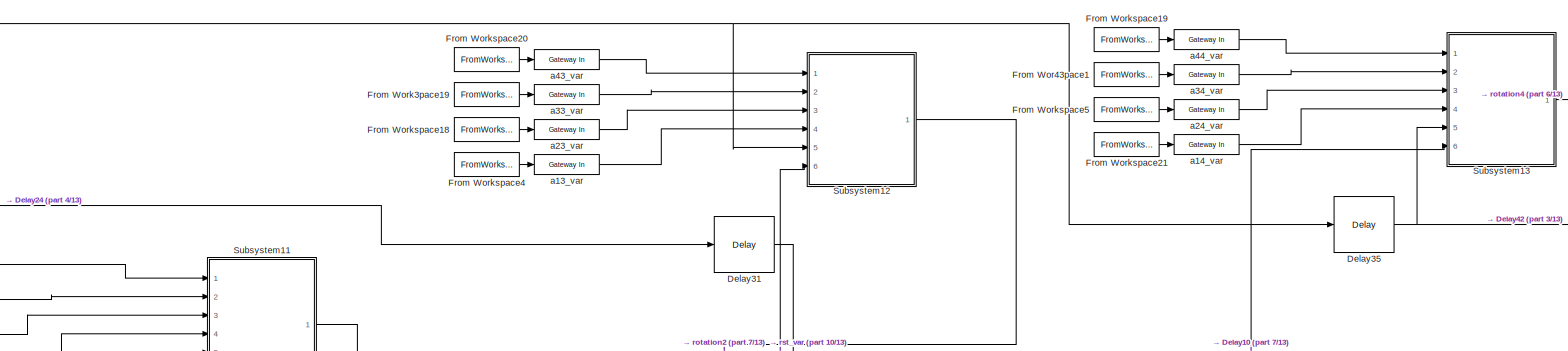
[diagram: root canvas - part 1/13, top left region]
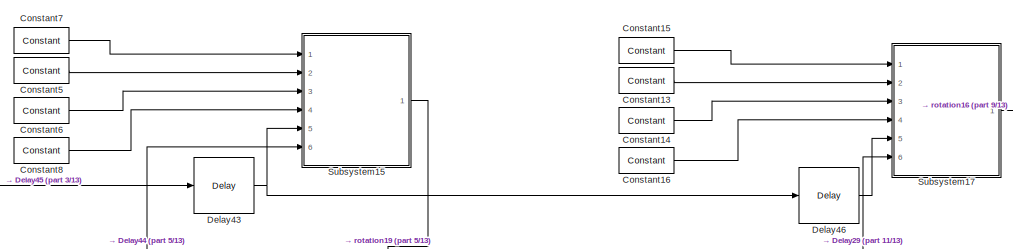
[diagram: root canvas - part 2/13, top right region]
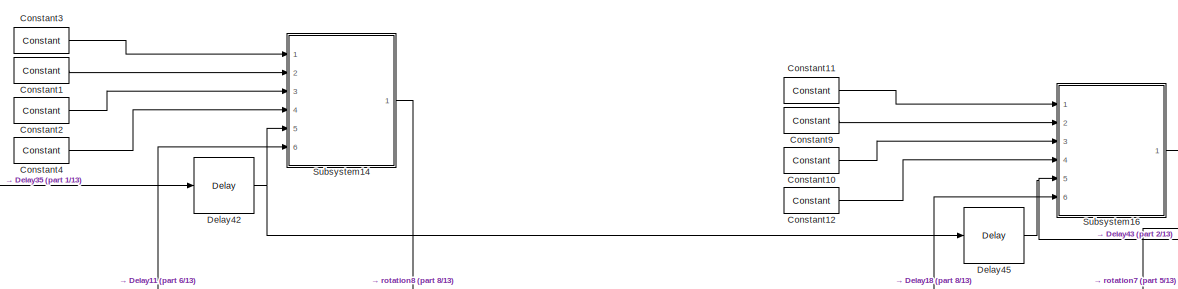
[diagram: root canvas - part 3/13, top center region]
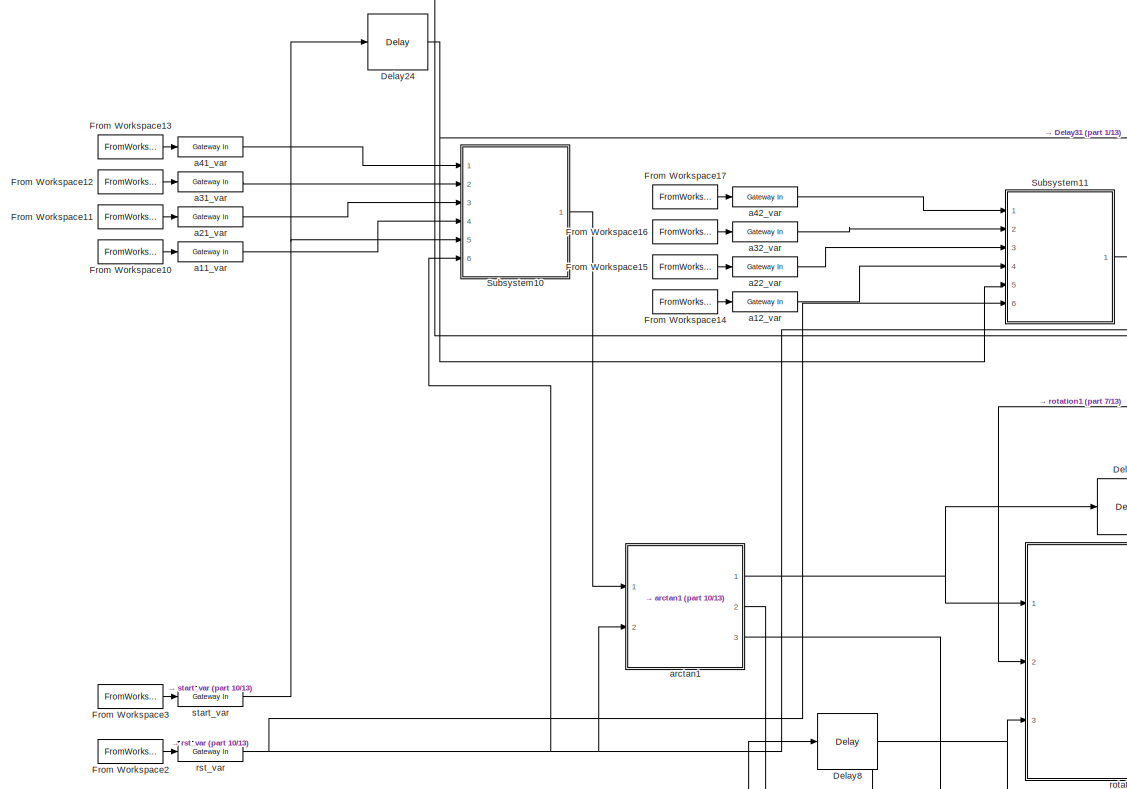
[diagram: root canvas - part 4/13, top left region]
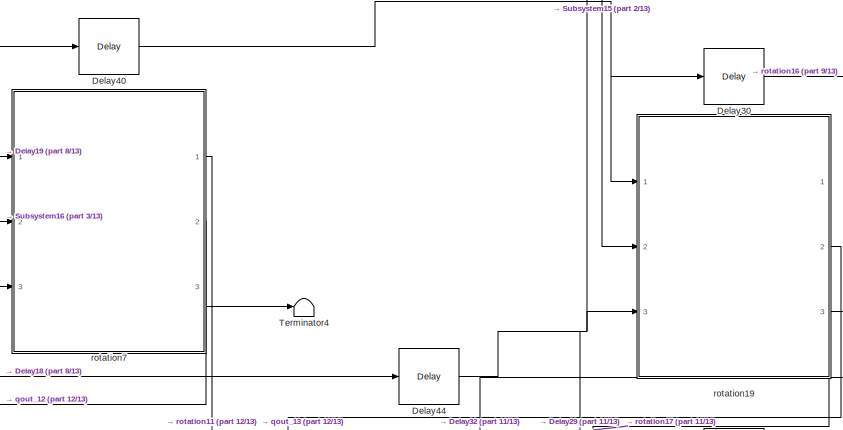
[diagram: root canvas - part 5/13, top right region]
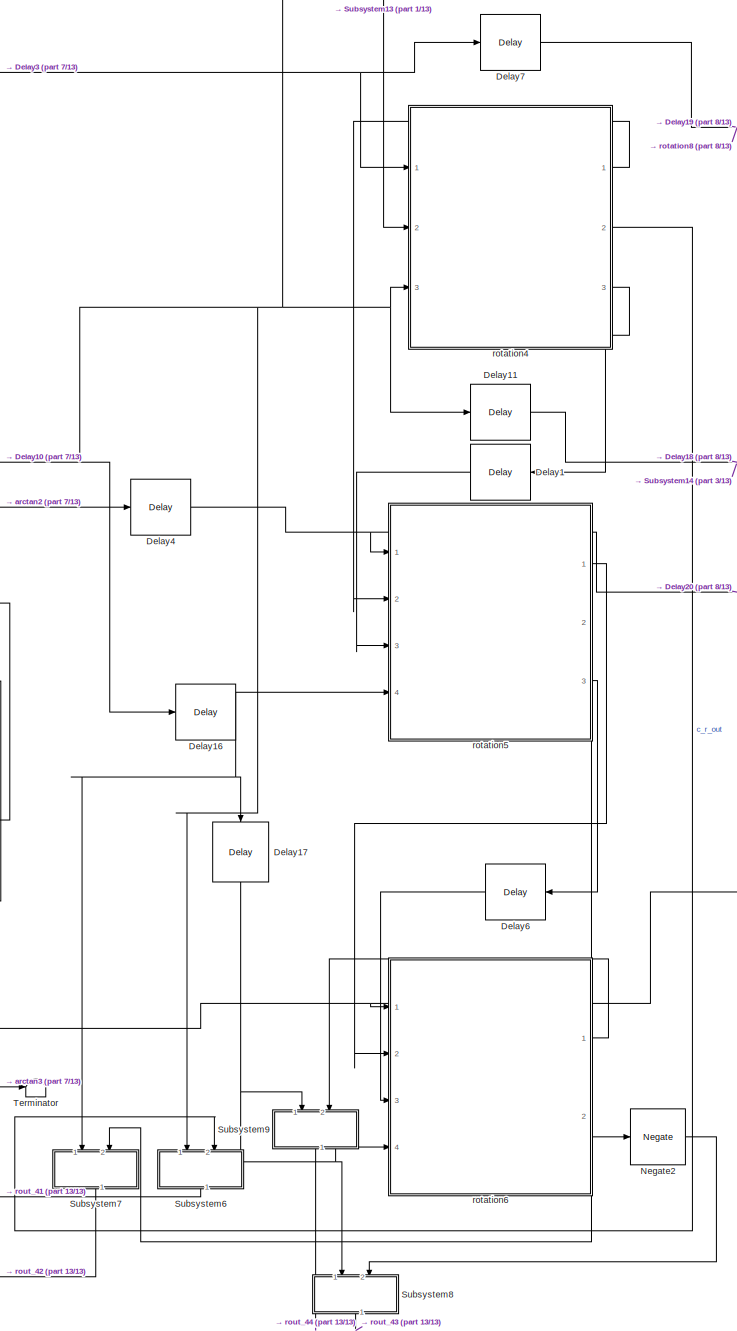
[diagram: root canvas - part 6/13, central region]
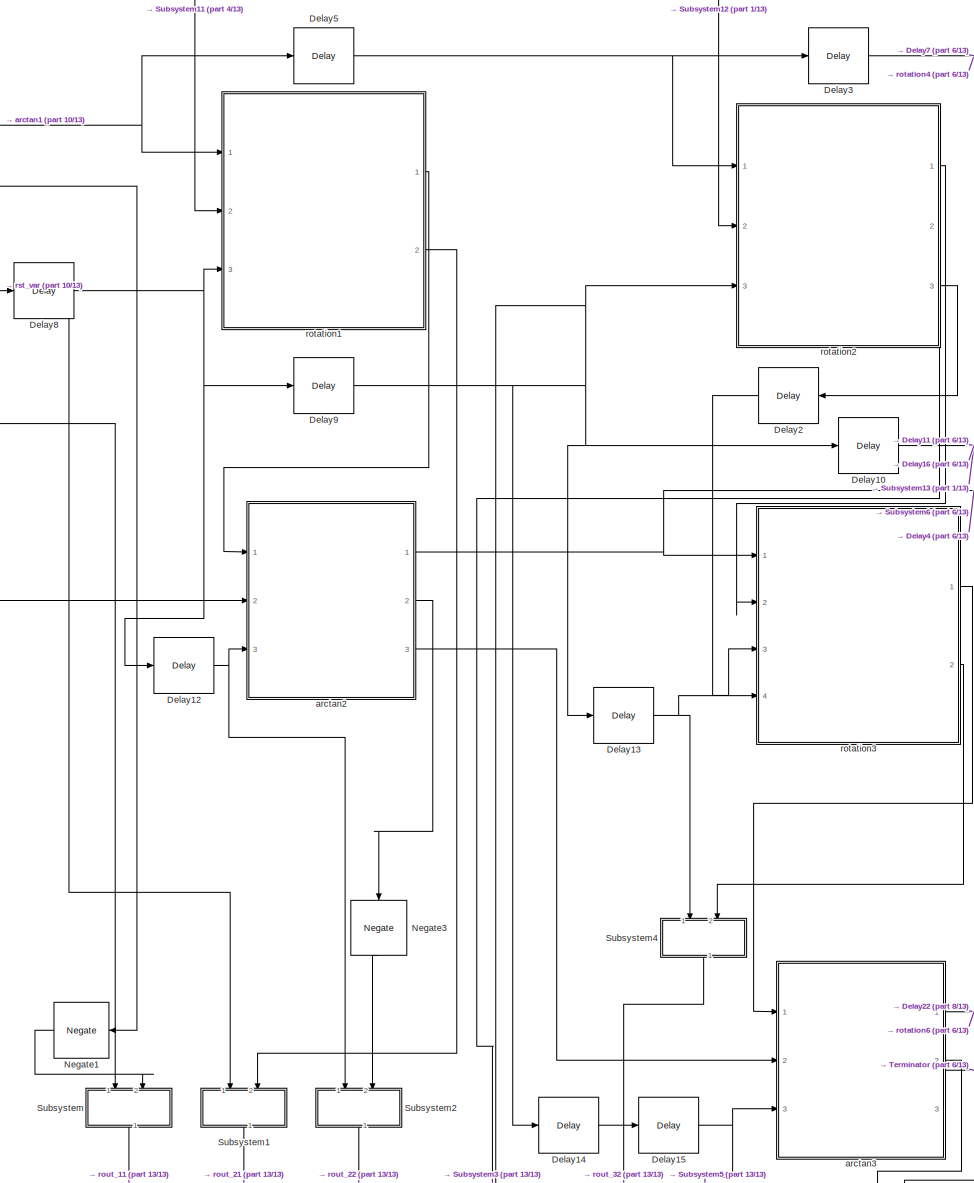
[diagram: root canvas - part 7/13, middle left region]
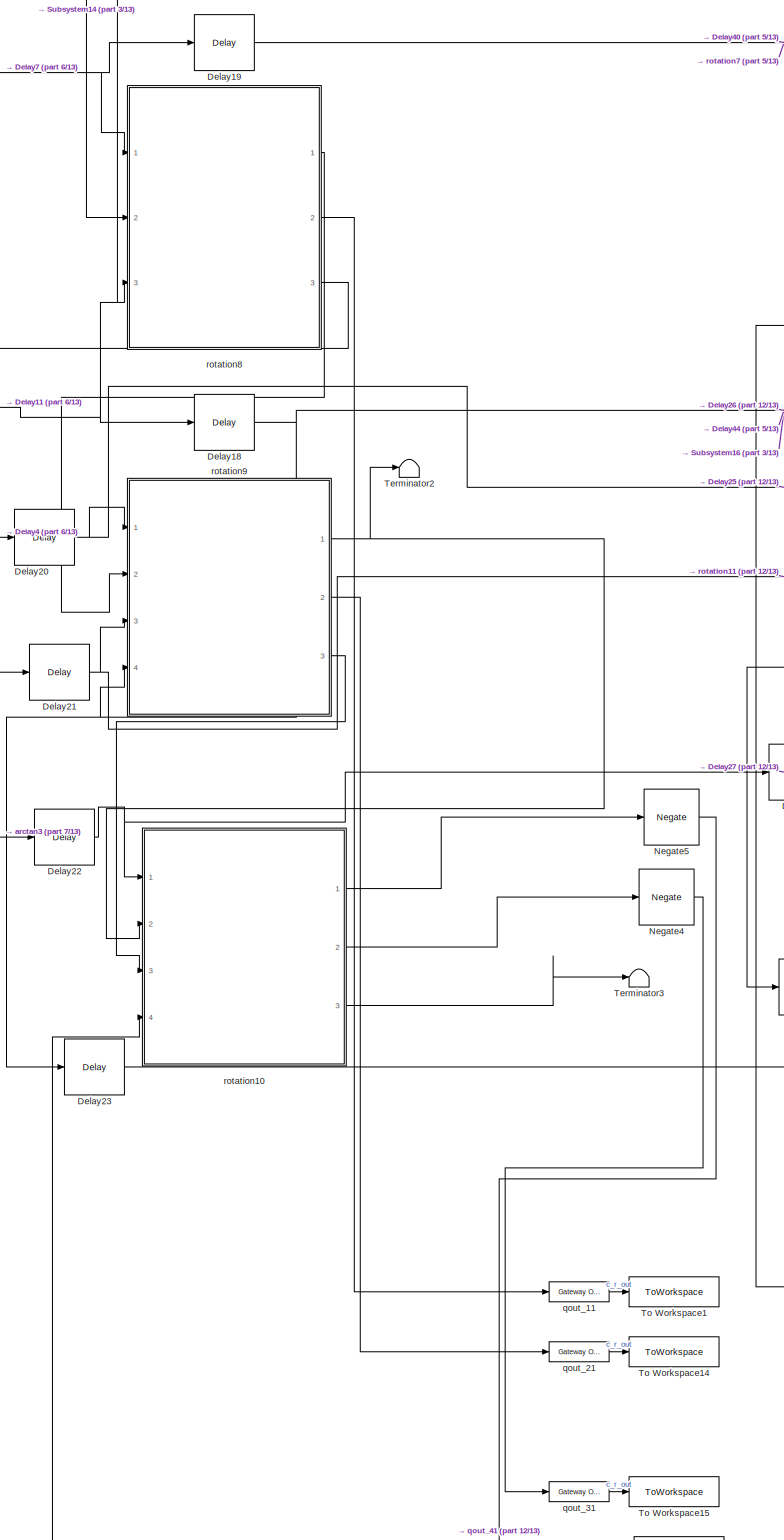
[diagram: root canvas - part 8/13, central region]
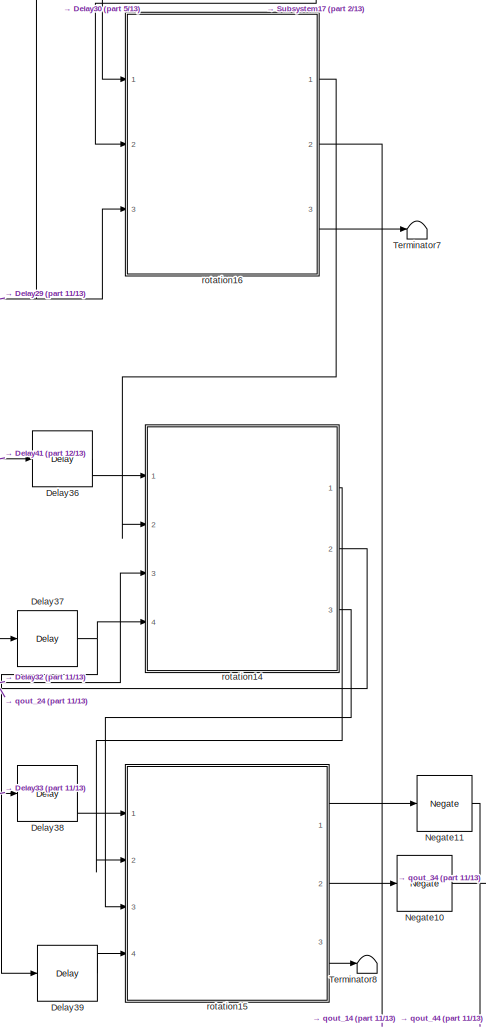
[diagram: root canvas - part 9/13, middle right region]
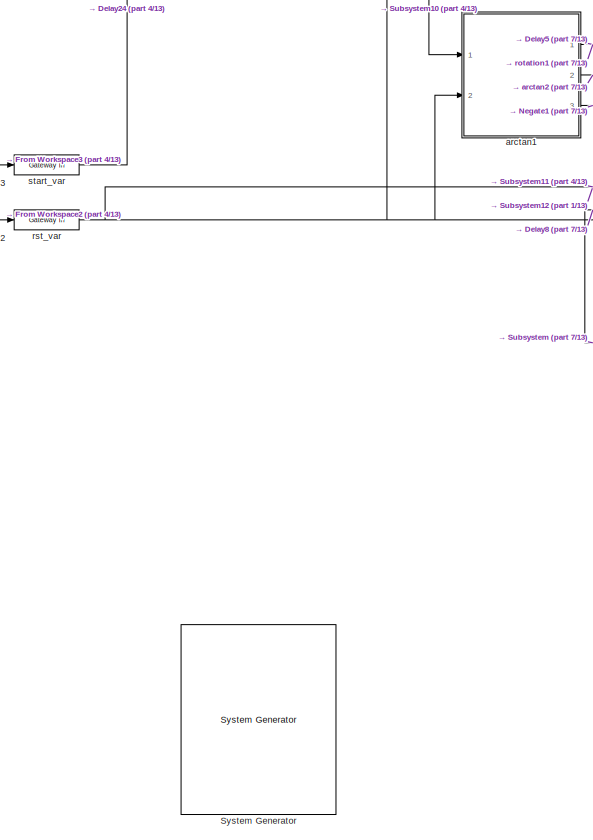
[diagram: root canvas - part 10/13, middle left region]
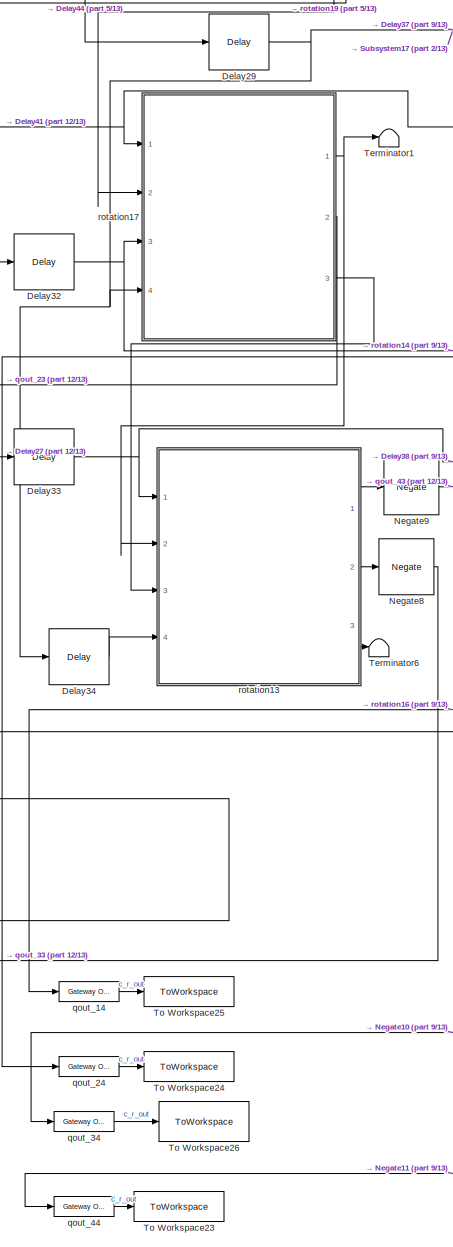
[diagram: root canvas - part 11/13, middle right region]
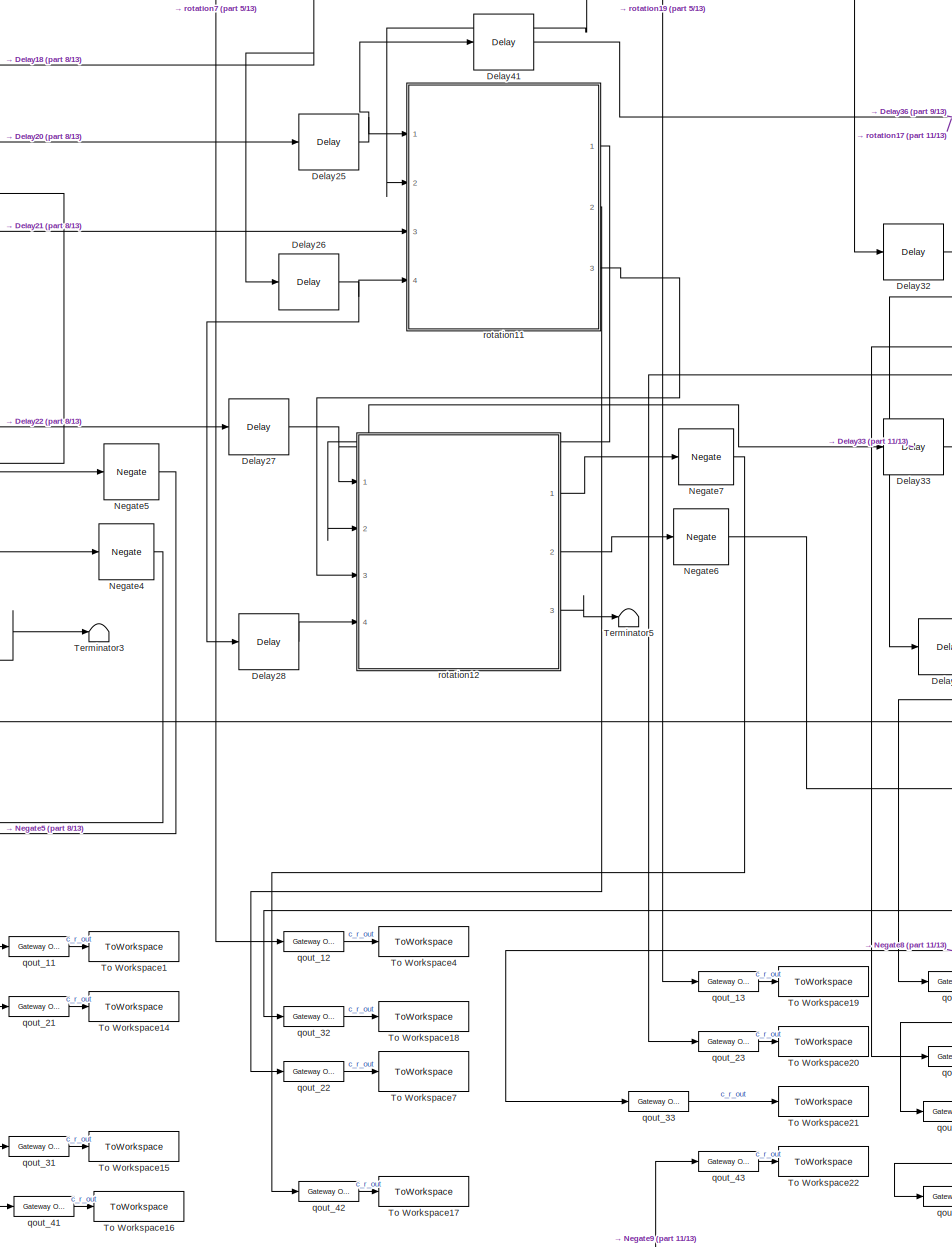
[diagram: root canvas - part 12/13, middle right region]
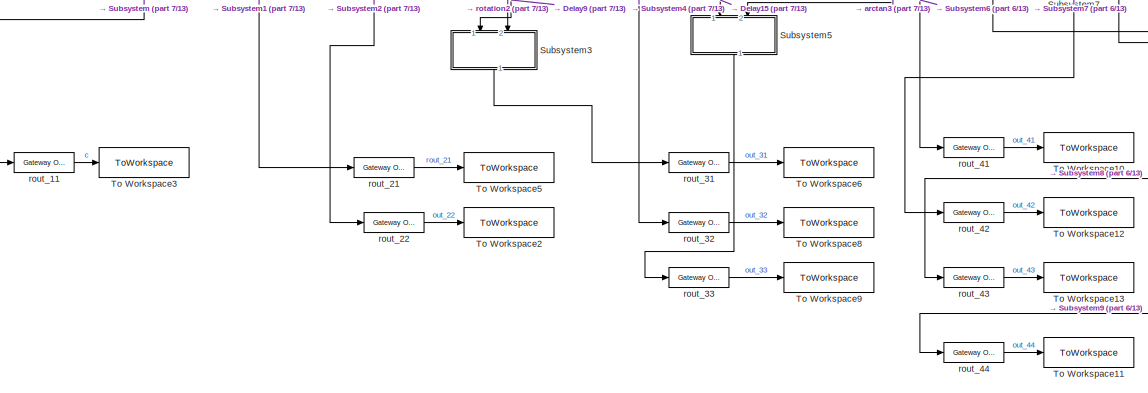
[diagram: root canvas - part 13/13, bottom left region]
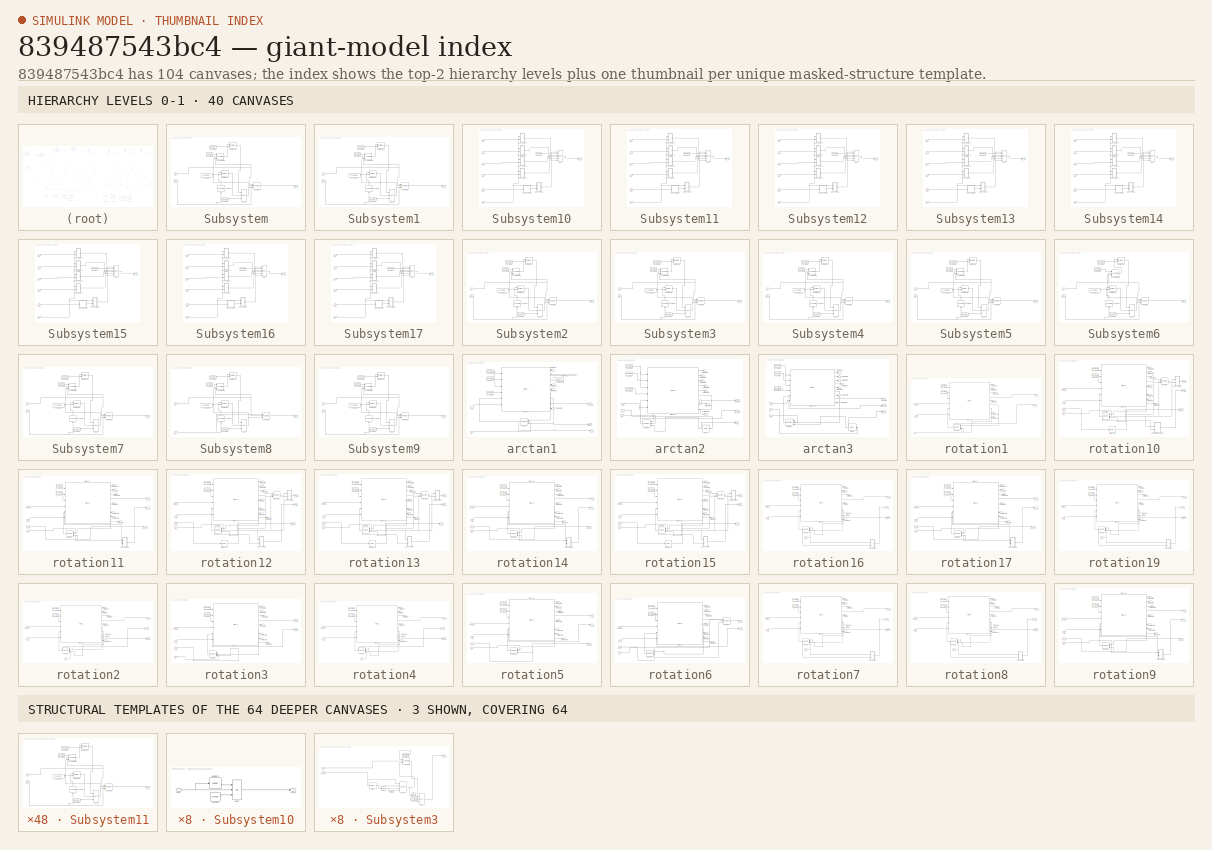
[diagram: thumbnail index - top-2 hierarchy levels (40 canvases) + 3 structural-template representatives of the remaining 64 canvases]
MODEL slx_839487543bc4
KIND model
CONFIG AbsTol = auto
CONFIG EnableMultiTasking = off
CONFIG FixedStep = auto
CONFIG MaxStep = auto
CONFIG MinStep = auto
CONFIG RelTol = 1e-3
CONFIG SampleTimeConstraint = Unconstrained
CONFIG SolverName = VariableStepAuto
CONFIG StartTime = 0.0
CONFIG StopTime = 500
BLOCK [Reference]  System Generator  REF=xbsIndex_r4/ System Generator
  AttributesFormatString = System\nGenerator
  Ports = []
  SourceBlock = xbsIndex_r4/ System Generator
  SourceType = Xilinx System Generator Block
  Tag = genX
  UserDataPersistent = on
BLOCK [Reference] Constant1  REF=hdlBasic/Constant
  Ports = [0, 1]
  SourceBlock = hdlBasic/Constant
  SourceType = Constant Block Block
BLOCK [Reference] Constant10  REF=hdlBasic/Constant
  Ports = [0, 1]
  SourceBlock = hdlBasic/Constant
  SourceType = Constant Block Block
BLOCK [Reference] Constant11  REF=hdlBasic/Constant
  Ports = [0, 1]
  SourceBlock = hdlBasic/Constant
  SourceType = Constant Block Block
BLOCK [Reference] Constant12  REF=hdlBasic/Constant
  Ports = [0, 1]
  SourceBlock = hdlBasic/Constant
  SourceType = Constant Block Block
BLOCK [Reference] Constant13  REF=hdlBasic/Constant
  Ports = [0, 1]
  SourceBlock = hdlBasic/Constant
  SourceType = Constant Block Block
BLOCK [Reference] Constant14  REF=hdlBasic/Constant
  Ports = [0, 1]
  SourceBlock = hdlBasic/Constant
  SourceType = Constant Block Block
BLOCK [Reference] Constant15  REF=hdlBasic/Constant
  Ports = [0, 1]
  SourceBlock = hdlBasic/Constant
  SourceType = Constant Block Block
BLOCK [Reference] Constant16  REF=hdlBasic/Constant
  Ports = [0, 1]
  SourceBlock = hdlBasic/Constant
  SourceType = Constant Block Block
BLOCK [Reference] Constant2  REF=hdlBasic/Constant
  Ports = [0, 1]
  SourceBlock = hdlBasic/Constant
  SourceType = Constant Block Block
BLOCK [Reference] Constant3  REF=hdlBasic/Constant
  Ports = [0, 1]
  SourceBlock = hdlBasic/Constant
  SourceType = Constant Block Block
BLOCK [Reference] Constant4  REF=hdlBasic/Constant
  Ports = [0, 1]
  SourceBlock = hdlBasic/Constant
  SourceType = Constant Block Block
BLOCK [Reference] Constant5  REF=hdlBasic/Constant
  Ports = [0, 1]
  SourceBlock = hdlBasic/Constant
  SourceType = Constant Block Block
BLOCK [Reference] Constant6  REF=hdlBasic/Constant
  Ports = [0, 1]
  SourceBlock = hdlBasic/Constant
  SourceType = Constant Block Block
BLOCK [Reference] Constant7  REF=hdlBasic/Constant
  Ports = [0, 1]
  SourceBlock = hdlBasic/Constant
  SourceType = Constant Block Block
BLOCK [Reference] Constant8  REF=hdlBasic/Constant
  Ports = [0, 1]
  SourceBlock = hdlBasic/Constant
  SourceType = Constant Block Block
BLOCK [Reference] Constant9  REF=hdlBasic/Constant
  Ports = [0, 1]
  SourceBlock = hdlBasic/Constant
  SourceType = Constant Block Block
BLOCK [Reference] Delay1  REF=hdlBasic/Delay
  NameLocation = top
  Ports = [1, 1]
  SourceBlock = hdlBasic/Delay
  SourceType = Delay Block
BLOCK [Reference] Delay10  REF=hdlBasic/Delay
  Ports = [1, 1]
  SourceBlock = hdlBasic/Delay
  SourceType = Delay Block
BLOCK [Reference] Delay11  REF=hdlBasic/Delay
  Ports = [1, 1]
  SourceBlock = hdlBasic/Delay
  SourceType = Delay Block
BLOCK [Reference] Delay12  REF=hdlBasic/Delay
  Ports = [1, 1]
  SourceBlock = hdlBasic/Delay
  SourceType = Delay Block
BLOCK [Reference] Delay13  REF=hdlBasic/Delay
  Ports = [1, 1]
  SourceBlock = hdlBasic/Delay
  SourceType = Delay Block
BLOCK [Reference] Delay14  REF=hdlBasic/Delay
  Ports = [1, 1]
  SourceBlock = hdlBasic/Delay
  SourceType = Delay Block
BLOCK [Reference] Delay15  REF=hdlBasic/Delay
  Ports = [1, 1]
  SourceBlock = hdlBasic/Delay
  SourceType = Delay Block
BLOCK [Reference] Delay16  REF=hdlBasic/Delay
  Ports = [1, 1]
  SourceBlock = hdlBasic/Delay
  SourceType = Delay Block
BLOCK [Reference] Delay17  REF=hdlBasic/Delay
  NameLocation = left
  Ports = [1, 1]
  SourceBlock = hdlBasic/Delay
  SourceType = Delay Block
BLOCK [Reference] Delay18  REF=hdlBasic/Delay
  Ports = [1, 1]
  SourceBlock = hdlBasic/Delay
  SourceType = Delay Block
BLOCK [Reference] Delay19  REF=hdlBasic/Delay
  Ports = [1, 1]
  SourceBlock = hdlBasic/Delay
  SourceType = Delay Block
BLOCK [Reference] Delay2  REF=hdlBasic/Delay
  NameLocation = top
  Ports = [1, 1]
  SourceBlock = hdlBasic/Delay
  SourceType = Delay Block
BLOCK [Reference] Delay20  REF=hdlBasic/Delay
  Ports = [1, 1]
  SourceBlock = hdlBasic/Delay
  SourceType = Delay Block
BLOCK [Reference] Delay21  REF=hdlBasic/Delay
  Ports = [1, 1]
  SourceBlock = hdlBasic/Delay
  SourceType = Delay Block
BLOCK [Reference] Delay22  REF=hdlBasic/Delay
  Ports = [1, 1]
  SourceBlock = hdlBasic/Delay
  SourceType = Delay Block
BLOCK [Reference] Delay23  REF=hdlBasic/Delay
  Ports = [1, 1]
  SourceBlock = hdlBasic/Delay
  SourceType = Delay Block
BLOCK [Reference] Delay24  REF=hdlBasic/Delay
  Ports = [1, 1]
  SourceBlock = hdlBasic/Delay
  SourceType = Delay Block
BLOCK [Reference] Delay25  REF=hdlBasic/Delay
  Ports = [1, 1]
  SourceBlock = hdlBasic/Delay
  SourceType = Delay Block
BLOCK [Reference] Delay26  REF=hdlBasic/Delay
  Ports = [1, 1]
  SourceBlock = hdlBasic/Delay
  SourceType = Delay Block
BLOCK [Reference] Delay27  REF=hdlBasic/Delay
  Ports = [1, 1]
  SourceBlock = hdlBasic/Delay
  SourceType = Delay Block
BLOCK [Reference] Delay28  REF=hdlBasic/Delay
  Ports = [1, 1]
  SourceBlock = hdlBasic/Delay
  SourceType = Delay Block
BLOCK [Reference] Delay29  REF=hdlBasic/Delay
  Ports = [1, 1]
  SourceBlock = hdlBasic/Delay
  SourceType = Delay Block
BLOCK [Reference] Delay3  REF=hdlBasic/Delay
  Ports = [1, 1]
  SourceBlock = hdlBasic/Delay
  SourceType = Delay Block
BLOCK [Reference] Delay30  REF=hdlBasic/Delay
  Ports = [1, 1]
  SourceBlock = hdlBasic/Delay
  SourceType = Delay Block
BLOCK [Reference] Delay31  REF=hdlBasic/Delay
  Ports = [1, 1]
  SourceBlock = hdlBasic/Delay
  SourceType = Delay Block
BLOCK [Reference] Delay32  REF=hdlBasic/Delay
  Ports = [1, 1]
  SourceBlock = hdlBasic/Delay
  SourceType = Delay Block
BLOCK [Reference] Delay33  REF=hdlBasic/Delay
  Ports = [1, 1]
  SourceBlock = hdlBasic/Delay
  SourceType = Delay Block
BLOCK [Reference] Delay34  REF=hdlBasic/Delay
  Ports = [1, 1]
  SourceBlock = hdlBasic/Delay
  SourceType = Delay Block
BLOCK [Reference] Delay35  REF=hdlBasic/Delay
  Ports = [1, 1]
  SourceBlock = hdlBasic/Delay
  SourceType = Delay Block
BLOCK [Reference] Delay36  REF=hdlBasic/Delay
  Ports = [1, 1]
  SourceBlock = hdlBasic/Delay
  SourceType = Delay Block
BLOCK [Reference] Delay37  REF=hdlBasic/Delay
  Ports = [1, 1]
  SourceBlock = hdlBasic/Delay
  SourceType = Delay Block
BLOCK [Reference] Delay38  REF=hdlBasic/Delay
  Ports = [1, 1]
  SourceBlock = hdlBasic/Delay
  SourceType = Delay Block
BLOCK [Reference] Delay39  REF=hdlBasic/Delay
  Ports = [1, 1]
  SourceBlock = hdlBasic/Delay
  SourceType = Delay Block
BLOCK [Reference] Delay4  REF=hdlBasic/Delay
  Ports = [1, 1]
  SourceBlock = hdlBasic/Delay
  SourceType = Delay Block
BLOCK [Reference] Delay40  REF=hdlBasic/Delay
  Ports = [1, 1]
  SourceBlock = hdlBasic/Delay
  SourceType = Delay Block
BLOCK [Reference] Delay41  REF=hdlBasic/Delay
  Ports = [1, 1]
  SourceBlock = hdlBasic/Delay
  SourceType = Delay Block
BLOCK [Reference] Delay42  REF=hdlBasic/Delay
  Ports = [1, 1]
  SourceBlock = hdlBasic/Delay
  SourceType = Delay Block
BLOCK [Reference] Delay43  REF=hdlBasic/Delay
  Ports = [1, 1]
  SourceBlock = hdlBasic/Delay
  SourceType = Delay Block
BLOCK [Reference] Delay44  REF=hdlBasic/Delay
  Ports = [1, 1]
  SourceBlock = hdlBasic/Delay
  SourceType = Delay Block
BLOCK [Reference] Delay45  REF=hdlBasic/Delay
  Ports = [1, 1]
  SourceBlock = hdlBasic/Delay
  SourceType = Delay Block
BLOCK [Reference] Delay46  REF=hdlBasic/Delay
  Ports = [1, 1]
  SourceBlock = hdlBasic/Delay
  SourceType = Delay Block
BLOCK [Reference] Delay5  REF=hdlBasic/Delay
  Ports = [1, 1]
  SourceBlock = hdlBasic/Delay
  SourceType = Delay Block
BLOCK [Reference] Delay6  REF=hdlBasic/Delay
  NameLocation = top
  Ports = [1, 1]
  SourceBlock = hdlBasic/Delay
  SourceType = Delay Block
BLOCK [Reference] Delay7  REF=hdlBasic/Delay
  Ports = [1, 1]
  SourceBlock = hdlBasic/Delay
  SourceType = Delay Block
BLOCK [Reference] Delay8  REF=hdlBasic/Delay
  Ports = [1, 1]
  SourceBlock = hdlBasic/Delay
  SourceType = Delay Block
BLOCK [Reference] Delay9  REF=hdlBasic/Delay
  Ports = [1, 1]
  SourceBlock = hdlBasic/Delay
  SourceType = Delay Block
BLOCK [FromWorkspace] From Wor43pace1
  VariableName = a34_var
BLOCK [FromWorkspace] From Work3pace19
  VariableName = a33_var
BLOCK [FromWorkspace] From Workspace10
  VariableName = a11_var
BLOCK [FromWorkspace] From Workspace11
  VariableName = a21_var
BLOCK [FromWorkspace] From Workspace12
  VariableName = a31_var
BLOCK [FromWorkspace] From Workspace13
  VariableName = a41_var
BLOCK [FromWorkspace] From Workspace14
  VariableName = a12_var
BLOCK [FromWorkspace] From Workspace15
  VariableName = a22_var
BLOCK [FromWorkspace] From Workspace16
  VariableName = a32_var
BLOCK [FromWorkspace] From Workspace17
  VariableName = a42_var
BLOCK [FromWorkspace] From Workspace18
  VariableName = a23_var
BLOCK [FromWorkspace] From Workspace19
  VariableName = a44_var
BLOCK [FromWorkspace] From Workspace2
  VariableName = rst_var
BLOCK [FromWorkspace] From Workspace20
  VariableName = a43_var
BLOCK [FromWorkspace] From Workspace21
  VariableName = a14_var
BLOCK [FromWorkspace] From Workspace3
  VariableName = start_var
BLOCK [FromWorkspace] From Workspace4
  VariableName = a13_var
BLOCK [FromWorkspace] From Workspace5
  VariableName = a24_var
BLOCK [Reference] Negate1  REF=hdlBasic/Negate
  NameLocation = top
  Ports = [1, 1]
  SourceBlock = hdlBasic/Negate
  SourceType = Negate Block Block
BLOCK [Reference] Negate10  REF=hdlBasic/Negate
  Ports = [1, 1]
  SourceBlock = hdlBasic/Negate
  SourceType = Negate Block Block
BLOCK [Reference] Negate11  REF=hdlBasic/Negate
  Ports = [1, 1]
  SourceBlock = hdlBasic/Negate
  SourceType = Negate Block Block
BLOCK [Reference] Negate2  REF=hdlBasic/Negate
  Ports = [1, 1]
  SourceBlock = hdlBasic/Negate
  SourceType = Negate Block Block
BLOCK [Reference] Negate3  REF=hdlBasic/Negate
  NameLocation = left
  Ports = [1, 1]
  SourceBlock = hdlBasic/Negate
  SourceType = Negate Block Block
BLOCK [Reference] Negate4  REF=hdlBasic/Negate
  Ports = [1, 1]
  SourceBlock = hdlBasic/Negate
  SourceType = Negate Block Block
BLOCK [Reference] Negate5  REF=hdlBasic/Negate
  Ports = [1, 1]
  SourceBlock = hdlBasic/Negate
  SourceType = Negate Block Block
BLOCK [Reference] Negate6  REF=hdlBasic/Negate
  Ports = [1, 1]
  SourceBlock = hdlBasic/Negate
  SourceType = Negate Block Block
BLOCK [Reference] Negate7  REF=hdlBasic/Negate
  Ports = [1, 1]
  SourceBlock = hdlBasic/Negate
  SourceType = Negate Block Block
BLOCK [Reference] Negate8  REF=hdlBasic/Negate
  Ports = [1, 1]
  SourceBlock = hdlBasic/Negate
  SourceType = Negate Block Block
BLOCK [Reference] Negate9  REF=hdlBasic/Negate
  Ports = [1, 1]
  SourceBlock = hdlBasic/Negate
  SourceType = Negate Block Block
BLOCK [SubSystem] Subsystem
  NameLocation = left
  Ports = [2, 1]
  RequestExecContextInheritance = off
BLOCK [Reference] Subsystem/Absolute1  REF=hdlBasic/Absolute
  NameLocation = right
  Ports = [1, 1]
  SourceBlock = hdlBasic/Absolute
  SourceType = Absolute Block
BLOCK [Reference] Subsystem/Accumulator1  REF=hdlBasic/Accumulator
  Ports = [3, 1]
  SourceBlock = hdlBasic/Accumulator
  SourceType = Accumulator Block
BLOCK [Reference] Subsystem/Constant4  REF=hdlBasic/Constant
  Ports = [0, 1]
  SourceBlock = hdlBasic/Constant
  SourceType = Constant Block Block
BLOCK [Reference] Subsystem/Constant5  REF=hdlBasic/Constant
  Ports = [0, 1]
  SourceBlock = hdlBasic/Constant
  SourceType = Constant Block Block
BLOCK [Reference] Subsystem/Constant6  REF=hdlBasic/Constant
  Ports = [0, 1]
  SourceBlock = hdlBasic/Constant
  SourceType = Constant Block Block
BLOCK [Reference] Subsystem/Constant7  REF=hdlBasic/Constant
  Ports = [0, 1]
  SourceBlock = hdlBasic/Constant
  SourceType = Constant Block Block
BLOCK [Reference] Subsystem/Mux1  REF=hdlBasic/Mux
  Ports = [3, 1]
  SourceBlock = hdlBasic/Mux
  SourceType = Bus Multiplexer Block
BLOCK [Reference] Subsystem/Register1  REF=hdlBasic/Register
  Ports = [3, 1]
  SourceBlock = hdlBasic/Register
  SourceType = Register Block
BLOCK [Reference] Subsystem/Relational2  REF=hdlBasic/Relational
  Ports = [2, 1]
  SourceBlock = hdlBasic/Relational
  SourceType = Arithmetic Relational Operator Block
BLOCK [Reference] Subsystem/Relational3  REF=hdlBasic/Relational
  Ports = [2, 1]
  SourceBlock = hdlBasic/Relational
  SourceType = Arithmetic Relational Operator Block
BLOCK [Inport] Subsystem/reg_i
  Port = 2
BLOCK [Outport] Subsystem/reg_o
BLOCK [Inport] Subsystem/rst
BLOCK [SubSystem] Subsystem1
  NameLocation = left
  Ports = [2, 1]
  RequestExecContextInheritance = off
BLOCK [Reference] Subsystem1/Absolute1  REF=hdlBasic/Absolute
  NameLocation = right
  Ports = [1, 1]
  SourceBlock = hdlBasic/Absolute
  SourceType = Absolute Block
BLOCK [Reference] Subsystem1/Accumulator1  REF=hdlBasic/Accumulator
  Ports = [3, 1]
  SourceBlock = hdlBasic/Accumulator
  SourceType = Accumulator Block
BLOCK [Reference] Subsystem1/Constant4  REF=hdlBasic/Constant
  Ports = [0, 1]
  SourceBlock = hdlBasic/Constant
  SourceType = Constant Block Block
BLOCK [Reference] Subsystem1/Constant5  REF=hdlBasic/Constant
  Ports = [0, 1]
  SourceBlock = hdlBasic/Constant
  SourceType = Constant Block Block
BLOCK [Reference] Subsystem1/Constant6  REF=hdlBasic/Constant
  Ports = [0, 1]
  SourceBlock = hdlBasic/Constant
  SourceType = Constant Block Block
BLOCK [Reference] Subsystem1/Constant7  REF=hdlBasic/Constant
  Ports = [0, 1]
  SourceBlock = hdlBasic/Constant
  SourceType = Constant Block Block
BLOCK [Reference] Subsystem1/Mux1  REF=hdlBasic/Mux
  Ports = [3, 1]
  SourceBlock = hdlBasic/Mux
  SourceType = Bus Multiplexer Block
BLOCK [Reference] Subsystem1/Register1  REF=hdlBasic/Register
  Ports = [3, 1]
  SourceBlock = hdlBasic/Register
  SourceType = Register Block
BLOCK [Reference] Subsystem1/Relational2  REF=hdlBasic/Relational
  Ports = [2, 1]
  SourceBlock = hdlBasic/Relational
  SourceType = Arithmetic Relational Operator Block
BLOCK [Reference] Subsystem1/Relational3  REF=hdlBasic/Relational
  Ports = [2, 1]
  SourceBlock = hdlBasic/Relational
  SourceType = Arithmetic Relational Operator Block
BLOCK [Inport] Subsystem1/reg_i
  Port = 2
BLOCK [Outport] Subsystem1/reg_o
BLOCK [Inport] Subsystem1/rst
BLOCK [SubSystem] Subsystem10
  Ports = [6, 1]
  RequestExecContextInheritance = off
BLOCK [Reference] Subsystem10/Constant  REF=hdlBasic/Constant
  Ports = [0, 1]
  SourceBlock = hdlBasic/Constant
  SourceType = Constant Block Block
BLOCK [Reference] Subsystem10/Mux  REF=hdlBasic/Mux
  Ports = [6, 1]
  SourceBlock = hdlBasic/Mux
  SourceType = Bus Multiplexer Block
BLOCK [SubSystem] Subsystem10/Subsystem10
  Ports = [1, 1]
  RequestExecContextInheritance = off
BLOCK [Reference] Subsystem10/Subsystem10/Constant1  REF=hdlBasic/Constant
  Ports = [0, 1]
  SourceBlock = hdlBasic/Constant
  SourceType = Constant Block Block
BLOCK [Reference] Subsystem10/Subsystem10/Mux1  REF=hdlBasic/Mux
  Ports = [3, 1]
  SourceBlock = hdlBasic/Mux
  SourceType = Bus Multiplexer Block
BLOCK [Reference] Subsystem10/Subsystem10/Register2  REF=hdlBasic/Register
  Ports = [1, 1]
  SourceBlock = hdlBasic/Register
  SourceType = Register Block
BLOCK [Inport] Subsystem10/Subsystem10/reg_i
BLOCK [Outport] Subsystem10/Subsystem10/reg_o
BLOCK [SubSystem] Subsystem10/Subsystem11
  Ports = [2, 1]
  RequestExecContextInheritance = off
BLOCK [Reference] Subsystem10/Subsystem11/Absolute1  REF=hdlBasic/Absolute
  NameLocation = right
  Ports = [1, 1]
  SourceBlock = hdlBasic/Absolute
  SourceType = Absolute Block
BLOCK [Reference] Subsystem10/Subsystem11/Accumulator1  REF=hdlBasic/Accumulator
  Ports = [3, 1]
  SourceBlock = hdlBasic/Accumulator
  SourceType = Accumulator Block
BLOCK [Reference] Subsystem10/Subsystem11/Constant4  REF=hdlBasic/Constant
  Ports = [0, 1]
  SourceBlock = hdlBasic/Constant
  SourceType = Constant Block Block
BLOCK [Reference] Subsystem10/Subsystem11/Constant5  REF=hdlBasic/Constant
  Ports = [0, 1]
  SourceBlock = hdlBasic/Constant
  SourceType = Constant Block Block
BLOCK [Reference] Subsystem10/Subsystem11/Constant6  REF=hdlBasic/Constant
  Ports = [0, 1]
  SourceBlock = hdlBasic/Constant
  SourceType = Constant Block Block
BLOCK [Reference] Subsystem10/Subsystem11/Constant7  REF=hdlBasic/Constant
  Ports = [0, 1]
  SourceBlock = hdlBasic/Constant
  SourceType = Constant Block Block
BLOCK [Reference] Subsystem10/Subsystem11/Mux1  REF=hdlBasic/Mux
  Ports = [3, 1]
  SourceBlock = hdlBasic/Mux
  SourceType = Bus Multiplexer Block
BLOCK [Reference] Subsystem10/Subsystem11/Register1  REF=hdlBasic/Register
  Ports = [3, 1]
  SourceBlock = hdlBasic/Register
  SourceType = Register Block
BLOCK [Reference] Subsystem10/Subsystem11/Relational2  REF=hdlBasic/Relational
  Ports = [2, 1]
  SourceBlock = hdlBasic/Relational
  SourceType = Arithmetic Relational Operator Block
BLOCK [Reference] Subsystem10/Subsystem11/Relational3  REF=hdlBasic/Relational
  Ports = [2, 1]
  SourceBlock = hdlBasic/Relational
  SourceType = Arithmetic Relational Operator Block
BLOCK [Inport] Subsystem10/Subsystem11/reg_i
  Port = 2
BLOCK [Outport] Subsystem10/Subsystem11/reg_o
BLOCK [Inport] Subsystem10/Subsystem11/rst
BLOCK [SubSystem] Subsystem10/Subsystem12
  Ports = [2, 1]
  RequestExecContextInheritance = off
BLOCK [Reference] Subsystem10/Subsystem12/Absolute1  REF=hdlBasic/Absolute
  NameLocation = right
  Ports = [1, 1]
  SourceBlock = hdlBasic/Absolute
  SourceType = Absolute Block
BLOCK [Reference] Subsystem10/Subsystem12/Accumulator1  REF=hdlBasic/Accumulator
  Ports = [3, 1]
  SourceBlock = hdlBasic/Accumulator
  SourceType = Accumulator Block
BLOCK [Reference] Subsystem10/Subsystem12/Constant4  REF=hdlBasic/Constant
  Ports = [0, 1]
  SourceBlock = hdlBasic/Constant
  SourceType = Constant Block Block
BLOCK [Reference] Subsystem10/Subsystem12/Constant5  REF=hdlBasic/Constant
  Ports = [0, 1]
  SourceBlock = hdlBasic/Constant
  SourceType = Constant Block Block
BLOCK [Reference] Subsystem10/Subsystem12/Constant6  REF=hdlBasic/Constant
  Ports = [0, 1]
  SourceBlock = hdlBasic/Constant
  SourceType = Constant Block Block
BLOCK [Reference] Subsystem10/Subsystem12/Constant7  REF=hdlBasic/Constant
  Ports = [0, 1]
  SourceBlock = hdlBasic/Constant
  SourceType = Constant Block Block
BLOCK [Reference] Subsystem10/Subsystem12/Mux1  REF=hdlBasic/Mux
  Ports = [3, 1]
  SourceBlock = hdlBasic/Mux
  SourceType = Bus Multiplexer Block
BLOCK [Reference] Subsystem10/Subsystem12/Register1  REF=hdlBasic/Register
  Ports = [3, 1]
  SourceBlock = hdlBasic/Register
  SourceType = Register Block
BLOCK [Reference] Subsystem10/Subsystem12/Relational2  REF=hdlBasic/Relational
  Ports = [2, 1]
  SourceBlock = hdlBasic/Relational
  SourceType = Arithmetic Relational Operator Block
BLOCK [Reference] Subsystem10/Subsystem12/Relational3  REF=hdlBasic/Relational
  Ports = [2, 1]
  SourceBlock = hdlBasic/Relational
  SourceType = Arithmetic Relational Operator Block
BLOCK [Inport] Subsystem10/Subsystem12/reg_i
  Port = 2
BLOCK [Outport] Subsystem10/Subsystem12/reg_o
BLOCK [Inport] Subsystem10/Subsystem12/rst
BLOCK [SubSystem] Subsystem10/Subsystem13
  Ports = [2, 1]
  RequestExecContextInheritance = off
BLOCK [Reference] Subsystem10/Subsystem13/Absolute1  REF=hdlBasic/Absolute
  NameLocation = right
  Ports = [1, 1]
  SourceBlock = hdlBasic/Absolute
  SourceType = Absolute Block
BLOCK [Reference] Subsystem10/Subsystem13/Accumulator1  REF=hdlBasic/Accumulator
  Ports = [3, 1]
  SourceBlock = hdlBasic/Accumulator
  SourceType = Accumulator Block
BLOCK [Reference] Subsystem10/Subsystem13/Constant4  REF=hdlBasic/Constant
  Ports = [0, 1]
  SourceBlock = hdlBasic/Constant
  SourceType = Constant Block Block
BLOCK [Reference] Subsystem10/Subsystem13/Constant5  REF=hdlBasic/Constant
  Ports = [0, 1]
  SourceBlock = hdlBasic/Constant
  SourceType = Constant Block Block
BLOCK [Reference] Subsystem10/Subsystem13/Constant6  REF=hdlBasic/Constant
  Ports = [0, 1]
  SourceBlock = hdlBasic/Constant
  SourceType = Constant Block Block
BLOCK [Reference] Subsystem10/Subsystem13/Constant7  REF=hdlBasic/Constant
  Ports = [0, 1]
  SourceBlock = hdlBasic/Constant
  SourceType = Constant Block Block
BLOCK [Reference] Subsystem10/Subsystem13/Mux1  REF=hdlBasic/Mux
  Ports = [3, 1]
  SourceBlock = hdlBasic/Mux
  SourceType = Bus Multiplexer Block
BLOCK [Reference] Subsystem10/Subsystem13/Register1  REF=hdlBasic/Register
  Ports = [3, 1]
  SourceBlock = hdlBasic/Register
  SourceType = Register Block
BLOCK [Reference] Subsystem10/Subsystem13/Relational2  REF=hdlBasic/Relational
  Ports = [2, 1]
  SourceBlock = hdlBasic/Relational
  SourceType = Arithmetic Relational Operator Block
BLOCK [Reference] Subsystem10/Subsystem13/Relational3  REF=hdlBasic/Relational
  Ports = [2, 1]
  SourceBlock = hdlBasic/Relational
  SourceType = Arithmetic Relational Operator Block
BLOCK [Inport] Subsystem10/Subsystem13/reg_i
  Port = 2
BLOCK [Outport] Subsystem10/Subsystem13/reg_o
BLOCK [Inport] Subsystem10/Subsystem13/rst
BLOCK [SubSystem] Subsystem10/Subsystem14
  Ports = [2, 1]
  RequestExecContextInheritance = off
BLOCK [Reference] Subsystem10/Subsystem14/Absolute1  REF=hdlBasic/Absolute
  NameLocation = right
  Ports = [1, 1]
  SourceBlock = hdlBasic/Absolute
  SourceType = Absolute Block
BLOCK [Reference] Subsystem10/Subsystem14/Accumulator1  REF=hdlBasic/Accumulator
  Ports = [3, 1]
  SourceBlock = hdlBasic/Accumulator
  SourceType = Accumulator Block
BLOCK [Reference] Subsystem10/Subsystem14/Constant4  REF=hdlBasic/Constant
  Ports = [0, 1]
  SourceBlock = hdlBasic/Constant
  SourceType = Constant Block Block
BLOCK [Reference] Subsystem10/Subsystem14/Constant5  REF=hdlBasic/Constant
  Ports = [0, 1]
  SourceBlock = hdlBasic/Constant
  SourceType = Constant Block Block
BLOCK [Reference] Subsystem10/Subsystem14/Constant6  REF=hdlBasic/Constant
  Ports = [0, 1]
  SourceBlock = hdlBasic/Constant
  SourceType = Constant Block Block
BLOCK [Reference] Subsystem10/Subsystem14/Constant7  REF=hdlBasic/Constant
  Ports = [0, 1]
  SourceBlock = hdlBasic/Constant
  SourceType = Constant Block Block
BLOCK [Reference] Subsystem10/Subsystem14/Mux1  REF=hdlBasic/Mux
  Ports = [3, 1]
  SourceBlock = hdlBasic/Mux
  SourceType = Bus Multiplexer Block
BLOCK [Reference] Subsystem10/Subsystem14/Register1  REF=hdlBasic/Register
  Ports = [3, 1]
  SourceBlock = hdlBasic/Register
  SourceType = Register Block
BLOCK [Reference] Subsystem10/Subsystem14/Relational2  REF=hdlBasic/Relational
  Ports = [2, 1]
  SourceBlock = hdlBasic/Relational
  SourceType = Arithmetic Relational Operator Block
BLOCK [Reference] Subsystem10/Subsystem14/Relational3  REF=hdlBasic/Relational
  Ports = [2, 1]
  SourceBlock = hdlBasic/Relational
  SourceType = Arithmetic Relational Operator Block
BLOCK [Inport] Subsystem10/Subsystem14/reg_i
  Port = 2
BLOCK [Outport] Subsystem10/Subsystem14/reg_o
BLOCK [Inport] Subsystem10/Subsystem14/rst
BLOCK [SubSystem] Subsystem10/Subsystem3
  Ports = [2, 1]
  RequestExecContextInheritance = off
BLOCK [Reference] Subsystem10/Subsystem3/Accumulator2  REF=hdlBasic/Accumulator
  Ports = [3, 1]
  SourceBlock = hdlBasic/Accumulator
  SourceType = Accumulator Block
BLOCK [Reference] Subsystem10/Subsystem3/Constant1  REF=hdlBasic/Constant
  Ports = [0, 1]
  SourceBlock = hdlBasic/Constant
  SourceType = Constant Block Block
BLOCK [Reference] Subsystem10/Subsystem3/Constant2  REF=hdlBasic/Constant
  Ports = [0, 1]
  SourceBlock = hdlBasic/Constant
  SourceType = Constant Block Block
BLOCK [Reference] Subsystem10/Subsystem3/Delay  REF=hdlBasic/Delay
  Ports = [1, 1]
  SourceBlock = hdlBasic/Delay
  SourceType = Delay Block
BLOCK [Reference] Subsystem10/Subsystem3/Delay1  REF=hdlBasic/Delay
  Ports = [1, 1]
  SourceBlock = hdlBasic/Delay
  SourceType = Delay Block
BLOCK [Reference] Subsystem10/Subsystem3/Delay2  REF=hdlBasic/Delay
  Ports = [1, 1]
  SourceBlock = hdlBasic/Delay
  SourceType = Delay Block
BLOCK [Reference] Subsystem10/Subsystem3/Delay3  REF=hdlBasic/Delay
  Ports = [1, 1]
  SourceBlock = hdlBasic/Delay
  SourceType = Delay Block
BLOCK [Reference] Subsystem10/Subsystem3/Logical  REF=hdlBasic/Logical
  Ports = [4, 1]
  SourceBlock = hdlBasic/Logical
  SourceType = Logical Block Block
BLOCK [Reference] Subsystem10/Subsystem3/Mux  REF=hdlBasic/Mux
  Ports = [3, 1]
  SourceBlock = hdlBasic/Mux
  SourceType = Bus Multiplexer Block
BLOCK [Inport] Subsystem10/Subsystem3/in_pulse
  Port = 2
BLOCK [Outport] Subsystem10/Subsystem3/reg_o
BLOCK [Inport] Subsystem10/Subsystem3/rst
BLOCK [Inport] Subsystem10/a1i
  Port = 4
BLOCK [Inport] Subsystem10/a2i
  Port = 3
BLOCK [Inport] Subsystem10/a3i
  Port = 2
BLOCK [Inport] Subsystem10/a4i
BLOCK [Outport] Subsystem10/fifo_out
BLOCK [Inport] Subsystem10/rst
  Port = 6
BLOCK [Inport] Subsystem10/start
  Port = 5
BLOCK [SubSystem] Subsystem11
  Ports = [6, 1]
  RequestExecContextInheritance = off
BLOCK [Reference] Subsystem11/Constant  REF=hdlBasic/Constant
  Ports = [0, 1]
  SourceBlock = hdlBasic/Constant
  SourceType = Constant Block Block
BLOCK [Reference] Subsystem11/Mux  REF=hdlBasic/Mux
  Ports = [6, 1]
  SourceBlock = hdlBasic/Mux
  SourceType = Bus Multiplexer Block
BLOCK [SubSystem] Subsystem11/Subsystem10
  Ports = [1, 1]
  RequestExecContextInheritance = off
BLOCK [Reference] Subsystem11/Subsystem10/Constant1  REF=hdlBasic/Constant
  Ports = [0, 1]
  SourceBlock = hdlBasic/Constant
  SourceType = Constant Block Block
BLOCK [Reference] Subsystem11/Subsystem10/Mux1  REF=hdlBasic/Mux
  Ports = [3, 1]
  SourceBlock = hdlBasic/Mux
  SourceType = Bus Multiplexer Block
BLOCK [Reference] Subsystem11/Subsystem10/Register2  REF=hdlBasic/Register
  Ports = [1, 1]
  SourceBlock = hdlBasic/Register
  SourceType = Register Block
BLOCK [Inport] Subsystem11/Subsystem10/reg_i
BLOCK [Outport] Subsystem11/Subsystem10/reg_o
BLOCK [SubSystem] Subsystem11/Subsystem11
  Ports = [2, 1]
  RequestExecContextInheritance = off
BLOCK [Reference] Subsystem11/Subsystem11/Absolute1  REF=hdlBasic/Absolute
  NameLocation = right
  Ports = [1, 1]
  SourceBlock = hdlBasic/Absolute
  SourceType = Absolute Block
BLOCK [Reference] Subsystem11/Subsystem11/Accumulator1  REF=hdlBasic/Accumulator
  Ports = [3, 1]
  SourceBlock = hdlBasic/Accumulator
  SourceType = Accumulator Block
BLOCK [Reference] Subsystem11/Subsystem11/Constant4  REF=hdlBasic/Constant
  Ports = [0, 1]
  SourceBlock = hdlBasic/Constant
  SourceType = Constant Block Block
BLOCK [Reference] Subsystem11/Subsystem11/Constant5  REF=hdlBasic/Constant
  Ports = [0, 1]
  SourceBlock = hdlBasic/Constant
  SourceType = Constant Block Block
BLOCK [Reference] Subsystem11/Subsystem11/Constant6  REF=hdlBasic/Constant
  Ports = [0, 1]
  SourceBlock = hdlBasic/Constant
  SourceType = Constant Block Block
BLOCK [Reference] Subsystem11/Subsystem11/Constant7  REF=hdlBasic/Constant
  Ports = [0, 1]
  SourceBlock = hdlBasic/Constant
  SourceType = Constant Block Block
BLOCK [Reference] Subsystem11/Subsystem11/Mux1  REF=hdlBasic/Mux
  Ports = [3, 1]
  SourceBlock = hdlBasic/Mux
  SourceType = Bus Multiplexer Block
BLOCK [Reference] Subsystem11/Subsystem11/Register1  REF=hdlBasic/Register
  Ports = [3, 1]
  SourceBlock = hdlBasic/Register
  SourceType = Register Block
BLOCK [Reference] Subsystem11/Subsystem11/Relational2  REF=hdlBasic/Relational
  Ports = [2, 1]
  SourceBlock = hdlBasic/Relational
  SourceType = Arithmetic Relational Operator Block
BLOCK [Reference] Subsystem11/Subsystem11/Relational3  REF=hdlBasic/Relational
  Ports = [2, 1]
  SourceBlock = hdlBasic/Relational
  SourceType = Arithmetic Relational Operator Block
BLOCK [Inport] Subsystem11/Subsystem11/reg_i
  Port = 2
BLOCK [Outport] Subsystem11/Subsystem11/reg_o
BLOCK [Inport] Subsystem11/Subsystem11/rst
BLOCK [SubSystem] Subsystem11/Subsystem12
  Ports = [2, 1]
  RequestExecContextInheritance = off
BLOCK [Reference] Subsystem11/Subsystem12/Absolute1  REF=hdlBasic/Absolute
  NameLocation = right
  Ports = [1, 1]
  SourceBlock = hdlBasic/Absolute
  SourceType = Absolute Block
BLOCK [Reference] Subsystem11/Subsystem12/Accumulator1  REF=hdlBasic/Accumulator
  Ports = [3, 1]
  SourceBlock = hdlBasic/Accumulator
  SourceType = Accumulator Block
BLOCK [Reference] Subsystem11/Subsystem12/Constant4  REF=hdlBasic/Constant
  Ports = [0, 1]
  SourceBlock = hdlBasic/Constant
  SourceType = Constant Block Block
BLOCK [Reference] Subsystem11/Subsystem12/Constant5  REF=hdlBasic/Constant
  Ports = [0, 1]
  SourceBlock = hdlBasic/Constant
  SourceType = Constant Block Block
BLOCK [Reference] Subsystem11/Subsystem12/Constant6  REF=hdlBasic/Constant
  Ports = [0, 1]
  SourceBlock = hdlBasic/Constant
  SourceType = Constant Block Block
BLOCK [Reference] Subsystem11/Subsystem12/Constant7  REF=hdlBasic/Constant
  Ports = [0, 1]
  SourceBlock = hdlBasic/Constant
  SourceType = Constant Block Block
BLOCK [Reference] Subsystem11/Subsystem12/Mux1  REF=hdlBasic/Mux
  Ports = [3, 1]
  SourceBlock = hdlBasic/Mux
  SourceType = Bus Multiplexer Block
BLOCK [Reference] Subsystem11/Subsystem12/Register1  REF=hdlBasic/Register
  Ports = [3, 1]
  SourceBlock = hdlBasic/Register
  SourceType = Register Block
BLOCK [Reference] Subsystem11/Subsystem12/Relational2  REF=hdlBasic/Relational
  Ports = [2, 1]
  SourceBlock = hdlBasic/Relational
  SourceType = Arithmetic Relational Operator Block
BLOCK [Reference] Subsystem11/Subsystem12/Relational3  REF=hdlBasic/Relational
  Ports = [2, 1]
  SourceBlock = hdlBasic/Relational
  SourceType = Arithmetic Relational Operator Block
BLOCK [Inport] Subsystem11/Subsystem12/reg_i
  Port = 2
BLOCK [Outport] Subsystem11/Subsystem12/reg_o
BLOCK [Inport] Subsystem11/Subsystem12/rst
BLOCK [SubSystem] Subsystem11/Subsystem13
  Ports = [2, 1]
  RequestExecContextInheritance = off
BLOCK [Reference] Subsystem11/Subsystem13/Absolute1  REF=hdlBasic/Absolute
  NameLocation = right
  Ports = [1, 1]
  SourceBlock = hdlBasic/Absolute
  SourceType = Absolute Block
BLOCK [Reference] Subsystem11/Subsystem13/Accumulator1  REF=hdlBasic/Accumulator
  Ports = [3, 1]
  SourceBlock = hdlBasic/Accumulator
  SourceType = Accumulator Block
BLOCK [Reference] Subsystem11/Subsystem13/Constant4  REF=hdlBasic/Constant
  Ports = [0, 1]
  SourceBlock = hdlBasic/Constant
  SourceType = Constant Block Block
BLOCK [Reference] Subsystem11/Subsystem13/Constant5  REF=hdlBasic/Constant
  Ports = [0, 1]
  SourceBlock = hdlBasic/Constant
  SourceType = Constant Block Block
BLOCK [Reference] Subsystem11/Subsystem13/Constant6  REF=hdlBasic/Constant
  Ports = [0, 1]
  SourceBlock = hdlBasic/Constant
  SourceType = Constant Block Block
BLOCK [Reference] Subsystem11/Subsystem13/Constant7  REF=hdlBasic/Constant
  Ports = [0, 1]
  SourceBlock = hdlBasic/Constant
  SourceType = Constant Block Block
BLOCK [Reference] Subsystem11/Subsystem13/Mux1  REF=hdlBasic/Mux
  Ports = [3, 1]
  SourceBlock = hdlBasic/Mux
  SourceType = Bus Multiplexer Block
BLOCK [Reference] Subsystem11/Subsystem13/Register1  REF=hdlBasic/Register
  Ports = [3, 1]
  SourceBlock = hdlBasic/Register
  SourceType = Register Block
BLOCK [Reference] Subsystem11/Subsystem13/Relational2  REF=hdlBasic/Relational
  Ports = [2, 1]
  SourceBlock = hdlBasic/Relational
  SourceType = Arithmetic Relational Operator Block
BLOCK [Reference] Subsystem11/Subsystem13/Relational3  REF=hdlBasic/Relational
  Ports = [2, 1]
  SourceBlock = hdlBasic/Relational
  SourceType = Arithmetic Relational Operator Block
BLOCK [Inport] Subsystem11/Subsystem13/reg_i
  Port = 2
BLOCK [Outport] Subsystem11/Subsystem13/reg_o
BLOCK [Inport] Subsystem11/Subsystem13/rst
BLOCK [SubSystem] Subsystem11/Subsystem14
  Ports = [2, 1]
  RequestExecContextInheritance = off
BLOCK [Reference] Subsystem11/Subsystem14/Absolute1  REF=hdlBasic/Absolute
  NameLocation = right
  Ports = [1, 1]
  SourceBlock = hdlBasic/Absolute
  SourceType = Absolute Block
BLOCK [Reference] Subsystem11/Subsystem14/Accumulator1  REF=hdlBasic/Accumulator
  Ports = [3, 1]
  SourceBlock = hdlBasic/Accumulator
  SourceType = Accumulator Block
BLOCK [Reference] Subsystem11/Subsystem14/Constant4  REF=hdlBasic/Constant
  Ports = [0, 1]
  SourceBlock = hdlBasic/Constant
  SourceType = Constant Block Block
BLOCK [Reference] Subsystem11/Subsystem14/Constant5  REF=hdlBasic/Constant
  Ports = [0, 1]
  SourceBlock = hdlBasic/Constant
  SourceType = Constant Block Block
BLOCK [Reference] Subsystem11/Subsystem14/Constant6  REF=hdlBasic/Constant
  Ports = [0, 1]
  SourceBlock = hdlBasic/Constant
  SourceType = Constant Block Block
BLOCK [Reference] Subsystem11/Subsystem14/Constant7  REF=hdlBasic/Constant
  Ports = [0, 1]
  SourceBlock = hdlBasic/Constant
  SourceType = Constant Block Block
BLOCK [Reference] Subsystem11/Subsystem14/Mux1  REF=hdlBasic/Mux
  Ports = [3, 1]
  SourceBlock = hdlBasic/Mux
  SourceType = Bus Multiplexer Block
BLOCK [Reference] Subsystem11/Subsystem14/Register1  REF=hdlBasic/Register
  Ports = [3, 1]
  SourceBlock = hdlBasic/Register
  SourceType = Register Block
BLOCK [Reference] Subsystem11/Subsystem14/Relational2  REF=hdlBasic/Relational
  Ports = [2, 1]
  SourceBlock = hdlBasic/Relational
  SourceType = Arithmetic Relational Operator Block
BLOCK [Reference] Subsystem11/Subsystem14/Relational3  REF=hdlBasic/Relational
  Ports = [2, 1]
  SourceBlock = hdlBasic/Relational
  SourceType = Arithmetic Relational Operator Block
BLOCK [Inport] Subsystem11/Subsystem14/reg_i
  Port = 2
BLOCK [Outport] Subsystem11/Subsystem14/reg_o
BLOCK [Inport] Subsystem11/Subsystem14/rst
BLOCK [SubSystem] Subsystem11/Subsystem3
  Ports = [2, 1]
  RequestExecContextInheritance = off
BLOCK [Reference] Subsystem11/Subsystem3/Accumulator2  REF=hdlBasic/Accumulator
  Ports = [3, 1]
  SourceBlock = hdlBasic/Accumulator
  SourceType = Accumulator Block
BLOCK [Reference] Subsystem11/Subsystem3/Constant1  REF=hdlBasic/Constant
  Ports = [0, 1]
  SourceBlock = hdlBasic/Constant
  SourceType = Constant Block Block
BLOCK [Reference] Subsystem11/Subsystem3/Constant2  REF=hdlBasic/Constant
  Ports = [0, 1]
  SourceBlock = hdlBasic/Constant
  SourceType = Constant Block Block
BLOCK [Reference] Subsystem11/Subsystem3/Delay  REF=hdlBasic/Delay
  Ports = [1, 1]
  SourceBlock = hdlBasic/Delay
  SourceType = Delay Block
BLOCK [Reference] Subsystem11/Subsystem3/Delay1  REF=hdlBasic/Delay
  Ports = [1, 1]
  SourceBlock = hdlBasic/Delay
  SourceType = Delay Block
BLOCK [Reference] Subsystem11/Subsystem3/Delay2  REF=hdlBasic/Delay
  Ports = [1, 1]
  SourceBlock = hdlBasic/Delay
  SourceType = Delay Block
BLOCK [Reference] Subsystem11/Subsystem3/Delay3  REF=hdlBasic/Delay
  Ports = [1, 1]
  SourceBlock = hdlBasic/Delay
  SourceType = Delay Block
BLOCK [Reference] Subsystem11/Subsystem3/Logical  REF=hdlBasic/Logical
  Ports = [4, 1]
  SourceBlock = hdlBasic/Logical
  SourceType = Logical Block Block
BLOCK [Reference] Subsystem11/Subsystem3/Mux  REF=hdlBasic/Mux
  Ports = [3, 1]
  SourceBlock = hdlBasic/Mux
  SourceType = Bus Multiplexer Block
BLOCK [Inport] Subsystem11/Subsystem3/in_pulse
  Port = 2
BLOCK [Outport] Subsystem11/Subsystem3/reg_o
BLOCK [Inport] Subsystem11/Subsystem3/rst
BLOCK [Inport] Subsystem11/a1i
  Port = 4
BLOCK [Inport] Subsystem11/a2i
  Port = 3
BLOCK [Inport] Subsystem11/a3i
  Port = 2
BLOCK [Inport] Subsystem11/a4i
BLOCK [Outport] Subsystem11/fifo_out
BLOCK [Inport] Subsystem11/rst
  Port = 6
BLOCK [Inport] Subsystem11/start
  Port = 5
BLOCK [SubSystem] Subsystem12
  Ports = [6, 1]
  RequestExecContextInheritance = off
BLOCK [Reference] Subsystem12/Constant  REF=hdlBasic/Constant
  Ports = [0, 1]
  SourceBlock = hdlBasic/Constant
  SourceType = Constant Block Block
BLOCK [Reference] Subsystem12/Mux  REF=hdlBasic/Mux
  Ports = [6, 1]
  SourceBlock = hdlBasic/Mux
  SourceType = Bus Multiplexer Block
BLOCK [SubSystem] Subsystem12/Subsystem10
  Ports = [1, 1]
  RequestExecContextInheritance = off
BLOCK [Reference] Subsystem12/Subsystem10/Constant1  REF=hdlBasic/Constant
  Ports = [0, 1]
  SourceBlock = hdlBasic/Constant
  SourceType = Constant Block Block
BLOCK [Reference] Subsystem12/Subsystem10/Mux1  REF=hdlBasic/Mux
  Ports = [3, 1]
  SourceBlock = hdlBasic/Mux
  SourceType = Bus Multiplexer Block
BLOCK [Reference] Subsystem12/Subsystem10/Register2  REF=hdlBasic/Register
  Ports = [1, 1]
  SourceBlock = hdlBasic/Register
  SourceType = Register Block
BLOCK [Inport] Subsystem12/Subsystem10/reg_i
BLOCK [Outport] Subsystem12/Subsystem10/reg_o
BLOCK [SubSystem] Subsystem12/Subsystem11
  Ports = [2, 1]
  RequestExecContextInheritance = off
BLOCK [Reference] Subsystem12/Subsystem11/Absolute1  REF=hdlBasic/Absolute
  NameLocation = right
  Ports = [1, 1]
  SourceBlock = hdlBasic/Absolute
  SourceType = Absolute Block
BLOCK [Reference] Subsystem12/Subsystem11/Accumulator1  REF=hdlBasic/Accumulator
  Ports = [3, 1]
  SourceBlock = hdlBasic/Accumulator
  SourceType = Accumulator Block
BLOCK [Reference] Subsystem12/Subsystem11/Constant4  REF=hdlBasic/Constant
  Ports = [0, 1]
  SourceBlock = hdlBasic/Constant
  SourceType = Constant Block Block
BLOCK [Reference] Subsystem12/Subsystem11/Constant5  REF=hdlBasic/Constant
  Ports = [0, 1]
  SourceBlock = hdlBasic/Constant
  SourceType = Constant Block Block
BLOCK [Reference] Subsystem12/Subsystem11/Constant6  REF=hdlBasic/Constant
  Ports = [0, 1]
  SourceBlock = hdlBasic/Constant
  SourceType = Constant Block Block
BLOCK [Reference] Subsystem12/Subsystem11/Constant7  REF=hdlBasic/Constant
  Ports = [0, 1]
  SourceBlock = hdlBasic/Constant
  SourceType = Constant Block Block
BLOCK [Reference] Subsystem12/Subsystem11/Mux1  REF=hdlBasic/Mux
  Ports = [3, 1]
  SourceBlock = hdlBasic/Mux
  SourceType = Bus Multiplexer Block
BLOCK [Reference] Subsystem12/Subsystem11/Register1  REF=hdlBasic/Register
  Ports = [3, 1]
  SourceBlock = hdlBasic/Register
  SourceType = Register Block
BLOCK [Reference] Subsystem12/Subsystem11/Relational2  REF=hdlBasic/Relational
  Ports = [2, 1]
  SourceBlock = hdlBasic/Relational
  SourceType = Arithmetic Relational Operator Block
BLOCK [Reference] Subsystem12/Subsystem11/Relational3  REF=hdlBasic/Relational
  Ports = [2, 1]
  SourceBlock = hdlBasic/Relational
  SourceType = Arithmetic Relational Operator Block
BLOCK [Inport] Subsystem12/Subsystem11/reg_i
  Port = 2
BLOCK [Outport] Subsystem12/Subsystem11/reg_o
BLOCK [Inport] Subsystem12/Subsystem11/rst
BLOCK [SubSystem] Subsystem12/Subsystem12
  Ports = [2, 1]
  RequestExecContextInheritance = off
BLOCK [Reference] Subsystem12/Subsystem12/Absolute1  REF=hdlBasic/Absolute
  NameLocation = right
  Ports = [1, 1]
  SourceBlock = hdlBasic/Absolute
  SourceType = Absolute Block
BLOCK [Reference] Subsystem12/Subsystem12/Accumulator1  REF=hdlBasic/Accumulator
  Ports = [3, 1]
  SourceBlock = hdlBasic/Accumulator
  SourceType = Accumulator Block
BLOCK [Reference] Subsystem12/Subsystem12/Constant4  REF=hdlBasic/Constant
  Ports = [0, 1]
  SourceBlock = hdlBasic/Constant
  SourceType = Constant Block Block
BLOCK [Reference] Subsystem12/Subsystem12/Constant5  REF=hdlBasic/Constant
  Ports = [0, 1]
  SourceBlock = hdlBasic/Constant
  SourceType = Constant Block Block
BLOCK [Reference] Subsystem12/Subsystem12/Constant6  REF=hdlBasic/Constant
  Ports = [0, 1]
  SourceBlock = hdlBasic/Constant
  SourceType = Constant Block Block
BLOCK [Reference] Subsystem12/Subsystem12/Constant7  REF=hdlBasic/Constant
  Ports = [0, 1]
  SourceBlock = hdlBasic/Constant
  SourceType = Constant Block Block
BLOCK [Reference] Subsystem12/Subsystem12/Mux1  REF=hdlBasic/Mux
  Ports = [3, 1]
  SourceBlock = hdlBasic/Mux
  SourceType = Bus Multiplexer Block
BLOCK [Reference] Subsystem12/Subsystem12/Register1  REF=hdlBasic/Register
  Ports = [3, 1]
  SourceBlock = hdlBasic/Register
  SourceType = Register Block
BLOCK [Reference] Subsystem12/Subsystem12/Relational2  REF=hdlBasic/Relational
  Ports = [2, 1]
  SourceBlock = hdlBasic/Relational
  SourceType = Arithmetic Relational Operator Block
BLOCK [Reference] Subsystem12/Subsystem12/Relational3  REF=hdlBasic/Relational
  Ports = [2, 1]
  SourceBlock = hdlBasic/Relational
  SourceType = Arithmetic Relational Operator Block
BLOCK [Inport] Subsystem12/Subsystem12/reg_i
  Port = 2
BLOCK [Outport] Subsystem12/Subsystem12/reg_o
BLOCK [Inport] Subsystem12/Subsystem12/rst
BLOCK [SubSystem] Subsystem12/Subsystem13
  Ports = [2, 1]
  RequestExecContextInheritance = off
BLOCK [Reference] Subsystem12/Subsystem13/Absolute1  REF=hdlBasic/Absolute
  NameLocation = right
  Ports = [1, 1]
  SourceBlock = hdlBasic/Absolute
  SourceType = Absolute Block
BLOCK [Reference] Subsystem12/Subsystem13/Accumulator1  REF=hdlBasic/Accumulator
  Ports = [3, 1]
  SourceBlock = hdlBasic/Accumulator
  SourceType = Accumulator Block
BLOCK [Reference] Subsystem12/Subsystem13/Constant4  REF=hdlBasic/Constant
  Ports = [0, 1]
  SourceBlock = hdlBasic/Constant
  SourceType = Constant Block Block
BLOCK [Reference] Subsystem12/Subsystem13/Constant5  REF=hdlBasic/Constant
  Ports = [0, 1]
  SourceBlock = hdlBasic/Constant
  SourceType = Constant Block Block
BLOCK [Reference] Subsystem12/Subsystem13/Constant6  REF=hdlBasic/Constant
  Ports = [0, 1]
  SourceBlock = hdlBasic/Constant
  SourceType = Constant Block Block
BLOCK [Reference] Subsystem12/Subsystem13/Constant7  REF=hdlBasic/Constant
  Ports = [0, 1]
  SourceBlock = hdlBasic/Constant
  SourceType = Constant Block Block
BLOCK [Reference] Subsystem12/Subsystem13/Mux1  REF=hdlBasic/Mux
  Ports = [3, 1]
  SourceBlock = hdlBasic/Mux
  SourceType = Bus Multiplexer Block
BLOCK [Reference] Subsystem12/Subsystem13/Register1  REF=hdlBasic/Register
  Ports = [3, 1]
  SourceBlock = hdlBasic/Register
  SourceType = Register Block
BLOCK [Reference] Subsystem12/Subsystem13/Relational2  REF=hdlBasic/Relational
  Ports = [2, 1]
  SourceBlock = hdlBasic/Relational
  SourceType = Arithmetic Relational Operator Block
BLOCK [Reference] Subsystem12/Subsystem13/Relational3  REF=hdlBasic/Relational
  Ports = [2, 1]
  SourceBlock = hdlBasic/Relational
  SourceType = Arithmetic Relational Operator Block
BLOCK [Inport] Subsystem12/Subsystem13/reg_i
  Port = 2
BLOCK [Outport] Subsystem12/Subsystem13/reg_o
BLOCK [Inport] Subsystem12/Subsystem13/rst
BLOCK [SubSystem] Subsystem12/Subsystem14
  Ports = [2, 1]
  RequestExecContextInheritance = off
BLOCK [Reference] Subsystem12/Subsystem14/Absolute1  REF=hdlBasic/Absolute
  NameLocation = right
  Ports = [1, 1]
  SourceBlock = hdlBasic/Absolute
  SourceType = Absolute Block
BLOCK [Reference] Subsystem12/Subsystem14/Accumulator1  REF=hdlBasic/Accumulator
  Ports = [3, 1]
  SourceBlock = hdlBasic/Accumulator
  SourceType = Accumulator Block
BLOCK [Reference] Subsystem12/Subsystem14/Constant4  REF=hdlBasic/Constant
  Ports = [0, 1]
  SourceBlock = hdlBasic/Constant
  SourceType = Constant Block Block
BLOCK [Reference] Subsystem12/Subsystem14/Constant5  REF=hdlBasic/Constant
  Ports = [0, 1]
  SourceBlock = hdlBasic/Constant
  SourceType = Constant Block Block
BLOCK [Reference] Subsystem12/Subsystem14/Constant6  REF=hdlBasic/Constant
  Ports = [0, 1]
  SourceBlock = hdlBasic/Constant
  SourceType = Constant Block Block
BLOCK [Reference] Subsystem12/Subsystem14/Constant7  REF=hdlBasic/Constant
  Ports = [0, 1]
  SourceBlock = hdlBasic/Constant
  SourceType = Constant Block Block
BLOCK [Reference] Subsystem12/Subsystem14/Mux1  REF=hdlBasic/Mux
  Ports = [3, 1]
  SourceBlock = hdlBasic/Mux
  SourceType = Bus Multiplexer Block
BLOCK [Reference] Subsystem12/Subsystem14/Register1  REF=hdlBasic/Register
  Ports = [3, 1]
  SourceBlock = hdlBasic/Register
  SourceType = Register Block
BLOCK [Reference] Subsystem12/Subsystem14/Relational2  REF=hdlBasic/Relational
  Ports = [2, 1]
  SourceBlock = hdlBasic/Relational
  SourceType = Arithmetic Relational Operator Block
BLOCK [Reference] Subsystem12/Subsystem14/Relational3  REF=hdlBasic/Relational
  Ports = [2, 1]
  SourceBlock = hdlBasic/Relational
  SourceType = Arithmetic Relational Operator Block
BLOCK [Inport] Subsystem12/Subsystem14/reg_i
  Port = 2
BLOCK [Outport] Subsystem12/Subsystem14/reg_o
BLOCK [Inport] Subsystem12/Subsystem14/rst
BLOCK [SubSystem] Subsystem12/Subsystem3
  Ports = [2, 1]
  RequestExecContextInheritance = off
BLOCK [Reference] Subsystem12/Subsystem3/Accumulator2  REF=hdlBasic/Accumulator
  Ports = [3, 1]
  SourceBlock = hdlBasic/Accumulator
  SourceType = Accumulator Block
BLOCK [Reference] Subsystem12/Subsystem3/Constant1  REF=hdlBasic/Constant
  Ports = [0, 1]
  SourceBlock = hdlBasic/Constant
  SourceType = Constant Block Block
BLOCK [Reference] Subsystem12/Subsystem3/Constant2  REF=hdlBasic/Constant
  Ports = [0, 1]
  SourceBlock = hdlBasic/Constant
  SourceType = Constant Block Block
BLOCK [Reference] Subsystem12/Subsystem3/Delay  REF=hdlBasic/Delay
  Ports = [1, 1]
  SourceBlock = hdlBasic/Delay
  SourceType = Delay Block
BLOCK [Reference] Subsystem12/Subsystem3/Delay1  REF=hdlBasic/Delay
  Ports = [1, 1]
  SourceBlock = hdlBasic/Delay
  SourceType = Delay Block
BLOCK [Reference] Subsystem12/Subsystem3/Delay2  REF=hdlBasic/Delay
  Ports = [1, 1]
  SourceBlock = hdlBasic/Delay
  SourceType = Delay Block
BLOCK [Reference] Subsystem12/Subsystem3/Delay3  REF=hdlBasic/Delay
  Ports = [1, 1]
  SourceBlock = hdlBasic/Delay
  SourceType = Delay Block
BLOCK [Reference] Subsystem12/Subsystem3/Logical  REF=hdlBasic/Logical
  Ports = [4, 1]
  SourceBlock = hdlBasic/Logical
  SourceType = Logical Block Block
BLOCK [Reference] Subsystem12/Subsystem3/Mux  REF=hdlBasic/Mux
  Ports = [3, 1]
  SourceBlock = hdlBasic/Mux
  SourceType = Bus Multiplexer Block
BLOCK [Inport] Subsystem12/Subsystem3/in_pulse
  Port = 2
BLOCK [Outport] Subsystem12/Subsystem3/reg_o
BLOCK [Inport] Subsystem12/Subsystem3/rst
BLOCK [Inport] Subsystem12/a1i
  Port = 4
BLOCK [Inport] Subsystem12/a2i
  Port = 3
BLOCK [Inport] Subsystem12/a3i
  Port = 2
BLOCK [Inport] Subsystem12/a4i
BLOCK [Outport] Subsystem12/fifo_out
BLOCK [Inport] Subsystem12/rst
  Port = 6
BLOCK [Inport] Subsystem12/start
  Port = 5
BLOCK [SubSystem] Subsystem13
  Ports = [6, 1]
  RequestExecContextInheritance = off
BLOCK [Reference] Subsystem13/Constant  REF=hdlBasic/Constant
  Ports = [0, 1]
  SourceBlock = hdlBasic/Constant
  SourceType = Constant Block Block
BLOCK [Reference] Subsystem13/Mux  REF=hdlBasic/Mux
  Ports = [6, 1]
  SourceBlock = hdlBasic/Mux
  SourceType = Bus Multiplexer Block
BLOCK [SubSystem] Subsystem13/Subsystem10
  Ports = [1, 1]
  RequestExecContextInheritance = off
BLOCK [Reference] Subsystem13/Subsystem10/Constant1  REF=hdlBasic/Constant
  Ports = [0, 1]
  SourceBlock = hdlBasic/Constant
  SourceType = Constant Block Block
BLOCK [Reference] Subsystem13/Subsystem10/Mux1  REF=hdlBasic/Mux
  Ports = [3, 1]
  SourceBlock = hdlBasic/Mux
  SourceType = Bus Multiplexer Block
BLOCK [Reference] Subsystem13/Subsystem10/Register2  REF=hdlBasic/Register
  Ports = [1, 1]
  SourceBlock = hdlBasic/Register
  SourceType = Register Block
BLOCK [Inport] Subsystem13/Subsystem10/reg_i
BLOCK [Outport] Subsystem13/Subsystem10/reg_o
BLOCK [SubSystem] Subsystem13/Subsystem11
  Ports = [2, 1]
  RequestExecContextInheritance = off
BLOCK [Reference] Subsystem13/Subsystem11/Absolute1  REF=hdlBasic/Absolute
  NameLocation = right
  Ports = [1, 1]
  SourceBlock = hdlBasic/Absolute
  SourceType = Absolute Block
BLOCK [Reference] Subsystem13/Subsystem11/Accumulator1  REF=hdlBasic/Accumulator
  Ports = [3, 1]
  SourceBlock = hdlBasic/Accumulator
  SourceType = Accumulator Block
BLOCK [Reference] Subsystem13/Subsystem11/Constant4  REF=hdlBasic/Constant
  Ports = [0, 1]
  SourceBlock = hdlBasic/Constant
  SourceType = Constant Block Block
BLOCK [Reference] Subsystem13/Subsystem11/Constant5  REF=hdlBasic/Constant
  Ports = [0, 1]
  SourceBlock = hdlBasic/Constant
  SourceType = Constant Block Block
BLOCK [Reference] Subsystem13/Subsystem11/Constant6  REF=hdlBasic/Constant
  Ports = [0, 1]
  SourceBlock = hdlBasic/Constant
  SourceType = Constant Block Block
BLOCK [Reference] Subsystem13/Subsystem11/Constant7  REF=hdlBasic/Constant
  Ports = [0, 1]
  SourceBlock = hdlBasic/Constant
  SourceType = Constant Block Block
BLOCK [Reference] Subsystem13/Subsystem11/Mux1  REF=hdlBasic/Mux
  Ports = [3, 1]
  SourceBlock = hdlBasic/Mux
  SourceType = Bus Multiplexer Block
BLOCK [Reference] Subsystem13/Subsystem11/Register1  REF=hdlBasic/Register
  Ports = [3, 1]
  SourceBlock = hdlBasic/Register
  SourceType = Register Block
BLOCK [Reference] Subsystem13/Subsystem11/Relational2  REF=hdlBasic/Relational
  Ports = [2, 1]
  SourceBlock = hdlBasic/Relational
  SourceType = Arithmetic Relational Operator Block
BLOCK [Reference] Subsystem13/Subsystem11/Relational3  REF=hdlBasic/Relational
  Ports = [2, 1]
  SourceBlock = hdlBasic/Relational
  SourceType = Arithmetic Relational Operator Block
BLOCK [Inport] Subsystem13/Subsystem11/reg_i
  Port = 2
BLOCK [Outport] Subsystem13/Subsystem11/reg_o
BLOCK [Inport] Subsystem13/Subsystem11/rst
BLOCK [SubSystem] Subsystem13/Subsystem12
  Ports = [2, 1]
  RequestExecContextInheritance = off
BLOCK [Reference] Subsystem13/Subsystem12/Absolute1  REF=hdlBasic/Absolute
  NameLocation = right
  Ports = [1, 1]
  SourceBlock = hdlBasic/Absolute
  SourceType = Absolute Block
BLOCK [Reference] Subsystem13/Subsystem12/Accumulator1  REF=hdlBasic/Accumulator
  Ports = [3, 1]
  SourceBlock = hdlBasic/Accumulator
  SourceType = Accumulator Block
BLOCK [Reference] Subsystem13/Subsystem12/Constant4  REF=hdlBasic/Constant
  Ports = [0, 1]
  SourceBlock = hdlBasic/Constant
  SourceType = Constant Block Block
BLOCK [Reference] Subsystem13/Subsystem12/Constant5  REF=hdlBasic/Constant
  Ports = [0, 1]
  SourceBlock = hdlBasic/Constant
  SourceType = Constant Block Block
BLOCK [Reference] Subsystem13/Subsystem12/Constant6  REF=hdlBasic/Constant
  Ports = [0, 1]
  SourceBlock = hdlBasic/Constant
  SourceType = Constant Block Block
BLOCK [Reference] Subsystem13/Subsystem12/Constant7  REF=hdlBasic/Constant
  Ports = [0, 1]
  SourceBlock = hdlBasic/Constant
  SourceType = Constant Block Block
BLOCK [Reference] Subsystem13/Subsystem12/Mux1  REF=hdlBasic/Mux
  Ports = [3, 1]
  SourceBlock = hdlBasic/Mux
  SourceType = Bus Multiplexer Block
BLOCK [Reference] Subsystem13/Subsystem12/Register1  REF=hdlBasic/Register
  Ports = [3, 1]
  SourceBlock = hdlBasic/Register
  SourceType = Register Block
BLOCK [Reference] Subsystem13/Subsystem12/Relational2  REF=hdlBasic/Relational
  Ports = [2, 1]
  SourceBlock = hdlBasic/Relational
  SourceType = Arithmetic Relational Operator Block
BLOCK [Reference] Subsystem13/Subsystem12/Relational3  REF=hdlBasic/Relational
  Ports = [2, 1]
  SourceBlock = hdlBasic/Relational
  SourceType = Arithmetic Relational Operator Block
BLOCK [Inport] Subsystem13/Subsystem12/reg_i
  Port = 2
BLOCK [Outport] Subsystem13/Subsystem12/reg_o
BLOCK [Inport] Subsystem13/Subsystem12/rst
BLOCK [SubSystem] Subsystem13/Subsystem13
  Ports = [2, 1]
  RequestExecContextInheritance = off
BLOCK [Reference] Subsystem13/Subsystem13/Absolute1  REF=hdlBasic/Absolute
  NameLocation = right
  Ports = [1, 1]
  SourceBlock = hdlBasic/Absolute
  SourceType = Absolute Block
BLOCK [Reference] Subsystem13/Subsystem13/Accumulator1  REF=hdlBasic/Accumulator
  Ports = [3, 1]
  SourceBlock = hdlBasic/Accumulator
  SourceType = Accumulator Block
BLOCK [Reference] Subsystem13/Subsystem13/Constant4  REF=hdlBasic/Constant
  Ports = [0, 1]
  SourceBlock = hdlBasic/Constant
  SourceType = Constant Block Block
BLOCK [Reference] Subsystem13/Subsystem13/Constant5  REF=hdlBasic/Constant
  Ports = [0, 1]
  SourceBlock = hdlBasic/Constant
  SourceType = Constant Block Block
BLOCK [Reference] Subsystem13/Subsystem13/Constant6  REF=hdlBasic/Constant
  Ports = [0, 1]
  SourceBlock = hdlBasic/Constant
  SourceType = Constant Block Block
BLOCK [Reference] Subsystem13/Subsystem13/Constant7  REF=hdlBasic/Constant
  Ports = [0, 1]
  SourceBlock = hdlBasic/Constant
  SourceType = Constant Block Block
BLOCK [Reference] Subsystem13/Subsystem13/Mux1  REF=hdlBasic/Mux
  Ports = [3, 1]
  SourceBlock = hdlBasic/Mux
  SourceType = Bus Multiplexer Block
BLOCK [Reference] Subsystem13/Subsystem13/Register1  REF=hdlBasic/Register
  Ports = [3, 1]
  SourceBlock = hdlBasic/Register
  SourceType = Register Block
BLOCK [Reference] Subsystem13/Subsystem13/Relational2  REF=hdlBasic/Relational
  Ports = [2, 1]
  SourceBlock = hdlBasic/Relational
  SourceType = Arithmetic Relational Operator Block
BLOCK [Reference] Subsystem13/Subsystem13/Relational3  REF=hdlBasic/Relational
  Ports = [2, 1]
  SourceBlock = hdlBasic/Relational
  SourceType = Arithmetic Relational Operator Block
BLOCK [Inport] Subsystem13/Subsystem13/reg_i
  Port = 2
BLOCK [Outport] Subsystem13/Subsystem13/reg_o
BLOCK [Inport] Subsystem13/Subsystem13/rst
BLOCK [SubSystem] Subsystem13/Subsystem14
  Ports = [2, 1]
  RequestExecContextInheritance = off
BLOCK [Reference] Subsystem13/Subsystem14/Absolute1  REF=hdlBasic/Absolute
  NameLocation = right
  Ports = [1, 1]
  SourceBlock = hdlBasic/Absolute
  SourceType = Absolute Block
BLOCK [Reference] Subsystem13/Subsystem14/Accumulator1  REF=hdlBasic/Accumulator
  Ports = [3, 1]
  SourceBlock = hdlBasic/Accumulator
  SourceType = Accumulator Block
BLOCK [Reference] Subsystem13/Subsystem14/Constant4  REF=hdlBasic/Constant
  Ports = [0, 1]
  SourceBlock = hdlBasic/Constant
  SourceType = Constant Block Block
BLOCK [Reference] Subsystem13/Subsystem14/Constant5  REF=hdlBasic/Constant
  Ports = [0, 1]
  SourceBlock = hdlBasic/Constant
  SourceType = Constant Block Block
BLOCK [Reference] Subsystem13/Subsystem14/Constant6  REF=hdlBasic/Constant
  Ports = [0, 1]
  SourceBlock = hdlBasic/Constant
  SourceType = Constant Block Block
BLOCK [Reference] Subsystem13/Subsystem14/Constant7  REF=hdlBasic/Constant
  Ports = [0, 1]
  SourceBlock = hdlBasic/Constant
  SourceType = Constant Block Block
BLOCK [Reference] Subsystem13/Subsystem14/Mux1  REF=hdlBasic/Mux
  Ports = [3, 1]
  SourceBlock = hdlBasic/Mux
  SourceType = Bus Multiplexer Block
BLOCK [Reference] Subsystem13/Subsystem14/Register1  REF=hdlBasic/Register
  Ports = [3, 1]
  SourceBlock = hdlBasic/Register
  SourceType = Register Block
BLOCK [Reference] Subsystem13/Subsystem14/Relational2  REF=hdlBasic/Relational
  Ports = [2, 1]
  SourceBlock = hdlBasic/Relational
  SourceType = Arithmetic Relational Operator Block
BLOCK [Reference] Subsystem13/Subsystem14/Relational3  REF=hdlBasic/Relational
  Ports = [2, 1]
  SourceBlock = hdlBasic/Relational
  SourceType = Arithmetic Relational Operator Block
BLOCK [Inport] Subsystem13/Subsystem14/reg_i
  Port = 2
BLOCK [Outport] Subsystem13/Subsystem14/reg_o
BLOCK [Inport] Subsystem13/Subsystem14/rst
BLOCK [SubSystem] Subsystem13/Subsystem3
  Ports = [2, 1]
  RequestExecContextInheritance = off
BLOCK [Reference] Subsystem13/Subsystem3/Accumulator2  REF=hdlBasic/Accumulator
  Ports = [3, 1]
  SourceBlock = hdlBasic/Accumulator
  SourceType = Accumulator Block
BLOCK [Reference] Subsystem13/Subsystem3/Constant1  REF=hdlBasic/Constant
  Ports = [0, 1]
  SourceBlock = hdlBasic/Constant
  SourceType = Constant Block Block
BLOCK [Reference] Subsystem13/Subsystem3/Constant2  REF=hdlBasic/Constant
  Ports = [0, 1]
  SourceBlock = hdlBasic/Constant
  SourceType = Constant Block Block
BLOCK [Reference] Subsystem13/Subsystem3/Delay  REF=hdlBasic/Delay
  Ports = [1, 1]
  SourceBlock = hdlBasic/Delay
  SourceType = Delay Block
BLOCK [Reference] Subsystem13/Subsystem3/Delay1  REF=hdlBasic/Delay
  Ports = [1, 1]
  SourceBlock = hdlBasic/Delay
  SourceType = Delay Block
BLOCK [Reference] Subsystem13/Subsystem3/Delay2  REF=hdlBasic/Delay
  Ports = [1, 1]
  SourceBlock = hdlBasic/Delay
  SourceType = Delay Block
BLOCK [Reference] Subsystem13/Subsystem3/Delay3  REF=hdlBasic/Delay
  Ports = [1, 1]
  SourceBlock = hdlBasic/Delay
  SourceType = Delay Block
BLOCK [Reference] Subsystem13/Subsystem3/Logical  REF=hdlBasic/Logical
  Ports = [4, 1]
  SourceBlock = hdlBasic/Logical
  SourceType = Logical Block Block
BLOCK [Reference] Subsystem13/Subsystem3/Mux  REF=hdlBasic/Mux
  Ports = [3, 1]
  SourceBlock = hdlBasic/Mux
  SourceType = Bus Multiplexer Block
BLOCK [Inport] Subsystem13/Subsystem3/in_pulse
  Port = 2
BLOCK [Outport] Subsystem13/Subsystem3/reg_o
BLOCK [Inport] Subsystem13/Subsystem3/rst
BLOCK [Inport] Subsystem13/a1i
  Port = 4
BLOCK [Inport] Subsystem13/a2i
  Port = 3
BLOCK [Inport] Subsystem13/a3i
  Port = 2
BLOCK [Inport] Subsystem13/a4i
BLOCK [Outport] Subsystem13/fifo_out
BLOCK [Inport] Subsystem13/rst
  Port = 6
BLOCK [Inport] Subsystem13/start
  Port = 5
BLOCK [SubSystem] Subsystem14
  Ports = [6, 1]
  RequestExecContextInheritance = off
BLOCK [Reference] Subsystem14/Constant  REF=hdlBasic/Constant
  Ports = [0, 1]
  SourceBlock = hdlBasic/Constant
  SourceType = Constant Block Block
BLOCK [Reference] Subsystem14/Mux  REF=hdlBasic/Mux
  Ports = [6, 1]
  SourceBlock = hdlBasic/Mux
  SourceType = Bus Multiplexer Block
BLOCK [SubSystem] Subsystem14/Subsystem10
  Ports = [1, 1]
  RequestExecContextInheritance = off
BLOCK [Reference] Subsystem14/Subsystem10/Constant1  REF=hdlBasic/Constant
  Ports = [0, 1]
  SourceBlock = hdlBasic/Constant
  SourceType = Constant Block Block
BLOCK [Reference] Subsystem14/Subsystem10/Mux1  REF=hdlBasic/Mux
  Ports = [3, 1]
  SourceBlock = hdlBasic/Mux
  SourceType = Bus Multiplexer Block
BLOCK [Reference] Subsystem14/Subsystem10/Register2  REF=hdlBasic/Register
  Ports = [1, 1]
  SourceBlock = hdlBasic/Register
  SourceType = Register Block
BLOCK [Inport] Subsystem14/Subsystem10/reg_i
BLOCK [Outport] Subsystem14/Subsystem10/reg_o
BLOCK [SubSystem] Subsystem14/Subsystem11
  Ports = [2, 1]
  RequestExecContextInheritance = off
BLOCK [Reference] Subsystem14/Subsystem11/Absolute1  REF=hdlBasic/Absolute
  NameLocation = right
  Ports = [1, 1]
  SourceBlock = hdlBasic/Absolute
  SourceType = Absolute Block
BLOCK [Reference] Subsystem14/Subsystem11/Accumulator1  REF=hdlBasic/Accumulator
  Ports = [3, 1]
  SourceBlock = hdlBasic/Accumulator
  SourceType = Accumulator Block
BLOCK [Reference] Subsystem14/Subsystem11/Constant4  REF=hdlBasic/Constant
  Ports = [0, 1]
  SourceBlock = hdlBasic/Constant
  SourceType = Constant Block Block
BLOCK [Reference] Subsystem14/Subsystem11/Constant5  REF=hdlBasic/Constant
  Ports = [0, 1]
  SourceBlock = hdlBasic/Constant
  SourceType = Constant Block Block
BLOCK [Reference] Subsystem14/Subsystem11/Constant6  REF=hdlBasic/Constant
  Ports = [0, 1]
  SourceBlock = hdlBasic/Constant
  SourceType = Constant Block Block
BLOCK [Reference] Subsystem14/Subsystem11/Constant7  REF=hdlBasic/Constant
  Ports = [0, 1]
  SourceBlock = hdlBasic/Constant
  SourceType = Constant Block Block
BLOCK [Reference] Subsystem14/Subsystem11/Mux1  REF=hdlBasic/Mux
  Ports = [3, 1]
  SourceBlock = hdlBasic/Mux
  SourceType = Bus Multiplexer Block
BLOCK [Reference] Subsystem14/Subsystem11/Register1  REF=hdlBasic/Register
  Ports = [3, 1]
  SourceBlock = hdlBasic/Register
  SourceType = Register Block
BLOCK [Reference] Subsystem14/Subsystem11/Relational2  REF=hdlBasic/Relational
  Ports = [2, 1]
  SourceBlock = hdlBasic/Relational
  SourceType = Arithmetic Relational Operator Block
BLOCK [Reference] Subsystem14/Subsystem11/Relational3  REF=hdlBasic/Relational
  Ports = [2, 1]
  SourceBlock = hdlBasic/Relational
  SourceType = Arithmetic Relational Operator Block
BLOCK [Inport] Subsystem14/Subsystem11/reg_i
  Port = 2
BLOCK [Outport] Subsystem14/Subsystem11/reg_o
BLOCK [Inport] Subsystem14/Subsystem11/rst
BLOCK [SubSystem] Subsystem14/Subsystem12
  Ports = [2, 1]
  RequestExecContextInheritance = off
BLOCK [Reference] Subsystem14/Subsystem12/Absolute1  REF=hdlBasic/Absolute
  NameLocation = right
  Ports = [1, 1]
  SourceBlock = hdlBasic/Absolute
  SourceType = Absolute Block
BLOCK [Reference] Subsystem14/Subsystem12/Accumulator1  REF=hdlBasic/Accumulator
  Ports = [3, 1]
  SourceBlock = hdlBasic/Accumulator
  SourceType = Accumulator Block
BLOCK [Reference] Subsystem14/Subsystem12/Constant4  REF=hdlBasic/Constant
  Ports = [0, 1]
  SourceBlock = hdlBasic/Constant
  SourceType = Constant Block Block
BLOCK [Reference] Subsystem14/Subsystem12/Constant5  REF=hdlBasic/Constant
  Ports = [0, 1]
  SourceBlock = hdlBasic/Constant
  SourceType = Constant Block Block
BLOCK [Reference] Subsystem14/Subsystem12/Constant6  REF=hdlBasic/Constant
  Ports = [0, 1]
  SourceBlock = hdlBasic/Constant
  SourceType = Constant Block Block
BLOCK [Reference] Subsystem14/Subsystem12/Constant7  REF=hdlBasic/Constant
  Ports = [0, 1]
  SourceBlock = hdlBasic/Constant
  SourceType = Constant Block Block
BLOCK [Reference] Subsystem14/Subsystem12/Mux1  REF=hdlBasic/Mux
  Ports = [3, 1]
  SourceBlock = hdlBasic/Mux
  SourceType = Bus Multiplexer Block
BLOCK [Reference] Subsystem14/Subsystem12/Register1  REF=hdlBasic/Register
  Ports = [3, 1]
  SourceBlock = hdlBasic/Register
  SourceType = Register Block
BLOCK [Reference] Subsystem14/Subsystem12/Relational2  REF=hdlBasic/Relational
  Ports = [2, 1]
  SourceBlock = hdlBasic/Relational
  SourceType = Arithmetic Relational Operator Block
BLOCK [Reference] Subsystem14/Subsystem12/Relational3  REF=hdlBasic/Relational
  Ports = [2, 1]
  SourceBlock = hdlBasic/Relational
  SourceType = Arithmetic Relational Operator Block
BLOCK [Inport] Subsystem14/Subsystem12/reg_i
  Port = 2
BLOCK [Outport] Subsystem14/Subsystem12/reg_o
BLOCK [Inport] Subsystem14/Subsystem12/rst
BLOCK [SubSystem] Subsystem14/Subsystem13
  Ports = [2, 1]
  RequestExecContextInheritance = off
BLOCK [Reference] Subsystem14/Subsystem13/Absolute1  REF=hdlBasic/Absolute
  NameLocation = right
  Ports = [1, 1]
  SourceBlock = hdlBasic/Absolute
  SourceType = Absolute Block
BLOCK [Reference] Subsystem14/Subsystem13/Accumulator1  REF=hdlBasic/Accumulator
  Ports = [3, 1]
  SourceBlock = hdlBasic/Accumulator
  SourceType = Accumulator Block
BLOCK [Reference] Subsystem14/Subsystem13/Constant4  REF=hdlBasic/Constant
  Ports = [0, 1]
  SourceBlock = hdlBasic/Constant
  SourceType = Constant Block Block
BLOCK [Reference] Subsystem14/Subsystem13/Constant5  REF=hdlBasic/Constant
  Ports = [0, 1]
  SourceBlock = hdlBasic/Constant
  SourceType = Constant Block Block
BLOCK [Reference] Subsystem14/Subsystem13/Constant6  REF=hdlBasic/Constant
  Ports = [0, 1]
  SourceBlock = hdlBasic/Constant
  SourceType = Constant Block Block
BLOCK [Reference] Subsystem14/Subsystem13/Constant7  REF=hdlBasic/Constant
  Ports = [0, 1]
  SourceBlock = hdlBasic/Constant
  SourceType = Constant Block Block
BLOCK [Reference] Subsystem14/Subsystem13/Mux1  REF=hdlBasic/Mux
  Ports = [3, 1]
  SourceBlock = hdlBasic/Mux
  SourceType = Bus Multiplexer Block
BLOCK [Reference] Subsystem14/Subsystem13/Register1  REF=hdlBasic/Register
  Ports = [3, 1]
  SourceBlock = hdlBasic/Register
  SourceType = Register Block
BLOCK [Reference] Subsystem14/Subsystem13/Relational2  REF=hdlBasic/Relational
  Ports = [2, 1]
  SourceBlock = hdlBasic/Relational
  SourceType = Arithmetic Relational Operator Block
BLOCK [Reference] Subsystem14/Subsystem13/Relational3  REF=hdlBasic/Relational
  Ports = [2, 1]
  SourceBlock = hdlBasic/Relational
  SourceType = Arithmetic Relational Operator Block
BLOCK [Inport] Subsystem14/Subsystem13/reg_i
  Port = 2
BLOCK [Outport] Subsystem14/Subsystem13/reg_o
BLOCK [Inport] Subsystem14/Subsystem13/rst
BLOCK [SubSystem] Subsystem14/Subsystem14
  Ports = [2, 1]
  RequestExecContextInheritance = off
BLOCK [Reference] Subsystem14/Subsystem14/Absolute1  REF=hdlBasic/Absolute
  NameLocation = right
  Ports = [1, 1]
  SourceBlock = hdlBasic/Absolute
  SourceType = Absolute Block
BLOCK [Reference] Subsystem14/Subsystem14/Accumulator1  REF=hdlBasic/Accumulator
  Ports = [3, 1]
  SourceBlock = hdlBasic/Accumulator
  SourceType = Accumulator Block
BLOCK [Reference] Subsystem14/Subsystem14/Constant4  REF=hdlBasic/Constant
  Ports = [0, 1]
  SourceBlock = hdlBasic/Constant
  SourceType = Constant Block Block
BLOCK [Reference] Subsystem14/Subsystem14/Constant5  REF=hdlBasic/Constant
  Ports = [0, 1]
  SourceBlock = hdlBasic/Constant
  SourceType = Constant Block Block
BLOCK [Reference] Subsystem14/Subsystem14/Constant6  REF=hdlBasic/Constant
  Ports = [0, 1]
  SourceBlock = hdlBasic/Constant
  SourceType = Constant Block Block
BLOCK [Reference] Subsystem14/Subsystem14/Constant7  REF=hdlBasic/Constant
  Ports = [0, 1]
  SourceBlock = hdlBasic/Constant
  SourceType = Constant Block Block
BLOCK [Reference] Subsystem14/Subsystem14/Mux1  REF=hdlBasic/Mux
  Ports = [3, 1]
  SourceBlock = hdlBasic/Mux
  SourceType = Bus Multiplexer Block
BLOCK [Reference] Subsystem14/Subsystem14/Register1  REF=hdlBasic/Register
  Ports = [3, 1]
  SourceBlock = hdlBasic/Register
  SourceType = Register Block
BLOCK [Reference] Subsystem14/Subsystem14/Relational2  REF=hdlBasic/Relational
  Ports = [2, 1]
  SourceBlock = hdlBasic/Relational
  SourceType = Arithmetic Relational Operator Block
BLOCK [Reference] Subsystem14/Subsystem14/Relational3  REF=hdlBasic/Relational
  Ports = [2, 1]
  SourceBlock = hdlBasic/Relational
  SourceType = Arithmetic Relational Operator Block
BLOCK [Inport] Subsystem14/Subsystem14/reg_i
  Port = 2
BLOCK [Outport] Subsystem14/Subsystem14/reg_o
BLOCK [Inport] Subsystem14/Subsystem14/rst
BLOCK [SubSystem] Subsystem14/Subsystem3
  Ports = [2, 1]
  RequestExecContextInheritance = off
BLOCK [Reference] Subsystem14/Subsystem3/Accumulator2  REF=hdlBasic/Accumulator
  Ports = [3, 1]
  SourceBlock = hdlBasic/Accumulator
  SourceType = Accumulator Block
BLOCK [Reference] Subsystem14/Subsystem3/Constant1  REF=hdlBasic/Constant
  Ports = [0, 1]
  SourceBlock = hdlBasic/Constant
  SourceType = Constant Block Block
BLOCK [Reference] Subsystem14/Subsystem3/Constant2  REF=hdlBasic/Constant
  Ports = [0, 1]
  SourceBlock = hdlBasic/Constant
  SourceType = Constant Block Block
BLOCK [Reference] Subsystem14/Subsystem3/Delay  REF=hdlBasic/Delay
  Ports = [1, 1]
  SourceBlock = hdlBasic/Delay
  SourceType = Delay Block
BLOCK [Reference] Subsystem14/Subsystem3/Delay1  REF=hdlBasic/Delay
  Ports = [1, 1]
  SourceBlock = hdlBasic/Delay
  SourceType = Delay Block
BLOCK [Reference] Subsystem14/Subsystem3/Delay2  REF=hdlBasic/Delay
  Ports = [1, 1]
  SourceBlock = hdlBasic/Delay
  SourceType = Delay Block
BLOCK [Reference] Subsystem14/Subsystem3/Delay3  REF=hdlBasic/Delay
  Ports = [1, 1]
  SourceBlock = hdlBasic/Delay
  SourceType = Delay Block
BLOCK [Reference] Subsystem14/Subsystem3/Logical  REF=hdlBasic/Logical
  Ports = [4, 1]
  SourceBlock = hdlBasic/Logical
  SourceType = Logical Block Block
BLOCK [Reference] Subsystem14/Subsystem3/Mux  REF=hdlBasic/Mux
  Ports = [3, 1]
  SourceBlock = hdlBasic/Mux
  SourceType = Bus Multiplexer Block
BLOCK [Inport] Subsystem14/Subsystem3/in_pulse
  Port = 2
BLOCK [Outport] Subsystem14/Subsystem3/reg_o
BLOCK [Inport] Subsystem14/Subsystem3/rst
BLOCK [Inport] Subsystem14/a1i
  Port = 4
BLOCK [Inport] Subsystem14/a2i
  Port = 3
BLOCK [Inport] Subsystem14/a3i
  Port = 2
BLOCK [Inport] Subsystem14/a4i
BLOCK [Outport] Subsystem14/fifo_out
BLOCK [Inport] Subsystem14/rst
  Port = 6
BLOCK [Inport] Subsystem14/start
  Port = 5
BLOCK [SubSystem] Subsystem15
  Ports = [6, 1]
  RequestExecContextInheritance = off
BLOCK [Reference] Subsystem15/Constant  REF=hdlBasic/Constant
  Ports = [0, 1]
  SourceBlock = hdlBasic/Constant
  SourceType = Constant Block Block
BLOCK [Reference] Subsystem15/Mux  REF=hdlBasic/Mux
  Ports = [6, 1]
  SourceBlock = hdlBasic/Mux
  SourceType = Bus Multiplexer Block
BLOCK [SubSystem] Subsystem15/Subsystem10
  Ports = [1, 1]
  RequestExecContextInheritance = off
BLOCK [Reference] Subsystem15/Subsystem10/Constant1  REF=hdlBasic/Constant
  Ports = [0, 1]
  SourceBlock = hdlBasic/Constant
  SourceType = Constant Block Block
BLOCK [Reference] Subsystem15/Subsystem10/Mux1  REF=hdlBasic/Mux
  Ports = [3, 1]
  SourceBlock = hdlBasic/Mux
  SourceType = Bus Multiplexer Block
BLOCK [Reference] Subsystem15/Subsystem10/Register2  REF=hdlBasic/Register
  Ports = [1, 1]
  SourceBlock = hdlBasic/Register
  SourceType = Register Block
BLOCK [Inport] Subsystem15/Subsystem10/reg_i
BLOCK [Outport] Subsystem15/Subsystem10/reg_o
BLOCK [SubSystem] Subsystem15/Subsystem11
  Ports = [2, 1]
  RequestExecContextInheritance = off
BLOCK [Reference] Subsystem15/Subsystem11/Absolute1  REF=hdlBasic/Absolute
  NameLocation = right
  Ports = [1, 1]
  SourceBlock = hdlBasic/Absolute
  SourceType = Absolute Block
BLOCK [Reference] Subsystem15/Subsystem11/Accumulator1  REF=hdlBasic/Accumulator
  Ports = [3, 1]
  SourceBlock = hdlBasic/Accumulator
  SourceType = Accumulator Block
BLOCK [Reference] Subsystem15/Subsystem11/Constant4  REF=hdlBasic/Constant
  Ports = [0, 1]
  SourceBlock = hdlBasic/Constant
  SourceType = Constant Block Block
BLOCK [Reference] Subsystem15/Subsystem11/Constant5  REF=hdlBasic/Constant
  Ports = [0, 1]
  SourceBlock = hdlBasic/Constant
  SourceType = Constant Block Block
BLOCK [Reference] Subsystem15/Subsystem11/Constant6  REF=hdlBasic/Constant
  Ports = [0, 1]
  SourceBlock = hdlBasic/Constant
  SourceType = Constant Block Block
BLOCK [Reference] Subsystem15/Subsystem11/Constant7  REF=hdlBasic/Constant
  Ports = [0, 1]
  SourceBlock = hdlBasic/Constant
  SourceType = Constant Block Block
BLOCK [Reference] Subsystem15/Subsystem11/Mux1  REF=hdlBasic/Mux
  Ports = [3, 1]
  SourceBlock = hdlBasic/Mux
  SourceType = Bus Multiplexer Block
BLOCK [Reference] Subsystem15/Subsystem11/Register1  REF=hdlBasic/Register
  Ports = [3, 1]
  SourceBlock = hdlBasic/Register
  SourceType = Register Block
BLOCK [Reference] Subsystem15/Subsystem11/Relational2  REF=hdlBasic/Relational
  Ports = [2, 1]
  SourceBlock = hdlBasic/Relational
  SourceType = Arithmetic Relational Operator Block
BLOCK [Reference] Subsystem15/Subsystem11/Relational3  REF=hdlBasic/Relational
  Ports = [2, 1]
  SourceBlock = hdlBasic/Relational
  SourceType = Arithmetic Relational Operator Block
BLOCK [Inport] Subsystem15/Subsystem11/reg_i
  Port = 2
BLOCK [Outport] Subsystem15/Subsystem11/reg_o
BLOCK [Inport] Subsystem15/Subsystem11/rst
BLOCK [SubSystem] Subsystem15/Subsystem12
  Ports = [2, 1]
  RequestExecContextInheritance = off
BLOCK [Reference] Subsystem15/Subsystem12/Absolute1  REF=hdlBasic/Absolute
  NameLocation = right
  Ports = [1, 1]
  SourceBlock = hdlBasic/Absolute
  SourceType = Absolute Block
BLOCK [Reference] Subsystem15/Subsystem12/Accumulator1  REF=hdlBasic/Accumulator
  Ports = [3, 1]
  SourceBlock = hdlBasic/Accumulator
  SourceType = Accumulator Block
BLOCK [Reference] Subsystem15/Subsystem12/Constant4  REF=hdlBasic/Constant
  Ports = [0, 1]
  SourceBlock = hdlBasic/Constant
  SourceType = Constant Block Block
BLOCK [Reference] Subsystem15/Subsystem12/Constant5  REF=hdlBasic/Constant
  Ports = [0, 1]
  SourceBlock = hdlBasic/Constant
  SourceType = Constant Block Block
BLOCK [Reference] Subsystem15/Subsystem12/Constant6  REF=hdlBasic/Constant
  Ports = [0, 1]
  SourceBlock = hdlBasic/Constant
  SourceType = Constant Block Block
BLOCK [Reference] Subsystem15/Subsystem12/Constant7  REF=hdlBasic/Constant
  Ports = [0, 1]
  SourceBlock = hdlBasic/Constant
  SourceType = Constant Block Block
BLOCK [Reference] Subsystem15/Subsystem12/Mux1  REF=hdlBasic/Mux
  Ports = [3, 1]
  SourceBlock = hdlBasic/Mux
  SourceType = Bus Multiplexer Block
BLOCK [Reference] Subsystem15/Subsystem12/Register1  REF=hdlBasic/Register
  Ports = [3, 1]
  SourceBlock = hdlBasic/Register
  SourceType = Register Block
BLOCK [Reference] Subsystem15/Subsystem12/Relational2  REF=hdlBasic/Relational
  Ports = [2, 1]
  SourceBlock = hdlBasic/Relational
  SourceType = Arithmetic Relational Operator Block
BLOCK [Reference] Subsystem15/Subsystem12/Relational3  REF=hdlBasic/Relational
  Ports = [2, 1]
  SourceBlock = hdlBasic/Relational
  SourceType = Arithmetic Relational Operator Block
BLOCK [Inport] Subsystem15/Subsystem12/reg_i
  Port = 2
BLOCK [Outport] Subsystem15/Subsystem12/reg_o
BLOCK [Inport] Subsystem15/Subsystem12/rst
BLOCK [SubSystem] Subsystem15/Subsystem13
  Ports = [2, 1]
  RequestExecContextInheritance = off
BLOCK [Reference] Subsystem15/Subsystem13/Absolute1  REF=hdlBasic/Absolute
  NameLocation = right
  Ports = [1, 1]
  SourceBlock = hdlBasic/Absolute
  SourceType = Absolute Block
BLOCK [Reference] Subsystem15/Subsystem13/Accumulator1  REF=hdlBasic/Accumulator
  Ports = [3, 1]
  SourceBlock = hdlBasic/Accumulator
  SourceType = Accumulator Block
BLOCK [Reference] Subsystem15/Subsystem13/Constant4  REF=hdlBasic/Constant
  Ports = [0, 1]
  SourceBlock = hdlBasic/Constant
  SourceType = Constant Block Block
BLOCK [Reference] Subsystem15/Subsystem13/Constant5  REF=hdlBasic/Constant
  Ports = [0, 1]
  SourceBlock = hdlBasic/Constant
  SourceType = Constant Block Block
BLOCK [Reference] Subsystem15/Subsystem13/Constant6  REF=hdlBasic/Constant
  Ports = [0, 1]
  SourceBlock = hdlBasic/Constant
  SourceType = Constant Block Block
BLOCK [Reference] Subsystem15/Subsystem13/Constant7  REF=hdlBasic/Constant
  Ports = [0, 1]
  SourceBlock = hdlBasic/Constant
  SourceType = Constant Block Block
BLOCK [Reference] Subsystem15/Subsystem13/Mux1  REF=hdlBasic/Mux
  Ports = [3, 1]
  SourceBlock = hdlBasic/Mux
  SourceType = Bus Multiplexer Block
BLOCK [Reference] Subsystem15/Subsystem13/Register1  REF=hdlBasic/Register
  Ports = [3, 1]
  SourceBlock = hdlBasic/Register
  SourceType = Register Block
BLOCK [Reference] Subsystem15/Subsystem13/Relational2  REF=hdlBasic/Relational
  Ports = [2, 1]
  SourceBlock = hdlBasic/Relational
  SourceType = Arithmetic Relational Operator Block
BLOCK [Reference] Subsystem15/Subsystem13/Relational3  REF=hdlBasic/Relational
  Ports = [2, 1]
  SourceBlock = hdlBasic/Relational
  SourceType = Arithmetic Relational Operator Block
BLOCK [Inport] Subsystem15/Subsystem13/reg_i
  Port = 2
BLOCK [Outport] Subsystem15/Subsystem13/reg_o
BLOCK [Inport] Subsystem15/Subsystem13/rst
BLOCK [SubSystem] Subsystem15/Subsystem14
  Ports = [2, 1]
  RequestExecContextInheritance = off
BLOCK [Reference] Subsystem15/Subsystem14/Absolute1  REF=hdlBasic/Absolute
  NameLocation = right
  Ports = [1, 1]
  SourceBlock = hdlBasic/Absolute
  SourceType = Absolute Block
BLOCK [Reference] Subsystem15/Subsystem14/Accumulator1  REF=hdlBasic/Accumulator
  Ports = [3, 1]
  SourceBlock = hdlBasic/Accumulator
  SourceType = Accumulator Block
BLOCK [Reference] Subsystem15/Subsystem14/Constant4  REF=hdlBasic/Constant
  Ports = [0, 1]
  SourceBlock = hdlBasic/Constant
  SourceType = Constant Block Block
BLOCK [Reference] Subsystem15/Subsystem14/Constant5  REF=hdlBasic/Constant
  Ports = [0, 1]
  SourceBlock = hdlBasic/Constant
  SourceType = Constant Block Block
BLOCK [Reference] Subsystem15/Subsystem14/Constant6  REF=hdlBasic/Constant
  Ports = [0, 1]
  SourceBlock = hdlBasic/Constant
  SourceType = Constant Block Block
BLOCK [Reference] Subsystem15/Subsystem14/Constant7  REF=hdlBasic/Constant
  Ports = [0, 1]
  SourceBlock = hdlBasic/Constant
  SourceType = Constant Block Block
BLOCK [Reference] Subsystem15/Subsystem14/Mux1  REF=hdlBasic/Mux
  Ports = [3, 1]
  SourceBlock = hdlBasic/Mux
  SourceType = Bus Multiplexer Block
BLOCK [Reference] Subsystem15/Subsystem14/Register1  REF=hdlBasic/Register
  Ports = [3, 1]
  SourceBlock = hdlBasic/Register
  SourceType = Register Block
BLOCK [Reference] Subsystem15/Subsystem14/Relational2  REF=hdlBasic/Relational
  Ports = [2, 1]
  SourceBlock = hdlBasic/Relational
  SourceType = Arithmetic Relational Operator Block
BLOCK [Reference] Subsystem15/Subsystem14/Relational3  REF=hdlBasic/Relational
  Ports = [2, 1]
  SourceBlock = hdlBasic/Relational
  SourceType = Arithmetic Relational Operator Block
BLOCK [Inport] Subsystem15/Subsystem14/reg_i
  Port = 2
BLOCK [Outport] Subsystem15/Subsystem14/reg_o
BLOCK [Inport] Subsystem15/Subsystem14/rst
BLOCK [SubSystem] Subsystem15/Subsystem3
  Ports = [2, 1]
  RequestExecContextInheritance = off
BLOCK [Reference] Subsystem15/Subsystem3/Accumulator2  REF=hdlBasic/Accumulator
  Ports = [3, 1]
  SourceBlock = hdlBasic/Accumulator
  SourceType = Accumulator Block
BLOCK [Reference] Subsystem15/Subsystem3/Constant1  REF=hdlBasic/Constant
  Ports = [0, 1]
  SourceBlock = hdlBasic/Constant
  SourceType = Constant Block Block
BLOCK [Reference] Subsystem15/Subsystem3/Constant2  REF=hdlBasic/Constant
  Ports = [0, 1]
  SourceBlock = hdlBasic/Constant
  SourceType = Constant Block Block
BLOCK [Reference] Subsystem15/Subsystem3/Delay  REF=hdlBasic/Delay
  Ports = [1, 1]
  SourceBlock = hdlBasic/Delay
  SourceType = Delay Block
BLOCK [Reference] Subsystem15/Subsystem3/Delay1  REF=hdlBasic/Delay
  Ports = [1, 1]
  SourceBlock = hdlBasic/Delay
  SourceType = Delay Block
BLOCK [Reference] Subsystem15/Subsystem3/Delay2  REF=hdlBasic/Delay
  Ports = [1, 1]
  SourceBlock = hdlBasic/Delay
  SourceType = Delay Block
BLOCK [Reference] Subsystem15/Subsystem3/Delay3  REF=hdlBasic/Delay
  Ports = [1, 1]
  SourceBlock = hdlBasic/Delay
  SourceType = Delay Block
BLOCK [Reference] Subsystem15/Subsystem3/Logical  REF=hdlBasic/Logical
  Ports = [4, 1]
  SourceBlock = hdlBasic/Logical
  SourceType = Logical Block Block
BLOCK [Reference] Subsystem15/Subsystem3/Mux  REF=hdlBasic/Mux
  Ports = [3, 1]
  SourceBlock = hdlBasic/Mux
  SourceType = Bus Multiplexer Block
BLOCK [Inport] Subsystem15/Subsystem3/in_pulse
  Port = 2
BLOCK [Outport] Subsystem15/Subsystem3/reg_o
BLOCK [Inport] Subsystem15/Subsystem3/rst
BLOCK [Inport] Subsystem15/a1i
  Port = 4
BLOCK [Inport] Subsystem15/a2i
  Port = 3
BLOCK [Inport] Subsystem15/a3i
  Port = 2
BLOCK [Inport] Subsystem15/a4i
BLOCK [Outport] Subsystem15/fifo_out
BLOCK [Inport] Subsystem15/rst
  Port = 6
BLOCK [Inport] Subsystem15/start
  Port = 5
BLOCK [SubSystem] Subsystem16
  Ports = [6, 1]
  RequestExecContextInheritance = off
BLOCK [Reference] Subsystem16/Constant  REF=hdlBasic/Constant
  Ports = [0, 1]
  SourceBlock = hdlBasic/Constant
  SourceType = Constant Block Block
BLOCK [Reference] Subsystem16/Mux  REF=hdlBasic/Mux
  Ports = [6, 1]
  SourceBlock = hdlBasic/Mux
  SourceType = Bus Multiplexer Block
BLOCK [SubSystem] Subsystem16/Subsystem10
  Ports = [1, 1]
  RequestExecContextInheritance = off
BLOCK [Reference] Subsystem16/Subsystem10/Constant1  REF=hdlBasic/Constant
  Ports = [0, 1]
  SourceBlock = hdlBasic/Constant
  SourceType = Constant Block Block
BLOCK [Reference] Subsystem16/Subsystem10/Mux1  REF=hdlBasic/Mux
  Ports = [3, 1]
  SourceBlock = hdlBasic/Mux
  SourceType = Bus Multiplexer Block
BLOCK [Reference] Subsystem16/Subsystem10/Register2  REF=hdlBasic/Register
  Ports = [1, 1]
  SourceBlock = hdlBasic/Register
  SourceType = Register Block
BLOCK [Inport] Subsystem16/Subsystem10/reg_i
BLOCK [Outport] Subsystem16/Subsystem10/reg_o
BLOCK [SubSystem] Subsystem16/Subsystem11
  Ports = [2, 1]
  RequestExecContextInheritance = off
BLOCK [Reference] Subsystem16/Subsystem11/Absolute1  REF=hdlBasic/Absolute
  NameLocation = right
  Ports = [1, 1]
  SourceBlock = hdlBasic/Absolute
  SourceType = Absolute Block
BLOCK [Reference] Subsystem16/Subsystem11/Accumulator1  REF=hdlBasic/Accumulator
  Ports = [3, 1]
  SourceBlock = hdlBasic/Accumulator
  SourceType = Accumulator Block
BLOCK [Reference] Subsystem16/Subsystem11/Constant4  REF=hdlBasic/Constant
  Ports = [0, 1]
  SourceBlock = hdlBasic/Constant
  SourceType = Constant Block Block
BLOCK [Reference] Subsystem16/Subsystem11/Constant5  REF=hdlBasic/Constant
  Ports = [0, 1]
  SourceBlock = hdlBasic/Constant
  SourceType = Constant Block Block
BLOCK [Reference] Subsystem16/Subsystem11/Constant6  REF=hdlBasic/Constant
  Ports = [0, 1]
  SourceBlock = hdlBasic/Constant
  SourceType = Constant Block Block
BLOCK [Reference] Subsystem16/Subsystem11/Constant7  REF=hdlBasic/Constant
  Ports = [0, 1]
  SourceBlock = hdlBasic/Constant
  SourceType = Constant Block Block
BLOCK [Reference] Subsystem16/Subsystem11/Mux1  REF=hdlBasic/Mux
  Ports = [3, 1]
  SourceBlock = hdlBasic/Mux
  SourceType = Bus Multiplexer Block
BLOCK [Reference] Subsystem16/Subsystem11/Register1  REF=hdlBasic/Register
  Ports = [3, 1]
  SourceBlock = hdlBasic/Register
  SourceType = Register Block
BLOCK [Reference] Subsystem16/Subsystem11/Relational2  REF=hdlBasic/Relational
  Ports = [2, 1]
  SourceBlock = hdlBasic/Relational
  SourceType = Arithmetic Relational Operator Block
BLOCK [Reference] Subsystem16/Subsystem11/Relational3  REF=hdlBasic/Relational
  Ports = [2, 1]
  SourceBlock = hdlBasic/Relational
  SourceType = Arithmetic Relational Operator Block
BLOCK [Inport] Subsystem16/Subsystem11/reg_i
  Port = 2
BLOCK [Outport] Subsystem16/Subsystem11/reg_o
BLOCK [Inport] Subsystem16/Subsystem11/rst
BLOCK [SubSystem] Subsystem16/Subsystem12
  Ports = [2, 1]
  RequestExecContextInheritance = off
BLOCK [Reference] Subsystem16/Subsystem12/Absolute1  REF=hdlBasic/Absolute
  NameLocation = right
  Ports = [1, 1]
  SourceBlock = hdlBasic/Absolute
  SourceType = Absolute Block
BLOCK [Reference] Subsystem16/Subsystem12/Accumulator1  REF=hdlBasic/Accumulator
  Ports = [3, 1]
  SourceBlock = hdlBasic/Accumulator
  SourceType = Accumulator Block
BLOCK [Reference] Subsystem16/Subsystem12/Constant4  REF=hdlBasic/Constant
  Ports = [0, 1]
  SourceBlock = hdlBasic/Constant
  SourceType = Constant Block Block
BLOCK [Reference] Subsystem16/Subsystem12/Constant5  REF=hdlBasic/Constant
  Ports = [0, 1]
  SourceBlock = hdlBasic/Constant
  SourceType = Constant Block Block
BLOCK [Reference] Subsystem16/Subsystem12/Constant6  REF=hdlBasic/Constant
  Ports = [0, 1]
  SourceBlock = hdlBasic/Constant
  SourceType = Constant Block Block
BLOCK [Reference] Subsystem16/Subsystem12/Constant7  REF=hdlBasic/Constant
  Ports = [0, 1]
  SourceBlock = hdlBasic/Constant
  SourceType = Constant Block Block
BLOCK [Reference] Subsystem16/Subsystem12/Mux1  REF=hdlBasic/Mux
  Ports = [3, 1]
  SourceBlock = hdlBasic/Mux
  SourceType = Bus Multiplexer Block
BLOCK [Reference] Subsystem16/Subsystem12/Register1  REF=hdlBasic/Register
  Ports = [3, 1]
  SourceBlock = hdlBasic/Register
  SourceType = Register Block
BLOCK [Reference] Subsystem16/Subsystem12/Relational2  REF=hdlBasic/Relational
  Ports = [2, 1]
  SourceBlock = hdlBasic/Relational
  SourceType = Arithmetic Relational Operator Block
BLOCK [Reference] Subsystem16/Subsystem12/Relational3  REF=hdlBasic/Relational
  Ports = [2, 1]
  SourceBlock = hdlBasic/Relational
  SourceType = Arithmetic Relational Operator Block
BLOCK [Inport] Subsystem16/Subsystem12/reg_i
  Port = 2
BLOCK [Outport] Subsystem16/Subsystem12/reg_o
BLOCK [Inport] Subsystem16/Subsystem12/rst
BLOCK [SubSystem] Subsystem16/Subsystem13
  Ports = [2, 1]
  RequestExecContextInheritance = off
BLOCK [Reference] Subsystem16/Subsystem13/Absolute1  REF=hdlBasic/Absolute
  NameLocation = right
  Ports = [1, 1]
  SourceBlock = hdlBasic/Absolute
  SourceType = Absolute Block
BLOCK [Reference] Subsystem16/Subsystem13/Accumulator1  REF=hdlBasic/Accumulator
  Ports = [3, 1]
  SourceBlock = hdlBasic/Accumulator
  SourceType = Accumulator Block
BLOCK [Reference] Subsystem16/Subsystem13/Constant4  REF=hdlBasic/Constant
  Ports = [0, 1]
  SourceBlock = hdlBasic/Constant
  SourceType = Constant Block Block
BLOCK [Reference] Subsystem16/Subsystem13/Constant5  REF=hdlBasic/Constant
  Ports = [0, 1]
  SourceBlock = hdlBasic/Constant
  SourceType = Constant Block Block
BLOCK [Reference] Subsystem16/Subsystem13/Constant6  REF=hdlBasic/Constant
  Ports = [0, 1]
  SourceBlock = hdlBasic/Constant
  SourceType = Constant Block Block
BLOCK [Reference] Subsystem16/Subsystem13/Constant7  REF=hdlBasic/Constant
  Ports = [0, 1]
  SourceBlock = hdlBasic/Constant
  SourceType = Constant Block Block
BLOCK [Reference] Subsystem16/Subsystem13/Mux1  REF=hdlBasic/Mux
  Ports = [3, 1]
  SourceBlock = hdlBasic/Mux
  SourceType = Bus Multiplexer Block
BLOCK [Reference] Subsystem16/Subsystem13/Register1  REF=hdlBasic/Register
  Ports = [3, 1]
  SourceBlock = hdlBasic/Register
  SourceType = Register Block
BLOCK [Reference] Subsystem16/Subsystem13/Relational2  REF=hdlBasic/Relational
  Ports = [2, 1]
  SourceBlock = hdlBasic/Relational
  SourceType = Arithmetic Relational Operator Block
BLOCK [Reference] Subsystem16/Subsystem13/Relational3  REF=hdlBasic/Relational
  Ports = [2, 1]
  SourceBlock = hdlBasic/Relational
  SourceType = Arithmetic Relational Operator Block
BLOCK [Inport] Subsystem16/Subsystem13/reg_i
  Port = 2
BLOCK [Outport] Subsystem16/Subsystem13/reg_o
BLOCK [Inport] Subsystem16/Subsystem13/rst
BLOCK [SubSystem] Subsystem16/Subsystem14
  Ports = [2, 1]
  RequestExecContextInheritance = off
BLOCK [Reference] Subsystem16/Subsystem14/Absolute1  REF=hdlBasic/Absolute
  NameLocation = right
  Ports = [1, 1]
  SourceBlock = hdlBasic/Absolute
  SourceType = Absolute Block
BLOCK [Reference] Subsystem16/Subsystem14/Accumulator1  REF=hdlBasic/Accumulator
  Ports = [3, 1]
  SourceBlock = hdlBasic/Accumulator
  SourceType = Accumulator Block
BLOCK [Reference] Subsystem16/Subsystem14/Constant4  REF=hdlBasic/Constant
  Ports = [0, 1]
  SourceBlock = hdlBasic/Constant
  SourceType = Constant Block Block
BLOCK [Reference] Subsystem16/Subsystem14/Constant5  REF=hdlBasic/Constant
  Ports = [0, 1]
  SourceBlock = hdlBasic/Constant
  SourceType = Constant Block Block
BLOCK [Reference] Subsystem16/Subsystem14/Constant6  REF=hdlBasic/Constant
  Ports = [0, 1]
  SourceBlock = hdlBasic/Constant
  SourceType = Constant Block Block
BLOCK [Reference] Subsystem16/Subsystem14/Constant7  REF=hdlBasic/Constant
  Ports = [0, 1]
  SourceBlock = hdlBasic/Constant
  SourceType = Constant Block Block
BLOCK [Reference] Subsystem16/Subsystem14/Mux1  REF=hdlBasic/Mux
  Ports = [3, 1]
  SourceBlock = hdlBasic/Mux
  SourceType = Bus Multiplexer Block
BLOCK [Reference] Subsystem16/Subsystem14/Register1  REF=hdlBasic/Register
  Ports = [3, 1]
  SourceBlock = hdlBasic/Register
  SourceType = Register Block
BLOCK [Reference] Subsystem16/Subsystem14/Relational2  REF=hdlBasic/Relational
  Ports = [2, 1]
  SourceBlock = hdlBasic/Relational
  SourceType = Arithmetic Relational Operator Block
BLOCK [Reference] Subsystem16/Subsystem14/Relational3  REF=hdlBasic/Relational
  Ports = [2, 1]
  SourceBlock = hdlBasic/Relational
  SourceType = Arithmetic Relational Operator Block
BLOCK [Inport] Subsystem16/Subsystem14/reg_i
  Port = 2
BLOCK [Outport] Subsystem16/Subsystem14/reg_o
BLOCK [Inport] Subsystem16/Subsystem14/rst
BLOCK [SubSystem] Subsystem16/Subsystem3
  Ports = [2, 1]
  RequestExecContextInheritance = off
BLOCK [Reference] Subsystem16/Subsystem3/Accumulator2  REF=hdlBasic/Accumulator
  Ports = [3, 1]
  SourceBlock = hdlBasic/Accumulator
  SourceType = Accumulator Block
BLOCK [Reference] Subsystem16/Subsystem3/Constant1  REF=hdlBasic/Constant
  Ports = [0, 1]
  SourceBlock = hdlBasic/Constant
  SourceType = Constant Block Block
BLOCK [Reference] Subsystem16/Subsystem3/Constant2  REF=hdlBasic/Constant
  Ports = [0, 1]
  SourceBlock = hdlBasic/Constant
  SourceType = Constant Block Block
BLOCK [Reference] Subsystem16/Subsystem3/Delay  REF=hdlBasic/Delay
  Ports = [1, 1]
  SourceBlock = hdlBasic/Delay
  SourceType = Delay Block
BLOCK [Reference] Subsystem16/Subsystem3/Delay1  REF=hdlBasic/Delay
  Ports = [1, 1]
  SourceBlock = hdlBasic/Delay
  SourceType = Delay Block
BLOCK [Reference] Subsystem16/Subsystem3/Delay2  REF=hdlBasic/Delay
  Ports = [1, 1]
  SourceBlock = hdlBasic/Delay
  SourceType = Delay Block
BLOCK [Reference] Subsystem16/Subsystem3/Delay3  REF=hdlBasic/Delay
  Ports = [1, 1]
  SourceBlock = hdlBasic/Delay
  SourceType = Delay Block
BLOCK [Reference] Subsystem16/Subsystem3/Logical  REF=hdlBasic/Logical
  Ports = [4, 1]
  SourceBlock = hdlBasic/Logical
  SourceType = Logical Block Block
BLOCK [Reference] Subsystem16/Subsystem3/Mux  REF=hdlBasic/Mux
  Ports = [3, 1]
  SourceBlock = hdlBasic/Mux
  SourceType = Bus Multiplexer Block
BLOCK [Inport] Subsystem16/Subsystem3/in_pulse
  Port = 2
BLOCK [Outport] Subsystem16/Subsystem3/reg_o
BLOCK [Inport] Subsystem16/Subsystem3/rst
BLOCK [Inport] Subsystem16/a1i
  Port = 4
BLOCK [Inport] Subsystem16/a2i
  Port = 3
BLOCK [Inport] Subsystem16/a3i
  Port = 2
BLOCK [Inport] Subsystem16/a4i
BLOCK [Outport] Subsystem16/fifo_out
BLOCK [Inport] Subsystem16/rst
  Port = 6
BLOCK [Inport] Subsystem16/start
  Port = 5
BLOCK [SubSystem] Subsystem17
  Ports = [6, 1]
  RequestExecContextInheritance = off
BLOCK [Reference] Subsystem17/Constant  REF=hdlBasic/Constant
  Ports = [0, 1]
  SourceBlock = hdlBasic/Constant
  SourceType = Constant Block Block
BLOCK [Reference] Subsystem17/Mux  REF=hdlBasic/Mux
  Ports = [6, 1]
  SourceBlock = hdlBasic/Mux
  SourceType = Bus Multiplexer Block
BLOCK [SubSystem] Subsystem17/Subsystem10
  Ports = [1, 1]
  RequestExecContextInheritance = off
BLOCK [Reference] Subsystem17/Subsystem10/Constant1  REF=hdlBasic/Constant
  Ports = [0, 1]
  SourceBlock = hdlBasic/Constant
  SourceType = Constant Block Block
BLOCK [Reference] Subsystem17/Subsystem10/Mux1  REF=hdlBasic/Mux
  Ports = [3, 1]
  SourceBlock = hdlBasic/Mux
  SourceType = Bus Multiplexer Block
BLOCK [Reference] Subsystem17/Subsystem10/Register2  REF=hdlBasic/Register
  Ports = [1, 1]
  SourceBlock = hdlBasic/Register
  SourceType = Register Block
BLOCK [Inport] Subsystem17/Subsystem10/reg_i
BLOCK [Outport] Subsystem17/Subsystem10/reg_o
BLOCK [SubSystem] Subsystem17/Subsystem11
  Ports = [2, 1]
  RequestExecContextInheritance = off
BLOCK [Reference] Subsystem17/Subsystem11/Absolute1  REF=hdlBasic/Absolute
  NameLocation = right
  Ports = [1, 1]
  SourceBlock = hdlBasic/Absolute
  SourceType = Absolute Block
BLOCK [Reference] Subsystem17/Subsystem11/Accumulator1  REF=hdlBasic/Accumulator
  Ports = [3, 1]
  SourceBlock = hdlBasic/Accumulator
  SourceType = Accumulator Block
BLOCK [Reference] Subsystem17/Subsystem11/Constant4  REF=hdlBasic/Constant
  Ports = [0, 1]
  SourceBlock = hdlBasic/Constant
  SourceType = Constant Block Block
BLOCK [Reference] Subsystem17/Subsystem11/Constant5  REF=hdlBasic/Constant
  Ports = [0, 1]
  SourceBlock = hdlBasic/Constant
  SourceType = Constant Block Block
BLOCK [Reference] Subsystem17/Subsystem11/Constant6  REF=hdlBasic/Constant
  Ports = [0, 1]
  SourceBlock = hdlBasic/Constant
  SourceType = Constant Block Block
BLOCK [Reference] Subsystem17/Subsystem11/Constant7  REF=hdlBasic/Constant
  Ports = [0, 1]
  SourceBlock = hdlBasic/Constant
  SourceType = Constant Block Block
BLOCK [Reference] Subsystem17/Subsystem11/Mux1  REF=hdlBasic/Mux
  Ports = [3, 1]
  SourceBlock = hdlBasic/Mux
  SourceType = Bus Multiplexer Block
BLOCK [Reference] Subsystem17/Subsystem11/Register1  REF=hdlBasic/Register
  Ports = [3, 1]
  SourceBlock = hdlBasic/Register
  SourceType = Register Block
BLOCK [Reference] Subsystem17/Subsystem11/Relational2  REF=hdlBasic/Relational
  Ports = [2, 1]
  SourceBlock = hdlBasic/Relational
  SourceType = Arithmetic Relational Operator Block
BLOCK [Reference] Subsystem17/Subsystem11/Relational3  REF=hdlBasic/Relational
  Ports = [2, 1]
  SourceBlock = hdlBasic/Relational
  SourceType = Arithmetic Relational Operator Block
BLOCK [Inport] Subsystem17/Subsystem11/reg_i
  Port = 2
BLOCK [Outport] Subsystem17/Subsystem11/reg_o
BLOCK [Inport] Subsystem17/Subsystem11/rst
BLOCK [SubSystem] Subsystem17/Subsystem12
  Ports = [2, 1]
  RequestExecContextInheritance = off
BLOCK [Reference] Subsystem17/Subsystem12/Absolute1  REF=hdlBasic/Absolute
  NameLocation = right
  Ports = [1, 1]
  SourceBlock = hdlBasic/Absolute
  SourceType = Absolute Block
BLOCK [Reference] Subsystem17/Subsystem12/Accumulator1  REF=hdlBasic/Accumulator
  Ports = [3, 1]
  SourceBlock = hdlBasic/Accumulator
  SourceType = Accumulator Block
BLOCK [Reference] Subsystem17/Subsystem12/Constant4  REF=hdlBasic/Constant
  Ports = [0, 1]
  SourceBlock = hdlBasic/Constant
  SourceType = Constant Block Block
BLOCK [Reference] Subsystem17/Subsystem12/Constant5  REF=hdlBasic/Constant
  Ports = [0, 1]
  SourceBlock = hdlBasic/Constant
  SourceType = Constant Block Block
BLOCK [Reference] Subsystem17/Subsystem12/Constant6  REF=hdlBasic/Constant
  Ports = [0, 1]
  SourceBlock = hdlBasic/Constant
  SourceType = Constant Block Block
BLOCK [Reference] Subsystem17/Subsystem12/Constant7  REF=hdlBasic/Constant
  Ports = [0, 1]
  SourceBlock = hdlBasic/Constant
  SourceType = Constant Block Block
BLOCK [Reference] Subsystem17/Subsystem12/Mux1  REF=hdlBasic/Mux
  Ports = [3, 1]
  SourceBlock = hdlBasic/Mux
  SourceType = Bus Multiplexer Block
BLOCK [Reference] Subsystem17/Subsystem12/Register1  REF=hdlBasic/Register
  Ports = [3, 1]
  SourceBlock = hdlBasic/Register
  SourceType = Register Block
BLOCK [Reference] Subsystem17/Subsystem12/Relational2  REF=hdlBasic/Relational
  Ports = [2, 1]
  SourceBlock = hdlBasic/Relational
  SourceType = Arithmetic Relational Operator Block
BLOCK [Reference] Subsystem17/Subsystem12/Relational3  REF=hdlBasic/Relational
  Ports = [2, 1]
  SourceBlock = hdlBasic/Relational
  SourceType = Arithmetic Relational Operator Block
BLOCK [Inport] Subsystem17/Subsystem12/reg_i
  Port = 2
BLOCK [Outport] Subsystem17/Subsystem12/reg_o
BLOCK [Inport] Subsystem17/Subsystem12/rst
BLOCK [SubSystem] Subsystem17/Subsystem13
  Ports = [2, 1]
  RequestExecContextInheritance = off
BLOCK [Reference] Subsystem17/Subsystem13/Absolute1  REF=hdlBasic/Absolute
  NameLocation = right
  Ports = [1, 1]
  SourceBlock = hdlBasic/Absolute
  SourceType = Absolute Block
BLOCK [Reference] Subsystem17/Subsystem13/Accumulator1  REF=hdlBasic/Accumulator
  Ports = [3, 1]
  SourceBlock = hdlBasic/Accumulator
  SourceType = Accumulator Block
BLOCK [Reference] Subsystem17/Subsystem13/Constant4  REF=hdlBasic/Constant
  Ports = [0, 1]
  SourceBlock = hdlBasic/Constant
  SourceType = Constant Block Block
BLOCK [Reference] Subsystem17/Subsystem13/Constant5  REF=hdlBasic/Constant
  Ports = [0, 1]
  SourceBlock = hdlBasic/Constant
  SourceType = Constant Block Block
BLOCK [Reference] Subsystem17/Subsystem13/Constant6  REF=hdlBasic/Constant
  Ports = [0, 1]
  SourceBlock = hdlBasic/Constant
  SourceType = Constant Block Block
BLOCK [Reference] Subsystem17/Subsystem13/Constant7  REF=hdlBasic/Constant
  Ports = [0, 1]
  SourceBlock = hdlBasic/Constant
  SourceType = Constant Block Block
BLOCK [Reference] Subsystem17/Subsystem13/Mux1  REF=hdlBasic/Mux
  Ports = [3, 1]
  SourceBlock = hdlBasic/Mux
  SourceType = Bus Multiplexer Block
BLOCK [Reference] Subsystem17/Subsystem13/Register1  REF=hdlBasic/Register
  Ports = [3, 1]
  SourceBlock = hdlBasic/Register
  SourceType = Register Block
BLOCK [Reference] Subsystem17/Subsystem13/Relational2  REF=hdlBasic/Relational
  Ports = [2, 1]
  SourceBlock = hdlBasic/Relational
  SourceType = Arithmetic Relational Operator Block
BLOCK [Reference] Subsystem17/Subsystem13/Relational3  REF=hdlBasic/Relational
  Ports = [2, 1]
  SourceBlock = hdlBasic/Relational
  SourceType = Arithmetic Relational Operator Block
BLOCK [Inport] Subsystem17/Subsystem13/reg_i
  Port = 2
BLOCK [Outport] Subsystem17/Subsystem13/reg_o
BLOCK [Inport] Subsystem17/Subsystem13/rst
BLOCK [SubSystem] Subsystem17/Subsystem14
  Ports = [2, 1]
  RequestExecContextInheritance = off
BLOCK [Reference] Subsystem17/Subsystem14/Absolute1  REF=hdlBasic/Absolute
  NameLocation = right
  Ports = [1, 1]
  SourceBlock = hdlBasic/Absolute
  SourceType = Absolute Block
BLOCK [Reference] Subsystem17/Subsystem14/Accumulator1  REF=hdlBasic/Accumulator
  Ports = [3, 1]
  SourceBlock = hdlBasic/Accumulator
  SourceType = Accumulator Block
BLOCK [Reference] Subsystem17/Subsystem14/Constant4  REF=hdlBasic/Constant
  Ports = [0, 1]
  SourceBlock = hdlBasic/Constant
  SourceType = Constant Block Block
BLOCK [Reference] Subsystem17/Subsystem14/Constant5  REF=hdlBasic/Constant
  Ports = [0, 1]
  SourceBlock = hdlBasic/Constant
  SourceType = Constant Block Block
BLOCK [Reference] Subsystem17/Subsystem14/Constant6  REF=hdlBasic/Constant
  Ports = [0, 1]
  SourceBlock = hdlBasic/Constant
  SourceType = Constant Block Block
BLOCK [Reference] Subsystem17/Subsystem14/Constant7  REF=hdlBasic/Constant
  Ports = [0, 1]
  SourceBlock = hdlBasic/Constant
  SourceType = Constant Block Block
BLOCK [Reference] Subsystem17/Subsystem14/Mux1  REF=hdlBasic/Mux
  Ports = [3, 1]
  SourceBlock = hdlBasic/Mux
  SourceType = Bus Multiplexer Block
BLOCK [Reference] Subsystem17/Subsystem14/Register1  REF=hdlBasic/Register
  Ports = [3, 1]
  SourceBlock = hdlBasic/Register
  SourceType = Register Block
BLOCK [Reference] Subsystem17/Subsystem14/Relational2  REF=hdlBasic/Relational
  Ports = [2, 1]
  SourceBlock = hdlBasic/Relational
  SourceType = Arithmetic Relational Operator Block
BLOCK [Reference] Subsystem17/Subsystem14/Relational3  REF=hdlBasic/Relational
  Ports = [2, 1]
  SourceBlock = hdlBasic/Relational
  SourceType = Arithmetic Relational Operator Block
BLOCK [Inport] Subsystem17/Subsystem14/reg_i
  Port = 2
BLOCK [Outport] Subsystem17/Subsystem14/reg_o
BLOCK [Inport] Subsystem17/Subsystem14/rst
BLOCK [SubSystem] Subsystem17/Subsystem3
  Ports = [2, 1]
  RequestExecContextInheritance = off
BLOCK [Reference] Subsystem17/Subsystem3/Accumulator2  REF=hdlBasic/Accumulator
  Ports = [3, 1]
  SourceBlock = hdlBasic/Accumulator
  SourceType = Accumulator Block
BLOCK [Reference] Subsystem17/Subsystem3/Constant1  REF=hdlBasic/Constant
  Ports = [0, 1]
  SourceBlock = hdlBasic/Constant
  SourceType = Constant Block Block
BLOCK [Reference] Subsystem17/Subsystem3/Constant2  REF=hdlBasic/Constant
  Ports = [0, 1]
  SourceBlock = hdlBasic/Constant
  SourceType = Constant Block Block
BLOCK [Reference] Subsystem17/Subsystem3/Delay  REF=hdlBasic/Delay
  Ports = [1, 1]
  SourceBlock = hdlBasic/Delay
  SourceType = Delay Block
BLOCK [Reference] Subsystem17/Subsystem3/Delay1  REF=hdlBasic/Delay
  Ports = [1, 1]
  SourceBlock = hdlBasic/Delay
  SourceType = Delay Block
BLOCK [Reference] Subsystem17/Subsystem3/Delay2  REF=hdlBasic/Delay
  Ports = [1, 1]
  SourceBlock = hdlBasic/Delay
  SourceType = Delay Block
BLOCK [Reference] Subsystem17/Subsystem3/Delay3  REF=hdlBasic/Delay
  Ports = [1, 1]
  SourceBlock = hdlBasic/Delay
  SourceType = Delay Block
BLOCK [Reference] Subsystem17/Subsystem3/Logical  REF=hdlBasic/Logical
  Ports = [4, 1]
  SourceBlock = hdlBasic/Logical
  SourceType = Logical Block Block
BLOCK [Reference] Subsystem17/Subsystem3/Mux  REF=hdlBasic/Mux
  Ports = [3, 1]
  SourceBlock = hdlBasic/Mux
  SourceType = Bus Multiplexer Block
BLOCK [Inport] Subsystem17/Subsystem3/in_pulse
  Port = 2
BLOCK [Outport] Subsystem17/Subsystem3/reg_o
BLOCK [Inport] Subsystem17/Subsystem3/rst
BLOCK [Inport] Subsystem17/a1i
  Port = 4
BLOCK [Inport] Subsystem17/a2i
  Port = 3
BLOCK [Inport] Subsystem17/a3i
  Port = 2
BLOCK [Inport] Subsystem17/a4i
BLOCK [Outport] Subsystem17/fifo_out
BLOCK [Inport] Subsystem17/rst
  Port = 6
BLOCK [Inport] Subsystem17/start
  Port = 5
BLOCK [SubSystem] Subsystem2
  NameLocation = left
  Ports = [2, 1]
  RequestExecContextInheritance = off
BLOCK [Reference] Subsystem2/Absolute1  REF=hdlBasic/Absolute
  NameLocation = right
  Ports = [1, 1]
  SourceBlock = hdlBasic/Absolute
  SourceType = Absolute Block
BLOCK [Reference] Subsystem2/Accumulator1  REF=hdlBasic/Accumulator
  Ports = [3, 1]
  SourceBlock = hdlBasic/Accumulator
  SourceType = Accumulator Block
BLOCK [Reference] Subsystem2/Constant4  REF=hdlBasic/Constant
  Ports = [0, 1]
  SourceBlock = hdlBasic/Constant
  SourceType = Constant Block Block
BLOCK [Reference] Subsystem2/Constant5  REF=hdlBasic/Constant
  Ports = [0, 1]
  SourceBlock = hdlBasic/Constant
  SourceType = Constant Block Block
BLOCK [Reference] Subsystem2/Constant6  REF=hdlBasic/Constant
  Ports = [0, 1]
  SourceBlock = hdlBasic/Constant
  SourceType = Constant Block Block
BLOCK [Reference] Subsystem2/Constant7  REF=hdlBasic/Constant
  Ports = [0, 1]
  SourceBlock = hdlBasic/Constant
  SourceType = Constant Block Block
BLOCK [Reference] Subsystem2/Mux1  REF=hdlBasic/Mux
  Ports = [3, 1]
  SourceBlock = hdlBasic/Mux
  SourceType = Bus Multiplexer Block
BLOCK [Reference] Subsystem2/Register1  REF=hdlBasic/Register
  Ports = [3, 1]
  SourceBlock = hdlBasic/Register
  SourceType = Register Block
BLOCK [Reference] Subsystem2/Relational2  REF=hdlBasic/Relational
  Ports = [2, 1]
  SourceBlock = hdlBasic/Relational
  SourceType = Arithmetic Relational Operator Block
BLOCK [Reference] Subsystem2/Relational3  REF=hdlBasic/Relational
  Ports = [2, 1]
  SourceBlock = hdlBasic/Relational
  SourceType = Arithmetic Relational Operator Block
BLOCK [Inport] Subsystem2/reg_i
  Port = 2
BLOCK [Outport] Subsystem2/reg_o
BLOCK [Inport] Subsystem2/rst
BLOCK [SubSystem] Subsystem3
  NameLocation = left
  Ports = [2, 1]
  RequestExecContextInheritance = off
BLOCK [Reference] Subsystem3/Absolute1  REF=hdlBasic/Absolute
  NameLocation = right
  Ports = [1, 1]
  SourceBlock = hdlBasic/Absolute
  SourceType = Absolute Block
BLOCK [Reference] Subsystem3/Accumulator1  REF=hdlBasic/Accumulator
  Ports = [3, 1]
  SourceBlock = hdlBasic/Accumulator
  SourceType = Accumulator Block
BLOCK [Reference] Subsystem3/Constant4  REF=hdlBasic/Constant
  Ports = [0, 1]
  SourceBlock = hdlBasic/Constant
  SourceType = Constant Block Block
BLOCK [Reference] Subsystem3/Constant5  REF=hdlBasic/Constant
  Ports = [0, 1]
  SourceBlock = hdlBasic/Constant
  SourceType = Constant Block Block
BLOCK [Reference] Subsystem3/Constant6  REF=hdlBasic/Constant
  Ports = [0, 1]
  SourceBlock = hdlBasic/Constant
  SourceType = Constant Block Block
BLOCK [Reference] Subsystem3/Constant7  REF=hdlBasic/Constant
  Ports = [0, 1]
  SourceBlock = hdlBasic/Constant
  SourceType = Constant Block Block
BLOCK [Reference] Subsystem3/Mux1  REF=hdlBasic/Mux
  Ports = [3, 1]
  SourceBlock = hdlBasic/Mux
  SourceType = Bus Multiplexer Block
BLOCK [Reference] Subsystem3/Register1  REF=hdlBasic/Register
  Ports = [3, 1]
  SourceBlock = hdlBasic/Register
  SourceType = Register Block
BLOCK [Reference] Subsystem3/Relational2  REF=hdlBasic/Relational
  Ports = [2, 1]
  SourceBlock = hdlBasic/Relational
  SourceType = Arithmetic Relational Operator Block
BLOCK [Reference] Subsystem3/Relational3  REF=hdlBasic/Relational
  Ports = [2, 1]
  SourceBlock = hdlBasic/Relational
  SourceType = Arithmetic Relational Operator Block
BLOCK [Inport] Subsystem3/reg_i
  Port = 2
BLOCK [Outport] Subsystem3/reg_o
BLOCK [Inport] Subsystem3/rst
BLOCK [SubSystem] Subsystem4
  NameLocation = left
  Ports = [2, 1]
  RequestExecContextInheritance = off
BLOCK [Reference] Subsystem4/Absolute1  REF=hdlBasic/Absolute
  NameLocation = right
  Ports = [1, 1]
  SourceBlock = hdlBasic/Absolute
  SourceType = Absolute Block
BLOCK [Reference] Subsystem4/Accumulator1  REF=hdlBasic/Accumulator
  Ports = [3, 1]
  SourceBlock = hdlBasic/Accumulator
  SourceType = Accumulator Block
BLOCK [Reference] Subsystem4/Constant4  REF=hdlBasic/Constant
  Ports = [0, 1]
  SourceBlock = hdlBasic/Constant
  SourceType = Constant Block Block
BLOCK [Reference] Subsystem4/Constant5  REF=hdlBasic/Constant
  Ports = [0, 1]
  SourceBlock = hdlBasic/Constant
  SourceType = Constant Block Block
BLOCK [Reference] Subsystem4/Constant6  REF=hdlBasic/Constant
  Ports = [0, 1]
  SourceBlock = hdlBasic/Constant
  SourceType = Constant Block Block
BLOCK [Reference] Subsystem4/Constant7  REF=hdlBasic/Constant
  Ports = [0, 1]
  SourceBlock = hdlBasic/Constant
  SourceType = Constant Block Block
BLOCK [Reference] Subsystem4/Mux1  REF=hdlBasic/Mux
  Ports = [3, 1]
  SourceBlock = hdlBasic/Mux
  SourceType = Bus Multiplexer Block
BLOCK [Reference] Subsystem4/Register1  REF=hdlBasic/Register
  Ports = [3, 1]
  SourceBlock = hdlBasic/Register
  SourceType = Register Block
BLOCK [Reference] Subsystem4/Relational2  REF=hdlBasic/Relational
  Ports = [2, 1]
  SourceBlock = hdlBasic/Relational
  SourceType = Arithmetic Relational Operator Block
BLOCK [Reference] Subsystem4/Relational3  REF=hdlBasic/Relational
  Ports = [2, 1]
  SourceBlock = hdlBasic/Relational
  SourceType = Arithmetic Relational Operator Block
BLOCK [Inport] Subsystem4/reg_i
  Port = 2
BLOCK [Outport] Subsystem4/reg_o
BLOCK [Inport] Subsystem4/rst
BLOCK [SubSystem] Subsystem5
  NameLocation = left
  Ports = [2, 1]
  RequestExecContextInheritance = off
BLOCK [Reference] Subsystem5/Absolute1  REF=hdlBasic/Absolute
  NameLocation = right
  Ports = [1, 1]
  SourceBlock = hdlBasic/Absolute
  SourceType = Absolute Block
BLOCK [Reference] Subsystem5/Accumulator1  REF=hdlBasic/Accumulator
  Ports = [3, 1]
  SourceBlock = hdlBasic/Accumulator
  SourceType = Accumulator Block
BLOCK [Reference] Subsystem5/Constant4  REF=hdlBasic/Constant
  Ports = [0, 1]
  SourceBlock = hdlBasic/Constant
  SourceType = Constant Block Block
BLOCK [Reference] Subsystem5/Constant5  REF=hdlBasic/Constant
  Ports = [0, 1]
  SourceBlock = hdlBasic/Constant
  SourceType = Constant Block Block
BLOCK [Reference] Subsystem5/Constant6  REF=hdlBasic/Constant
  Ports = [0, 1]
  SourceBlock = hdlBasic/Constant
  SourceType = Constant Block Block
BLOCK [Reference] Subsystem5/Constant7  REF=hdlBasic/Constant
  Ports = [0, 1]
  SourceBlock = hdlBasic/Constant
  SourceType = Constant Block Block
BLOCK [Reference] Subsystem5/Mux1  REF=hdlBasic/Mux
  Ports = [3, 1]
  SourceBlock = hdlBasic/Mux
  SourceType = Bus Multiplexer Block
BLOCK [Reference] Subsystem5/Register1  REF=hdlBasic/Register
  Ports = [3, 1]
  SourceBlock = hdlBasic/Register
  SourceType = Register Block
BLOCK [Reference] Subsystem5/Relational2  REF=hdlBasic/Relational
  Ports = [2, 1]
  SourceBlock = hdlBasic/Relational
  SourceType = Arithmetic Relational Operator Block
BLOCK [Reference] Subsystem5/Relational3  REF=hdlBasic/Relational
  Ports = [2, 1]
  SourceBlock = hdlBasic/Relational
  SourceType = Arithmetic Relational Operator Block
BLOCK [Inport] Subsystem5/reg_i
  Port = 2
BLOCK [Outport] Subsystem5/reg_o
BLOCK [Inport] Subsystem5/rst
BLOCK [SubSystem] Subsystem6
  NameLocation = left
  Ports = [2, 1]
  RequestExecContextInheritance = off
BLOCK [Reference] Subsystem6/Absolute1  REF=hdlBasic/Absolute
  NameLocation = right
  Ports = [1, 1]
  SourceBlock = hdlBasic/Absolute
  SourceType = Absolute Block
BLOCK [Reference] Subsystem6/Accumulator1  REF=hdlBasic/Accumulator
  Ports = [3, 1]
  SourceBlock = hdlBasic/Accumulator
  SourceType = Accumulator Block
BLOCK [Reference] Subsystem6/Constant4  REF=hdlBasic/Constant
  Ports = [0, 1]
  SourceBlock = hdlBasic/Constant
  SourceType = Constant Block Block
BLOCK [Reference] Subsystem6/Constant5  REF=hdlBasic/Constant
  Ports = [0, 1]
  SourceBlock = hdlBasic/Constant
  SourceType = Constant Block Block
BLOCK [Reference] Subsystem6/Constant6  REF=hdlBasic/Constant
  Ports = [0, 1]
  SourceBlock = hdlBasic/Constant
  SourceType = Constant Block Block
BLOCK [Reference] Subsystem6/Constant7  REF=hdlBasic/Constant
  Ports = [0, 1]
  SourceBlock = hdlBasic/Constant
  SourceType = Constant Block Block
BLOCK [Reference] Subsystem6/Mux1  REF=hdlBasic/Mux
  Ports = [3, 1]
  SourceBlock = hdlBasic/Mux
  SourceType = Bus Multiplexer Block
BLOCK [Reference] Subsystem6/Register1  REF=hdlBasic/Register
  Ports = [3, 1]
  SourceBlock = hdlBasic/Register
  SourceType = Register Block
BLOCK [Reference] Subsystem6/Relational2  REF=hdlBasic/Relational
  Ports = [2, 1]
  SourceBlock = hdlBasic/Relational
  SourceType = Arithmetic Relational Operator Block
BLOCK [Reference] Subsystem6/Relational3  REF=hdlBasic/Relational
  Ports = [2, 1]
  SourceBlock = hdlBasic/Relational
  SourceType = Arithmetic Relational Operator Block
BLOCK [Inport] Subsystem6/reg_i
  Port = 2
BLOCK [Outport] Subsystem6/reg_o
BLOCK [Inport] Subsystem6/rst
BLOCK [SubSystem] Subsystem7
  NameLocation = left
  Ports = [2, 1]
  RequestExecContextInheritance = off
BLOCK [Reference] Subsystem7/Absolute1  REF=hdlBasic/Absolute
  NameLocation = right
  Ports = [1, 1]
  SourceBlock = hdlBasic/Absolute
  SourceType = Absolute Block
BLOCK [Reference] Subsystem7/Accumulator1  REF=hdlBasic/Accumulator
  Ports = [3, 1]
  SourceBlock = hdlBasic/Accumulator
  SourceType = Accumulator Block
BLOCK [Reference] Subsystem7/Constant4  REF=hdlBasic/Constant
  Ports = [0, 1]
  SourceBlock = hdlBasic/Constant
  SourceType = Constant Block Block
BLOCK [Reference] Subsystem7/Constant5  REF=hdlBasic/Constant
  Ports = [0, 1]
  SourceBlock = hdlBasic/Constant
  SourceType = Constant Block Block
BLOCK [Reference] Subsystem7/Constant6  REF=hdlBasic/Constant
  Ports = [0, 1]
  SourceBlock = hdlBasic/Constant
  SourceType = Constant Block Block
BLOCK [Reference] Subsystem7/Constant7  REF=hdlBasic/Constant
  Ports = [0, 1]
  SourceBlock = hdlBasic/Constant
  SourceType = Constant Block Block
BLOCK [Reference] Subsystem7/Mux1  REF=hdlBasic/Mux
  Ports = [3, 1]
  SourceBlock = hdlBasic/Mux
  SourceType = Bus Multiplexer Block
BLOCK [Reference] Subsystem7/Register1  REF=hdlBasic/Register
  Ports = [3, 1]
  SourceBlock = hdlBasic/Register
  SourceType = Register Block
BLOCK [Reference] Subsystem7/Relational2  REF=hdlBasic/Relational
  Ports = [2, 1]
  SourceBlock = hdlBasic/Relational
  SourceType = Arithmetic Relational Operator Block
BLOCK [Reference] Subsystem7/Relational3  REF=hdlBasic/Relational
  Ports = [2, 1]
  SourceBlock = hdlBasic/Relational
  SourceType = Arithmetic Relational Operator Block
BLOCK [Inport] Subsystem7/reg_i
  Port = 2
BLOCK [Outport] Subsystem7/reg_o
BLOCK [Inport] Subsystem7/rst
BLOCK [SubSystem] Subsystem8
  NameLocation = left
  Ports = [2, 1]
  RequestExecContextInheritance = off
BLOCK [Reference] Subsystem8/Absolute1  REF=hdlBasic/Absolute
  NameLocation = right
  Ports = [1, 1]
  SourceBlock = hdlBasic/Absolute
  SourceType = Absolute Block
BLOCK [Reference] Subsystem8/Accumulator1  REF=hdlBasic/Accumulator
  Ports = [3, 1]
  SourceBlock = hdlBasic/Accumulator
  SourceType = Accumulator Block
BLOCK [Reference] Subsystem8/Constant4  REF=hdlBasic/Constant
  Ports = [0, 1]
  SourceBlock = hdlBasic/Constant
  SourceType = Constant Block Block
BLOCK [Reference] Subsystem8/Constant5  REF=hdlBasic/Constant
  Ports = [0, 1]
  SourceBlock = hdlBasic/Constant
  SourceType = Constant Block Block
BLOCK [Reference] Subsystem8/Constant6  REF=hdlBasic/Constant
  Ports = [0, 1]
  SourceBlock = hdlBasic/Constant
  SourceType = Constant Block Block
BLOCK [Reference] Subsystem8/Constant7  REF=hdlBasic/Constant
  Ports = [0, 1]
  SourceBlock = hdlBasic/Constant
  SourceType = Constant Block Block
BLOCK [Reference] Subsystem8/Mux1  REF=hdlBasic/Mux
  Ports = [3, 1]
  SourceBlock = hdlBasic/Mux
  SourceType = Bus Multiplexer Block
BLOCK [Reference] Subsystem8/Register1  REF=hdlBasic/Register
  Ports = [3, 1]
  SourceBlock = hdlBasic/Register
  SourceType = Register Block
BLOCK [Reference] Subsystem8/Relational2  REF=hdlBasic/Relational
  Ports = [2, 1]
  SourceBlock = hdlBasic/Relational
  SourceType = Arithmetic Relational Operator Block
BLOCK [Reference] Subsystem8/Relational3  REF=hdlBasic/Relational
  Ports = [2, 1]
  SourceBlock = hdlBasic/Relational
  SourceType = Arithmetic Relational Operator Block
BLOCK [Inport] Subsystem8/reg_i
  Port = 2
BLOCK [Outport] Subsystem8/reg_o
BLOCK [Inport] Subsystem8/rst
BLOCK [SubSystem] Subsystem9
  NameLocation = left
  Ports = [2, 1]
  RequestExecContextInheritance = off
BLOCK [Reference] Subsystem9/Absolute1  REF=hdlBasic/Absolute
  NameLocation = right
  Ports = [1, 1]
  SourceBlock = hdlBasic/Absolute
  SourceType = Absolute Block
BLOCK [Reference] Subsystem9/Accumulator1  REF=hdlBasic/Accumulator
  Ports = [3, 1]
  SourceBlock = hdlBasic/Accumulator
  SourceType = Accumulator Block
BLOCK [Reference] Subsystem9/Constant4  REF=hdlBasic/Constant
  Ports = [0, 1]
  SourceBlock = hdlBasic/Constant
  SourceType = Constant Block Block
BLOCK [Reference] Subsystem9/Constant5  REF=hdlBasic/Constant
  Ports = [0, 1]
  SourceBlock = hdlBasic/Constant
  SourceType = Constant Block Block
BLOCK [Reference] Subsystem9/Constant6  REF=hdlBasic/Constant
  Ports = [0, 1]
  SourceBlock = hdlBasic/Constant
  SourceType = Constant Block Block
BLOCK [Reference] Subsystem9/Constant7  REF=hdlBasic/Constant
  Ports = [0, 1]
  SourceBlock = hdlBasic/Constant
  SourceType = Constant Block Block
BLOCK [Reference] Subsystem9/Mux1  REF=hdlBasic/Mux
  Ports = [3, 1]
  SourceBlock = hdlBasic/Mux
  SourceType = Bus Multiplexer Block
BLOCK [Reference] Subsystem9/Register1  REF=hdlBasic/Register
  Ports = [3, 1]
  SourceBlock = hdlBasic/Register
  SourceType = Register Block
BLOCK [Reference] Subsystem9/Relational2  REF=hdlBasic/Relational
  Ports = [2, 1]
  SourceBlock = hdlBasic/Relational
  SourceType = Arithmetic Relational Operator Block
BLOCK [Reference] Subsystem9/Relational3  REF=hdlBasic/Relational
  Ports = [2, 1]
  SourceBlock = hdlBasic/Relational
  SourceType = Arithmetic Relational Operator Block
BLOCK [Inport] Subsystem9/reg_i
  Port = 2
BLOCK [Outport] Subsystem9/reg_o
BLOCK [Inport] Subsystem9/rst
BLOCK [Terminator] Terminator
BLOCK [Terminator] Terminator1
BLOCK [Terminator] Terminator2
BLOCK [Terminator] Terminator3
BLOCK [Terminator] Terminator4
BLOCK [Terminator] Terminator5
BLOCK [Terminator] Terminator6
BLOCK [Terminator] Terminator7
BLOCK [Terminator] Terminator8
BLOCK [ToWorkspace] To Workspace1
  FixptAsFi = on
  MaxDataPoints = inf
  Ports = [1]
  SampleTime = -1
  SaveFormat = Timeseries
  VariableName = q_11
BLOCK [ToWorkspace] To Workspace10
  FixptAsFi = on
  MaxDataPoints = inf
  Ports = [1]
  SampleTime = -1
  SaveFormat = Timeseries
  VariableName = a_41
BLOCK [ToWorkspace] To Workspace11
  FixptAsFi = on
  MaxDataPoints = inf
  Ports = [1]
  SampleTime = -1
  SaveFormat = Timeseries
  VariableName = a_44
BLOCK [ToWorkspace] To Workspace12
  FixptAsFi = on
  MaxDataPoints = inf
  Ports = [1]
  SampleTime = -1
  SaveFormat = Timeseries
  VariableName = a_42
BLOCK [ToWorkspace] To Workspace13
  FixptAsFi = on
  MaxDataPoints = inf
  Ports = [1]
  SampleTime = -1
  SaveFormat = Timeseries
  VariableName = a_43
BLOCK [ToWorkspace] To Workspace14
  FixptAsFi = on
  MaxDataPoints = inf
  Ports = [1]
  SampleTime = -1
  SaveFormat = Timeseries
  VariableName = q_21
BLOCK [ToWorkspace] To Workspace15
  FixptAsFi = on
  MaxDataPoints = inf
  Ports = [1]
  SampleTime = -1
  SaveFormat = Timeseries
  VariableName = q_31
BLOCK [ToWorkspace] To Workspace16
  FixptAsFi = on
  MaxDataPoints = inf
  Ports = [1]
  SampleTime = -1
  SaveFormat = Timeseries
  VariableName = q_41
BLOCK [ToWorkspace] To Workspace17
  FixptAsFi = on
  MaxDataPoints = inf
  Ports = [1]
  SampleTime = -1
  SaveFormat = Timeseries
  VariableName = q_42
BLOCK [ToWorkspace] To Workspace18
  FixptAsFi = on
  MaxDataPoints = inf
  Ports = [1]
  SampleTime = -1
  SaveFormat = Timeseries
  VariableName = q_32
BLOCK [ToWorkspace] To Workspace19
  FixptAsFi = on
  MaxDataPoints = inf
  Ports = [1]
  SampleTime = -1
  SaveFormat = Timeseries
  VariableName = q_13
BLOCK [ToWorkspace] To Workspace2
  FixptAsFi = on
  MaxDataPoints = inf
  Ports = [1]
  SampleTime = -1
  SaveFormat = Timeseries
  VariableName = a_22
BLOCK [ToWorkspace] To Workspace20
  FixptAsFi = on
  MaxDataPoints = inf
  Ports = [1]
  SampleTime = -1
  SaveFormat = Timeseries
  VariableName = q_23
BLOCK [ToWorkspace] To Workspace21
  FixptAsFi = on
  MaxDataPoints = inf
  Ports = [1]
  SampleTime = -1
  SaveFormat = Timeseries
  VariableName = q_33
BLOCK [ToWorkspace] To Workspace22
  FixptAsFi = on
  MaxDataPoints = inf
  Ports = [1]
  SampleTime = -1
  SaveFormat = Timeseries
  VariableName = q_43
BLOCK [ToWorkspace] To Workspace23
  FixptAsFi = on
  MaxDataPoints = inf
  Ports = [1]
  SampleTime = -1
  SaveFormat = Timeseries
  VariableName = q_44
BLOCK [ToWorkspace] To Workspace24
  FixptAsFi = on
  MaxDataPoints = inf
  Ports = [1]
  SampleTime = -1
  SaveFormat = Timeseries
  VariableName = q_24
BLOCK [ToWorkspace] To Workspace25
  FixptAsFi = on
  MaxDataPoints = inf
  Ports = [1]
  SampleTime = -1
  SaveFormat = Timeseries
  VariableName = q_14
BLOCK [ToWorkspace] To Workspace26
  FixptAsFi = on
  MaxDataPoints = inf
  Ports = [1]
  SampleTime = -1
  SaveFormat = Timeseries
  VariableName = q_34
BLOCK [ToWorkspace] To Workspace3
  FixptAsFi = on
  MaxDataPoints = inf
  Ports = [1]
  SampleTime = -1
  SaveFormat = Timeseries
  VariableName = a_11
BLOCK [ToWorkspace] To Workspace4
  FixptAsFi = on
  MaxDataPoints = inf
  Ports = [1]
  SampleTime = -1
  SaveFormat = Timeseries
  VariableName = q_12
BLOCK [ToWorkspace] To Workspace5
  FixptAsFi = on
  MaxDataPoints = inf
  Ports = [1]
  SampleTime = -1
  SaveFormat = Timeseries
  VariableName = a_21
BLOCK [ToWorkspace] To Workspace6
  FixptAsFi = on
  MaxDataPoints = inf
  Ports = [1]
  SampleTime = -1
  SaveFormat = Timeseries
  VariableName = a_31
BLOCK [ToWorkspace] To Workspace7
  FixptAsFi = on
  MaxDataPoints = inf
  Ports = [1]
  SampleTime = -1
  SaveFormat = Timeseries
  VariableName = q_22
BLOCK [ToWorkspace] To Workspace8
  FixptAsFi = on
  MaxDataPoints = inf
  Ports = [1]
  SampleTime = -1
  SaveFormat = Timeseries
  VariableName = a_32
BLOCK [ToWorkspace] To Workspace9
  FixptAsFi = on
  MaxDataPoints = inf
  Ports = [1]
  SampleTime = -1
  SaveFormat = Timeseries
  VariableName = a_33
BLOCK [Reference] a11_var  REF=hdlBasic/Gateway In
  Ports = [1, 1]
  SourceBlock = hdlBasic/Gateway In
  SourceType = Gateway In Block
BLOCK [Reference] a12_var  REF=hdlBasic/Gateway In
  Ports = [1, 1]
  SourceBlock = hdlBasic/Gateway In
  SourceType = Gateway In Block
BLOCK [Reference] a13_var  REF=hdlBasic/Gateway In
  Ports = [1, 1]
  SourceBlock = hdlBasic/Gateway In
  SourceType = Gateway In Block
BLOCK [Reference] a14_var  REF=hdlBasic/Gateway In
  Ports = [1, 1]
  SourceBlock = hdlBasic/Gateway In
  SourceType = Gateway In Block
BLOCK [Reference] a21_var  REF=hdlBasic/Gateway In
  Ports = [1, 1]
  SourceBlock = hdlBasic/Gateway In
  SourceType = Gateway In Block
BLOCK [Reference] a22_var  REF=hdlBasic/Gateway In
  Ports = [1, 1]
  SourceBlock = hdlBasic/Gateway In
  SourceType = Gateway In Block
BLOCK [Reference] a23_var  REF=hdlBasic/Gateway In
  Ports = [1, 1]
  SourceBlock = hdlBasic/Gateway In
  SourceType = Gateway In Block
BLOCK [Reference] a24_var  REF=hdlBasic/Gateway In
  Ports = [1, 1]
  SourceBlock = hdlBasic/Gateway In
  SourceType = Gateway In Block
BLOCK [Reference] a31_var  REF=hdlBasic/Gateway In
  Ports = [1, 1]
  SourceBlock = hdlBasic/Gateway In
  SourceType = Gateway In Block
BLOCK [Reference] a32_var  REF=hdlBasic/Gateway In
  Ports = [1, 1]
  SourceBlock = hdlBasic/Gateway In
  SourceType = Gateway In Block
BLOCK [Reference] a33_var  REF=hdlBasic/Gateway In
  Ports = [1, 1]
  SourceBlock = hdlBasic/Gateway In
  SourceType = Gateway In Block
BLOCK [Reference] a34_var  REF=hdlBasic/Gateway In
  Ports = [1, 1]
  SourceBlock = hdlBasic/Gateway In
  SourceType = Gateway In Block
BLOCK [Reference] a41_var  REF=hdlBasic/Gateway In
  Ports = [1, 1]
  SourceBlock = hdlBasic/Gateway In
  SourceType = Gateway In Block
BLOCK [Reference] a42_var  REF=hdlBasic/Gateway In
  Ports = [1, 1]
  SourceBlock = hdlBasic/Gateway In
  SourceType = Gateway In Block
BLOCK [Reference] a43_var  REF=hdlBasic/Gateway In
  Ports = [1, 1]
  SourceBlock = hdlBasic/Gateway In
  SourceType = Gateway In Block
BLOCK [Reference] a44_var  REF=hdlBasic/Gateway In
  Ports = [1, 1]
  SourceBlock = hdlBasic/Gateway In
  SourceType = Gateway In Block
BLOCK [SubSystem] arctan1
  Ports = [2, 3]
  RequestExecContextInheritance = off
BLOCK [Reference] arctan1/Constant  REF=hdlBasic/Constant
  Ports = [0, 1]
  SourceBlock = hdlBasic/Constant
  SourceType = Constant Block Block
BLOCK [Reference] arctan1/Constant1  REF=hdlBasic/Constant
  Ports = [0, 1]
  SourceBlock = hdlBasic/Constant
  SourceType = Constant Block Block
BLOCK [Reference] arctan1/Constant2  REF=hdlBasic/Constant
  Ports = [0, 1]
  SourceBlock = hdlBasic/Constant
  SourceType = Constant Block Block
BLOCK [Reference] arctan1/Register  REF=hdlBasic/Register
  NameLocation = top
  Ports = [3, 1]
  SourceBlock = hdlBasic/Register
  SourceType = Register Block
BLOCK [Terminator] arctan1/Terminator1
BLOCK [Terminator] arctan1/Terminator2
BLOCK [Terminator] arctan1/Terminator3
BLOCK [Terminator] arctan1/Terminator4
BLOCK [Terminator] arctan1/Terminator5
BLOCK [Terminator] arctan1/Terminator9
BLOCK [Reference] arctan1/Vitis HLS1  REF=hdlBasic/Vitis HLS
  Ports = [6, 9]
  SourceBlock = hdlBasic/Vitis HLS
  SourceType = Xilinx High Level Synthesis Block
BLOCK [Outport] arctan1/out
  Port = 3
BLOCK [Outport] arctan1/out_theta
BLOCK [Outport] arctan1/ready
  Port = 2
BLOCK [Inport] arctan1/rst
  Port = 2
BLOCK [Inport] arctan1/y_in
BLOCK [SubSystem] arctan2
  Ports = [3, 3]
  RequestExecContextInheritance = off
BLOCK [Reference] arctan2/Constant  REF=hdlBasic/Constant
  Ports = [0, 1]
  SourceBlock = hdlBasic/Constant
  SourceType = Constant Block Block
BLOCK [Reference] arctan2/Constant1  REF=hdlBasic/Constant
  Ports = [0, 1]
  SourceBlock = hdlBasic/Constant
  SourceType = Constant Block Block
BLOCK [Reference] arctan2/Constant2  REF=hdlBasic/Constant
  Ports = [0, 1]
  SourceBlock = hdlBasic/Constant
  SourceType = Constant Block Block
BLOCK [Reference] arctan2/Delay  REF=hdlBasic/Delay
  NameLocation = top
  Ports = [1, 1]
  SourceBlock = hdlBasic/Delay
  SourceType = Delay Block
BLOCK [Reference] arctan2/Register  REF=hdlBasic/Register
  NameLocation = top
  Ports = [3, 1]
  SourceBlock = hdlBasic/Register
  SourceType = Register Block
BLOCK [Terminator] arctan2/Terminator1
BLOCK [Terminator] arctan2/Terminator2
BLOCK [Terminator] arctan2/Terminator3
BLOCK [Terminator] arctan2/Terminator4
BLOCK [Terminator] arctan2/Terminator5
BLOCK [Terminator] arctan2/Terminator6
BLOCK [Terminator] arctan2/Terminator7
BLOCK [Reference] arctan2/Vitis HLS1  REF=hdlBasic/Vitis HLS
  Ports = [6, 9]
  SourceBlock = hdlBasic/Vitis HLS
  SourceType = Xilinx High Level Synthesis Block
BLOCK [Outport] arctan2/cos_val
  Port = 2
BLOCK [Outport] arctan2/out_theta
BLOCK [Outport] arctan2/ready
  Port = 3
BLOCK [Inport] arctan2/rst
  Port = 3
BLOCK [Inport] arctan2/sel
  Port = 2
BLOCK [Inport] arctan2/y_in
BLOCK [SubSystem] arctan3
  Ports = [3, 3]
  RequestExecContextInheritance = off
BLOCK [Reference] arctan3/Constant  REF=hdlBasic/Constant
  Ports = [0, 1]
  SourceBlock = hdlBasic/Constant
  SourceType = Constant Block Block
BLOCK [Reference] arctan3/Constant1  REF=hdlBasic/Constant
  Ports = [0, 1]
  SourceBlock = hdlBasic/Constant
  SourceType = Constant Block Block
BLOCK [Reference] arctan3/Constant2  REF=hdlBasic/Constant
  Ports = [0, 1]
  SourceBlock = hdlBasic/Constant
  SourceType = Constant Block Block
BLOCK [Reference] arctan3/Delay  REF=hdlBasic/Delay
  NameLocation = top
  Ports = [1, 1]
  SourceBlock = hdlBasic/Delay
  SourceType = Delay Block
BLOCK [Reference] arctan3/Register  REF=hdlBasic/Register
  NameLocation = top
  Ports = [3, 1]
  SourceBlock = hdlBasic/Register
  SourceType = Register Block
BLOCK [Terminator] arctan3/Terminator1
BLOCK [Terminator] arctan3/Terminator2
BLOCK [Terminator] arctan3/Terminator3
BLOCK [Terminator] arctan3/Terminator4
BLOCK [Terminator] arctan3/Terminator5
BLOCK [Terminator] arctan3/Terminator6
BLOCK [Terminator] arctan3/Terminator7
BLOCK [Reference] arctan3/Vitis HLS1  REF=hdlBasic/Vitis HLS
  Ports = [6, 9]
  SourceBlock = hdlBasic/Vitis HLS
  SourceType = Xilinx High Level Synthesis Block
BLOCK [Outport] arctan3/cos_val
  Port = 2
BLOCK [Outport] arctan3/out_theta
BLOCK [Outport] arctan3/ready
  Port = 3
BLOCK [Inport] arctan3/rst
  Port = 3
BLOCK [Inport] arctan3/sel
  Port = 2
BLOCK [Inport] arctan3/y_in
BLOCK [Reference] qout_11  REF=hdlBasic/Gateway Out
  Ports = [1, 1]
  SourceBlock = hdlBasic/Gateway Out
  SourceType = Gateway Out Block
BLOCK [Reference] qout_12  REF=hdlBasic/Gateway Out
  Ports = [1, 1]
  SourceBlock = hdlBasic/Gateway Out
  SourceType = Gateway Out Block
BLOCK [Reference] qout_13  REF=hdlBasic/Gateway Out
  Ports = [1, 1]
  SourceBlock = hdlBasic/Gateway Out
  SourceType = Gateway Out Block
BLOCK [Reference] qout_14  REF=hdlBasic/Gateway Out
  Ports = [1, 1]
  SourceBlock = hdlBasic/Gateway Out
  SourceType = Gateway Out Block
BLOCK [Reference] qout_21  REF=hdlBasic/Gateway Out
  Ports = [1, 1]
  SourceBlock = hdlBasic/Gateway Out
  SourceType = Gateway Out Block
BLOCK [Reference] qout_22  REF=hdlBasic/Gateway Out
  Ports = [1, 1]
  SourceBlock = hdlBasic/Gateway Out
  SourceType = Gateway Out Block
BLOCK [Reference] qout_23  REF=hdlBasic/Gateway Out
  Ports = [1, 1]
  SourceBlock = hdlBasic/Gateway Out
  SourceType = Gateway Out Block
BLOCK [Reference] qout_24  REF=hdlBasic/Gateway Out
  Ports = [1, 1]
  SourceBlock = hdlBasic/Gateway Out
  SourceType = Gateway Out Block
BLOCK [Reference] qout_31  REF=hdlBasic/Gateway Out
  Ports = [1, 1]
  SourceBlock = hdlBasic/Gateway Out
  SourceType = Gateway Out Block
BLOCK [Reference] qout_32  REF=hdlBasic/Gateway Out
  Ports = [1, 1]
  SourceBlock = hdlBasic/Gateway Out
  SourceType = Gateway Out Block
BLOCK [Reference] qout_33  REF=hdlBasic/Gateway Out
  NameLocation = left
  Ports = [1, 1]
  SourceBlock = hdlBasic/Gateway Out
  SourceType = Gateway Out Block
BLOCK [Reference] qout_34  REF=hdlBasic/Gateway Out
  Ports = [1, 1]
  SourceBlock = hdlBasic/Gateway Out
  SourceType = Gateway Out Block
BLOCK [Reference] qout_41  REF=hdlBasic/Gateway Out
  Ports = [1, 1]
  SourceBlock = hdlBasic/Gateway Out
  SourceType = Gateway Out Block
BLOCK [Reference] qout_42  REF=hdlBasic/Gateway Out
  Ports = [1, 1]
  SourceBlock = hdlBasic/Gateway Out
  SourceType = Gateway Out Block
BLOCK [Reference] qout_43  REF=hdlBasic/Gateway Out
  Ports = [1, 1]
  SourceBlock = hdlBasic/Gateway Out
  SourceType = Gateway Out Block
BLOCK [Reference] qout_44  REF=hdlBasic/Gateway Out
  Ports = [1, 1]
  SourceBlock = hdlBasic/Gateway Out
  SourceType = Gateway Out Block
BLOCK [SubSystem] rotation1
  Ports = [3, 2]
  RequestExecContextInheritance = off
BLOCK [Reference] rotation1/Constant  REF=hdlBasic/Constant
  Ports = [0, 1]
  SourceBlock = hdlBasic/Constant
  SourceType = Constant Block Block
BLOCK [Reference] rotation1/Constant1  REF=hdlBasic/Constant
  Ports = [0, 1]
  SourceBlock = hdlBasic/Constant
  SourceType = Constant Block Block
BLOCK [Reference] rotation1/Register  REF=hdlBasic/Register
  NameLocation = top
  Ports = [3, 1]
  SourceBlock = hdlBasic/Register
  SourceType = Register Block
BLOCK [Terminator] rotation1/Terminator1
BLOCK [Terminator] rotation1/Terminator2
BLOCK [Terminator] rotation1/Terminator3
BLOCK [Terminator] rotation1/Terminator4
BLOCK [Terminator] rotation1/Terminator5
BLOCK [Terminator] rotation1/Terminator6
BLOCK [Inport] rotation1/Theta_in
BLOCK [Reference] rotation1/Vitis HLS1  REF=hdlBasic/Vitis HLS
  Ports = [6, 9]
  SourceBlock = hdlBasic/Vitis HLS
  SourceType = Xilinx High Level Synthesis Block
BLOCK [Outport] rotation1/c_out1
  Port = 2
BLOCK [Inport] rotation1/rst
  Port = 3
BLOCK [Outport] rotation1/s_out
BLOCK [Inport] rotation1/y_in
  Port = 2
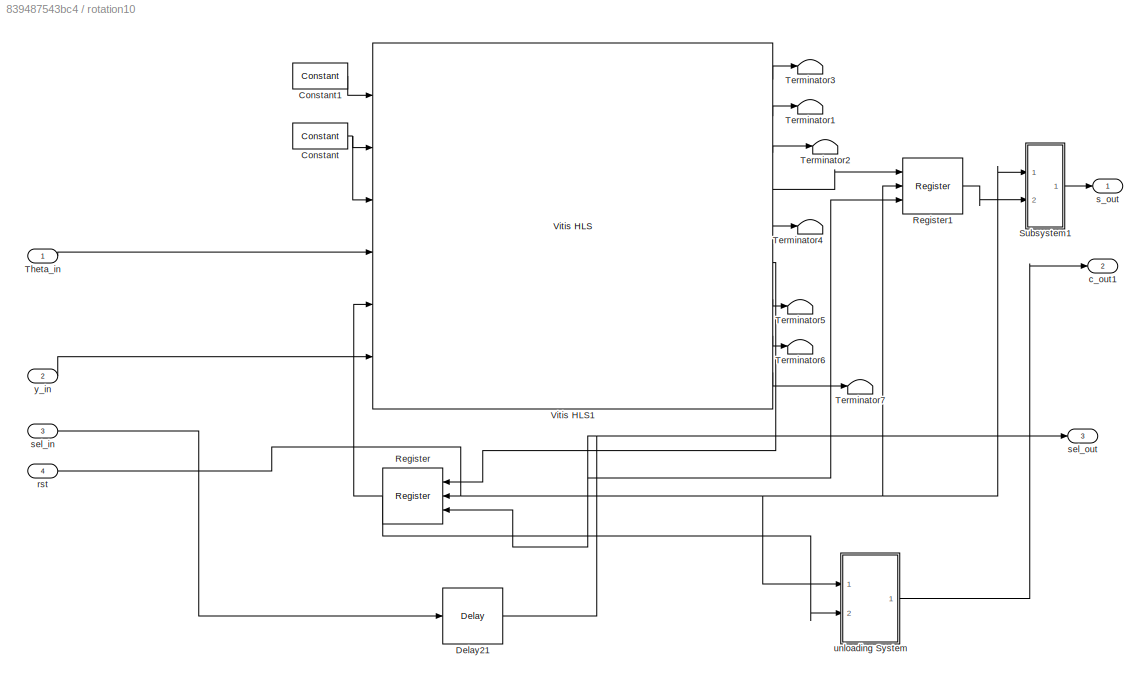
BLOCK [SubSystem] rotation10
  Ports = [4, 3]
  RequestExecContextInheritance = off
BLOCK [Reference] rotation10/Constant  REF=hdlBasic/Constant
  Ports = [0, 1]
  SourceBlock = hdlBasic/Constant
  SourceType = Constant Block Block
BLOCK [Reference] rotation10/Constant1  REF=hdlBasic/Constant
  Ports = [0, 1]
  SourceBlock = hdlBasic/Constant
  SourceType = Constant Block Block
BLOCK [Reference] rotation10/Delay21  REF=hdlBasic/Delay
  Ports = [1, 1]
  SourceBlock = hdlBasic/Delay
  SourceType = Delay Block
BLOCK [Reference] rotation10/Register  REF=hdlBasic/Register
  NameLocation = top
  Ports = [3, 1]
  SourceBlock = hdlBasic/Register
  SourceType = Register Block
BLOCK [Reference] rotation10/Register1  REF=hdlBasic/Register
  Ports = [3, 1]
  SourceBlock = hdlBasic/Register
  SourceType = Register Block
BLOCK [SubSystem] rotation10/Subsystem1
  Ports = [2, 1]
  RequestExecContextInheritance = off
BLOCK [Reference] rotation10/Subsystem1/Absolute1  REF=hdlBasic/Absolute
  NameLocation = right
  Ports = [1, 1]
  SourceBlock = hdlBasic/Absolute
  SourceType = Absolute Block
BLOCK [Reference] rotation10/Subsystem1/Accumulator1  REF=hdlBasic/Accumulator
  Ports = [3, 1]
  SourceBlock = hdlBasic/Accumulator
  SourceType = Accumulator Block
BLOCK [Reference] rotation10/Subsystem1/Constant4  REF=hdlBasic/Constant
  Ports = [0, 1]
  SourceBlock = hdlBasic/Constant
  SourceType = Constant Block Block
BLOCK [Reference] rotation10/Subsystem1/Constant5  REF=hdlBasic/Constant
  Ports = [0, 1]
  SourceBlock = hdlBasic/Constant
  SourceType = Constant Block Block
BLOCK [Reference] rotation10/Subsystem1/Constant6  REF=hdlBasic/Constant
  Ports = [0, 1]
  SourceBlock = hdlBasic/Constant
  SourceType = Constant Block Block
BLOCK [Reference] rotation10/Subsystem1/Constant7  REF=hdlBasic/Constant
  Ports = [0, 1]
  SourceBlock = hdlBasic/Constant
  SourceType = Constant Block Block
BLOCK [Reference] rotation10/Subsystem1/Mux1  REF=hdlBasic/Mux
  Ports = [3, 1]
  SourceBlock = hdlBasic/Mux
  SourceType = Bus Multiplexer Block
BLOCK [Reference] rotation10/Subsystem1/Register1  REF=hdlBasic/Register
  Ports = [3, 1]
  SourceBlock = hdlBasic/Register
  SourceType = Register Block
BLOCK [Reference] rotation10/Subsystem1/Relational2  REF=hdlBasic/Relational
  Ports = [2, 1]
  SourceBlock = hdlBasic/Relational
  SourceType = Arithmetic Relational Operator Block
BLOCK [Reference] rotation10/Subsystem1/Relational3  REF=hdlBasic/Relational
  Ports = [2, 1]
  SourceBlock = hdlBasic/Relational
  SourceType = Arithmetic Relational Operator Block
BLOCK [Inport] rotation10/Subsystem1/reg_i
  Port = 2
BLOCK [Outport] rotation10/Subsystem1/reg_o
BLOCK [Inport] rotation10/Subsystem1/rst
BLOCK [Terminator] rotation10/Terminator1
BLOCK [Terminator] rotation10/Terminator2
BLOCK [Terminator] rotation10/Terminator3
BLOCK [Terminator] rotation10/Terminator4
BLOCK [Terminator] rotation10/Terminator5
BLOCK [Terminator] rotation10/Terminator6
BLOCK [Terminator] rotation10/Terminator7
BLOCK [Inport] rotation10/Theta_in
BLOCK [Reference] rotation10/Vitis HLS1  REF=hdlBasic/Vitis HLS
  Ports = [6, 9]
  SourceBlock = hdlBasic/Vitis HLS
  SourceType = Xilinx High Level Synthesis Block
BLOCK [Outport] rotation10/c_out1
  Port = 2
BLOCK [Inport] rotation10/rst
  Port = 4
BLOCK [Outport] rotation10/s_out
BLOCK [Inport] rotation10/sel_in
  Port = 3
BLOCK [Outport] rotation10/sel_out
  Port = 3
BLOCK [SubSystem] rotation10/unloading System
  Ports = [2, 1]
  RequestExecContextInheritance = off
BLOCK [Reference] rotation10/unloading System/Absolute1  REF=hdlBasic/Absolute
  NameLocation = right
  Ports = [1, 1]
  SourceBlock = hdlBasic/Absolute
  SourceType = Absolute Block
BLOCK [Reference] rotation10/unloading System/Accumulator1  REF=hdlBasic/Accumulator
  Ports = [3, 1]
  SourceBlock = hdlBasic/Accumulator
  SourceType = Accumulator Block
BLOCK [Reference] rotation10/unloading System/Constant4  REF=hdlBasic/Constant
  Ports = [0, 1]
  SourceBlock = hdlBasic/Constant
  SourceType = Constant Block Block
BLOCK [Reference] rotation10/unloading System/Constant5  REF=hdlBasic/Constant
  Ports = [0, 1]
  SourceBlock = hdlBasic/Constant
  SourceType = Constant Block Block
BLOCK [Reference] rotation10/unloading System/Constant6  REF=hdlBasic/Constant
  Ports = [0, 1]
  SourceBlock = hdlBasic/Constant
  SourceType = Constant Block Block
BLOCK [Reference] rotation10/unloading System/Constant7  REF=hdlBasic/Constant
  Ports = [0, 1]
  SourceBlock = hdlBasic/Constant
  SourceType = Constant Block Block
BLOCK [Reference] rotation10/unloading System/Mux1  REF=hdlBasic/Mux
  Ports = [3, 1]
  SourceBlock = hdlBasic/Mux
  SourceType = Bus Multiplexer Block
BLOCK [Reference] rotation10/unloading System/Register1  REF=hdlBasic/Register
  Ports = [3, 1]
  SourceBlock = hdlBasic/Register
  SourceType = Register Block
BLOCK [Reference] rotation10/unloading System/Relational2  REF=hdlBasic/Relational
  Ports = [2, 1]
  SourceBlock = hdlBasic/Relational
  SourceType = Arithmetic Relational Operator Block
BLOCK [Reference] rotation10/unloading System/Relational3  REF=hdlBasic/Relational
  Ports = [2, 1]
  SourceBlock = hdlBasic/Relational
  SourceType = Arithmetic Relational Operator Block
BLOCK [Inport] rotation10/unloading System/reg_i
  Port = 2
BLOCK [Outport] rotation10/unloading System/reg_o
BLOCK [Inport] rotation10/unloading System/rst
BLOCK [Inport] rotation10/y_in
  Port = 2
BLOCK [SubSystem] rotation11
  Ports = [4, 3]
  RequestExecContextInheritance = off
BLOCK [Reference] rotation11/Constant  REF=hdlBasic/Constant
  Ports = [0, 1]
  SourceBlock = hdlBasic/Constant
  SourceType = Constant Block Block
BLOCK [Reference] rotation11/Constant1  REF=hdlBasic/Constant
  Ports = [0, 1]
  SourceBlock = hdlBasic/Constant
  SourceType = Constant Block Block
BLOCK [Reference] rotation11/Register  REF=hdlBasic/Register
  NameLocation = top
  Ports = [3, 1]
  SourceBlock = hdlBasic/Register
  SourceType = Register Block
BLOCK [SubSystem] rotation11/Subsystem9
  Ports = [2, 1]
  RequestExecContextInheritance = off
BLOCK [Reference] rotation11/Subsystem9/Absolute1  REF=hdlBasic/Absolute
  NameLocation = right
  Ports = [1, 1]
  SourceBlock = hdlBasic/Absolute
  SourceType = Absolute Block
BLOCK [Reference] rotation11/Subsystem9/Accumulator1  REF=hdlBasic/Accumulator
  Ports = [3, 1]
  SourceBlock = hdlBasic/Accumulator
  SourceType = Accumulator Block
BLOCK [Reference] rotation11/Subsystem9/Constant4  REF=hdlBasic/Constant
  Ports = [0, 1]
  SourceBlock = hdlBasic/Constant
  SourceType = Constant Block Block
BLOCK [Reference] rotation11/Subsystem9/Constant5  REF=hdlBasic/Constant
  Ports = [0, 1]
  SourceBlock = hdlBasic/Constant
  SourceType = Constant Block Block
BLOCK [Reference] rotation11/Subsystem9/Constant6  REF=hdlBasic/Constant
  Ports = [0, 1]
  SourceBlock = hdlBasic/Constant
  SourceType = Constant Block Block
BLOCK [Reference] rotation11/Subsystem9/Constant7  REF=hdlBasic/Constant
  Ports = [0, 1]
  SourceBlock = hdlBasic/Constant
  SourceType = Constant Block Block
BLOCK [Reference] rotation11/Subsystem9/Mux1  REF=hdlBasic/Mux
  Ports = [3, 1]
  SourceBlock = hdlBasic/Mux
  SourceType = Bus Multiplexer Block
BLOCK [Reference] rotation11/Subsystem9/Register1  REF=hdlBasic/Register
  Ports = [3, 1]
  SourceBlock = hdlBasic/Register
  SourceType = Register Block
BLOCK [Reference] rotation11/Subsystem9/Relational2  REF=hdlBasic/Relational
  Ports = [2, 1]
  SourceBlock = hdlBasic/Relational
  SourceType = Arithmetic Relational Operator Block
BLOCK [Reference] rotation11/Subsystem9/Relational3  REF=hdlBasic/Relational
  Ports = [2, 1]
  SourceBlock = hdlBasic/Relational
  SourceType = Arithmetic Relational Operator Block
BLOCK [Inport] rotation11/Subsystem9/reg_i
  Port = 2
BLOCK [Outport] rotation11/Subsystem9/reg_o
BLOCK [Inport] rotation11/Subsystem9/rst
BLOCK [Terminator] rotation11/Terminator1
BLOCK [Terminator] rotation11/Terminator2
BLOCK [Terminator] rotation11/Terminator3
BLOCK [Terminator] rotation11/Terminator4
BLOCK [Terminator] rotation11/Terminator5
BLOCK [Terminator] rotation11/Terminator6
BLOCK [Terminator] rotation11/Terminator7
BLOCK [Inport] rotation11/Theta_in
BLOCK [Reference] rotation11/Vitis HLS1  REF=hdlBasic/Vitis HLS
  Ports = [6, 9]
  SourceBlock = hdlBasic/Vitis HLS
  SourceType = Xilinx High Level Synthesis Block
BLOCK [Outport] rotation11/c_out1
  Port = 2
BLOCK [Inport] rotation11/rst
  Port = 4
BLOCK [Outport] rotation11/s_out
BLOCK [Inport] rotation11/sel_in
  Port = 3
BLOCK [Outport] rotation11/sel_out
  Port = 3
BLOCK [Inport] rotation11/y_in
  Port = 2
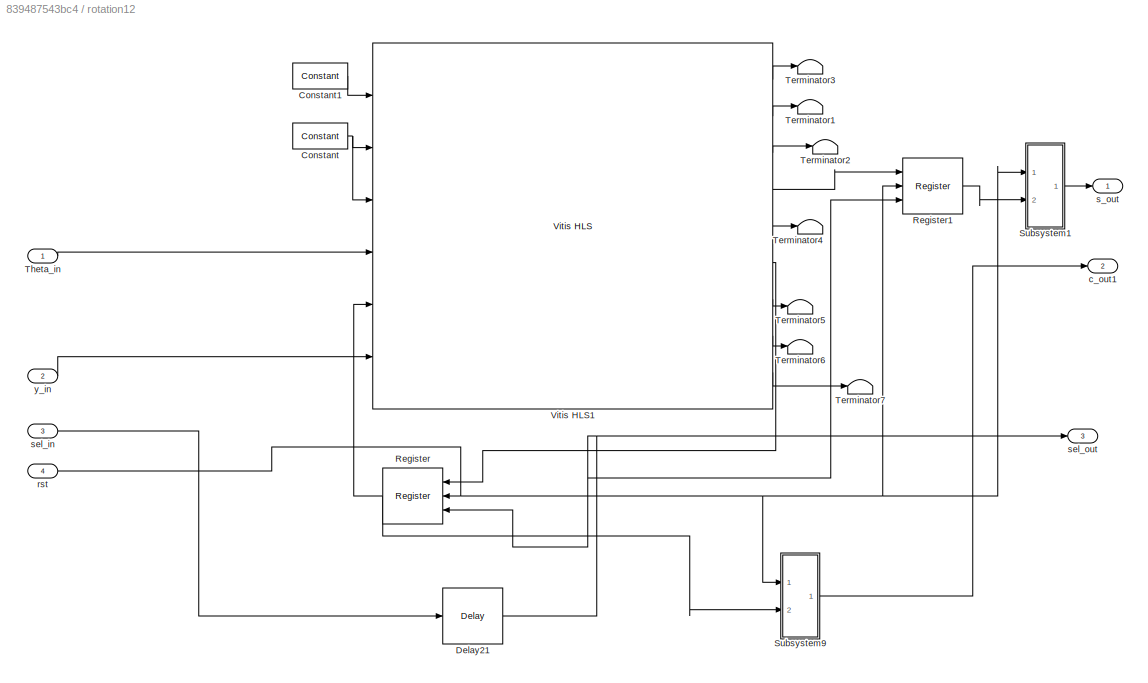
BLOCK [SubSystem] rotation12
  Ports = [4, 3]
  RequestExecContextInheritance = off
BLOCK [Reference] rotation12/Constant  REF=hdlBasic/Constant
  Ports = [0, 1]
  SourceBlock = hdlBasic/Constant
  SourceType = Constant Block Block
BLOCK [Reference] rotation12/Constant1  REF=hdlBasic/Constant
  Ports = [0, 1]
  SourceBlock = hdlBasic/Constant
  SourceType = Constant Block Block
BLOCK [Reference] rotation12/Delay21  REF=hdlBasic/Delay
  Ports = [1, 1]
  SourceBlock = hdlBasic/Delay
  SourceType = Delay Block
BLOCK [Reference] rotation12/Register  REF=hdlBasic/Register
  NameLocation = top
  Ports = [3, 1]
  SourceBlock = hdlBasic/Register
  SourceType = Register Block
BLOCK [Reference] rotation12/Register1  REF=hdlBasic/Register
  Ports = [3, 1]
  SourceBlock = hdlBasic/Register
  SourceType = Register Block
BLOCK [SubSystem] rotation12/Subsystem1
  Ports = [2, 1]
  RequestExecContextInheritance = off
BLOCK [Reference] rotation12/Subsystem1/Absolute1  REF=hdlBasic/Absolute
  NameLocation = right
  Ports = [1, 1]
  SourceBlock = hdlBasic/Absolute
  SourceType = Absolute Block
BLOCK [Reference] rotation12/Subsystem1/Accumulator1  REF=hdlBasic/Accumulator
  Ports = [3, 1]
  SourceBlock = hdlBasic/Accumulator
  SourceType = Accumulator Block
BLOCK [Reference] rotation12/Subsystem1/Constant4  REF=hdlBasic/Constant
  Ports = [0, 1]
  SourceBlock = hdlBasic/Constant
  SourceType = Constant Block Block
BLOCK [Reference] rotation12/Subsystem1/Constant5  REF=hdlBasic/Constant
  Ports = [0, 1]
  SourceBlock = hdlBasic/Constant
  SourceType = Constant Block Block
BLOCK [Reference] rotation12/Subsystem1/Constant6  REF=hdlBasic/Constant
  Ports = [0, 1]
  SourceBlock = hdlBasic/Constant
  SourceType = Constant Block Block
BLOCK [Reference] rotation12/Subsystem1/Constant7  REF=hdlBasic/Constant
  Ports = [0, 1]
  SourceBlock = hdlBasic/Constant
  SourceType = Constant Block Block
BLOCK [Reference] rotation12/Subsystem1/Mux1  REF=hdlBasic/Mux
  Ports = [3, 1]
  SourceBlock = hdlBasic/Mux
  SourceType = Bus Multiplexer Block
BLOCK [Reference] rotation12/Subsystem1/Register1  REF=hdlBasic/Register
  Ports = [3, 1]
  SourceBlock = hdlBasic/Register
  SourceType = Register Block
BLOCK [Reference] rotation12/Subsystem1/Relational2  REF=hdlBasic/Relational
  Ports = [2, 1]
  SourceBlock = hdlBasic/Relational
  SourceType = Arithmetic Relational Operator Block
BLOCK [Reference] rotation12/Subsystem1/Relational3  REF=hdlBasic/Relational
  Ports = [2, 1]
  SourceBlock = hdlBasic/Relational
  SourceType = Arithmetic Relational Operator Block
BLOCK [Inport] rotation12/Subsystem1/reg_i
  Port = 2
BLOCK [Outport] rotation12/Subsystem1/reg_o
BLOCK [Inport] rotation12/Subsystem1/rst
BLOCK [SubSystem] rotation12/Subsystem9
  Ports = [2, 1]
  RequestExecContextInheritance = off
BLOCK [Reference] rotation12/Subsystem9/Absolute1  REF=hdlBasic/Absolute
  NameLocation = right
  Ports = [1, 1]
  SourceBlock = hdlBasic/Absolute
  SourceType = Absolute Block
BLOCK [Reference] rotation12/Subsystem9/Accumulator1  REF=hdlBasic/Accumulator
  Ports = [3, 1]
  SourceBlock = hdlBasic/Accumulator
  SourceType = Accumulator Block
BLOCK [Reference] rotation12/Subsystem9/Constant4  REF=hdlBasic/Constant
  Ports = [0, 1]
  SourceBlock = hdlBasic/Constant
  SourceType = Constant Block Block
BLOCK [Reference] rotation12/Subsystem9/Constant5  REF=hdlBasic/Constant
  Ports = [0, 1]
  SourceBlock = hdlBasic/Constant
  SourceType = Constant Block Block
BLOCK [Reference] rotation12/Subsystem9/Constant6  REF=hdlBasic/Constant
  Ports = [0, 1]
  SourceBlock = hdlBasic/Constant
  SourceType = Constant Block Block
BLOCK [Reference] rotation12/Subsystem9/Constant7  REF=hdlBasic/Constant
  Ports = [0, 1]
  SourceBlock = hdlBasic/Constant
  SourceType = Constant Block Block
BLOCK [Reference] rotation12/Subsystem9/Mux1  REF=hdlBasic/Mux
  Ports = [3, 1]
  SourceBlock = hdlBasic/Mux
  SourceType = Bus Multiplexer Block
BLOCK [Reference] rotation12/Subsystem9/Register1  REF=hdlBasic/Register
  Ports = [3, 1]
  SourceBlock = hdlBasic/Register
  SourceType = Register Block
BLOCK [Reference] rotation12/Subsystem9/Relational2  REF=hdlBasic/Relational
  Ports = [2, 1]
  SourceBlock = hdlBasic/Relational
  SourceType = Arithmetic Relational Operator Block
BLOCK [Reference] rotation12/Subsystem9/Relational3  REF=hdlBasic/Relational
  Ports = [2, 1]
  SourceBlock = hdlBasic/Relational
  SourceType = Arithmetic Relational Operator Block
BLOCK [Inport] rotation12/Subsystem9/reg_i
  Port = 2
BLOCK [Outport] rotation12/Subsystem9/reg_o
BLOCK [Inport] rotation12/Subsystem9/rst
BLOCK [Terminator] rotation12/Terminator1
BLOCK [Terminator] rotation12/Terminator2
BLOCK [Terminator] rotation12/Terminator3
BLOCK [Terminator] rotation12/Terminator4
BLOCK [Terminator] rotation12/Terminator5
BLOCK [Terminator] rotation12/Terminator6
BLOCK [Terminator] rotation12/Terminator7
BLOCK [Inport] rotation12/Theta_in
BLOCK [Reference] rotation12/Vitis HLS1  REF=hdlBasic/Vitis HLS
  Ports = [6, 9]
  SourceBlock = hdlBasic/Vitis HLS
  SourceType = Xilinx High Level Synthesis Block
BLOCK [Outport] rotation12/c_out1
  Port = 2
BLOCK [Inport] rotation12/rst
  Port = 4
BLOCK [Outport] rotation12/s_out
BLOCK [Inport] rotation12/sel_in
  Port = 3
BLOCK [Outport] rotation12/sel_out
  Port = 3
BLOCK [Inport] rotation12/y_in
  Port = 2
BLOCK [SubSystem] rotation13
  Ports = [4, 3]
  RequestExecContextInheritance = off
BLOCK [Reference] rotation13/Constant  REF=hdlBasic/Constant
  Ports = [0, 1]
  SourceBlock = hdlBasic/Constant
  SourceType = Constant Block Block
BLOCK [Reference] rotation13/Constant1  REF=hdlBasic/Constant
  Ports = [0, 1]
  SourceBlock = hdlBasic/Constant
  SourceType = Constant Block Block
BLOCK [Reference] rotation13/Delay21  REF=hdlBasic/Delay
  Ports = [1, 1]
  SourceBlock = hdlBasic/Delay
  SourceType = Delay Block
BLOCK [Reference] rotation13/Register  REF=hdlBasic/Register
  NameLocation = top
  Ports = [3, 1]
  SourceBlock = hdlBasic/Register
  SourceType = Register Block
BLOCK [Reference] rotation13/Register1  REF=hdlBasic/Register
  Ports = [3, 1]
  SourceBlock = hdlBasic/Register
  SourceType = Register Block
BLOCK [SubSystem] rotation13/Subsystem1
  Ports = [2, 1]
  RequestExecContextInheritance = off
BLOCK [Reference] rotation13/Subsystem1/Absolute1  REF=hdlBasic/Absolute
  NameLocation = right
  Ports = [1, 1]
  SourceBlock = hdlBasic/Absolute
  SourceType = Absolute Block
BLOCK [Reference] rotation13/Subsystem1/Accumulator1  REF=hdlBasic/Accumulator
  Ports = [3, 1]
  SourceBlock = hdlBasic/Accumulator
  SourceType = Accumulator Block
BLOCK [Reference] rotation13/Subsystem1/Constant4  REF=hdlBasic/Constant
  Ports = [0, 1]
  SourceBlock = hdlBasic/Constant
  SourceType = Constant Block Block
BLOCK [Reference] rotation13/Subsystem1/Constant5  REF=hdlBasic/Constant
  Ports = [0, 1]
  SourceBlock = hdlBasic/Constant
  SourceType = Constant Block Block
BLOCK [Reference] rotation13/Subsystem1/Constant6  REF=hdlBasic/Constant
  Ports = [0, 1]
  SourceBlock = hdlBasic/Constant
  SourceType = Constant Block Block
BLOCK [Reference] rotation13/Subsystem1/Constant7  REF=hdlBasic/Constant
  Ports = [0, 1]
  SourceBlock = hdlBasic/Constant
  SourceType = Constant Block Block
BLOCK [Reference] rotation13/Subsystem1/Mux1  REF=hdlBasic/Mux
  Ports = [3, 1]
  SourceBlock = hdlBasic/Mux
  SourceType = Bus Multiplexer Block
BLOCK [Reference] rotation13/Subsystem1/Register1  REF=hdlBasic/Register
  Ports = [3, 1]
  SourceBlock = hdlBasic/Register
  SourceType = Register Block
BLOCK [Reference] rotation13/Subsystem1/Relational2  REF=hdlBasic/Relational
  Ports = [2, 1]
  SourceBlock = hdlBasic/Relational
  SourceType = Arithmetic Relational Operator Block
BLOCK [Reference] rotation13/Subsystem1/Relational3  REF=hdlBasic/Relational
  Ports = [2, 1]
  SourceBlock = hdlBasic/Relational
  SourceType = Arithmetic Relational Operator Block
BLOCK [Inport] rotation13/Subsystem1/reg_i
  Port = 2
BLOCK [Outport] rotation13/Subsystem1/reg_o
BLOCK [Inport] rotation13/Subsystem1/rst
BLOCK [SubSystem] rotation13/Subsystem9
  Ports = [2, 1]
  RequestExecContextInheritance = off
BLOCK [Reference] rotation13/Subsystem9/Absolute1  REF=hdlBasic/Absolute
  NameLocation = right
  Ports = [1, 1]
  SourceBlock = hdlBasic/Absolute
  SourceType = Absolute Block
BLOCK [Reference] rotation13/Subsystem9/Accumulator1  REF=hdlBasic/Accumulator
  Ports = [3, 1]
  SourceBlock = hdlBasic/Accumulator
  SourceType = Accumulator Block
BLOCK [Reference] rotation13/Subsystem9/Constant4  REF=hdlBasic/Constant
  Ports = [0, 1]
  SourceBlock = hdlBasic/Constant
  SourceType = Constant Block Block
BLOCK [Reference] rotation13/Subsystem9/Constant5  REF=hdlBasic/Constant
  Ports = [0, 1]
  SourceBlock = hdlBasic/Constant
  SourceType = Constant Block Block
BLOCK [Reference] rotation13/Subsystem9/Constant6  REF=hdlBasic/Constant
  Ports = [0, 1]
  SourceBlock = hdlBasic/Constant
  SourceType = Constant Block Block
BLOCK [Reference] rotation13/Subsystem9/Constant7  REF=hdlBasic/Constant
  Ports = [0, 1]
  SourceBlock = hdlBasic/Constant
  SourceType = Constant Block Block
BLOCK [Reference] rotation13/Subsystem9/Mux1  REF=hdlBasic/Mux
  Ports = [3, 1]
  SourceBlock = hdlBasic/Mux
  SourceType = Bus Multiplexer Block
BLOCK [Reference] rotation13/Subsystem9/Register1  REF=hdlBasic/Register
  Ports = [3, 1]
  SourceBlock = hdlBasic/Register
  SourceType = Register Block
BLOCK [Reference] rotation13/Subsystem9/Relational2  REF=hdlBasic/Relational
  Ports = [2, 1]
  SourceBlock = hdlBasic/Relational
  SourceType = Arithmetic Relational Operator Block
BLOCK [Reference] rotation13/Subsystem9/Relational3  REF=hdlBasic/Relational
  Ports = [2, 1]
  SourceBlock = hdlBasic/Relational
  SourceType = Arithmetic Relational Operator Block
BLOCK [Inport] rotation13/Subsystem9/reg_i
  Port = 2
BLOCK [Outport] rotation13/Subsystem9/reg_o
BLOCK [Inport] rotation13/Subsystem9/rst
BLOCK [Terminator] rotation13/Terminator1
BLOCK [Terminator] rotation13/Terminator2
BLOCK [Terminator] rotation13/Terminator3
BLOCK [Terminator] rotation13/Terminator4
BLOCK [Terminator] rotation13/Terminator5
BLOCK [Terminator] rotation13/Terminator6
BLOCK [Terminator] rotation13/Terminator7
BLOCK [Inport] rotation13/Theta_in
BLOCK [Reference] rotation13/Vitis HLS1  REF=hdlBasic/Vitis HLS
  Ports = [6, 9]
  SourceBlock = hdlBasic/Vitis HLS
  SourceType = Xilinx High Level Synthesis Block
BLOCK [Outport] rotation13/c_out1
  Port = 2
BLOCK [Inport] rotation13/rst
  Port = 4
BLOCK [Outport] rotation13/s_out
BLOCK [Inport] rotation13/sel_in
  Port = 3
BLOCK [Outport] rotation13/sel_out
  Port = 3
BLOCK [Inport] rotation13/y_in
  Port = 2
BLOCK [SubSystem] rotation14
  Ports = [4, 3]
  RequestExecContextInheritance = off
BLOCK [Reference] rotation14/Constant  REF=hdlBasic/Constant
  Ports = [0, 1]
  SourceBlock = hdlBasic/Constant
  SourceType = Constant Block Block
BLOCK [Reference] rotation14/Constant1  REF=hdlBasic/Constant
  Ports = [0, 1]
  SourceBlock = hdlBasic/Constant
  SourceType = Constant Block Block
BLOCK [Reference] rotation14/Register  REF=hdlBasic/Register
  NameLocation = top
  Ports = [3, 1]
  SourceBlock = hdlBasic/Register
  SourceType = Register Block
BLOCK [SubSystem] rotation14/Subsystem9
  Ports = [2, 1]
  RequestExecContextInheritance = off
BLOCK [Reference] rotation14/Subsystem9/Absolute1  REF=hdlBasic/Absolute
  NameLocation = right
  Ports = [1, 1]
  SourceBlock = hdlBasic/Absolute
  SourceType = Absolute Block
BLOCK [Reference] rotation14/Subsystem9/Accumulator1  REF=hdlBasic/Accumulator
  Ports = [3, 1]
  SourceBlock = hdlBasic/Accumulator
  SourceType = Accumulator Block
BLOCK [Reference] rotation14/Subsystem9/Constant4  REF=hdlBasic/Constant
  Ports = [0, 1]
  SourceBlock = hdlBasic/Constant
  SourceType = Constant Block Block
BLOCK [Reference] rotation14/Subsystem9/Constant5  REF=hdlBasic/Constant
  Ports = [0, 1]
  SourceBlock = hdlBasic/Constant
  SourceType = Constant Block Block
BLOCK [Reference] rotation14/Subsystem9/Constant6  REF=hdlBasic/Constant
  Ports = [0, 1]
  SourceBlock = hdlBasic/Constant
  SourceType = Constant Block Block
BLOCK [Reference] rotation14/Subsystem9/Constant7  REF=hdlBasic/Constant
  Ports = [0, 1]
  SourceBlock = hdlBasic/Constant
  SourceType = Constant Block Block
BLOCK [Reference] rotation14/Subsystem9/Mux1  REF=hdlBasic/Mux
  Ports = [3, 1]
  SourceBlock = hdlBasic/Mux
  SourceType = Bus Multiplexer Block
BLOCK [Reference] rotation14/Subsystem9/Register1  REF=hdlBasic/Register
  Ports = [3, 1]
  SourceBlock = hdlBasic/Register
  SourceType = Register Block
BLOCK [Reference] rotation14/Subsystem9/Relational2  REF=hdlBasic/Relational
  Ports = [2, 1]
  SourceBlock = hdlBasic/Relational
  SourceType = Arithmetic Relational Operator Block
BLOCK [Reference] rotation14/Subsystem9/Relational3  REF=hdlBasic/Relational
  Ports = [2, 1]
  SourceBlock = hdlBasic/Relational
  SourceType = Arithmetic Relational Operator Block
BLOCK [Inport] rotation14/Subsystem9/reg_i
  Port = 2
BLOCK [Outport] rotation14/Subsystem9/reg_o
BLOCK [Inport] rotation14/Subsystem9/rst
BLOCK [Terminator] rotation14/Terminator1
BLOCK [Terminator] rotation14/Terminator2
BLOCK [Terminator] rotation14/Terminator3
BLOCK [Terminator] rotation14/Terminator4
BLOCK [Terminator] rotation14/Terminator5
BLOCK [Terminator] rotation14/Terminator6
BLOCK [Terminator] rotation14/Terminator7
BLOCK [Inport] rotation14/Theta_in
BLOCK [Reference] rotation14/Vitis HLS1  REF=hdlBasic/Vitis HLS
  Ports = [6, 9]
  SourceBlock = hdlBasic/Vitis HLS
  SourceType = Xilinx High Level Synthesis Block
BLOCK [Outport] rotation14/c_out1
  Port = 2
BLOCK [Inport] rotation14/rst
  Port = 4
BLOCK [Outport] rotation14/s_out
BLOCK [Inport] rotation14/sel_in
  Port = 3
BLOCK [Outport] rotation14/sel_out
  Port = 3
BLOCK [Inport] rotation14/y_in
  Port = 2
BLOCK [SubSystem] rotation15
  Ports = [4, 3]
  RequestExecContextInheritance = off
BLOCK [Reference] rotation15/Constant  REF=hdlBasic/Constant
  Ports = [0, 1]
  SourceBlock = hdlBasic/Constant
  SourceType = Constant Block Block
BLOCK [Reference] rotation15/Constant1  REF=hdlBasic/Constant
  Ports = [0, 1]
  SourceBlock = hdlBasic/Constant
  SourceType = Constant Block Block
BLOCK [Reference] rotation15/Delay21  REF=hdlBasic/Delay
  Ports = [1, 1]
  SourceBlock = hdlBasic/Delay
  SourceType = Delay Block
BLOCK [Reference] rotation15/Register  REF=hdlBasic/Register
  NameLocation = top
  Ports = [3, 1]
  SourceBlock = hdlBasic/Register
  SourceType = Register Block
BLOCK [Reference] rotation15/Register1  REF=hdlBasic/Register
  Ports = [3, 1]
  SourceBlock = hdlBasic/Register
  SourceType = Register Block
BLOCK [SubSystem] rotation15/Subsystem1
  Ports = [2, 1]
  RequestExecContextInheritance = off
BLOCK [Reference] rotation15/Subsystem1/Absolute1  REF=hdlBasic/Absolute
  NameLocation = right
  Ports = [1, 1]
  SourceBlock = hdlBasic/Absolute
  SourceType = Absolute Block
BLOCK [Reference] rotation15/Subsystem1/Accumulator1  REF=hdlBasic/Accumulator
  Ports = [3, 1]
  SourceBlock = hdlBasic/Accumulator
  SourceType = Accumulator Block
BLOCK [Reference] rotation15/Subsystem1/Constant4  REF=hdlBasic/Constant
  Ports = [0, 1]
  SourceBlock = hdlBasic/Constant
  SourceType = Constant Block Block
BLOCK [Reference] rotation15/Subsystem1/Constant5  REF=hdlBasic/Constant
  Ports = [0, 1]
  SourceBlock = hdlBasic/Constant
  SourceType = Constant Block Block
BLOCK [Reference] rotation15/Subsystem1/Constant6  REF=hdlBasic/Constant
  Ports = [0, 1]
  SourceBlock = hdlBasic/Constant
  SourceType = Constant Block Block
BLOCK [Reference] rotation15/Subsystem1/Constant7  REF=hdlBasic/Constant
  Ports = [0, 1]
  SourceBlock = hdlBasic/Constant
  SourceType = Constant Block Block
BLOCK [Reference] rotation15/Subsystem1/Mux1  REF=hdlBasic/Mux
  Ports = [3, 1]
  SourceBlock = hdlBasic/Mux
  SourceType = Bus Multiplexer Block
BLOCK [Reference] rotation15/Subsystem1/Register1  REF=hdlBasic/Register
  Ports = [3, 1]
  SourceBlock = hdlBasic/Register
  SourceType = Register Block
BLOCK [Reference] rotation15/Subsystem1/Relational2  REF=hdlBasic/Relational
  Ports = [2, 1]
  SourceBlock = hdlBasic/Relational
  SourceType = Arithmetic Relational Operator Block
BLOCK [Reference] rotation15/Subsystem1/Relational3  REF=hdlBasic/Relational
  Ports = [2, 1]
  SourceBlock = hdlBasic/Relational
  SourceType = Arithmetic Relational Operator Block
BLOCK [Inport] rotation15/Subsystem1/reg_i
  Port = 2
BLOCK [Outport] rotation15/Subsystem1/reg_o
BLOCK [Inport] rotation15/Subsystem1/rst
BLOCK [SubSystem] rotation15/Subsystem9
  Ports = [2, 1]
  RequestExecContextInheritance = off
BLOCK [Reference] rotation15/Subsystem9/Absolute1  REF=hdlBasic/Absolute
  NameLocation = right
  Ports = [1, 1]
  SourceBlock = hdlBasic/Absolute
  SourceType = Absolute Block
BLOCK [Reference] rotation15/Subsystem9/Accumulator1  REF=hdlBasic/Accumulator
  Ports = [3, 1]
  SourceBlock = hdlBasic/Accumulator
  SourceType = Accumulator Block
BLOCK [Reference] rotation15/Subsystem9/Constant4  REF=hdlBasic/Constant
  Ports = [0, 1]
  SourceBlock = hdlBasic/Constant
  SourceType = Constant Block Block
BLOCK [Reference] rotation15/Subsystem9/Constant5  REF=hdlBasic/Constant
  Ports = [0, 1]
  SourceBlock = hdlBasic/Constant
  SourceType = Constant Block Block
BLOCK [Reference] rotation15/Subsystem9/Constant6  REF=hdlBasic/Constant
  Ports = [0, 1]
  SourceBlock = hdlBasic/Constant
  SourceType = Constant Block Block
BLOCK [Reference] rotation15/Subsystem9/Constant7  REF=hdlBasic/Constant
  Ports = [0, 1]
  SourceBlock = hdlBasic/Constant
  SourceType = Constant Block Block
BLOCK [Reference] rotation15/Subsystem9/Mux1  REF=hdlBasic/Mux
  Ports = [3, 1]
  SourceBlock = hdlBasic/Mux
  SourceType = Bus Multiplexer Block
BLOCK [Reference] rotation15/Subsystem9/Register1  REF=hdlBasic/Register
  Ports = [3, 1]
  SourceBlock = hdlBasic/Register
  SourceType = Register Block
BLOCK [Reference] rotation15/Subsystem9/Relational2  REF=hdlBasic/Relational
  Ports = [2, 1]
  SourceBlock = hdlBasic/Relational
  SourceType = Arithmetic Relational Operator Block
BLOCK [Reference] rotation15/Subsystem9/Relational3  REF=hdlBasic/Relational
  Ports = [2, 1]
  SourceBlock = hdlBasic/Relational
  SourceType = Arithmetic Relational Operator Block
BLOCK [Inport] rotation15/Subsystem9/reg_i
  Port = 2
BLOCK [Outport] rotation15/Subsystem9/reg_o
BLOCK [Inport] rotation15/Subsystem9/rst
BLOCK [Terminator] rotation15/Terminator1
BLOCK [Terminator] rotation15/Terminator2
BLOCK [Terminator] rotation15/Terminator3
BLOCK [Terminator] rotation15/Terminator4
BLOCK [Terminator] rotation15/Terminator5
BLOCK [Terminator] rotation15/Terminator6
BLOCK [Terminator] rotation15/Terminator7
BLOCK [Inport] rotation15/Theta_in
BLOCK [Reference] rotation15/Vitis HLS1  REF=hdlBasic/Vitis HLS
  Ports = [6, 9]
  SourceBlock = hdlBasic/Vitis HLS
  SourceType = Xilinx High Level Synthesis Block
BLOCK [Outport] rotation15/c_out1
  Port = 2
BLOCK [Inport] rotation15/rst
  Port = 4
BLOCK [Outport] rotation15/s_out
BLOCK [Inport] rotation15/sel_in
  Port = 3
BLOCK [Outport] rotation15/sel_out
  Port = 3
BLOCK [Inport] rotation15/y_in
  Port = 2
BLOCK [SubSystem] rotation16
  Ports = [3, 3]
  RequestExecContextInheritance = off
BLOCK [Reference] rotation16/Constant  REF=hdlBasic/Constant
  Ports = [0, 1]
  SourceBlock = hdlBasic/Constant
  SourceType = Constant Block Block
BLOCK [Reference] rotation16/Constant1  REF=hdlBasic/Constant
  Ports = [0, 1]
  SourceBlock = hdlBasic/Constant
  SourceType = Constant Block Block
BLOCK [Reference] rotation16/Register  REF=hdlBasic/Register
  NameLocation = top
  Ports = [3, 1]
  SourceBlock = hdlBasic/Register
  SourceType = Register Block
BLOCK [SubSystem] rotation16/Subsystem9
  Ports = [2, 1]
  RequestExecContextInheritance = off
BLOCK [Reference] rotation16/Subsystem9/Absolute1  REF=hdlBasic/Absolute
  NameLocation = right
  Ports = [1, 1]
  SourceBlock = hdlBasic/Absolute
  SourceType = Absolute Block
BLOCK [Reference] rotation16/Subsystem9/Accumulator1  REF=hdlBasic/Accumulator
  Ports = [3, 1]
  SourceBlock = hdlBasic/Accumulator
  SourceType = Accumulator Block
BLOCK [Reference] rotation16/Subsystem9/Constant4  REF=hdlBasic/Constant
  Ports = [0, 1]
  SourceBlock = hdlBasic/Constant
  SourceType = Constant Block Block
BLOCK [Reference] rotation16/Subsystem9/Constant5  REF=hdlBasic/Constant
  Ports = [0, 1]
  SourceBlock = hdlBasic/Constant
  SourceType = Constant Block Block
BLOCK [Reference] rotation16/Subsystem9/Constant6  REF=hdlBasic/Constant
  Ports = [0, 1]
  SourceBlock = hdlBasic/Constant
  SourceType = Constant Block Block
BLOCK [Reference] rotation16/Subsystem9/Constant7  REF=hdlBasic/Constant
  Ports = [0, 1]
  SourceBlock = hdlBasic/Constant
  SourceType = Constant Block Block
BLOCK [Reference] rotation16/Subsystem9/Mux1  REF=hdlBasic/Mux
  Ports = [3, 1]
  SourceBlock = hdlBasic/Mux
  SourceType = Bus Multiplexer Block
BLOCK [Reference] rotation16/Subsystem9/Register1  REF=hdlBasic/Register
  Ports = [3, 1]
  SourceBlock = hdlBasic/Register
  SourceType = Register Block
BLOCK [Reference] rotation16/Subsystem9/Relational2  REF=hdlBasic/Relational
  Ports = [2, 1]
  SourceBlock = hdlBasic/Relational
  SourceType = Arithmetic Relational Operator Block
BLOCK [Reference] rotation16/Subsystem9/Relational3  REF=hdlBasic/Relational
  Ports = [2, 1]
  SourceBlock = hdlBasic/Relational
  SourceType = Arithmetic Relational Operator Block
BLOCK [Inport] rotation16/Subsystem9/reg_i
  Port = 2
BLOCK [Outport] rotation16/Subsystem9/reg_o
BLOCK [Inport] rotation16/Subsystem9/rst
BLOCK [Terminator] rotation16/Terminator1
BLOCK [Terminator] rotation16/Terminator2
BLOCK [Terminator] rotation16/Terminator3
BLOCK [Terminator] rotation16/Terminator4
BLOCK [Terminator] rotation16/Terminator5
BLOCK [Terminator] rotation16/Terminator6
BLOCK [Inport] rotation16/Theta_in
BLOCK [Reference] rotation16/Vitis HLS1  REF=hdlBasic/Vitis HLS
  Ports = [6, 9]
  SourceBlock = hdlBasic/Vitis HLS
  SourceType = Xilinx High Level Synthesis Block
BLOCK [Outport] rotation16/c_out1
  Port = 2
BLOCK [Inport] rotation16/rst
  Port = 3
BLOCK [Outport] rotation16/s_out
BLOCK [Outport] rotation16/sel_out
  Port = 3
BLOCK [Inport] rotation16/y_in
  Port = 2
BLOCK [SubSystem] rotation17
  Ports = [4, 3]
  RequestExecContextInheritance = off
BLOCK [Reference] rotation17/Constant  REF=hdlBasic/Constant
  Ports = [0, 1]
  SourceBlock = hdlBasic/Constant
  SourceType = Constant Block Block
BLOCK [Reference] rotation17/Constant1  REF=hdlBasic/Constant
  Ports = [0, 1]
  SourceBlock = hdlBasic/Constant
  SourceType = Constant Block Block
BLOCK [Reference] rotation17/Register  REF=hdlBasic/Register
  NameLocation = top
  Ports = [3, 1]
  SourceBlock = hdlBasic/Register
  SourceType = Register Block
BLOCK [SubSystem] rotation17/Subsystem9
  Ports = [2, 1]
  RequestExecContextInheritance = off
BLOCK [Reference] rotation17/Subsystem9/Absolute1  REF=hdlBasic/Absolute
  NameLocation = right
  Ports = [1, 1]
  SourceBlock = hdlBasic/Absolute
  SourceType = Absolute Block
BLOCK [Reference] rotation17/Subsystem9/Accumulator1  REF=hdlBasic/Accumulator
  Ports = [3, 1]
  SourceBlock = hdlBasic/Accumulator
  SourceType = Accumulator Block
BLOCK [Reference] rotation17/Subsystem9/Constant4  REF=hdlBasic/Constant
  Ports = [0, 1]
  SourceBlock = hdlBasic/Constant
  SourceType = Constant Block Block
BLOCK [Reference] rotation17/Subsystem9/Constant5  REF=hdlBasic/Constant
  Ports = [0, 1]
  SourceBlock = hdlBasic/Constant
  SourceType = Constant Block Block
BLOCK [Reference] rotation17/Subsystem9/Constant6  REF=hdlBasic/Constant
  Ports = [0, 1]
  SourceBlock = hdlBasic/Constant
  SourceType = Constant Block Block
BLOCK [Reference] rotation17/Subsystem9/Constant7  REF=hdlBasic/Constant
  Ports = [0, 1]
  SourceBlock = hdlBasic/Constant
  SourceType = Constant Block Block
BLOCK [Reference] rotation17/Subsystem9/Mux1  REF=hdlBasic/Mux
  Ports = [3, 1]
  SourceBlock = hdlBasic/Mux
  SourceType = Bus Multiplexer Block
BLOCK [Reference] rotation17/Subsystem9/Register1  REF=hdlBasic/Register
  Ports = [3, 1]
  SourceBlock = hdlBasic/Register
  SourceType = Register Block
BLOCK [Reference] rotation17/Subsystem9/Relational2  REF=hdlBasic/Relational
  Ports = [2, 1]
  SourceBlock = hdlBasic/Relational
  SourceType = Arithmetic Relational Operator Block
BLOCK [Reference] rotation17/Subsystem9/Relational3  REF=hdlBasic/Relational
  Ports = [2, 1]
  SourceBlock = hdlBasic/Relational
  SourceType = Arithmetic Relational Operator Block
BLOCK [Inport] rotation17/Subsystem9/reg_i
  Port = 2
BLOCK [Outport] rotation17/Subsystem9/reg_o
BLOCK [Inport] rotation17/Subsystem9/rst
BLOCK [Terminator] rotation17/Terminator1
BLOCK [Terminator] rotation17/Terminator2
BLOCK [Terminator] rotation17/Terminator3
BLOCK [Terminator] rotation17/Terminator4
BLOCK [Terminator] rotation17/Terminator5
BLOCK [Terminator] rotation17/Terminator6
BLOCK [Terminator] rotation17/Terminator7
BLOCK [Inport] rotation17/Theta_in
BLOCK [Reference] rotation17/Vitis HLS1  REF=hdlBasic/Vitis HLS
  Ports = [6, 9]
  SourceBlock = hdlBasic/Vitis HLS
  SourceType = Xilinx High Level Synthesis Block
BLOCK [Outport] rotation17/c_out1
  Port = 2
BLOCK [Inport] rotation17/rst
  Port = 4
BLOCK [Outport] rotation17/s_out
BLOCK [Inport] rotation17/sel_in
  Port = 3
BLOCK [Outport] rotation17/sel_out
  Port = 3
BLOCK [Inport] rotation17/y_in
  Port = 2
BLOCK [SubSystem] rotation19
  Ports = [3, 3]
  RequestExecContextInheritance = off
BLOCK [Reference] rotation19/Constant  REF=hdlBasic/Constant
  Ports = [0, 1]
  SourceBlock = hdlBasic/Constant
  SourceType = Constant Block Block
BLOCK [Reference] rotation19/Constant1  REF=hdlBasic/Constant
  Ports = [0, 1]
  SourceBlock = hdlBasic/Constant
  SourceType = Constant Block Block
BLOCK [Reference] rotation19/Register  REF=hdlBasic/Register
  NameLocation = top
  Ports = [3, 1]
  SourceBlock = hdlBasic/Register
  SourceType = Register Block
BLOCK [SubSystem] rotation19/Subsystem9
  Ports = [2, 1]
  RequestExecContextInheritance = off
BLOCK [Reference] rotation19/Subsystem9/Absolute1  REF=hdlBasic/Absolute
  NameLocation = right
  Ports = [1, 1]
  SourceBlock = hdlBasic/Absolute
  SourceType = Absolute Block
BLOCK [Reference] rotation19/Subsystem9/Accumulator1  REF=hdlBasic/Accumulator
  Ports = [3, 1]
  SourceBlock = hdlBasic/Accumulator
  SourceType = Accumulator Block
BLOCK [Reference] rotation19/Subsystem9/Constant4  REF=hdlBasic/Constant
  Ports = [0, 1]
  SourceBlock = hdlBasic/Constant
  SourceType = Constant Block Block
BLOCK [Reference] rotation19/Subsystem9/Constant5  REF=hdlBasic/Constant
  Ports = [0, 1]
  SourceBlock = hdlBasic/Constant
  SourceType = Constant Block Block
BLOCK [Reference] rotation19/Subsystem9/Constant6  REF=hdlBasic/Constant
  Ports = [0, 1]
  SourceBlock = hdlBasic/Constant
  SourceType = Constant Block Block
BLOCK [Reference] rotation19/Subsystem9/Constant7  REF=hdlBasic/Constant
  Ports = [0, 1]
  SourceBlock = hdlBasic/Constant
  SourceType = Constant Block Block
BLOCK [Reference] rotation19/Subsystem9/Mux1  REF=hdlBasic/Mux
  Ports = [3, 1]
  SourceBlock = hdlBasic/Mux
  SourceType = Bus Multiplexer Block
BLOCK [Reference] rotation19/Subsystem9/Register1  REF=hdlBasic/Register
  Ports = [3, 1]
  SourceBlock = hdlBasic/Register
  SourceType = Register Block
BLOCK [Reference] rotation19/Subsystem9/Relational2  REF=hdlBasic/Relational
  Ports = [2, 1]
  SourceBlock = hdlBasic/Relational
  SourceType = Arithmetic Relational Operator Block
BLOCK [Reference] rotation19/Subsystem9/Relational3  REF=hdlBasic/Relational
  Ports = [2, 1]
  SourceBlock = hdlBasic/Relational
  SourceType = Arithmetic Relational Operator Block
BLOCK [Inport] rotation19/Subsystem9/reg_i
  Port = 2
BLOCK [Outport] rotation19/Subsystem9/reg_o
BLOCK [Inport] rotation19/Subsystem9/rst
BLOCK [Terminator] rotation19/Terminator1
BLOCK [Terminator] rotation19/Terminator2
BLOCK [Terminator] rotation19/Terminator3
BLOCK [Terminator] rotation19/Terminator4
BLOCK [Terminator] rotation19/Terminator5
BLOCK [Terminator] rotation19/Terminator6
BLOCK [Inport] rotation19/Theta_in
BLOCK [Reference] rotation19/Vitis HLS1  REF=hdlBasic/Vitis HLS
  Ports = [6, 9]
  SourceBlock = hdlBasic/Vitis HLS
  SourceType = Xilinx High Level Synthesis Block
BLOCK [Outport] rotation19/c_out1
  Port = 2
BLOCK [Inport] rotation19/rst
  Port = 3
BLOCK [Outport] rotation19/s_out
BLOCK [Outport] rotation19/sel_out
  Port = 3
BLOCK [Inport] rotation19/y_in
  Port = 2
BLOCK [SubSystem] rotation2
  Ports = [3, 3]
  RequestExecContextInheritance = off
BLOCK [Reference] rotation2/Constant  REF=hdlBasic/Constant
  Ports = [0, 1]
  SourceBlock = hdlBasic/Constant
  SourceType = Constant Block Block
BLOCK [Reference] rotation2/Constant1  REF=hdlBasic/Constant
  Ports = [0, 1]
  SourceBlock = hdlBasic/Constant
  SourceType = Constant Block Block
BLOCK [Reference] rotation2/Register  REF=hdlBasic/Register
  NameLocation = top
  Ports = [3, 1]
  SourceBlock = hdlBasic/Register
  SourceType = Register Block
BLOCK [Terminator] rotation2/Terminator1
BLOCK [Terminator] rotation2/Terminator2
BLOCK [Terminator] rotation2/Terminator3
BLOCK [Terminator] rotation2/Terminator4
BLOCK [Terminator] rotation2/Terminator5
BLOCK [Terminator] rotation2/Terminator6
BLOCK [Inport] rotation2/Theta_in
BLOCK [Reference] rotation2/Vitis HLS1  REF=hdlBasic/Vitis HLS
  Ports = [6, 9]
  SourceBlock = hdlBasic/Vitis HLS
  SourceType = Xilinx High Level Synthesis Block
BLOCK [Outport] rotation2/c_out1
  Port = 2
BLOCK [Inport] rotation2/rst
  Port = 3
BLOCK [Outport] rotation2/s_out
BLOCK [Outport] rotation2/sel_out
  Port = 3
BLOCK [Inport] rotation2/y_in
  Port = 2
BLOCK [SubSystem] rotation3
  Ports = [4, 2]
  RequestExecContextInheritance = off
BLOCK [Reference] rotation3/Constant  REF=hdlBasic/Constant
  Ports = [0, 1]
  SourceBlock = hdlBasic/Constant
  SourceType = Constant Block Block
BLOCK [Reference] rotation3/Constant1  REF=hdlBasic/Constant
  Ports = [0, 1]
  SourceBlock = hdlBasic/Constant
  SourceType = Constant Block Block
BLOCK [Reference] rotation3/Register  REF=hdlBasic/Register
  NameLocation = top
  Ports = [3, 1]
  SourceBlock = hdlBasic/Register
  SourceType = Register Block
BLOCK [Terminator] rotation3/Terminator1
BLOCK [Terminator] rotation3/Terminator2
BLOCK [Terminator] rotation3/Terminator3
BLOCK [Terminator] rotation3/Terminator4
BLOCK [Terminator] rotation3/Terminator5
BLOCK [Terminator] rotation3/Terminator6
BLOCK [Terminator] rotation3/Terminator7
BLOCK [Inport] rotation3/Theta_in
BLOCK [Reference] rotation3/Vitis HLS1  REF=hdlBasic/Vitis HLS
  Ports = [6, 9]
  SourceBlock = hdlBasic/Vitis HLS
  SourceType = Xilinx High Level Synthesis Block
BLOCK [Outport] rotation3/c_out1
  Port = 2
BLOCK [Inport] rotation3/rst
  Port = 4
BLOCK [Outport] rotation3/s_out
BLOCK [Inport] rotation3/sel_in
  Port = 3
BLOCK [Inport] rotation3/y_in
  Port = 2
BLOCK [SubSystem] rotation4
  Ports = [3, 3]
  RequestExecContextInheritance = off
BLOCK [Reference] rotation4/Constant  REF=hdlBasic/Constant
  Ports = [0, 1]
  SourceBlock = hdlBasic/Constant
  SourceType = Constant Block Block
BLOCK [Reference] rotation4/Constant1  REF=hdlBasic/Constant
  Ports = [0, 1]
  SourceBlock = hdlBasic/Constant
  SourceType = Constant Block Block
BLOCK [Reference] rotation4/Register  REF=hdlBasic/Register
  NameLocation = top
  Ports = [3, 1]
  SourceBlock = hdlBasic/Register
  SourceType = Register Block
BLOCK [Terminator] rotation4/Terminator1
BLOCK [Terminator] rotation4/Terminator2
BLOCK [Terminator] rotation4/Terminator3
BLOCK [Terminator] rotation4/Terminator4
BLOCK [Terminator] rotation4/Terminator5
BLOCK [Terminator] rotation4/Terminator6
BLOCK [Inport] rotation4/Theta_in
BLOCK [Reference] rotation4/Vitis HLS1  REF=hdlBasic/Vitis HLS
  Ports = [6, 9]
  SourceBlock = hdlBasic/Vitis HLS
  SourceType = Xilinx High Level Synthesis Block
BLOCK [Outport] rotation4/c_out1
  Port = 2
BLOCK [Inport] rotation4/rst
  Port = 3
BLOCK [Outport] rotation4/s_out
BLOCK [Outport] rotation4/sel_out
  Port = 3
BLOCK [Inport] rotation4/y_in
  Port = 2
BLOCK [SubSystem] rotation5
  Ports = [4, 3]
  RequestExecContextInheritance = off
BLOCK [Reference] rotation5/Constant  REF=hdlBasic/Constant
  Ports = [0, 1]
  SourceBlock = hdlBasic/Constant
  SourceType = Constant Block Block
BLOCK [Reference] rotation5/Constant1  REF=hdlBasic/Constant
  Ports = [0, 1]
  SourceBlock = hdlBasic/Constant
  SourceType = Constant Block Block
BLOCK [Reference] rotation5/Register  REF=hdlBasic/Register
  NameLocation = top
  Ports = [3, 1]
  SourceBlock = hdlBasic/Register
  SourceType = Register Block
BLOCK [Terminator] rotation5/Terminator1
BLOCK [Terminator] rotation5/Terminator2
BLOCK [Terminator] rotation5/Terminator3
BLOCK [Terminator] rotation5/Terminator4
BLOCK [Terminator] rotation5/Terminator5
BLOCK [Terminator] rotation5/Terminator6
BLOCK [Terminator] rotation5/Terminator7
BLOCK [Inport] rotation5/Theta_in
BLOCK [Reference] rotation5/Vitis HLS1  REF=hdlBasic/Vitis HLS
  Ports = [6, 9]
  SourceBlock = hdlBasic/Vitis HLS
  SourceType = Xilinx High Level Synthesis Block
BLOCK [Outport] rotation5/c_out1
  Port = 2
BLOCK [Inport] rotation5/rst
  Port = 4
BLOCK [Outport] rotation5/s_out
BLOCK [Inport] rotation5/sel_in
  Port = 3
BLOCK [Outport] rotation5/sel_out
  Port = 3
BLOCK [Inport] rotation5/y_in
  Port = 2
BLOCK [SubSystem] rotation6
  Ports = [4, 2]
  RequestExecContextInheritance = off
BLOCK [Reference] rotation6/Constant  REF=hdlBasic/Constant
  Ports = [0, 1]
  SourceBlock = hdlBasic/Constant
  SourceType = Constant Block Block
BLOCK [Reference] rotation6/Constant1  REF=hdlBasic/Constant
  Ports = [0, 1]
  SourceBlock = hdlBasic/Constant
  SourceType = Constant Block Block
BLOCK [Reference] rotation6/Register  REF=hdlBasic/Register
  NameLocation = top
  Ports = [3, 1]
  SourceBlock = hdlBasic/Register
  SourceType = Register Block
BLOCK [Reference] rotation6/Register1  REF=hdlBasic/Register
  Ports = [3, 1]
  SourceBlock = hdlBasic/Register
  SourceType = Register Block
BLOCK [Terminator] rotation6/Terminator1
BLOCK [Terminator] rotation6/Terminator2
BLOCK [Terminator] rotation6/Terminator3
BLOCK [Terminator] rotation6/Terminator4
BLOCK [Terminator] rotation6/Terminator5
BLOCK [Terminator] rotation6/Terminator6
BLOCK [Terminator] rotation6/Terminator7
BLOCK [Inport] rotation6/Theta_in
BLOCK [Reference] rotation6/Vitis HLS1  REF=hdlBasic/Vitis HLS
  Ports = [6, 9]
  SourceBlock = hdlBasic/Vitis HLS
  SourceType = Xilinx High Level Synthesis Block
BLOCK [Outport] rotation6/c_out1
  Port = 2
BLOCK [Inport] rotation6/rst
  Port = 4
BLOCK [Outport] rotation6/s_out
BLOCK [Inport] rotation6/sel_in
  Port = 3
BLOCK [Inport] rotation6/y_in
  Port = 2
BLOCK [SubSystem] rotation7
  Ports = [3, 3]
  RequestExecContextInheritance = off
BLOCK [Reference] rotation7/Constant  REF=hdlBasic/Constant
  Ports = [0, 1]
  SourceBlock = hdlBasic/Constant
  SourceType = Constant Block Block
BLOCK [Reference] rotation7/Constant1  REF=hdlBasic/Constant
  Ports = [0, 1]
  SourceBlock = hdlBasic/Constant
  SourceType = Constant Block Block
BLOCK [Reference] rotation7/Register  REF=hdlBasic/Register
  NameLocation = top
  Ports = [3, 1]
  SourceBlock = hdlBasic/Register
  SourceType = Register Block
BLOCK [SubSystem] rotation7/Subsystem9
  Ports = [2, 1]
  RequestExecContextInheritance = off
BLOCK [Reference] rotation7/Subsystem9/Absolute1  REF=hdlBasic/Absolute
  NameLocation = right
  Ports = [1, 1]
  SourceBlock = hdlBasic/Absolute
  SourceType = Absolute Block
BLOCK [Reference] rotation7/Subsystem9/Accumulator1  REF=hdlBasic/Accumulator
  Ports = [3, 1]
  SourceBlock = hdlBasic/Accumulator
  SourceType = Accumulator Block
BLOCK [Reference] rotation7/Subsystem9/Constant4  REF=hdlBasic/Constant
  Ports = [0, 1]
  SourceBlock = hdlBasic/Constant
  SourceType = Constant Block Block
BLOCK [Reference] rotation7/Subsystem9/Constant5  REF=hdlBasic/Constant
  Ports = [0, 1]
  SourceBlock = hdlBasic/Constant
  SourceType = Constant Block Block
BLOCK [Reference] rotation7/Subsystem9/Constant6  REF=hdlBasic/Constant
  Ports = [0, 1]
  SourceBlock = hdlBasic/Constant
  SourceType = Constant Block Block
BLOCK [Reference] rotation7/Subsystem9/Constant7  REF=hdlBasic/Constant
  Ports = [0, 1]
  SourceBlock = hdlBasic/Constant
  SourceType = Constant Block Block
BLOCK [Reference] rotation7/Subsystem9/Mux1  REF=hdlBasic/Mux
  Ports = [3, 1]
  SourceBlock = hdlBasic/Mux
  SourceType = Bus Multiplexer Block
BLOCK [Reference] rotation7/Subsystem9/Register1  REF=hdlBasic/Register
  Ports = [3, 1]
  SourceBlock = hdlBasic/Register
  SourceType = Register Block
BLOCK [Reference] rotation7/Subsystem9/Relational2  REF=hdlBasic/Relational
  Ports = [2, 1]
  SourceBlock = hdlBasic/Relational
  SourceType = Arithmetic Relational Operator Block
BLOCK [Reference] rotation7/Subsystem9/Relational3  REF=hdlBasic/Relational
  Ports = [2, 1]
  SourceBlock = hdlBasic/Relational
  SourceType = Arithmetic Relational Operator Block
BLOCK [Inport] rotation7/Subsystem9/reg_i
  Port = 2
BLOCK [Outport] rotation7/Subsystem9/reg_o
BLOCK [Inport] rotation7/Subsystem9/rst
BLOCK [Terminator] rotation7/Terminator1
BLOCK [Terminator] rotation7/Terminator2
BLOCK [Terminator] rotation7/Terminator3
BLOCK [Terminator] rotation7/Terminator4
BLOCK [Terminator] rotation7/Terminator5
BLOCK [Terminator] rotation7/Terminator6
BLOCK [Inport] rotation7/Theta_in
BLOCK [Reference] rotation7/Vitis HLS1  REF=hdlBasic/Vitis HLS
  Ports = [6, 9]
  SourceBlock = hdlBasic/Vitis HLS
  SourceType = Xilinx High Level Synthesis Block
BLOCK [Outport] rotation7/c_out1
  Port = 2
BLOCK [Inport] rotation7/rst
  Port = 3
BLOCK [Outport] rotation7/s_out
BLOCK [Outport] rotation7/sel_out
  Port = 3
BLOCK [Inport] rotation7/y_in
  Port = 2
BLOCK [SubSystem] rotation8
  Ports = [3, 3]
  RequestExecContextInheritance = off
BLOCK [Reference] rotation8/Constant  REF=hdlBasic/Constant
  Ports = [0, 1]
  SourceBlock = hdlBasic/Constant
  SourceType = Constant Block Block
BLOCK [Reference] rotation8/Constant1  REF=hdlBasic/Constant
  Ports = [0, 1]
  SourceBlock = hdlBasic/Constant
  SourceType = Constant Block Block
BLOCK [Reference] rotation8/Register  REF=hdlBasic/Register
  NameLocation = top
  Ports = [3, 1]
  SourceBlock = hdlBasic/Register
  SourceType = Register Block
BLOCK [SubSystem] rotation8/Subsystem9
  Ports = [2, 1]
  RequestExecContextInheritance = off
BLOCK [Reference] rotation8/Subsystem9/Absolute1  REF=hdlBasic/Absolute
  NameLocation = right
  Ports = [1, 1]
  SourceBlock = hdlBasic/Absolute
  SourceType = Absolute Block
BLOCK [Reference] rotation8/Subsystem9/Accumulator1  REF=hdlBasic/Accumulator
  Ports = [3, 1]
  SourceBlock = hdlBasic/Accumulator
  SourceType = Accumulator Block
BLOCK [Reference] rotation8/Subsystem9/Constant4  REF=hdlBasic/Constant
  Ports = [0, 1]
  SourceBlock = hdlBasic/Constant
  SourceType = Constant Block Block
BLOCK [Reference] rotation8/Subsystem9/Constant5  REF=hdlBasic/Constant
  Ports = [0, 1]
  SourceBlock = hdlBasic/Constant
  SourceType = Constant Block Block
BLOCK [Reference] rotation8/Subsystem9/Constant6  REF=hdlBasic/Constant
  Ports = [0, 1]
  SourceBlock = hdlBasic/Constant
  SourceType = Constant Block Block
BLOCK [Reference] rotation8/Subsystem9/Constant7  REF=hdlBasic/Constant
  Ports = [0, 1]
  SourceBlock = hdlBasic/Constant
  SourceType = Constant Block Block
BLOCK [Reference] rotation8/Subsystem9/Mux1  REF=hdlBasic/Mux
  Ports = [3, 1]
  SourceBlock = hdlBasic/Mux
  SourceType = Bus Multiplexer Block
BLOCK [Reference] rotation8/Subsystem9/Register1  REF=hdlBasic/Register
  Ports = [3, 1]
  SourceBlock = hdlBasic/Register
  SourceType = Register Block
BLOCK [Reference] rotation8/Subsystem9/Relational2  REF=hdlBasic/Relational
  Ports = [2, 1]
  SourceBlock = hdlBasic/Relational
  SourceType = Arithmetic Relational Operator Block
BLOCK [Reference] rotation8/Subsystem9/Relational3  REF=hdlBasic/Relational
  Ports = [2, 1]
  SourceBlock = hdlBasic/Relational
  SourceType = Arithmetic Relational Operator Block
BLOCK [Inport] rotation8/Subsystem9/reg_i
  Port = 2
BLOCK [Outport] rotation8/Subsystem9/reg_o
BLOCK [Inport] rotation8/Subsystem9/rst
BLOCK [Terminator] rotation8/Terminator1
BLOCK [Terminator] rotation8/Terminator2
BLOCK [Terminator] rotation8/Terminator3
BLOCK [Terminator] rotation8/Terminator4
BLOCK [Terminator] rotation8/Terminator5
BLOCK [Terminator] rotation8/Terminator6
BLOCK [Inport] rotation8/Theta_in
BLOCK [Reference] rotation8/Vitis HLS1  REF=hdlBasic/Vitis HLS
  Ports = [6, 9]
  SourceBlock = hdlBasic/Vitis HLS
  SourceType = Xilinx High Level Synthesis Block
BLOCK [Outport] rotation8/c_out1
  Port = 2
BLOCK [Inport] rotation8/rst
  Port = 3
BLOCK [Outport] rotation8/s_out
BLOCK [Outport] rotation8/sel_out
  Port = 3
BLOCK [Inport] rotation8/y_in
  Port = 2
BLOCK [SubSystem] rotation9
  Ports = [4, 3]
  RequestExecContextInheritance = off
BLOCK [Reference] rotation9/Constant  REF=hdlBasic/Constant
  Ports = [0, 1]
  SourceBlock = hdlBasic/Constant
  SourceType = Constant Block Block
BLOCK [Reference] rotation9/Constant1  REF=hdlBasic/Constant
  Ports = [0, 1]
  SourceBlock = hdlBasic/Constant
  SourceType = Constant Block Block
BLOCK [Reference] rotation9/Register  REF=hdlBasic/Register
  NameLocation = top
  Ports = [3, 1]
  SourceBlock = hdlBasic/Register
  SourceType = Register Block
BLOCK [SubSystem] rotation9/Subsystem9
  Ports = [2, 1]
  RequestExecContextInheritance = off
BLOCK [Reference] rotation9/Subsystem9/Absolute1  REF=hdlBasic/Absolute
  NameLocation = right
  Ports = [1, 1]
  SourceBlock = hdlBasic/Absolute
  SourceType = Absolute Block
BLOCK [Reference] rotation9/Subsystem9/Accumulator1  REF=hdlBasic/Accumulator
  Ports = [3, 1]
  SourceBlock = hdlBasic/Accumulator
  SourceType = Accumulator Block
BLOCK [Reference] rotation9/Subsystem9/Constant4  REF=hdlBasic/Constant
  Ports = [0, 1]
  SourceBlock = hdlBasic/Constant
  SourceType = Constant Block Block
BLOCK [Reference] rotation9/Subsystem9/Constant5  REF=hdlBasic/Constant
  Ports = [0, 1]
  SourceBlock = hdlBasic/Constant
  SourceType = Constant Block Block
BLOCK [Reference] rotation9/Subsystem9/Constant6  REF=hdlBasic/Constant
  Ports = [0, 1]
  SourceBlock = hdlBasic/Constant
  SourceType = Constant Block Block
BLOCK [Reference] rotation9/Subsystem9/Constant7  REF=hdlBasic/Constant
  Ports = [0, 1]
  SourceBlock = hdlBasic/Constant
  SourceType = Constant Block Block
BLOCK [Reference] rotation9/Subsystem9/Mux1  REF=hdlBasic/Mux
  Ports = [3, 1]
  SourceBlock = hdlBasic/Mux
  SourceType = Bus Multiplexer Block
BLOCK [Reference] rotation9/Subsystem9/Register1  REF=hdlBasic/Register
  Ports = [3, 1]
  SourceBlock = hdlBasic/Register
  SourceType = Register Block
BLOCK [Reference] rotation9/Subsystem9/Relational2  REF=hdlBasic/Relational
  Ports = [2, 1]
  SourceBlock = hdlBasic/Relational
  SourceType = Arithmetic Relational Operator Block
BLOCK [Reference] rotation9/Subsystem9/Relational3  REF=hdlBasic/Relational
  Ports = [2, 1]
  SourceBlock = hdlBasic/Relational
  SourceType = Arithmetic Relational Operator Block
BLOCK [Inport] rotation9/Subsystem9/reg_i
  Port = 2
BLOCK [Outport] rotation9/Subsystem9/reg_o
BLOCK [Inport] rotation9/Subsystem9/rst
BLOCK [Terminator] rotation9/Terminator1
BLOCK [Terminator] rotation9/Terminator2
BLOCK [Terminator] rotation9/Terminator3
BLOCK [Terminator] rotation9/Terminator4
BLOCK [Terminator] rotation9/Terminator5
BLOCK [Terminator] rotation9/Terminator6
BLOCK [Terminator] rotation9/Terminator7
BLOCK [Inport] rotation9/Theta_in
BLOCK [Reference] rotation9/Vitis HLS1  REF=hdlBasic/Vitis HLS
  Ports = [6, 9]
  SourceBlock = hdlBasic/Vitis HLS
  SourceType = Xilinx High Level Synthesis Block
BLOCK [Outport] rotation9/c_out1
  Port = 2
BLOCK [Inport] rotation9/rst
  Port = 4
BLOCK [Outport] rotation9/s_out
BLOCK [Inport] rotation9/sel_in
  Port = 3
BLOCK [Outport] rotation9/sel_out
  Port = 3
BLOCK [Inport] rotation9/y_in
  Port = 2
BLOCK [Reference] rout_11  REF=hdlBasic/Gateway Out
  Ports = [1, 1]
  SourceBlock = hdlBasic/Gateway Out
  SourceType = Gateway Out Block
BLOCK [Reference] rout_21  REF=hdlBasic/Gateway Out
  Ports = [1, 1]
  SourceBlock = hdlBasic/Gateway Out
  SourceType = Gateway Out Block
BLOCK [Reference] rout_22  REF=hdlBasic/Gateway Out
  Ports = [1, 1]
  SourceBlock = hdlBasic/Gateway Out
  SourceType = Gateway Out Block
BLOCK [Reference] rout_31  REF=hdlBasic/Gateway Out
  Ports = [1, 1]
  SourceBlock = hdlBasic/Gateway Out
  SourceType = Gateway Out Block
BLOCK [Reference] rout_32  REF=hdlBasic/Gateway Out
  Ports = [1, 1]
  SourceBlock = hdlBasic/Gateway Out
  SourceType = Gateway Out Block
BLOCK [Reference] rout_33  REF=hdlBasic/Gateway Out
  Ports = [1, 1]
  SourceBlock = hdlBasic/Gateway Out
  SourceType = Gateway Out Block
BLOCK [Reference] rout_41  REF=hdlBasic/Gateway Out
  Ports = [1, 1]
  SourceBlock = hdlBasic/Gateway Out
  SourceType = Gateway Out Block
BLOCK [Reference] rout_42  REF=hdlBasic/Gateway Out
  Ports = [1, 1]
  SourceBlock = hdlBasic/Gateway Out
  SourceType = Gateway Out Block
BLOCK [Reference] rout_43  REF=hdlBasic/Gateway Out
  Ports = [1, 1]
  SourceBlock = hdlBasic/Gateway Out
  SourceType = Gateway Out Block
BLOCK [Reference] rout_44  REF=hdlBasic/Gateway Out
  Ports = [1, 1]
  SourceBlock = hdlBasic/Gateway Out
  SourceType = Gateway Out Block
BLOCK [Reference] rst_var  REF=hdlBasic/Gateway In
  Ports = [1, 1]
  SourceBlock = hdlBasic/Gateway In
  SourceType = Gateway In Block
BLOCK [Reference] start_var  REF=hdlBasic/Gateway In
  Ports = [1, 1]
  SourceBlock = hdlBasic/Gateway In
  SourceType = Gateway In Block
LINE Constant10:1 -> Subsystem16:3
LINE Constant11:1 -> Subsystem16:1
LINE Constant12:1 -> Subsystem16:4
LINE Constant13:1 -> Subsystem17:2
LINE Constant14:1 -> Subsystem17:3
LINE Constant15:1 -> Subsystem17:1
LINE Constant16:1 -> Subsystem17:4
LINE Constant1:1 -> Subsystem14:2
LINE Constant2:1 -> Subsystem14:3
LINE Constant3:1 -> Subsystem14:1
LINE Constant4:1 -> Subsystem14:4
LINE Constant5:1 -> Subsystem15:2
LINE Constant6:1 -> Subsystem15:3
LINE Constant7:1 -> Subsystem15:1
LINE Constant8:1 -> Subsystem15:4
LINE Constant9:1 -> Subsystem16:2
NET Delay10:1 -> Delay11:1, Delay16:1, Subsystem13:6, Subsystem6:1, rotation4:3
NET Delay11:1 -> Delay18:1, Subsystem14:6, rotation8:3
NET Delay12:1 -> Subsystem2:1, arctan2:3
NET Delay13:1 -> Subsystem4:1, rotation3:4
LINE Delay14:1 -> Delay15:1
NET Delay15:1 -> Subsystem5:1, arctan3:3
NET Delay16:1 -> Delay17:1, Subsystem7:1, rotation5:4
NET Delay17:1 -> Subsystem8:1, Subsystem9:1, rotation6:4
NET Delay18:1 -> Delay23:1, Delay26:1, Delay44:1, Subsystem16:6, rotation7:3, rotation9:4
NET Delay19:1 -> Delay40:1, rotation7:1
LINE Delay1:1 -> rotation5:3
NET Delay20:1 -> Delay25:1, rotation9:1
NET Delay21:1 -> rotation11:3, rotation9:3
NET Delay22:1 -> Delay27:1, rotation10:1
LINE Delay23:1 -> rotation10:4
NET Delay24:1 -> Delay31:1, Subsystem11:5
NET Delay25:1 -> Delay41:1, rotation11:1
NET Delay26:1 -> Delay28:1, rotation11:4
NET Delay27:1 -> Delay33:1, rotation12:1
LINE Delay28:1 -> rotation12:4
NET Delay29:1 -> Delay34:1, Delay37:1, Subsystem17:6, rotation16:3, rotation17:4
LINE Delay2:1 -> rotation3:3
LINE Delay30:1 -> rotation16:1
NET Delay31:1 -> Delay35:1, Subsystem12:5
NET Delay32:1 -> rotation14:3, rotation17:3
NET Delay33:1 -> Delay38:1, rotation13:1
LINE Delay34:1 -> rotation13:4
NET Delay35:1 -> Delay42:1, Subsystem13:5
LINE Delay36:1 -> rotation14:1
NET Delay37:1 -> Delay39:1, rotation14:4
LINE Delay38:1 -> rotation15:1
LINE Delay39:1 -> rotation15:4
NET Delay3:1 -> Delay7:1, rotation4:1
NET Delay40:1 -> Delay30:1, rotation19:1
NET Delay41:1 -> Delay36:1, rotation17:1
NET Delay42:1 -> Delay45:1, Subsystem14:5
NET Delay43:1 -> Delay46:1, Subsystem15:5
NET Delay44:1 -> Delay29:1, Subsystem15:6, rotation19:3
NET Delay45:1 -> Delay43:1, Subsystem16:5
LINE Delay46:1 -> Subsystem17:5
NET Delay4:1 -> Delay20:1, rotation5:1
NET Delay5:1 -> Delay3:1, rotation2:1
LINE Delay6:1 -> rotation6:3
NET Delay7:1 -> Delay19:1, rotation8:1
NET Delay8:1 -> Delay12:1, Delay9:1, Subsystem1:1, rotation1:3
NET Delay9:1 -> Delay10:1, Delay13:1, Delay14:1, Subsystem3:1, rotation2:3
LINE From Wor43pace1:1 -> a34_var:1
LINE From Work3pace19:1 -> a33_var:1
LINE From Workspace10:1 -> a11_var:1
LINE From Workspace11:1 -> a21_var:1
LINE From Workspace12:1 -> a31_var:1
LINE From Workspace13:1 -> a41_var:1
LINE From Workspace14:1 -> a12_var:1
LINE From Workspace15:1 -> a22_var:1
LINE From Workspace16:1 -> a32_var:1
LINE From Workspace17:1 -> a42_var:1
LINE From Workspace18:1 -> a23_var:1
LINE From Workspace19:1 -> a44_var:1
LINE From Workspace20:1 -> a43_var:1
LINE From Workspace21:1 -> a14_var:1
LINE From Workspace2:1 -> rst_var:1
LINE From Workspace3:1 -> start_var:1
LINE From Workspace4:1 -> a13_var:1
LINE From Workspace5:1 -> a24_var:1
LINE Negate10:1 -> qout_34:1
LINE Negate11:1 -> qout_44:1
LINE Negate1:1 -> Subsystem:2
LINE Negate2:1 -> Subsystem8:2
LINE Negate3:1 -> Subsystem2:2
LINE Negate4:1 -> qout_31:1
LINE Negate5:1 -> qout_41:1
LINE Negate6:1 -> qout_32:1
LINE Negate7:1 -> qout_42:1
LINE Negate8:1 -> qout_33:1
LINE Negate9:1 -> qout_43:1
LINE Subsystem/Absolute1:1 -> Subsystem/Relational2:1
LINE Subsystem/Accumulator1:1 -> Subsystem/Relational3:1
LINE Subsystem/Constant4:1 -> Subsystem/Relational2:2
LINE Subsystem/Constant5:1 -> Subsystem/Accumulator1:1
LINE Subsystem/Constant6:1 -> Subsystem/Relational3:2
LINE Subsystem/Constant7:1 -> Subsystem/Mux1:3
NET Subsystem/Mux1:1 -> Subsystem/Accumulator1:3, Subsystem/Register1:3
LINE Subsystem/Register1:1 -> Subsystem/reg_o:1
LINE Subsystem/Relational2:1 -> Subsystem/Mux1:2
LINE Subsystem/Relational3:1 -> Subsystem/Mux1:1
NET Subsystem/reg_i:1 -> Subsystem/Absolute1:1, Subsystem/Register1:1
NET Subsystem/rst:1 -> Subsystem/Accumulator1:2, Subsystem/Register1:2
LINE Subsystem1/Absolute1:1 -> Subsystem1/Relational2:1
LINE Subsystem1/Accumulator1:1 -> Subsystem1/Relational3:1
LINE Subsystem1/Constant4:1 -> Subsystem1/Relational2:2
LINE Subsystem1/Constant5:1 -> Subsystem1/Accumulator1:1
LINE Subsystem1/Constant6:1 -> Subsystem1/Relational3:2
LINE Subsystem1/Constant7:1 -> Subsystem1/Mux1:3
NET Subsystem1/Mux1:1 -> Subsystem1/Accumulator1:3, Subsystem1/Register1:3
LINE Subsystem1/Register1:1 -> Subsystem1/reg_o:1
LINE Subsystem1/Relational2:1 -> Subsystem1/Mux1:2
LINE Subsystem1/Relational3:1 -> Subsystem1/Mux1:1
NET Subsystem1/reg_i:1 -> Subsystem1/Absolute1:1, Subsystem1/Register1:1
NET Subsystem1/rst:1 -> Subsystem1/Accumulator1:2, Subsystem1/Register1:2
LINE Subsystem10/Constant:1 -> Subsystem10/Mux:2
LINE Subsystem10/Mux:1 -> Subsystem10/fifo_out:1
LINE Subsystem10/Subsystem10/Constant1:1 -> Subsystem10/Subsystem10/Mux1:3
LINE Subsystem10/Subsystem10/Mux1:1 -> Subsystem10/Subsystem10/reg_o:1
LINE Subsystem10/Subsystem10/Register2:1 -> Subsystem10/Subsystem10/Mux1:1
NET Subsystem10/Subsystem10/reg_i:1 -> Subsystem10/Subsystem10/Mux1:2, Subsystem10/Subsystem10/Register2:1
LINE Subsystem10/Subsystem10:1 -> Subsystem10/Subsystem3:2
LINE Subsystem10/Subsystem11/Absolute1:1 -> Subsystem10/Subsystem11/Relational2:1
LINE Subsystem10/Subsystem11/Accumulator1:1 -> Subsystem10/Subsystem11/Relational3:1
LINE Subsystem10/Subsystem11/Constant4:1 -> Subsystem10/Subsystem11/Relational2:2
LINE Subsystem10/Subsystem11/Constant5:1 -> Subsystem10/Subsystem11/Accumulator1:1
LINE Subsystem10/Subsystem11/Constant6:1 -> Subsystem10/Subsystem11/Relational3:2
LINE Subsystem10/Subsystem11/Constant7:1 -> Subsystem10/Subsystem11/Mux1:3
NET Subsystem10/Subsystem11/Mux1:1 -> Subsystem10/Subsystem11/Accumulator1:3, Subsystem10/Subsystem11/Register1:3
LINE Subsystem10/Subsystem11/Register1:1 -> Subsystem10/Subsystem11/reg_o:1
LINE Subsystem10/Subsystem11/Relational2:1 -> Subsystem10/Subsystem11/Mux1:2
LINE Subsystem10/Subsystem11/Relational3:1 -> Subsystem10/Subsystem11/Mux1:1
NET Subsystem10/Subsystem11/reg_i:1 -> Subsystem10/Subsystem11/Absolute1:1, Subsystem10/Subsystem11/Register1:1
NET Subsystem10/Subsystem11/rst:1 -> Subsystem10/Subsystem11/Accumulator1:2, Subsystem10/Subsystem11/Register1:2
LINE Subsystem10/Subsystem11:1 -> Subsystem10/Mux:3
LINE Subsystem10/Subsystem12/Absolute1:1 -> Subsystem10/Subsystem12/Relational2:1
LINE Subsystem10/Subsystem12/Accumulator1:1 -> Subsystem10/Subsystem12/Relational3:1
LINE Subsystem10/Subsystem12/Constant4:1 -> Subsystem10/Subsystem12/Relational2:2
LINE Subsystem10/Subsystem12/Constant5:1 -> Subsystem10/Subsystem12/Accumulator1:1
LINE Subsystem10/Subsystem12/Constant6:1 -> Subsystem10/Subsystem12/Relational3:2
LINE Subsystem10/Subsystem12/Constant7:1 -> Subsystem10/Subsystem12/Mux1:3
NET Subsystem10/Subsystem12/Mux1:1 -> Subsystem10/Subsystem12/Accumulator1:3, Subsystem10/Subsystem12/Register1:3
LINE Subsystem10/Subsystem12/Register1:1 -> Subsystem10/Subsystem12/reg_o:1
LINE Subsystem10/Subsystem12/Relational2:1 -> Subsystem10/Subsystem12/Mux1:2
LINE Subsystem10/Subsystem12/Relational3:1 -> Subsystem10/Subsystem12/Mux1:1
NET Subsystem10/Subsystem12/reg_i:1 -> Subsystem10/Subsystem12/Absolute1:1, Subsystem10/Subsystem12/Register1:1
NET Subsystem10/Subsystem12/rst:1 -> Subsystem10/Subsystem12/Accumulator1:2, Subsystem10/Subsystem12/Register1:2
LINE Subsystem10/Subsystem12:1 -> Subsystem10/Mux:4
LINE Subsystem10/Subsystem13/Absolute1:1 -> Subsystem10/Subsystem13/Relational2:1
LINE Subsystem10/Subsystem13/Accumulator1:1 -> Subsystem10/Subsystem13/Relational3:1
LINE Subsystem10/Subsystem13/Constant4:1 -> Subsystem10/Subsystem13/Relational2:2
LINE Subsystem10/Subsystem13/Constant5:1 -> Subsystem10/Subsystem13/Accumulator1:1
LINE Subsystem10/Subsystem13/Constant6:1 -> Subsystem10/Subsystem13/Relational3:2
LINE Subsystem10/Subsystem13/Constant7:1 -> Subsystem10/Subsystem13/Mux1:3
NET Subsystem10/Subsystem13/Mux1:1 -> Subsystem10/Subsystem13/Accumulator1:3, Subsystem10/Subsystem13/Register1:3
LINE Subsystem10/Subsystem13/Register1:1 -> Subsystem10/Subsystem13/reg_o:1
LINE Subsystem10/Subsystem13/Relational2:1 -> Subsystem10/Subsystem13/Mux1:2
LINE Subsystem10/Subsystem13/Relational3:1 -> Subsystem10/Subsystem13/Mux1:1
NET Subsystem10/Subsystem13/reg_i:1 -> Subsystem10/Subsystem13/Absolute1:1, Subsystem10/Subsystem13/Register1:1
NET Subsystem10/Subsystem13/rst:1 -> Subsystem10/Subsystem13/Accumulator1:2, Subsystem10/Subsystem13/Register1:2
LINE Subsystem10/Subsystem13:1 -> Subsystem10/Mux:5
LINE Subsystem10/Subsystem14/Absolute1:1 -> Subsystem10/Subsystem14/Relational2:1
LINE Subsystem10/Subsystem14/Accumulator1:1 -> Subsystem10/Subsystem14/Relational3:1
LINE Subsystem10/Subsystem14/Constant4:1 -> Subsystem10/Subsystem14/Relational2:2
LINE Subsystem10/Subsystem14/Constant5:1 -> Subsystem10/Subsystem14/Accumulator1:1
LINE Subsystem10/Subsystem14/Constant6:1 -> Subsystem10/Subsystem14/Relational3:2
LINE Subsystem10/Subsystem14/Constant7:1 -> Subsystem10/Subsystem14/Mux1:3
NET Subsystem10/Subsystem14/Mux1:1 -> Subsystem10/Subsystem14/Accumulator1:3, Subsystem10/Subsystem14/Register1:3
LINE Subsystem10/Subsystem14/Register1:1 -> Subsystem10/Subsystem14/reg_o:1
LINE Subsystem10/Subsystem14/Relational2:1 -> Subsystem10/Subsystem14/Mux1:2
LINE Subsystem10/Subsystem14/Relational3:1 -> Subsystem10/Subsystem14/Mux1:1
NET Subsystem10/Subsystem14/reg_i:1 -> Subsystem10/Subsystem14/Absolute1:1, Subsystem10/Subsystem14/Register1:1
NET Subsystem10/Subsystem14/rst:1 -> Subsystem10/Subsystem14/Accumulator1:2, Subsystem10/Subsystem14/Register1:2
LINE Subsystem10/Subsystem14:1 -> Subsystem10/Mux:6
LINE Subsystem10/Subsystem3/Accumulator2:1 -> Subsystem10/Subsystem3/Mux:3
LINE Subsystem10/Subsystem3/Constant1:1 -> Subsystem10/Subsystem3/Accumulator2:1
LINE Subsystem10/Subsystem3/Constant2:1 -> Subsystem10/Subsystem3/Mux:2
NET Subsystem10/Subsystem3/Delay1:1 -> Subsystem10/Subsystem3/Delay2:1, Subsystem10/Subsystem3/Logical:3
LINE Subsystem10/Subsystem3/Delay2:1 -> Subsystem10/Subsystem3/Logical:4
LINE Subsystem10/Subsystem3/Delay3:1 -> Subsystem10/Subsystem3/Mux:1
NET Subsystem10/Subsystem3/Delay:1 -> Subsystem10/Subsystem3/Delay1:1, Subsystem10/Subsystem3/Logical:2
NET Subsystem10/Subsystem3/Logical:1 -> Subsystem10/Subsystem3/Accumulator2:3, Subsystem10/Subsystem3/Delay3:1
LINE Subsystem10/Subsystem3/Mux:1 -> Subsystem10/Subsystem3/reg_o:1
NET Subsystem10/Subsystem3/in_pulse:1 -> Subsystem10/Subsystem3/Delay:1, Subsystem10/Subsystem3/Logical:1
LINE Subsystem10/Subsystem3/rst:1 -> Subsystem10/Subsystem3/Accumulator2:2
LINE Subsystem10/Subsystem3:1 -> Subsystem10/Mux:1
LINE Subsystem10/a1i:1 -> Subsystem10/Subsystem11:2
LINE Subsystem10/a2i:1 -> Subsystem10/Subsystem12:2
LINE Subsystem10/a3i:1 -> Subsystem10/Subsystem13:2
LINE Subsystem10/a4i:1 -> Subsystem10/Subsystem14:2
NET Subsystem10/rst:1 -> Subsystem10/Subsystem11:1, Subsystem10/Subsystem12:1, Subsystem10/Subsystem13:1, Subsystem10/Subsystem14:1, Subsystem10/Subsystem3:1
LINE Subsystem10/start:1 -> Subsystem10/Subsystem10:1
LINE Subsystem10:1 -> arctan1:1
LINE Subsystem11/Constant:1 -> Subsystem11/Mux:2
LINE Subsystem11/Mux:1 -> Subsystem11/fifo_out:1
LINE Subsystem11/Subsystem10/Constant1:1 -> Subsystem11/Subsystem10/Mux1:3
LINE Subsystem11/Subsystem10/Mux1:1 -> Subsystem11/Subsystem10/reg_o:1
LINE Subsystem11/Subsystem10/Register2:1 -> Subsystem11/Subsystem10/Mux1:1
NET Subsystem11/Subsystem10/reg_i:1 -> Subsystem11/Subsystem10/Mux1:2, Subsystem11/Subsystem10/Register2:1
LINE Subsystem11/Subsystem10:1 -> Subsystem11/Subsystem3:2
LINE Subsystem11/Subsystem11/Absolute1:1 -> Subsystem11/Subsystem11/Relational2:1
LINE Subsystem11/Subsystem11/Accumulator1:1 -> Subsystem11/Subsystem11/Relational3:1
LINE Subsystem11/Subsystem11/Constant4:1 -> Subsystem11/Subsystem11/Relational2:2
LINE Subsystem11/Subsystem11/Constant5:1 -> Subsystem11/Subsystem11/Accumulator1:1
LINE Subsystem11/Subsystem11/Constant6:1 -> Subsystem11/Subsystem11/Relational3:2
LINE Subsystem11/Subsystem11/Constant7:1 -> Subsystem11/Subsystem11/Mux1:3
NET Subsystem11/Subsystem11/Mux1:1 -> Subsystem11/Subsystem11/Accumulator1:3, Subsystem11/Subsystem11/Register1:3
LINE Subsystem11/Subsystem11/Register1:1 -> Subsystem11/Subsystem11/reg_o:1
LINE Subsystem11/Subsystem11/Relational2:1 -> Subsystem11/Subsystem11/Mux1:2
LINE Subsystem11/Subsystem11/Relational3:1 -> Subsystem11/Subsystem11/Mux1:1
NET Subsystem11/Subsystem11/reg_i:1 -> Subsystem11/Subsystem11/Absolute1:1, Subsystem11/Subsystem11/Register1:1
NET Subsystem11/Subsystem11/rst:1 -> Subsystem11/Subsystem11/Accumulator1:2, Subsystem11/Subsystem11/Register1:2
LINE Subsystem11/Subsystem11:1 -> Subsystem11/Mux:3
LINE Subsystem11/Subsystem12/Absolute1:1 -> Subsystem11/Subsystem12/Relational2:1
LINE Subsystem11/Subsystem12/Accumulator1:1 -> Subsystem11/Subsystem12/Relational3:1
LINE Subsystem11/Subsystem12/Constant4:1 -> Subsystem11/Subsystem12/Relational2:2
LINE Subsystem11/Subsystem12/Constant5:1 -> Subsystem11/Subsystem12/Accumulator1:1
LINE Subsystem11/Subsystem12/Constant6:1 -> Subsystem11/Subsystem12/Relational3:2
LINE Subsystem11/Subsystem12/Constant7:1 -> Subsystem11/Subsystem12/Mux1:3
NET Subsystem11/Subsystem12/Mux1:1 -> Subsystem11/Subsystem12/Accumulator1:3, Subsystem11/Subsystem12/Register1:3
LINE Subsystem11/Subsystem12/Register1:1 -> Subsystem11/Subsystem12/reg_o:1
LINE Subsystem11/Subsystem12/Relational2:1 -> Subsystem11/Subsystem12/Mux1:2
LINE Subsystem11/Subsystem12/Relational3:1 -> Subsystem11/Subsystem12/Mux1:1
NET Subsystem11/Subsystem12/reg_i:1 -> Subsystem11/Subsystem12/Absolute1:1, Subsystem11/Subsystem12/Register1:1
NET Subsystem11/Subsystem12/rst:1 -> Subsystem11/Subsystem12/Accumulator1:2, Subsystem11/Subsystem12/Register1:2
LINE Subsystem11/Subsystem12:1 -> Subsystem11/Mux:4
LINE Subsystem11/Subsystem13/Absolute1:1 -> Subsystem11/Subsystem13/Relational2:1
LINE Subsystem11/Subsystem13/Accumulator1:1 -> Subsystem11/Subsystem13/Relational3:1
LINE Subsystem11/Subsystem13/Constant4:1 -> Subsystem11/Subsystem13/Relational2:2
LINE Subsystem11/Subsystem13/Constant5:1 -> Subsystem11/Subsystem13/Accumulator1:1
LINE Subsystem11/Subsystem13/Constant6:1 -> Subsystem11/Subsystem13/Relational3:2
LINE Subsystem11/Subsystem13/Constant7:1 -> Subsystem11/Subsystem13/Mux1:3
NET Subsystem11/Subsystem13/Mux1:1 -> Subsystem11/Subsystem13/Accumulator1:3, Subsystem11/Subsystem13/Register1:3
LINE Subsystem11/Subsystem13/Register1:1 -> Subsystem11/Subsystem13/reg_o:1
LINE Subsystem11/Subsystem13/Relational2:1 -> Subsystem11/Subsystem13/Mux1:2
LINE Subsystem11/Subsystem13/Relational3:1 -> Subsystem11/Subsystem13/Mux1:1
NET Subsystem11/Subsystem13/reg_i:1 -> Subsystem11/Subsystem13/Absolute1:1, Subsystem11/Subsystem13/Register1:1
NET Subsystem11/Subsystem13/rst:1 -> Subsystem11/Subsystem13/Accumulator1:2, Subsystem11/Subsystem13/Register1:2
LINE Subsystem11/Subsystem13:1 -> Subsystem11/Mux:5
LINE Subsystem11/Subsystem14/Absolute1:1 -> Subsystem11/Subsystem14/Relational2:1
LINE Subsystem11/Subsystem14/Accumulator1:1 -> Subsystem11/Subsystem14/Relational3:1
LINE Subsystem11/Subsystem14/Constant4:1 -> Subsystem11/Subsystem14/Relational2:2
LINE Subsystem11/Subsystem14/Constant5:1 -> Subsystem11/Subsystem14/Accumulator1:1
LINE Subsystem11/Subsystem14/Constant6:1 -> Subsystem11/Subsystem14/Relational3:2
LINE Subsystem11/Subsystem14/Constant7:1 -> Subsystem11/Subsystem14/Mux1:3
NET Subsystem11/Subsystem14/Mux1:1 -> Subsystem11/Subsystem14/Accumulator1:3, Subsystem11/Subsystem14/Register1:3
LINE Subsystem11/Subsystem14/Register1:1 -> Subsystem11/Subsystem14/reg_o:1
LINE Subsystem11/Subsystem14/Relational2:1 -> Subsystem11/Subsystem14/Mux1:2
LINE Subsystem11/Subsystem14/Relational3:1 -> Subsystem11/Subsystem14/Mux1:1
NET Subsystem11/Subsystem14/reg_i:1 -> Subsystem11/Subsystem14/Absolute1:1, Subsystem11/Subsystem14/Register1:1
NET Subsystem11/Subsystem14/rst:1 -> Subsystem11/Subsystem14/Accumulator1:2, Subsystem11/Subsystem14/Register1:2
LINE Subsystem11/Subsystem14:1 -> Subsystem11/Mux:6
LINE Subsystem11/Subsystem3/Accumulator2:1 -> Subsystem11/Subsystem3/Mux:3
LINE Subsystem11/Subsystem3/Constant1:1 -> Subsystem11/Subsystem3/Accumulator2:1
LINE Subsystem11/Subsystem3/Constant2:1 -> Subsystem11/Subsystem3/Mux:2
NET Subsystem11/Subsystem3/Delay1:1 -> Subsystem11/Subsystem3/Delay2:1, Subsystem11/Subsystem3/Logical:3
LINE Subsystem11/Subsystem3/Delay2:1 -> Subsystem11/Subsystem3/Logical:4
LINE Subsystem11/Subsystem3/Delay3:1 -> Subsystem11/Subsystem3/Mux:1
NET Subsystem11/Subsystem3/Delay:1 -> Subsystem11/Subsystem3/Delay1:1, Subsystem11/Subsystem3/Logical:2
NET Subsystem11/Subsystem3/Logical:1 -> Subsystem11/Subsystem3/Accumulator2:3, Subsystem11/Subsystem3/Delay3:1
LINE Subsystem11/Subsystem3/Mux:1 -> Subsystem11/Subsystem3/reg_o:1
NET Subsystem11/Subsystem3/in_pulse:1 -> Subsystem11/Subsystem3/Delay:1, Subsystem11/Subsystem3/Logical:1
LINE Subsystem11/Subsystem3/rst:1 -> Subsystem11/Subsystem3/Accumulator2:2
LINE Subsystem11/Subsystem3:1 -> Subsystem11/Mux:1
LINE Subsystem11/a1i:1 -> Subsystem11/Subsystem11:2
LINE Subsystem11/a2i:1 -> Subsystem11/Subsystem12:2
LINE Subsystem11/a3i:1 -> Subsystem11/Subsystem13:2
LINE Subsystem11/a4i:1 -> Subsystem11/Subsystem14:2
NET Subsystem11/rst:1 -> Subsystem11/Subsystem11:1, Subsystem11/Subsystem12:1, Subsystem11/Subsystem13:1, Subsystem11/Subsystem14:1, Subsystem11/Subsystem3:1
LINE Subsystem11/start:1 -> Subsystem11/Subsystem10:1
LINE Subsystem11:1 -> rotation1:2
LINE Subsystem12/Constant:1 -> Subsystem12/Mux:2
LINE Subsystem12/Mux:1 -> Subsystem12/fifo_out:1
LINE Subsystem12/Subsystem10/Constant1:1 -> Subsystem12/Subsystem10/Mux1:3
LINE Subsystem12/Subsystem10/Mux1:1 -> Subsystem12/Subsystem10/reg_o:1
LINE Subsystem12/Subsystem10/Register2:1 -> Subsystem12/Subsystem10/Mux1:1
NET Subsystem12/Subsystem10/reg_i:1 -> Subsystem12/Subsystem10/Mux1:2, Subsystem12/Subsystem10/Register2:1
LINE Subsystem12/Subsystem10:1 -> Subsystem12/Subsystem3:2
LINE Subsystem12/Subsystem11/Absolute1:1 -> Subsystem12/Subsystem11/Relational2:1
LINE Subsystem12/Subsystem11/Accumulator1:1 -> Subsystem12/Subsystem11/Relational3:1
LINE Subsystem12/Subsystem11/Constant4:1 -> Subsystem12/Subsystem11/Relational2:2
LINE Subsystem12/Subsystem11/Constant5:1 -> Subsystem12/Subsystem11/Accumulator1:1
LINE Subsystem12/Subsystem11/Constant6:1 -> Subsystem12/Subsystem11/Relational3:2
LINE Subsystem12/Subsystem11/Constant7:1 -> Subsystem12/Subsystem11/Mux1:3
NET Subsystem12/Subsystem11/Mux1:1 -> Subsystem12/Subsystem11/Accumulator1:3, Subsystem12/Subsystem11/Register1:3
LINE Subsystem12/Subsystem11/Register1:1 -> Subsystem12/Subsystem11/reg_o:1
LINE Subsystem12/Subsystem11/Relational2:1 -> Subsystem12/Subsystem11/Mux1:2
LINE Subsystem12/Subsystem11/Relational3:1 -> Subsystem12/Subsystem11/Mux1:1
NET Subsystem12/Subsystem11/reg_i:1 -> Subsystem12/Subsystem11/Absolute1:1, Subsystem12/Subsystem11/Register1:1
NET Subsystem12/Subsystem11/rst:1 -> Subsystem12/Subsystem11/Accumulator1:2, Subsystem12/Subsystem11/Register1:2
LINE Subsystem12/Subsystem11:1 -> Subsystem12/Mux:3
LINE Subsystem12/Subsystem12/Absolute1:1 -> Subsystem12/Subsystem12/Relational2:1
LINE Subsystem12/Subsystem12/Accumulator1:1 -> Subsystem12/Subsystem12/Relational3:1
LINE Subsystem12/Subsystem12/Constant4:1 -> Subsystem12/Subsystem12/Relational2:2
LINE Subsystem12/Subsystem12/Constant5:1 -> Subsystem12/Subsystem12/Accumulator1:1
LINE Subsystem12/Subsystem12/Constant6:1 -> Subsystem12/Subsystem12/Relational3:2
LINE Subsystem12/Subsystem12/Constant7:1 -> Subsystem12/Subsystem12/Mux1:3
NET Subsystem12/Subsystem12/Mux1:1 -> Subsystem12/Subsystem12/Accumulator1:3, Subsystem12/Subsystem12/Register1:3
LINE Subsystem12/Subsystem12/Register1:1 -> Subsystem12/Subsystem12/reg_o:1
LINE Subsystem12/Subsystem12/Relational2:1 -> Subsystem12/Subsystem12/Mux1:2
LINE Subsystem12/Subsystem12/Relational3:1 -> Subsystem12/Subsystem12/Mux1:1
NET Subsystem12/Subsystem12/reg_i:1 -> Subsystem12/Subsystem12/Absolute1:1, Subsystem12/Subsystem12/Register1:1
NET Subsystem12/Subsystem12/rst:1 -> Subsystem12/Subsystem12/Accumulator1:2, Subsystem12/Subsystem12/Register1:2
LINE Subsystem12/Subsystem12:1 -> Subsystem12/Mux:4
LINE Subsystem12/Subsystem13/Absolute1:1 -> Subsystem12/Subsystem13/Relational2:1
LINE Subsystem12/Subsystem13/Accumulator1:1 -> Subsystem12/Subsystem13/Relational3:1
LINE Subsystem12/Subsystem13/Constant4:1 -> Subsystem12/Subsystem13/Relational2:2
LINE Subsystem12/Subsystem13/Constant5:1 -> Subsystem12/Subsystem13/Accumulator1:1
LINE Subsystem12/Subsystem13/Constant6:1 -> Subsystem12/Subsystem13/Relational3:2
LINE Subsystem12/Subsystem13/Constant7:1 -> Subsystem12/Subsystem13/Mux1:3
NET Subsystem12/Subsystem13/Mux1:1 -> Subsystem12/Subsystem13/Accumulator1:3, Subsystem12/Subsystem13/Register1:3
LINE Subsystem12/Subsystem13/Register1:1 -> Subsystem12/Subsystem13/reg_o:1
LINE Subsystem12/Subsystem13/Relational2:1 -> Subsystem12/Subsystem13/Mux1:2
LINE Subsystem12/Subsystem13/Relational3:1 -> Subsystem12/Subsystem13/Mux1:1
NET Subsystem12/Subsystem13/reg_i:1 -> Subsystem12/Subsystem13/Absolute1:1, Subsystem12/Subsystem13/Register1:1
NET Subsystem12/Subsystem13/rst:1 -> Subsystem12/Subsystem13/Accumulator1:2, Subsystem12/Subsystem13/Register1:2
LINE Subsystem12/Subsystem13:1 -> Subsystem12/Mux:5
LINE Subsystem12/Subsystem14/Absolute1:1 -> Subsystem12/Subsystem14/Relational2:1
LINE Subsystem12/Subsystem14/Accumulator1:1 -> Subsystem12/Subsystem14/Relational3:1
LINE Subsystem12/Subsystem14/Constant4:1 -> Subsystem12/Subsystem14/Relational2:2
LINE Subsystem12/Subsystem14/Constant5:1 -> Subsystem12/Subsystem14/Accumulator1:1
LINE Subsystem12/Subsystem14/Constant6:1 -> Subsystem12/Subsystem14/Relational3:2
LINE Subsystem12/Subsystem14/Constant7:1 -> Subsystem12/Subsystem14/Mux1:3
NET Subsystem12/Subsystem14/Mux1:1 -> Subsystem12/Subsystem14/Accumulator1:3, Subsystem12/Subsystem14/Register1:3
LINE Subsystem12/Subsystem14/Register1:1 -> Subsystem12/Subsystem14/reg_o:1
LINE Subsystem12/Subsystem14/Relational2:1 -> Subsystem12/Subsystem14/Mux1:2
LINE Subsystem12/Subsystem14/Relational3:1 -> Subsystem12/Subsystem14/Mux1:1
NET Subsystem12/Subsystem14/reg_i:1 -> Subsystem12/Subsystem14/Absolute1:1, Subsystem12/Subsystem14/Register1:1
NET Subsystem12/Subsystem14/rst:1 -> Subsystem12/Subsystem14/Accumulator1:2, Subsystem12/Subsystem14/Register1:2
LINE Subsystem12/Subsystem14:1 -> Subsystem12/Mux:6
LINE Subsystem12/Subsystem3/Accumulator2:1 -> Subsystem12/Subsystem3/Mux:3
LINE Subsystem12/Subsystem3/Constant1:1 -> Subsystem12/Subsystem3/Accumulator2:1
LINE Subsystem12/Subsystem3/Constant2:1 -> Subsystem12/Subsystem3/Mux:2
NET Subsystem12/Subsystem3/Delay1:1 -> Subsystem12/Subsystem3/Delay2:1, Subsystem12/Subsystem3/Logical:3
LINE Subsystem12/Subsystem3/Delay2:1 -> Subsystem12/Subsystem3/Logical:4
LINE Subsystem12/Subsystem3/Delay3:1 -> Subsystem12/Subsystem3/Mux:1
NET Subsystem12/Subsystem3/Delay:1 -> Subsystem12/Subsystem3/Delay1:1, Subsystem12/Subsystem3/Logical:2
NET Subsystem12/Subsystem3/Logical:1 -> Subsystem12/Subsystem3/Accumulator2:3, Subsystem12/Subsystem3/Delay3:1
LINE Subsystem12/Subsystem3/Mux:1 -> Subsystem12/Subsystem3/reg_o:1
NET Subsystem12/Subsystem3/in_pulse:1 -> Subsystem12/Subsystem3/Delay:1, Subsystem12/Subsystem3/Logical:1
LINE Subsystem12/Subsystem3/rst:1 -> Subsystem12/Subsystem3/Accumulator2:2
LINE Subsystem12/Subsystem3:1 -> Subsystem12/Mux:1
LINE Subsystem12/a1i:1 -> Subsystem12/Subsystem11:2
LINE Subsystem12/a2i:1 -> Subsystem12/Subsystem12:2
LINE Subsystem12/a3i:1 -> Subsystem12/Subsystem13:2
LINE Subsystem12/a4i:1 -> Subsystem12/Subsystem14:2
NET Subsystem12/rst:1 -> Subsystem12/Subsystem11:1, Subsystem12/Subsystem12:1, Subsystem12/Subsystem13:1, Subsystem12/Subsystem14:1, Subsystem12/Subsystem3:1
LINE Subsystem12/start:1 -> Subsystem12/Subsystem10:1
LINE Subsystem12:1 -> rotation2:2
LINE Subsystem13/Constant:1 -> Subsystem13/Mux:2
LINE Subsystem13/Mux:1 -> Subsystem13/fifo_out:1
LINE Subsystem13/Subsystem10/Constant1:1 -> Subsystem13/Subsystem10/Mux1:3
LINE Subsystem13/Subsystem10/Mux1:1 -> Subsystem13/Subsystem10/reg_o:1
LINE Subsystem13/Subsystem10/Register2:1 -> Subsystem13/Subsystem10/Mux1:1
NET Subsystem13/Subsystem10/reg_i:1 -> Subsystem13/Subsystem10/Mux1:2, Subsystem13/Subsystem10/Register2:1
LINE Subsystem13/Subsystem10:1 -> Subsystem13/Subsystem3:2
LINE Subsystem13/Subsystem11/Absolute1:1 -> Subsystem13/Subsystem11/Relational2:1
LINE Subsystem13/Subsystem11/Accumulator1:1 -> Subsystem13/Subsystem11/Relational3:1
LINE Subsystem13/Subsystem11/Constant4:1 -> Subsystem13/Subsystem11/Relational2:2
LINE Subsystem13/Subsystem11/Constant5:1 -> Subsystem13/Subsystem11/Accumulator1:1
LINE Subsystem13/Subsystem11/Constant6:1 -> Subsystem13/Subsystem11/Relational3:2
LINE Subsystem13/Subsystem11/Constant7:1 -> Subsystem13/Subsystem11/Mux1:3
NET Subsystem13/Subsystem11/Mux1:1 -> Subsystem13/Subsystem11/Accumulator1:3, Subsystem13/Subsystem11/Register1:3
LINE Subsystem13/Subsystem11/Register1:1 -> Subsystem13/Subsystem11/reg_o:1
LINE Subsystem13/Subsystem11/Relational2:1 -> Subsystem13/Subsystem11/Mux1:2
LINE Subsystem13/Subsystem11/Relational3:1 -> Subsystem13/Subsystem11/Mux1:1
NET Subsystem13/Subsystem11/reg_i:1 -> Subsystem13/Subsystem11/Absolute1:1, Subsystem13/Subsystem11/Register1:1
NET Subsystem13/Subsystem11/rst:1 -> Subsystem13/Subsystem11/Accumulator1:2, Subsystem13/Subsystem11/Register1:2
LINE Subsystem13/Subsystem11:1 -> Subsystem13/Mux:3
LINE Subsystem13/Subsystem12/Absolute1:1 -> Subsystem13/Subsystem12/Relational2:1
LINE Subsystem13/Subsystem12/Accumulator1:1 -> Subsystem13/Subsystem12/Relational3:1
LINE Subsystem13/Subsystem12/Constant4:1 -> Subsystem13/Subsystem12/Relational2:2
LINE Subsystem13/Subsystem12/Constant5:1 -> Subsystem13/Subsystem12/Accumulator1:1
LINE Subsystem13/Subsystem12/Constant6:1 -> Subsystem13/Subsystem12/Relational3:2
LINE Subsystem13/Subsystem12/Constant7:1 -> Subsystem13/Subsystem12/Mux1:3
NET Subsystem13/Subsystem12/Mux1:1 -> Subsystem13/Subsystem12/Accumulator1:3, Subsystem13/Subsystem12/Register1:3
LINE Subsystem13/Subsystem12/Register1:1 -> Subsystem13/Subsystem12/reg_o:1
LINE Subsystem13/Subsystem12/Relational2:1 -> Subsystem13/Subsystem12/Mux1:2
LINE Subsystem13/Subsystem12/Relational3:1 -> Subsystem13/Subsystem12/Mux1:1
NET Subsystem13/Subsystem12/reg_i:1 -> Subsystem13/Subsystem12/Absolute1:1, Subsystem13/Subsystem12/Register1:1
NET Subsystem13/Subsystem12/rst:1 -> Subsystem13/Subsystem12/Accumulator1:2, Subsystem13/Subsystem12/Register1:2
LINE Subsystem13/Subsystem12:1 -> Subsystem13/Mux:4
LINE Subsystem13/Subsystem13/Absolute1:1 -> Subsystem13/Subsystem13/Relational2:1
LINE Subsystem13/Subsystem13/Accumulator1:1 -> Subsystem13/Subsystem13/Relational3:1
LINE Subsystem13/Subsystem13/Constant4:1 -> Subsystem13/Subsystem13/Relational2:2
LINE Subsystem13/Subsystem13/Constant5:1 -> Subsystem13/Subsystem13/Accumulator1:1
LINE Subsystem13/Subsystem13/Constant6:1 -> Subsystem13/Subsystem13/Relational3:2
LINE Subsystem13/Subsystem13/Constant7:1 -> Subsystem13/Subsystem13/Mux1:3
NET Subsystem13/Subsystem13/Mux1:1 -> Subsystem13/Subsystem13/Accumulator1:3, Subsystem13/Subsystem13/Register1:3
LINE Subsystem13/Subsystem13/Register1:1 -> Subsystem13/Subsystem13/reg_o:1
LINE Subsystem13/Subsystem13/Relational2:1 -> Subsystem13/Subsystem13/Mux1:2
LINE Subsystem13/Subsystem13/Relational3:1 -> Subsystem13/Subsystem13/Mux1:1
NET Subsystem13/Subsystem13/reg_i:1 -> Subsystem13/Subsystem13/Absolute1:1, Subsystem13/Subsystem13/Register1:1
NET Subsystem13/Subsystem13/rst:1 -> Subsystem13/Subsystem13/Accumulator1:2, Subsystem13/Subsystem13/Register1:2
LINE Subsystem13/Subsystem13:1 -> Subsystem13/Mux:5
LINE Subsystem13/Subsystem14/Absolute1:1 -> Subsystem13/Subsystem14/Relational2:1
LINE Subsystem13/Subsystem14/Accumulator1:1 -> Subsystem13/Subsystem14/Relational3:1
LINE Subsystem13/Subsystem14/Constant4:1 -> Subsystem13/Subsystem14/Relational2:2
LINE Subsystem13/Subsystem14/Constant5:1 -> Subsystem13/Subsystem14/Accumulator1:1
LINE Subsystem13/Subsystem14/Constant6:1 -> Subsystem13/Subsystem14/Relational3:2
LINE Subsystem13/Subsystem14/Constant7:1 -> Subsystem13/Subsystem14/Mux1:3
NET Subsystem13/Subsystem14/Mux1:1 -> Subsystem13/Subsystem14/Accumulator1:3, Subsystem13/Subsystem14/Register1:3
LINE Subsystem13/Subsystem14/Register1:1 -> Subsystem13/Subsystem14/reg_o:1
LINE Subsystem13/Subsystem14/Relational2:1 -> Subsystem13/Subsystem14/Mux1:2
LINE Subsystem13/Subsystem14/Relational3:1 -> Subsystem13/Subsystem14/Mux1:1
NET Subsystem13/Subsystem14/reg_i:1 -> Subsystem13/Subsystem14/Absolute1:1, Subsystem13/Subsystem14/Register1:1
NET Subsystem13/Subsystem14/rst:1 -> Subsystem13/Subsystem14/Accumulator1:2, Subsystem13/Subsystem14/Register1:2
LINE Subsystem13/Subsystem14:1 -> Subsystem13/Mux:6
LINE Subsystem13/Subsystem3/Accumulator2:1 -> Subsystem13/Subsystem3/Mux:3
LINE Subsystem13/Subsystem3/Constant1:1 -> Subsystem13/Subsystem3/Accumulator2:1
LINE Subsystem13/Subsystem3/Constant2:1 -> Subsystem13/Subsystem3/Mux:2
NET Subsystem13/Subsystem3/Delay1:1 -> Subsystem13/Subsystem3/Delay2:1, Subsystem13/Subsystem3/Logical:3
LINE Subsystem13/Subsystem3/Delay2:1 -> Subsystem13/Subsystem3/Logical:4
LINE Subsystem13/Subsystem3/Delay3:1 -> Subsystem13/Subsystem3/Mux:1
NET Subsystem13/Subsystem3/Delay:1 -> Subsystem13/Subsystem3/Delay1:1, Subsystem13/Subsystem3/Logical:2
NET Subsystem13/Subsystem3/Logical:1 -> Subsystem13/Subsystem3/Accumulator2:3, Subsystem13/Subsystem3/Delay3:1
LINE Subsystem13/Subsystem3/Mux:1 -> Subsystem13/Subsystem3/reg_o:1
NET Subsystem13/Subsystem3/in_pulse:1 -> Subsystem13/Subsystem3/Delay:1, Subsystem13/Subsystem3/Logical:1
LINE Subsystem13/Subsystem3/rst:1 -> Subsystem13/Subsystem3/Accumulator2:2
LINE Subsystem13/Subsystem3:1 -> Subsystem13/Mux:1
LINE Subsystem13/a1i:1 -> Subsystem13/Subsystem11:2
LINE Subsystem13/a2i:1 -> Subsystem13/Subsystem12:2
LINE Subsystem13/a3i:1 -> Subsystem13/Subsystem13:2
LINE Subsystem13/a4i:1 -> Subsystem13/Subsystem14:2
NET Subsystem13/rst:1 -> Subsystem13/Subsystem11:1, Subsystem13/Subsystem12:1, Subsystem13/Subsystem13:1, Subsystem13/Subsystem14:1, Subsystem13/Subsystem3:1
LINE Subsystem13/start:1 -> Subsystem13/Subsystem10:1
LINE Subsystem13:1 -> rotation4:2
LINE Subsystem14/Constant:1 -> Subsystem14/Mux:2
LINE Subsystem14/Mux:1 -> Subsystem14/fifo_out:1
LINE Subsystem14/Subsystem10/Constant1:1 -> Subsystem14/Subsystem10/Mux1:3
LINE Subsystem14/Subsystem10/Mux1:1 -> Subsystem14/Subsystem10/reg_o:1
LINE Subsystem14/Subsystem10/Register2:1 -> Subsystem14/Subsystem10/Mux1:1
NET Subsystem14/Subsystem10/reg_i:1 -> Subsystem14/Subsystem10/Mux1:2, Subsystem14/Subsystem10/Register2:1
LINE Subsystem14/Subsystem10:1 -> Subsystem14/Subsystem3:2
LINE Subsystem14/Subsystem11/Absolute1:1 -> Subsystem14/Subsystem11/Relational2:1
LINE Subsystem14/Subsystem11/Accumulator1:1 -> Subsystem14/Subsystem11/Relational3:1
LINE Subsystem14/Subsystem11/Constant4:1 -> Subsystem14/Subsystem11/Relational2:2
LINE Subsystem14/Subsystem11/Constant5:1 -> Subsystem14/Subsystem11/Accumulator1:1
LINE Subsystem14/Subsystem11/Constant6:1 -> Subsystem14/Subsystem11/Relational3:2
LINE Subsystem14/Subsystem11/Constant7:1 -> Subsystem14/Subsystem11/Mux1:3
NET Subsystem14/Subsystem11/Mux1:1 -> Subsystem14/Subsystem11/Accumulator1:3, Subsystem14/Subsystem11/Register1:3
LINE Subsystem14/Subsystem11/Register1:1 -> Subsystem14/Subsystem11/reg_o:1
LINE Subsystem14/Subsystem11/Relational2:1 -> Subsystem14/Subsystem11/Mux1:2
LINE Subsystem14/Subsystem11/Relational3:1 -> Subsystem14/Subsystem11/Mux1:1
NET Subsystem14/Subsystem11/reg_i:1 -> Subsystem14/Subsystem11/Absolute1:1, Subsystem14/Subsystem11/Register1:1
NET Subsystem14/Subsystem11/rst:1 -> Subsystem14/Subsystem11/Accumulator1:2, Subsystem14/Subsystem11/Register1:2
LINE Subsystem14/Subsystem11:1 -> Subsystem14/Mux:3
LINE Subsystem14/Subsystem12/Absolute1:1 -> Subsystem14/Subsystem12/Relational2:1
LINE Subsystem14/Subsystem12/Accumulator1:1 -> Subsystem14/Subsystem12/Relational3:1
LINE Subsystem14/Subsystem12/Constant4:1 -> Subsystem14/Subsystem12/Relational2:2
LINE Subsystem14/Subsystem12/Constant5:1 -> Subsystem14/Subsystem12/Accumulator1:1
LINE Subsystem14/Subsystem12/Constant6:1 -> Subsystem14/Subsystem12/Relational3:2
LINE Subsystem14/Subsystem12/Constant7:1 -> Subsystem14/Subsystem12/Mux1:3
NET Subsystem14/Subsystem12/Mux1:1 -> Subsystem14/Subsystem12/Accumulator1:3, Subsystem14/Subsystem12/Register1:3
LINE Subsystem14/Subsystem12/Register1:1 -> Subsystem14/Subsystem12/reg_o:1
LINE Subsystem14/Subsystem12/Relational2:1 -> Subsystem14/Subsystem12/Mux1:2
LINE Subsystem14/Subsystem12/Relational3:1 -> Subsystem14/Subsystem12/Mux1:1
NET Subsystem14/Subsystem12/reg_i:1 -> Subsystem14/Subsystem12/Absolute1:1, Subsystem14/Subsystem12/Register1:1
NET Subsystem14/Subsystem12/rst:1 -> Subsystem14/Subsystem12/Accumulator1:2, Subsystem14/Subsystem12/Register1:2
LINE Subsystem14/Subsystem12:1 -> Subsystem14/Mux:4
LINE Subsystem14/Subsystem13/Absolute1:1 -> Subsystem14/Subsystem13/Relational2:1
LINE Subsystem14/Subsystem13/Accumulator1:1 -> Subsystem14/Subsystem13/Relational3:1
LINE Subsystem14/Subsystem13/Constant4:1 -> Subsystem14/Subsystem13/Relational2:2
LINE Subsystem14/Subsystem13/Constant5:1 -> Subsystem14/Subsystem13/Accumulator1:1
LINE Subsystem14/Subsystem13/Constant6:1 -> Subsystem14/Subsystem13/Relational3:2
LINE Subsystem14/Subsystem13/Constant7:1 -> Subsystem14/Subsystem13/Mux1:3
NET Subsystem14/Subsystem13/Mux1:1 -> Subsystem14/Subsystem13/Accumulator1:3, Subsystem14/Subsystem13/Register1:3
LINE Subsystem14/Subsystem13/Register1:1 -> Subsystem14/Subsystem13/reg_o:1
LINE Subsystem14/Subsystem13/Relational2:1 -> Subsystem14/Subsystem13/Mux1:2
LINE Subsystem14/Subsystem13/Relational3:1 -> Subsystem14/Subsystem13/Mux1:1
NET Subsystem14/Subsystem13/reg_i:1 -> Subsystem14/Subsystem13/Absolute1:1, Subsystem14/Subsystem13/Register1:1
NET Subsystem14/Subsystem13/rst:1 -> Subsystem14/Subsystem13/Accumulator1:2, Subsystem14/Subsystem13/Register1:2
LINE Subsystem14/Subsystem13:1 -> Subsystem14/Mux:5
LINE Subsystem14/Subsystem14/Absolute1:1 -> Subsystem14/Subsystem14/Relational2:1
LINE Subsystem14/Subsystem14/Accumulator1:1 -> Subsystem14/Subsystem14/Relational3:1
LINE Subsystem14/Subsystem14/Constant4:1 -> Subsystem14/Subsystem14/Relational2:2
LINE Subsystem14/Subsystem14/Constant5:1 -> Subsystem14/Subsystem14/Accumulator1:1
LINE Subsystem14/Subsystem14/Constant6:1 -> Subsystem14/Subsystem14/Relational3:2
LINE Subsystem14/Subsystem14/Constant7:1 -> Subsystem14/Subsystem14/Mux1:3
NET Subsystem14/Subsystem14/Mux1:1 -> Subsystem14/Subsystem14/Accumulator1:3, Subsystem14/Subsystem14/Register1:3
LINE Subsystem14/Subsystem14/Register1:1 -> Subsystem14/Subsystem14/reg_o:1
LINE Subsystem14/Subsystem14/Relational2:1 -> Subsystem14/Subsystem14/Mux1:2
LINE Subsystem14/Subsystem14/Relational3:1 -> Subsystem14/Subsystem14/Mux1:1
NET Subsystem14/Subsystem14/reg_i:1 -> Subsystem14/Subsystem14/Absolute1:1, Subsystem14/Subsystem14/Register1:1
NET Subsystem14/Subsystem14/rst:1 -> Subsystem14/Subsystem14/Accumulator1:2, Subsystem14/Subsystem14/Register1:2
LINE Subsystem14/Subsystem14:1 -> Subsystem14/Mux:6
LINE Subsystem14/Subsystem3/Accumulator2:1 -> Subsystem14/Subsystem3/Mux:3
LINE Subsystem14/Subsystem3/Constant1:1 -> Subsystem14/Subsystem3/Accumulator2:1
LINE Subsystem14/Subsystem3/Constant2:1 -> Subsystem14/Subsystem3/Mux:2
NET Subsystem14/Subsystem3/Delay1:1 -> Subsystem14/Subsystem3/Delay2:1, Subsystem14/Subsystem3/Logical:3
LINE Subsystem14/Subsystem3/Delay2:1 -> Subsystem14/Subsystem3/Logical:4
LINE Subsystem14/Subsystem3/Delay3:1 -> Subsystem14/Subsystem3/Mux:1
NET Subsystem14/Subsystem3/Delay:1 -> Subsystem14/Subsystem3/Delay1:1, Subsystem14/Subsystem3/Logical:2
NET Subsystem14/Subsystem3/Logical:1 -> Subsystem14/Subsystem3/Accumulator2:3, Subsystem14/Subsystem3/Delay3:1
LINE Subsystem14/Subsystem3/Mux:1 -> Subsystem14/Subsystem3/reg_o:1
NET Subsystem14/Subsystem3/in_pulse:1 -> Subsystem14/Subsystem3/Delay:1, Subsystem14/Subsystem3/Logical:1
LINE Subsystem14/Subsystem3/rst:1 -> Subsystem14/Subsystem3/Accumulator2:2
LINE Subsystem14/Subsystem3:1 -> Subsystem14/Mux:1
LINE Subsystem14/a1i:1 -> Subsystem14/Subsystem11:2
LINE Subsystem14/a2i:1 -> Subsystem14/Subsystem12:2
LINE Subsystem14/a3i:1 -> Subsystem14/Subsystem13:2
LINE Subsystem14/a4i:1 -> Subsystem14/Subsystem14:2
NET Subsystem14/rst:1 -> Subsystem14/Subsystem11:1, Subsystem14/Subsystem12:1, Subsystem14/Subsystem13:1, Subsystem14/Subsystem14:1, Subsystem14/Subsystem3:1
LINE Subsystem14/start:1 -> Subsystem14/Subsystem10:1
LINE Subsystem14:1 -> rotation8:2
LINE Subsystem15/Constant:1 -> Subsystem15/Mux:2
LINE Subsystem15/Mux:1 -> Subsystem15/fifo_out:1
LINE Subsystem15/Subsystem10/Constant1:1 -> Subsystem15/Subsystem10/Mux1:3
LINE Subsystem15/Subsystem10/Mux1:1 -> Subsystem15/Subsystem10/reg_o:1
LINE Subsystem15/Subsystem10/Register2:1 -> Subsystem15/Subsystem10/Mux1:1
NET Subsystem15/Subsystem10/reg_i:1 -> Subsystem15/Subsystem10/Mux1:2, Subsystem15/Subsystem10/Register2:1
LINE Subsystem15/Subsystem10:1 -> Subsystem15/Subsystem3:2
LINE Subsystem15/Subsystem11/Absolute1:1 -> Subsystem15/Subsystem11/Relational2:1
LINE Subsystem15/Subsystem11/Accumulator1:1 -> Subsystem15/Subsystem11/Relational3:1
LINE Subsystem15/Subsystem11/Constant4:1 -> Subsystem15/Subsystem11/Relational2:2
LINE Subsystem15/Subsystem11/Constant5:1 -> Subsystem15/Subsystem11/Accumulator1:1
LINE Subsystem15/Subsystem11/Constant6:1 -> Subsystem15/Subsystem11/Relational3:2
LINE Subsystem15/Subsystem11/Constant7:1 -> Subsystem15/Subsystem11/Mux1:3
NET Subsystem15/Subsystem11/Mux1:1 -> Subsystem15/Subsystem11/Accumulator1:3, Subsystem15/Subsystem11/Register1:3
LINE Subsystem15/Subsystem11/Register1:1 -> Subsystem15/Subsystem11/reg_o:1
LINE Subsystem15/Subsystem11/Relational2:1 -> Subsystem15/Subsystem11/Mux1:2
LINE Subsystem15/Subsystem11/Relational3:1 -> Subsystem15/Subsystem11/Mux1:1
NET Subsystem15/Subsystem11/reg_i:1 -> Subsystem15/Subsystem11/Absolute1:1, Subsystem15/Subsystem11/Register1:1
NET Subsystem15/Subsystem11/rst:1 -> Subsystem15/Subsystem11/Accumulator1:2, Subsystem15/Subsystem11/Register1:2
LINE Subsystem15/Subsystem11:1 -> Subsystem15/Mux:3
LINE Subsystem15/Subsystem12/Absolute1:1 -> Subsystem15/Subsystem12/Relational2:1
LINE Subsystem15/Subsystem12/Accumulator1:1 -> Subsystem15/Subsystem12/Relational3:1
LINE Subsystem15/Subsystem12/Constant4:1 -> Subsystem15/Subsystem12/Relational2:2
LINE Subsystem15/Subsystem12/Constant5:1 -> Subsystem15/Subsystem12/Accumulator1:1
LINE Subsystem15/Subsystem12/Constant6:1 -> Subsystem15/Subsystem12/Relational3:2
LINE Subsystem15/Subsystem12/Constant7:1 -> Subsystem15/Subsystem12/Mux1:3
NET Subsystem15/Subsystem12/Mux1:1 -> Subsystem15/Subsystem12/Accumulator1:3, Subsystem15/Subsystem12/Register1:3
LINE Subsystem15/Subsystem12/Register1:1 -> Subsystem15/Subsystem12/reg_o:1
LINE Subsystem15/Subsystem12/Relational2:1 -> Subsystem15/Subsystem12/Mux1:2
LINE Subsystem15/Subsystem12/Relational3:1 -> Subsystem15/Subsystem12/Mux1:1
NET Subsystem15/Subsystem12/reg_i:1 -> Subsystem15/Subsystem12/Absolute1:1, Subsystem15/Subsystem12/Register1:1
NET Subsystem15/Subsystem12/rst:1 -> Subsystem15/Subsystem12/Accumulator1:2, Subsystem15/Subsystem12/Register1:2
LINE Subsystem15/Subsystem12:1 -> Subsystem15/Mux:4
LINE Subsystem15/Subsystem13/Absolute1:1 -> Subsystem15/Subsystem13/Relational2:1
LINE Subsystem15/Subsystem13/Accumulator1:1 -> Subsystem15/Subsystem13/Relational3:1
LINE Subsystem15/Subsystem13/Constant4:1 -> Subsystem15/Subsystem13/Relational2:2
LINE Subsystem15/Subsystem13/Constant5:1 -> Subsystem15/Subsystem13/Accumulator1:1
LINE Subsystem15/Subsystem13/Constant6:1 -> Subsystem15/Subsystem13/Relational3:2
LINE Subsystem15/Subsystem13/Constant7:1 -> Subsystem15/Subsystem13/Mux1:3
NET Subsystem15/Subsystem13/Mux1:1 -> Subsystem15/Subsystem13/Accumulator1:3, Subsystem15/Subsystem13/Register1:3
LINE Subsystem15/Subsystem13/Register1:1 -> Subsystem15/Subsystem13/reg_o:1
LINE Subsystem15/Subsystem13/Relational2:1 -> Subsystem15/Subsystem13/Mux1:2
LINE Subsystem15/Subsystem13/Relational3:1 -> Subsystem15/Subsystem13/Mux1:1
NET Subsystem15/Subsystem13/reg_i:1 -> Subsystem15/Subsystem13/Absolute1:1, Subsystem15/Subsystem13/Register1:1
NET Subsystem15/Subsystem13/rst:1 -> Subsystem15/Subsystem13/Accumulator1:2, Subsystem15/Subsystem13/Register1:2
LINE Subsystem15/Subsystem13:1 -> Subsystem15/Mux:5
LINE Subsystem15/Subsystem14/Absolute1:1 -> Subsystem15/Subsystem14/Relational2:1
LINE Subsystem15/Subsystem14/Accumulator1:1 -> Subsystem15/Subsystem14/Relational3:1
LINE Subsystem15/Subsystem14/Constant4:1 -> Subsystem15/Subsystem14/Relational2:2
LINE Subsystem15/Subsystem14/Constant5:1 -> Subsystem15/Subsystem14/Accumulator1:1
LINE Subsystem15/Subsystem14/Constant6:1 -> Subsystem15/Subsystem14/Relational3:2
LINE Subsystem15/Subsystem14/Constant7:1 -> Subsystem15/Subsystem14/Mux1:3
NET Subsystem15/Subsystem14/Mux1:1 -> Subsystem15/Subsystem14/Accumulator1:3, Subsystem15/Subsystem14/Register1:3
LINE Subsystem15/Subsystem14/Register1:1 -> Subsystem15/Subsystem14/reg_o:1
LINE Subsystem15/Subsystem14/Relational2:1 -> Subsystem15/Subsystem14/Mux1:2
LINE Subsystem15/Subsystem14/Relational3:1 -> Subsystem15/Subsystem14/Mux1:1
NET Subsystem15/Subsystem14/reg_i:1 -> Subsystem15/Subsystem14/Absolute1:1, Subsystem15/Subsystem14/Register1:1
NET Subsystem15/Subsystem14/rst:1 -> Subsystem15/Subsystem14/Accumulator1:2, Subsystem15/Subsystem14/Register1:2
LINE Subsystem15/Subsystem14:1 -> Subsystem15/Mux:6
LINE Subsystem15/Subsystem3/Accumulator2:1 -> Subsystem15/Subsystem3/Mux:3
LINE Subsystem15/Subsystem3/Constant1:1 -> Subsystem15/Subsystem3/Accumulator2:1
LINE Subsystem15/Subsystem3/Constant2:1 -> Subsystem15/Subsystem3/Mux:2
NET Subsystem15/Subsystem3/Delay1:1 -> Subsystem15/Subsystem3/Delay2:1, Subsystem15/Subsystem3/Logical:3
LINE Subsystem15/Subsystem3/Delay2:1 -> Subsystem15/Subsystem3/Logical:4
LINE Subsystem15/Subsystem3/Delay3:1 -> Subsystem15/Subsystem3/Mux:1
NET Subsystem15/Subsystem3/Delay:1 -> Subsystem15/Subsystem3/Delay1:1, Subsystem15/Subsystem3/Logical:2
NET Subsystem15/Subsystem3/Logical:1 -> Subsystem15/Subsystem3/Accumulator2:3, Subsystem15/Subsystem3/Delay3:1
LINE Subsystem15/Subsystem3/Mux:1 -> Subsystem15/Subsystem3/reg_o:1
NET Subsystem15/Subsystem3/in_pulse:1 -> Subsystem15/Subsystem3/Delay:1, Subsystem15/Subsystem3/Logical:1
LINE Subsystem15/Subsystem3/rst:1 -> Subsystem15/Subsystem3/Accumulator2:2
LINE Subsystem15/Subsystem3:1 -> Subsystem15/Mux:1
LINE Subsystem15/a1i:1 -> Subsystem15/Subsystem11:2
LINE Subsystem15/a2i:1 -> Subsystem15/Subsystem12:2
LINE Subsystem15/a3i:1 -> Subsystem15/Subsystem13:2
LINE Subsystem15/a4i:1 -> Subsystem15/Subsystem14:2
NET Subsystem15/rst:1 -> Subsystem15/Subsystem11:1, Subsystem15/Subsystem12:1, Subsystem15/Subsystem13:1, Subsystem15/Subsystem14:1, Subsystem15/Subsystem3:1
LINE Subsystem15/start:1 -> Subsystem15/Subsystem10:1
LINE Subsystem15:1 -> rotation19:2
LINE Subsystem16/Constant:1 -> Subsystem16/Mux:2
LINE Subsystem16/Mux:1 -> Subsystem16/fifo_out:1
LINE Subsystem16/Subsystem10/Constant1:1 -> Subsystem16/Subsystem10/Mux1:3
LINE Subsystem16/Subsystem10/Mux1:1 -> Subsystem16/Subsystem10/reg_o:1
LINE Subsystem16/Subsystem10/Register2:1 -> Subsystem16/Subsystem10/Mux1:1
NET Subsystem16/Subsystem10/reg_i:1 -> Subsystem16/Subsystem10/Mux1:2, Subsystem16/Subsystem10/Register2:1
LINE Subsystem16/Subsystem10:1 -> Subsystem16/Subsystem3:2
LINE Subsystem16/Subsystem11/Absolute1:1 -> Subsystem16/Subsystem11/Relational2:1
LINE Subsystem16/Subsystem11/Accumulator1:1 -> Subsystem16/Subsystem11/Relational3:1
LINE Subsystem16/Subsystem11/Constant4:1 -> Subsystem16/Subsystem11/Relational2:2
LINE Subsystem16/Subsystem11/Constant5:1 -> Subsystem16/Subsystem11/Accumulator1:1
LINE Subsystem16/Subsystem11/Constant6:1 -> Subsystem16/Subsystem11/Relational3:2
LINE Subsystem16/Subsystem11/Constant7:1 -> Subsystem16/Subsystem11/Mux1:3
NET Subsystem16/Subsystem11/Mux1:1 -> Subsystem16/Subsystem11/Accumulator1:3, Subsystem16/Subsystem11/Register1:3
LINE Subsystem16/Subsystem11/Register1:1 -> Subsystem16/Subsystem11/reg_o:1
LINE Subsystem16/Subsystem11/Relational2:1 -> Subsystem16/Subsystem11/Mux1:2
LINE Subsystem16/Subsystem11/Relational3:1 -> Subsystem16/Subsystem11/Mux1:1
NET Subsystem16/Subsystem11/reg_i:1 -> Subsystem16/Subsystem11/Absolute1:1, Subsystem16/Subsystem11/Register1:1
NET Subsystem16/Subsystem11/rst:1 -> Subsystem16/Subsystem11/Accumulator1:2, Subsystem16/Subsystem11/Register1:2
LINE Subsystem16/Subsystem11:1 -> Subsystem16/Mux:3
LINE Subsystem16/Subsystem12/Absolute1:1 -> Subsystem16/Subsystem12/Relational2:1
LINE Subsystem16/Subsystem12/Accumulator1:1 -> Subsystem16/Subsystem12/Relational3:1
LINE Subsystem16/Subsystem12/Constant4:1 -> Subsystem16/Subsystem12/Relational2:2
LINE Subsystem16/Subsystem12/Constant5:1 -> Subsystem16/Subsystem12/Accumulator1:1
LINE Subsystem16/Subsystem12/Constant6:1 -> Subsystem16/Subsystem12/Relational3:2
LINE Subsystem16/Subsystem12/Constant7:1 -> Subsystem16/Subsystem12/Mux1:3
NET Subsystem16/Subsystem12/Mux1:1 -> Subsystem16/Subsystem12/Accumulator1:3, Subsystem16/Subsystem12/Register1:3
LINE Subsystem16/Subsystem12/Register1:1 -> Subsystem16/Subsystem12/reg_o:1
LINE Subsystem16/Subsystem12/Relational2:1 -> Subsystem16/Subsystem12/Mux1:2
LINE Subsystem16/Subsystem12/Relational3:1 -> Subsystem16/Subsystem12/Mux1:1
NET Subsystem16/Subsystem12/reg_i:1 -> Subsystem16/Subsystem12/Absolute1:1, Subsystem16/Subsystem12/Register1:1
NET Subsystem16/Subsystem12/rst:1 -> Subsystem16/Subsystem12/Accumulator1:2, Subsystem16/Subsystem12/Register1:2
LINE Subsystem16/Subsystem12:1 -> Subsystem16/Mux:4
LINE Subsystem16/Subsystem13/Absolute1:1 -> Subsystem16/Subsystem13/Relational2:1
LINE Subsystem16/Subsystem13/Accumulator1:1 -> Subsystem16/Subsystem13/Relational3:1
LINE Subsystem16/Subsystem13/Constant4:1 -> Subsystem16/Subsystem13/Relational2:2
LINE Subsystem16/Subsystem13/Constant5:1 -> Subsystem16/Subsystem13/Accumulator1:1
LINE Subsystem16/Subsystem13/Constant6:1 -> Subsystem16/Subsystem13/Relational3:2
LINE Subsystem16/Subsystem13/Constant7:1 -> Subsystem16/Subsystem13/Mux1:3
NET Subsystem16/Subsystem13/Mux1:1 -> Subsystem16/Subsystem13/Accumulator1:3, Subsystem16/Subsystem13/Register1:3
LINE Subsystem16/Subsystem13/Register1:1 -> Subsystem16/Subsystem13/reg_o:1
LINE Subsystem16/Subsystem13/Relational2:1 -> Subsystem16/Subsystem13/Mux1:2
LINE Subsystem16/Subsystem13/Relational3:1 -> Subsystem16/Subsystem13/Mux1:1
NET Subsystem16/Subsystem13/reg_i:1 -> Subsystem16/Subsystem13/Absolute1:1, Subsystem16/Subsystem13/Register1:1
NET Subsystem16/Subsystem13/rst:1 -> Subsystem16/Subsystem13/Accumulator1:2, Subsystem16/Subsystem13/Register1:2
LINE Subsystem16/Subsystem13:1 -> Subsystem16/Mux:5
LINE Subsystem16/Subsystem14/Absolute1:1 -> Subsystem16/Subsystem14/Relational2:1
LINE Subsystem16/Subsystem14/Accumulator1:1 -> Subsystem16/Subsystem14/Relational3:1
LINE Subsystem16/Subsystem14/Constant4:1 -> Subsystem16/Subsystem14/Relational2:2
LINE Subsystem16/Subsystem14/Constant5:1 -> Subsystem16/Subsystem14/Accumulator1:1
LINE Subsystem16/Subsystem14/Constant6:1 -> Subsystem16/Subsystem14/Relational3:2
LINE Subsystem16/Subsystem14/Constant7:1 -> Subsystem16/Subsystem14/Mux1:3
NET Subsystem16/Subsystem14/Mux1:1 -> Subsystem16/Subsystem14/Accumulator1:3, Subsystem16/Subsystem14/Register1:3
LINE Subsystem16/Subsystem14/Register1:1 -> Subsystem16/Subsystem14/reg_o:1
LINE Subsystem16/Subsystem14/Relational2:1 -> Subsystem16/Subsystem14/Mux1:2
LINE Subsystem16/Subsystem14/Relational3:1 -> Subsystem16/Subsystem14/Mux1:1
NET Subsystem16/Subsystem14/reg_i:1 -> Subsystem16/Subsystem14/Absolute1:1, Subsystem16/Subsystem14/Register1:1
NET Subsystem16/Subsystem14/rst:1 -> Subsystem16/Subsystem14/Accumulator1:2, Subsystem16/Subsystem14/Register1:2
LINE Subsystem16/Subsystem14:1 -> Subsystem16/Mux:6
LINE Subsystem16/Subsystem3/Accumulator2:1 -> Subsystem16/Subsystem3/Mux:3
LINE Subsystem16/Subsystem3/Constant1:1 -> Subsystem16/Subsystem3/Accumulator2:1
LINE Subsystem16/Subsystem3/Constant2:1 -> Subsystem16/Subsystem3/Mux:2
NET Subsystem16/Subsystem3/Delay1:1 -> Subsystem16/Subsystem3/Delay2:1, Subsystem16/Subsystem3/Logical:3
LINE Subsystem16/Subsystem3/Delay2:1 -> Subsystem16/Subsystem3/Logical:4
LINE Subsystem16/Subsystem3/Delay3:1 -> Subsystem16/Subsystem3/Mux:1
NET Subsystem16/Subsystem3/Delay:1 -> Subsystem16/Subsystem3/Delay1:1, Subsystem16/Subsystem3/Logical:2
NET Subsystem16/Subsystem3/Logical:1 -> Subsystem16/Subsystem3/Accumulator2:3, Subsystem16/Subsystem3/Delay3:1
LINE Subsystem16/Subsystem3/Mux:1 -> Subsystem16/Subsystem3/reg_o:1
NET Subsystem16/Subsystem3/in_pulse:1 -> Subsystem16/Subsystem3/Delay:1, Subsystem16/Subsystem3/Logical:1
LINE Subsystem16/Subsystem3/rst:1 -> Subsystem16/Subsystem3/Accumulator2:2
LINE Subsystem16/Subsystem3:1 -> Subsystem16/Mux:1
LINE Subsystem16/a1i:1 -> Subsystem16/Subsystem11:2
LINE Subsystem16/a2i:1 -> Subsystem16/Subsystem12:2
LINE Subsystem16/a3i:1 -> Subsystem16/Subsystem13:2
LINE Subsystem16/a4i:1 -> Subsystem16/Subsystem14:2
NET Subsystem16/rst:1 -> Subsystem16/Subsystem11:1, Subsystem16/Subsystem12:1, Subsystem16/Subsystem13:1, Subsystem16/Subsystem14:1, Subsystem16/Subsystem3:1
LINE Subsystem16/start:1 -> Subsystem16/Subsystem10:1
LINE Subsystem16:1 -> rotation7:2
LINE Subsystem17/Constant:1 -> Subsystem17/Mux:2
LINE Subsystem17/Mux:1 -> Subsystem17/fifo_out:1
LINE Subsystem17/Subsystem10/Constant1:1 -> Subsystem17/Subsystem10/Mux1:3
LINE Subsystem17/Subsystem10/Mux1:1 -> Subsystem17/Subsystem10/reg_o:1
LINE Subsystem17/Subsystem10/Register2:1 -> Subsystem17/Subsystem10/Mux1:1
NET Subsystem17/Subsystem10/reg_i:1 -> Subsystem17/Subsystem10/Mux1:2, Subsystem17/Subsystem10/Register2:1
LINE Subsystem17/Subsystem10:1 -> Subsystem17/Subsystem3:2
LINE Subsystem17/Subsystem11/Absolute1:1 -> Subsystem17/Subsystem11/Relational2:1
LINE Subsystem17/Subsystem11/Accumulator1:1 -> Subsystem17/Subsystem11/Relational3:1
LINE Subsystem17/Subsystem11/Constant4:1 -> Subsystem17/Subsystem11/Relational2:2
LINE Subsystem17/Subsystem11/Constant5:1 -> Subsystem17/Subsystem11/Accumulator1:1
LINE Subsystem17/Subsystem11/Constant6:1 -> Subsystem17/Subsystem11/Relational3:2
LINE Subsystem17/Subsystem11/Constant7:1 -> Subsystem17/Subsystem11/Mux1:3
NET Subsystem17/Subsystem11/Mux1:1 -> Subsystem17/Subsystem11/Accumulator1:3, Subsystem17/Subsystem11/Register1:3
LINE Subsystem17/Subsystem11/Register1:1 -> Subsystem17/Subsystem11/reg_o:1
LINE Subsystem17/Subsystem11/Relational2:1 -> Subsystem17/Subsystem11/Mux1:2
LINE Subsystem17/Subsystem11/Relational3:1 -> Subsystem17/Subsystem11/Mux1:1
NET Subsystem17/Subsystem11/reg_i:1 -> Subsystem17/Subsystem11/Absolute1:1, Subsystem17/Subsystem11/Register1:1
NET Subsystem17/Subsystem11/rst:1 -> Subsystem17/Subsystem11/Accumulator1:2, Subsystem17/Subsystem11/Register1:2
LINE Subsystem17/Subsystem11:1 -> Subsystem17/Mux:3
LINE Subsystem17/Subsystem12/Absolute1:1 -> Subsystem17/Subsystem12/Relational2:1
LINE Subsystem17/Subsystem12/Accumulator1:1 -> Subsystem17/Subsystem12/Relational3:1
LINE Subsystem17/Subsystem12/Constant4:1 -> Subsystem17/Subsystem12/Relational2:2
LINE Subsystem17/Subsystem12/Constant5:1 -> Subsystem17/Subsystem12/Accumulator1:1
LINE Subsystem17/Subsystem12/Constant6:1 -> Subsystem17/Subsystem12/Relational3:2
LINE Subsystem17/Subsystem12/Constant7:1 -> Subsystem17/Subsystem12/Mux1:3
NET Subsystem17/Subsystem12/Mux1:1 -> Subsystem17/Subsystem12/Accumulator1:3, Subsystem17/Subsystem12/Register1:3
LINE Subsystem17/Subsystem12/Register1:1 -> Subsystem17/Subsystem12/reg_o:1
LINE Subsystem17/Subsystem12/Relational2:1 -> Subsystem17/Subsystem12/Mux1:2
LINE Subsystem17/Subsystem12/Relational3:1 -> Subsystem17/Subsystem12/Mux1:1
NET Subsystem17/Subsystem12/reg_i:1 -> Subsystem17/Subsystem12/Absolute1:1, Subsystem17/Subsystem12/Register1:1
NET Subsystem17/Subsystem12/rst:1 -> Subsystem17/Subsystem12/Accumulator1:2, Subsystem17/Subsystem12/Register1:2
LINE Subsystem17/Subsystem12:1 -> Subsystem17/Mux:4
LINE Subsystem17/Subsystem13/Absolute1:1 -> Subsystem17/Subsystem13/Relational2:1
LINE Subsystem17/Subsystem13/Accumulator1:1 -> Subsystem17/Subsystem13/Relational3:1
LINE Subsystem17/Subsystem13/Constant4:1 -> Subsystem17/Subsystem13/Relational2:2
LINE Subsystem17/Subsystem13/Constant5:1 -> Subsystem17/Subsystem13/Accumulator1:1
LINE Subsystem17/Subsystem13/Constant6:1 -> Subsystem17/Subsystem13/Relational3:2
LINE Subsystem17/Subsystem13/Constant7:1 -> Subsystem17/Subsystem13/Mux1:3
NET Subsystem17/Subsystem13/Mux1:1 -> Subsystem17/Subsystem13/Accumulator1:3, Subsystem17/Subsystem13/Register1:3
LINE Subsystem17/Subsystem13/Register1:1 -> Subsystem17/Subsystem13/reg_o:1
LINE Subsystem17/Subsystem13/Relational2:1 -> Subsystem17/Subsystem13/Mux1:2
LINE Subsystem17/Subsystem13/Relational3:1 -> Subsystem17/Subsystem13/Mux1:1
NET Subsystem17/Subsystem13/reg_i:1 -> Subsystem17/Subsystem13/Absolute1:1, Subsystem17/Subsystem13/Register1:1
NET Subsystem17/Subsystem13/rst:1 -> Subsystem17/Subsystem13/Accumulator1:2, Subsystem17/Subsystem13/Register1:2
LINE Subsystem17/Subsystem13:1 -> Subsystem17/Mux:5
LINE Subsystem17/Subsystem14/Absolute1:1 -> Subsystem17/Subsystem14/Relational2:1
LINE Subsystem17/Subsystem14/Accumulator1:1 -> Subsystem17/Subsystem14/Relational3:1
LINE Subsystem17/Subsystem14/Constant4:1 -> Subsystem17/Subsystem14/Relational2:2
LINE Subsystem17/Subsystem14/Constant5:1 -> Subsystem17/Subsystem14/Accumulator1:1
LINE Subsystem17/Subsystem14/Constant6:1 -> Subsystem17/Subsystem14/Relational3:2
LINE Subsystem17/Subsystem14/Constant7:1 -> Subsystem17/Subsystem14/Mux1:3
NET Subsystem17/Subsystem14/Mux1:1 -> Subsystem17/Subsystem14/Accumulator1:3, Subsystem17/Subsystem14/Register1:3
LINE Subsystem17/Subsystem14/Register1:1 -> Subsystem17/Subsystem14/reg_o:1
LINE Subsystem17/Subsystem14/Relational2:1 -> Subsystem17/Subsystem14/Mux1:2
LINE Subsystem17/Subsystem14/Relational3:1 -> Subsystem17/Subsystem14/Mux1:1
NET Subsystem17/Subsystem14/reg_i:1 -> Subsystem17/Subsystem14/Absolute1:1, Subsystem17/Subsystem14/Register1:1
NET Subsystem17/Subsystem14/rst:1 -> Subsystem17/Subsystem14/Accumulator1:2, Subsystem17/Subsystem14/Register1:2
LINE Subsystem17/Subsystem14:1 -> Subsystem17/Mux:6
LINE Subsystem17/Subsystem3/Accumulator2:1 -> Subsystem17/Subsystem3/Mux:3
LINE Subsystem17/Subsystem3/Constant1:1 -> Subsystem17/Subsystem3/Accumulator2:1
LINE Subsystem17/Subsystem3/Constant2:1 -> Subsystem17/Subsystem3/Mux:2
NET Subsystem17/Subsystem3/Delay1:1 -> Subsystem17/Subsystem3/Delay2:1, Subsystem17/Subsystem3/Logical:3
LINE Subsystem17/Subsystem3/Delay2:1 -> Subsystem17/Subsystem3/Logical:4
LINE Subsystem17/Subsystem3/Delay3:1 -> Subsystem17/Subsystem3/Mux:1
NET Subsystem17/Subsystem3/Delay:1 -> Subsystem17/Subsystem3/Delay1:1, Subsystem17/Subsystem3/Logical:2
NET Subsystem17/Subsystem3/Logical:1 -> Subsystem17/Subsystem3/Accumulator2:3, Subsystem17/Subsystem3/Delay3:1
LINE Subsystem17/Subsystem3/Mux:1 -> Subsystem17/Subsystem3/reg_o:1
NET Subsystem17/Subsystem3/in_pulse:1 -> Subsystem17/Subsystem3/Delay:1, Subsystem17/Subsystem3/Logical:1
LINE Subsystem17/Subsystem3/rst:1 -> Subsystem17/Subsystem3/Accumulator2:2
LINE Subsystem17/Subsystem3:1 -> Subsystem17/Mux:1
LINE Subsystem17/a1i:1 -> Subsystem17/Subsystem11:2
LINE Subsystem17/a2i:1 -> Subsystem17/Subsystem12:2
LINE Subsystem17/a3i:1 -> Subsystem17/Subsystem13:2
LINE Subsystem17/a4i:1 -> Subsystem17/Subsystem14:2
NET Subsystem17/rst:1 -> Subsystem17/Subsystem11:1, Subsystem17/Subsystem12:1, Subsystem17/Subsystem13:1, Subsystem17/Subsystem14:1, Subsystem17/Subsystem3:1
LINE Subsystem17/start:1 -> Subsystem17/Subsystem10:1
LINE Subsystem17:1 -> rotation16:2
LINE Subsystem1:1 -> rout_21:1
LINE Subsystem2/Absolute1:1 -> Subsystem2/Relational2:1
LINE Subsystem2/Accumulator1:1 -> Subsystem2/Relational3:1
LINE Subsystem2/Constant4:1 -> Subsystem2/Relational2:2
LINE Subsystem2/Constant5:1 -> Subsystem2/Accumulator1:1
LINE Subsystem2/Constant6:1 -> Subsystem2/Relational3:2
LINE Subsystem2/Constant7:1 -> Subsystem2/Mux1:3
NET Subsystem2/Mux1:1 -> Subsystem2/Accumulator1:3, Subsystem2/Register1:3
LINE Subsystem2/Register1:1 -> Subsystem2/reg_o:1
LINE Subsystem2/Relational2:1 -> Subsystem2/Mux1:2
LINE Subsystem2/Relational3:1 -> Subsystem2/Mux1:1
NET Subsystem2/reg_i:1 -> Subsystem2/Absolute1:1, Subsystem2/Register1:1
NET Subsystem2/rst:1 -> Subsystem2/Accumulator1:2, Subsystem2/Register1:2
LINE Subsystem2:1 -> rout_22:1
LINE Subsystem3/Absolute1:1 -> Subsystem3/Relational2:1
LINE Subsystem3/Accumulator1:1 -> Subsystem3/Relational3:1
LINE Subsystem3/Constant4:1 -> Subsystem3/Relational2:2
LINE Subsystem3/Constant5:1 -> Subsystem3/Accumulator1:1
LINE Subsystem3/Constant6:1 -> Subsystem3/Relational3:2
LINE Subsystem3/Constant7:1 -> Subsystem3/Mux1:3
NET Subsystem3/Mux1:1 -> Subsystem3/Accumulator1:3, Subsystem3/Register1:3
LINE Subsystem3/Register1:1 -> Subsystem3/reg_o:1
LINE Subsystem3/Relational2:1 -> Subsystem3/Mux1:2
LINE Subsystem3/Relational3:1 -> Subsystem3/Mux1:1
NET Subsystem3/reg_i:1 -> Subsystem3/Absolute1:1, Subsystem3/Register1:1
NET Subsystem3/rst:1 -> Subsystem3/Accumulator1:2, Subsystem3/Register1:2
LINE Subsystem3:1 -> rout_31:1
LINE Subsystem4/Absolute1:1 -> Subsystem4/Relational2:1
LINE Subsystem4/Accumulator1:1 -> Subsystem4/Relational3:1
LINE Subsystem4/Constant4:1 -> Subsystem4/Relational2:2
LINE Subsystem4/Constant5:1 -> Subsystem4/Accumulator1:1
LINE Subsystem4/Constant6:1 -> Subsystem4/Relational3:2
LINE Subsystem4/Constant7:1 -> Subsystem4/Mux1:3
NET Subsystem4/Mux1:1 -> Subsystem4/Accumulator1:3, Subsystem4/Register1:3
LINE Subsystem4/Register1:1 -> Subsystem4/reg_o:1
LINE Subsystem4/Relational2:1 -> Subsystem4/Mux1:2
LINE Subsystem4/Relational3:1 -> Subsystem4/Mux1:1
NET Subsystem4/reg_i:1 -> Subsystem4/Absolute1:1, Subsystem4/Register1:1
NET Subsystem4/rst:1 -> Subsystem4/Accumulator1:2, Subsystem4/Register1:2
LINE Subsystem4:1 -> rout_32:1
LINE Subsystem5/Absolute1:1 -> Subsystem5/Relational2:1
LINE Subsystem5/Accumulator1:1 -> Subsystem5/Relational3:1
LINE Subsystem5/Constant4:1 -> Subsystem5/Relational2:2
LINE Subsystem5/Constant5:1 -> Subsystem5/Accumulator1:1
LINE Subsystem5/Constant6:1 -> Subsystem5/Relational3:2
LINE Subsystem5/Constant7:1 -> Subsystem5/Mux1:3
NET Subsystem5/Mux1:1 -> Subsystem5/Accumulator1:3, Subsystem5/Register1:3
LINE Subsystem5/Register1:1 -> Subsystem5/reg_o:1
LINE Subsystem5/Relational2:1 -> Subsystem5/Mux1:2
LINE Subsystem5/Relational3:1 -> Subsystem5/Mux1:1
NET Subsystem5/reg_i:1 -> Subsystem5/Absolute1:1, Subsystem5/Register1:1
NET Subsystem5/rst:1 -> Subsystem5/Accumulator1:2, Subsystem5/Register1:2
LINE Subsystem5:1 -> rout_33:1
LINE Subsystem6/Absolute1:1 -> Subsystem6/Relational2:1
LINE Subsystem6/Accumulator1:1 -> Subsystem6/Relational3:1
LINE Subsystem6/Constant4:1 -> Subsystem6/Relational2:2
LINE Subsystem6/Constant5:1 -> Subsystem6/Accumulator1:1
LINE Subsystem6/Constant6:1 -> Subsystem6/Relational3:2
LINE Subsystem6/Constant7:1 -> Subsystem6/Mux1:3
NET Subsystem6/Mux1:1 -> Subsystem6/Accumulator1:3, Subsystem6/Register1:3
LINE Subsystem6/Register1:1 -> Subsystem6/reg_o:1
LINE Subsystem6/Relational2:1 -> Subsystem6/Mux1:2
LINE Subsystem6/Relational3:1 -> Subsystem6/Mux1:1
NET Subsystem6/reg_i:1 -> Subsystem6/Absolute1:1, Subsystem6/Register1:1
NET Subsystem6/rst:1 -> Subsystem6/Accumulator1:2, Subsystem6/Register1:2
LINE Subsystem6:1 -> rout_41:1
LINE Subsystem7/Absolute1:1 -> Subsystem7/Relational2:1
LINE Subsystem7/Accumulator1:1 -> Subsystem7/Relational3:1
LINE Subsystem7/Constant4:1 -> Subsystem7/Relational2:2
LINE Subsystem7/Constant5:1 -> Subsystem7/Accumulator1:1
LINE Subsystem7/Constant6:1 -> Subsystem7/Relational3:2
LINE Subsystem7/Constant7:1 -> Subsystem7/Mux1:3
NET Subsystem7/Mux1:1 -> Subsystem7/Accumulator1:3, Subsystem7/Register1:3
LINE Subsystem7/Register1:1 -> Subsystem7/reg_o:1
LINE Subsystem7/Relational2:1 -> Subsystem7/Mux1:2
LINE Subsystem7/Relational3:1 -> Subsystem7/Mux1:1
NET Subsystem7/reg_i:1 -> Subsystem7/Absolute1:1, Subsystem7/Register1:1
NET Subsystem7/rst:1 -> Subsystem7/Accumulator1:2, Subsystem7/Register1:2
LINE Subsystem7:1 -> rout_42:1
LINE Subsystem8/Absolute1:1 -> Subsystem8/Relational2:1
LINE Subsystem8/Accumulator1:1 -> Subsystem8/Relational3:1
LINE Subsystem8/Constant4:1 -> Subsystem8/Relational2:2
LINE Subsystem8/Constant5:1 -> Subsystem8/Accumulator1:1
LINE Subsystem8/Constant6:1 -> Subsystem8/Relational3:2
LINE Subsystem8/Constant7:1 -> Subsystem8/Mux1:3
NET Subsystem8/Mux1:1 -> Subsystem8/Accumulator1:3, Subsystem8/Register1:3
LINE Subsystem8/Register1:1 -> Subsystem8/reg_o:1
LINE Subsystem8/Relational2:1 -> Subsystem8/Mux1:2
LINE Subsystem8/Relational3:1 -> Subsystem8/Mux1:1
NET Subsystem8/reg_i:1 -> Subsystem8/Absolute1:1, Subsystem8/Register1:1
NET Subsystem8/rst:1 -> Subsystem8/Accumulator1:2, Subsystem8/Register1:2
LINE Subsystem8:1 -> rout_43:1
LINE Subsystem9/Absolute1:1 -> Subsystem9/Relational2:1
LINE Subsystem9/Accumulator1:1 -> Subsystem9/Relational3:1
LINE Subsystem9/Constant4:1 -> Subsystem9/Relational2:2
LINE Subsystem9/Constant5:1 -> Subsystem9/Accumulator1:1
LINE Subsystem9/Constant6:1 -> Subsystem9/Relational3:2
LINE Subsystem9/Constant7:1 -> Subsystem9/Mux1:3
NET Subsystem9/Mux1:1 -> Subsystem9/Accumulator1:3, Subsystem9/Register1:3
LINE Subsystem9/Register1:1 -> Subsystem9/reg_o:1
LINE Subsystem9/Relational2:1 -> Subsystem9/Mux1:2
LINE Subsystem9/Relational3:1 -> Subsystem9/Mux1:1
NET Subsystem9/reg_i:1 -> Subsystem9/Absolute1:1, Subsystem9/Register1:1
NET Subsystem9/rst:1 -> Subsystem9/Accumulator1:2, Subsystem9/Register1:2
LINE Subsystem9:1 -> rout_44:1
LINE Subsystem:1 -> rout_11:1
LINE a11_var:1 -> Subsystem10:4
LINE a12_var:1 -> Subsystem11:4
LINE a13_var:1 -> Subsystem12:4
LINE a14_var:1 -> Subsystem13:4
LINE a21_var:1 -> Subsystem10:3
LINE a22_var:1 -> Subsystem11:3
LINE a23_var:1 -> Subsystem12:3
LINE a24_var:1 -> Subsystem13:3
LINE a31_var:1 -> Subsystem10:2
LINE a32_var:1 -> Subsystem11:2
LINE a33_var:1 -> Subsystem12:2
LINE a34_var:1 -> Subsystem13:2
LINE a41_var:1 -> Subsystem10:1
LINE a42_var:1 -> Subsystem11:1
LINE a43_var:1 -> Subsystem12:1
LINE a44_var:1 -> Subsystem13:1
NET arctan1/Constant1:1 -> arctan1/Vitis HLS1:1, arctan1/Vitis HLS1:3
LINE arctan1/Constant2:1 -> arctan1/Vitis HLS1:4
LINE arctan1/Constant:1 -> arctan1/Vitis HLS1:2
NET arctan1/Register:1 -> arctan1/Vitis HLS1:5, arctan1/out:1
LINE arctan1/Vitis HLS1:1 -> arctan1/Terminator2:1
LINE arctan1/Vitis HLS1:2 -> arctan1/Terminator1:1
LINE arctan1/Vitis HLS1:3 -> arctan1/Terminator5:1
LINE arctan1/Vitis HLS1:4 -> arctan1/Terminator3:1
LINE arctan1/Vitis HLS1:5 -> arctan1/Terminator9:1
LINE arctan1/Vitis HLS1:6 -> arctan1/Register:1
NET arctan1/Vitis HLS1:7 -> arctan1/Register:3, arctan1/ready:1
LINE arctan1/Vitis HLS1:8 -> arctan1/out_theta:1
LINE arctan1/Vitis HLS1:9 -> arctan1/Terminator4:1
LINE arctan1/rst:1 -> arctan1/Register:2
LINE arctan1/y_in:1 -> arctan1/Vitis HLS1:6
NET arctan1:1 -> Delay5:1, rotation1:1
LINE arctan1:2 -> arctan2:2
LINE arctan1:3 -> Negate1:1
NET arctan2/Constant1:1 -> arctan2/Vitis HLS1:1, arctan2/Vitis HLS1:3
LINE arctan2/Constant2:1 -> arctan2/Vitis HLS1:4
LINE arctan2/Constant:1 -> arctan2/Vitis HLS1:2
NET arctan2/Delay:1 -> arctan2/Register:3, arctan2/ready:1
NET arctan2/Register:1 -> arctan2/Vitis HLS1:5, arctan2/cos_val:1
LINE arctan2/Vitis HLS1:1 -> arctan2/Terminator7:1
LINE arctan2/Vitis HLS1:2 -> arctan2/Terminator2:1
LINE arctan2/Vitis HLS1:3 -> arctan2/Terminator1:1
LINE arctan2/Vitis HLS1:4 -> arctan2/Terminator6:1
LINE arctan2/Vitis HLS1:5 -> arctan2/Terminator4:1
LINE arctan2/Vitis HLS1:6 -> arctan2/Register:1
LINE arctan2/Vitis HLS1:7 -> arctan2/Terminator3:1
LINE arctan2/Vitis HLS1:8 -> arctan2/out_theta:1
LINE arctan2/Vitis HLS1:9 -> arctan2/Terminator5:1
LINE arctan2/rst:1 -> arctan2/Register:2
LINE arctan2/sel:1 -> arctan2/Delay:1
LINE arctan2/y_in:1 -> arctan2/Vitis HLS1:6
NET arctan2:1 -> Delay4:1, rotation3:1
LINE arctan2:2 -> Negate3:1
LINE arctan2:3 -> arctan3:2
NET arctan3/Constant1:1 -> arctan3/Vitis HLS1:1, arctan3/Vitis HLS1:3
LINE arctan3/Constant2:1 -> arctan3/Vitis HLS1:4
LINE arctan3/Constant:1 -> arctan3/Vitis HLS1:2
NET arctan3/Delay:1 -> arctan3/Register:3, arctan3/ready:1
NET arctan3/Register:1 -> arctan3/Vitis HLS1:5, arctan3/cos_val:1
LINE arctan3/Vitis HLS1:1 -> arctan3/Terminator4:1
LINE arctan3/Vitis HLS1:2 -> arctan3/Terminator3:1
LINE arctan3/Vitis HLS1:3 -> arctan3/Terminator1:1
LINE arctan3/Vitis HLS1:4 -> arctan3/Terminator7:1
LINE arctan3/Vitis HLS1:5 -> arctan3/Terminator2:1
LINE arctan3/Vitis HLS1:6 -> arctan3/Register:1
LINE arctan3/Vitis HLS1:7 -> arctan3/Terminator5:1
LINE arctan3/Vitis HLS1:8 -> arctan3/out_theta:1
LINE arctan3/Vitis HLS1:9 -> arctan3/Terminator6:1
LINE arctan3/rst:1 -> arctan3/Register:2
LINE arctan3/sel:1 -> arctan3/Delay:1
LINE arctan3/y_in:1 -> arctan3/Vitis HLS1:6
NET arctan3:1 -> Delay22:1, rotation6:1
LINE arctan3:2 -> Subsystem5:2
LINE arctan3:3 -> Terminator:1
LINE qout_11:1 -> To Workspace1:1
LINE qout_12:1 -> To Workspace4:1
LINE qout_13:1 -> To Workspace19:1
LINE qout_14:1 -> To Workspace25:1
LINE qout_21:1 -> To Workspace14:1
LINE qout_22:1 -> To Workspace7:1
LINE qout_23:1 -> To Workspace20:1
LINE qout_24:1 -> To Workspace24:1
LINE qout_31:1 -> To Workspace15:1
LINE qout_32:1 -> To Workspace18:1
LINE qout_33:1 -> To Workspace21:1
LINE qout_34:1 -> To Workspace26:1
LINE qout_41:1 -> To Workspace16:1
LINE qout_42:1 -> To Workspace17:1
LINE qout_43:1 -> To Workspace22:1
LINE qout_44:1 -> To Workspace23:1
LINE rotation1/Constant1:1 -> rotation1/Vitis HLS1:1
NET rotation1/Constant:1 -> rotation1/Vitis HLS1:2, rotation1/Vitis HLS1:3
NET rotation1/Register:1 -> rotation1/Vitis HLS1:5, rotation1/c_out1:1
LINE rotation1/Theta_in:1 -> rotation1/Vitis HLS1:4
LINE rotation1/Vitis HLS1:1 -> rotation1/Terminator5:1
LINE rotation1/Vitis HLS1:2 -> rotation1/Terminator4:1
LINE rotation1/Vitis HLS1:3 -> rotation1/Terminator2:1
LINE rotation1/Vitis HLS1:4 -> rotation1/s_out:1
LINE rotation1/Vitis HLS1:5 -> rotation1/Terminator6:1
LINE rotation1/Vitis HLS1:6 -> rotation1/Register:1
LINE rotation1/Vitis HLS1:7 -> rotation1/Register:3
LINE rotation1/Vitis HLS1:8 -> rotation1/Terminator3:1
LINE rotation1/Vitis HLS1:9 -> rotation1/Terminator1:1
LINE rotation1/rst:1 -> rotation1/Register:2
LINE rotation1/y_in:1 -> rotation1/Vitis HLS1:6
LINE rotation10/Constant1:1 -> rotation10/Vitis HLS1:1
NET rotation10/Constant:1 -> rotation10/Vitis HLS1:2, rotation10/Vitis HLS1:3
NET rotation10/Delay21:1 -> rotation10/Register1:3, rotation10/Register:3, rotation10/sel_out:1
LINE rotation10/Register1:1 -> rotation10/Subsystem1:2
NET rotation10/Register:1 -> rotation10/Vitis HLS1:5, rotation10/unloading System:2
LINE rotation10/Subsystem1/Absolute1:1 -> rotation10/Subsystem1/Relational2:1
LINE rotation10/Subsystem1/Accumulator1:1 -> rotation10/Subsystem1/Relational3:1
LINE rotation10/Subsystem1/Constant4:1 -> rotation10/Subsystem1/Relational2:2
LINE rotation10/Subsystem1/Constant5:1 -> rotation10/Subsystem1/Accumulator1:1
LINE rotation10/Subsystem1/Constant6:1 -> rotation10/Subsystem1/Relational3:2
LINE rotation10/Subsystem1/Constant7:1 -> rotation10/Subsystem1/Mux1:3
NET rotation10/Subsystem1/Mux1:1 -> rotation10/Subsystem1/Accumulator1:3, rotation10/Subsystem1/Register1:3
LINE rotation10/Subsystem1/Register1:1 -> rotation10/Subsystem1/reg_o:1
LINE rotation10/Subsystem1/Relational2:1 -> rotation10/Subsystem1/Mux1:2
LINE rotation10/Subsystem1/Relational3:1 -> rotation10/Subsystem1/Mux1:1
NET rotation10/Subsystem1/reg_i:1 -> rotation10/Subsystem1/Absolute1:1, rotation10/Subsystem1/Register1:1
NET rotation10/Subsystem1/rst:1 -> rotation10/Subsystem1/Accumulator1:2, rotation10/Subsystem1/Register1:2
LINE rotation10/Subsystem1:1 -> rotation10/s_out:1
LINE rotation10/Theta_in:1 -> rotation10/Vitis HLS1:4
LINE rotation10/Vitis HLS1:1 -> rotation10/Terminator3:1
LINE rotation10/Vitis HLS1:2 -> rotation10/Terminator1:1
LINE rotation10/Vitis HLS1:3 -> rotation10/Terminator2:1
LINE rotation10/Vitis HLS1:4 -> rotation10/Register1:1
LINE rotation10/Vitis HLS1:5 -> rotation10/Terminator4:1
LINE rotation10/Vitis HLS1:6 -> rotation10/Register:1
LINE rotation10/Vitis HLS1:7 -> rotation10/Terminator5:1
LINE rotation10/Vitis HLS1:8 -> rotation10/Terminator6:1
LINE rotation10/Vitis HLS1:9 -> rotation10/Terminator7:1
NET rotation10/rst:1 -> rotation10/Register1:2, rotation10/Register:2, rotation10/Subsystem1:1, rotation10/unloading System:1
LINE rotation10/sel_in:1 -> rotation10/Delay21:1
LINE rotation10/unloading System/Absolute1:1 -> rotation10/unloading System/Relational2:1
LINE rotation10/unloading System/Accumulator1:1 -> rotation10/unloading System/Relational3:1
LINE rotation10/unloading System/Constant4:1 -> rotation10/unloading System/Relational2:2
LINE rotation10/unloading System/Constant5:1 -> rotation10/unloading System/Accumulator1:1
LINE rotation10/unloading System/Constant6:1 -> rotation10/unloading System/Relational3:2
LINE rotation10/unloading System/Constant7:1 -> rotation10/unloading System/Mux1:3
NET rotation10/unloading System/Mux1:1 -> rotation10/unloading System/Accumulator1:3, rotation10/unloading System/Register1:3
LINE rotation10/unloading System/Register1:1 -> rotation10/unloading System/reg_o:1
LINE rotation10/unloading System/Relational2:1 -> rotation10/unloading System/Mux1:2
LINE rotation10/unloading System/Relational3:1 -> rotation10/unloading System/Mux1:1
NET rotation10/unloading System/reg_i:1 -> rotation10/unloading System/Absolute1:1, rotation10/unloading System/Register1:1
NET rotation10/unloading System/rst:1 -> rotation10/unloading System/Accumulator1:2, rotation10/unloading System/Register1:2
LINE rotation10/unloading System:1 -> rotation10/c_out1:1
LINE rotation10/y_in:1 -> rotation10/Vitis HLS1:6
LINE rotation10:1 -> Negate5:1
LINE rotation10:2 -> Negate4:1
LINE rotation10:3 -> Terminator3:1
LINE rotation11/Constant1:1 -> rotation11/Vitis HLS1:1
NET rotation11/Constant:1 -> rotation11/Vitis HLS1:2, rotation11/Vitis HLS1:3
NET rotation11/Register:1 -> rotation11/Subsystem9:2, rotation11/Vitis HLS1:5
LINE rotation11/Subsystem9/Absolute1:1 -> rotation11/Subsystem9/Relational2:1
LINE rotation11/Subsystem9/Accumulator1:1 -> rotation11/Subsystem9/Relational3:1
LINE rotation11/Subsystem9/Constant4:1 -> rotation11/Subsystem9/Relational2:2
LINE rotation11/Subsystem9/Constant5:1 -> rotation11/Subsystem9/Accumulator1:1
LINE rotation11/Subsystem9/Constant6:1 -> rotation11/Subsystem9/Relational3:2
LINE rotation11/Subsystem9/Constant7:1 -> rotation11/Subsystem9/Mux1:3
NET rotation11/Subsystem9/Mux1:1 -> rotation11/Subsystem9/Accumulator1:3, rotation11/Subsystem9/Register1:3
LINE rotation11/Subsystem9/Register1:1 -> rotation11/Subsystem9/reg_o:1
LINE rotation11/Subsystem9/Relational2:1 -> rotation11/Subsystem9/Mux1:2
LINE rotation11/Subsystem9/Relational3:1 -> rotation11/Subsystem9/Mux1:1
NET rotation11/Subsystem9/reg_i:1 -> rotation11/Subsystem9/Absolute1:1, rotation11/Subsystem9/Register1:1
NET rotation11/Subsystem9/rst:1 -> rotation11/Subsystem9/Accumulator1:2, rotation11/Subsystem9/Register1:2
LINE rotation11/Subsystem9:1 -> rotation11/c_out1:1
LINE rotation11/Theta_in:1 -> rotation11/Vitis HLS1:4
LINE rotation11/Vitis HLS1:1 -> rotation11/Terminator3:1
LINE rotation11/Vitis HLS1:2 -> rotation11/Terminator1:1
LINE rotation11/Vitis HLS1:3 -> rotation11/Terminator2:1
LINE rotation11/Vitis HLS1:4 -> rotation11/s_out:1
LINE rotation11/Vitis HLS1:5 -> rotation11/Terminator4:1
LINE rotation11/Vitis HLS1:6 -> rotation11/Register:1
LINE rotation11/Vitis HLS1:7 -> rotation11/Terminator5:1
LINE rotation11/Vitis HLS1:8 -> rotation11/Terminator6:1
LINE rotation11/Vitis HLS1:9 -> rotation11/Terminator7:1
NET rotation11/rst:1 -> rotation11/Register:2, rotation11/Subsystem9:1
NET rotation11/sel_in:1 -> rotation11/Register:3, rotation11/sel_out:1
LINE rotation11/y_in:1 -> rotation11/Vitis HLS1:6
LINE rotation11:1 -> rotation12:2
LINE rotation11:2 -> qout_22:1
LINE rotation11:3 -> rotation12:3
LINE rotation12/Constant1:1 -> rotation12/Vitis HLS1:1
NET rotation12/Constant:1 -> rotation12/Vitis HLS1:2, rotation12/Vitis HLS1:3
NET rotation12/Delay21:1 -> rotation12/Register1:3, rotation12/Register:3, rotation12/sel_out:1
LINE rotation12/Register1:1 -> rotation12/Subsystem1:2
NET rotation12/Register:1 -> rotation12/Subsystem9:2, rotation12/Vitis HLS1:5
LINE rotation12/Subsystem1/Absolute1:1 -> rotation12/Subsystem1/Relational2:1
LINE rotation12/Subsystem1/Accumulator1:1 -> rotation12/Subsystem1/Relational3:1
LINE rotation12/Subsystem1/Constant4:1 -> rotation12/Subsystem1/Relational2:2
LINE rotation12/Subsystem1/Constant5:1 -> rotation12/Subsystem1/Accumulator1:1
LINE rotation12/Subsystem1/Constant6:1 -> rotation12/Subsystem1/Relational3:2
LINE rotation12/Subsystem1/Constant7:1 -> rotation12/Subsystem1/Mux1:3
NET rotation12/Subsystem1/Mux1:1 -> rotation12/Subsystem1/Accumulator1:3, rotation12/Subsystem1/Register1:3
LINE rotation12/Subsystem1/Register1:1 -> rotation12/Subsystem1/reg_o:1
LINE rotation12/Subsystem1/Relational2:1 -> rotation12/Subsystem1/Mux1:2
LINE rotation12/Subsystem1/Relational3:1 -> rotation12/Subsystem1/Mux1:1
NET rotation12/Subsystem1/reg_i:1 -> rotation12/Subsystem1/Absolute1:1, rotation12/Subsystem1/Register1:1
NET rotation12/Subsystem1/rst:1 -> rotation12/Subsystem1/Accumulator1:2, rotation12/Subsystem1/Register1:2
LINE rotation12/Subsystem1:1 -> rotation12/s_out:1
LINE rotation12/Subsystem9/Absolute1:1 -> rotation12/Subsystem9/Relational2:1
LINE rotation12/Subsystem9/Accumulator1:1 -> rotation12/Subsystem9/Relational3:1
LINE rotation12/Subsystem9/Constant4:1 -> rotation12/Subsystem9/Relational2:2
LINE rotation12/Subsystem9/Constant5:1 -> rotation12/Subsystem9/Accumulator1:1
LINE rotation12/Subsystem9/Constant6:1 -> rotation12/Subsystem9/Relational3:2
LINE rotation12/Subsystem9/Constant7:1 -> rotation12/Subsystem9/Mux1:3
NET rotation12/Subsystem9/Mux1:1 -> rotation12/Subsystem9/Accumulator1:3, rotation12/Subsystem9/Register1:3
LINE rotation12/Subsystem9/Register1:1 -> rotation12/Subsystem9/reg_o:1
LINE rotation12/Subsystem9/Relational2:1 -> rotation12/Subsystem9/Mux1:2
LINE rotation12/Subsystem9/Relational3:1 -> rotation12/Subsystem9/Mux1:1
NET rotation12/Subsystem9/reg_i:1 -> rotation12/Subsystem9/Absolute1:1, rotation12/Subsystem9/Register1:1
NET rotation12/Subsystem9/rst:1 -> rotation12/Subsystem9/Accumulator1:2, rotation12/Subsystem9/Register1:2
LINE rotation12/Subsystem9:1 -> rotation12/c_out1:1
LINE rotation12/Theta_in:1 -> rotation12/Vitis HLS1:4
LINE rotation12/Vitis HLS1:1 -> rotation12/Terminator3:1
LINE rotation12/Vitis HLS1:2 -> rotation12/Terminator1:1
LINE rotation12/Vitis HLS1:3 -> rotation12/Terminator2:1
LINE rotation12/Vitis HLS1:4 -> rotation12/Register1:1
LINE rotation12/Vitis HLS1:5 -> rotation12/Terminator4:1
LINE rotation12/Vitis HLS1:6 -> rotation12/Register:1
LINE rotation12/Vitis HLS1:7 -> rotation12/Terminator5:1
LINE rotation12/Vitis HLS1:8 -> rotation12/Terminator6:1
LINE rotation12/Vitis HLS1:9 -> rotation12/Terminator7:1
NET rotation12/rst:1 -> rotation12/Register1:2, rotation12/Register:2, rotation12/Subsystem1:1, rotation12/Subsystem9:1
LINE rotation12/sel_in:1 -> rotation12/Delay21:1
LINE rotation12/y_in:1 -> rotation12/Vitis HLS1:6
LINE rotation12:1 -> Negate7:1
LINE rotation12:2 -> Negate6:1
LINE rotation12:3 -> Terminator5:1
LINE rotation13/Constant1:1 -> rotation13/Vitis HLS1:1
NET rotation13/Constant:1 -> rotation13/Vitis HLS1:2, rotation13/Vitis HLS1:3
NET rotation13/Delay21:1 -> rotation13/Register1:3, rotation13/Register:3, rotation13/sel_out:1
LINE rotation13/Register1:1 -> rotation13/Subsystem1:2
NET rotation13/Register:1 -> rotation13/Subsystem9:2, rotation13/Vitis HLS1:5
LINE rotation13/Subsystem1/Absolute1:1 -> rotation13/Subsystem1/Relational2:1
LINE rotation13/Subsystem1/Accumulator1:1 -> rotation13/Subsystem1/Relational3:1
LINE rotation13/Subsystem1/Constant4:1 -> rotation13/Subsystem1/Relational2:2
LINE rotation13/Subsystem1/Constant5:1 -> rotation13/Subsystem1/Accumulator1:1
LINE rotation13/Subsystem1/Constant6:1 -> rotation13/Subsystem1/Relational3:2
LINE rotation13/Subsystem1/Constant7:1 -> rotation13/Subsystem1/Mux1:3
NET rotation13/Subsystem1/Mux1:1 -> rotation13/Subsystem1/Accumulator1:3, rotation13/Subsystem1/Register1:3
LINE rotation13/Subsystem1/Register1:1 -> rotation13/Subsystem1/reg_o:1
LINE rotation13/Subsystem1/Relational2:1 -> rotation13/Subsystem1/Mux1:2
LINE rotation13/Subsystem1/Relational3:1 -> rotation13/Subsystem1/Mux1:1
NET rotation13/Subsystem1/reg_i:1 -> rotation13/Subsystem1/Absolute1:1, rotation13/Subsystem1/Register1:1
NET rotation13/Subsystem1/rst:1 -> rotation13/Subsystem1/Accumulator1:2, rotation13/Subsystem1/Register1:2
LINE rotation13/Subsystem1:1 -> rotation13/s_out:1
LINE rotation13/Subsystem9/Absolute1:1 -> rotation13/Subsystem9/Relational2:1
LINE rotation13/Subsystem9/Accumulator1:1 -> rotation13/Subsystem9/Relational3:1
LINE rotation13/Subsystem9/Constant4:1 -> rotation13/Subsystem9/Relational2:2
LINE rotation13/Subsystem9/Constant5:1 -> rotation13/Subsystem9/Accumulator1:1
LINE rotation13/Subsystem9/Constant6:1 -> rotation13/Subsystem9/Relational3:2
LINE rotation13/Subsystem9/Constant7:1 -> rotation13/Subsystem9/Mux1:3
NET rotation13/Subsystem9/Mux1:1 -> rotation13/Subsystem9/Accumulator1:3, rotation13/Subsystem9/Register1:3
LINE rotation13/Subsystem9/Register1:1 -> rotation13/Subsystem9/reg_o:1
LINE rotation13/Subsystem9/Relational2:1 -> rotation13/Subsystem9/Mux1:2
LINE rotation13/Subsystem9/Relational3:1 -> rotation13/Subsystem9/Mux1:1
NET rotation13/Subsystem9/reg_i:1 -> rotation13/Subsystem9/Absolute1:1, rotation13/Subsystem9/Register1:1
NET rotation13/Subsystem9/rst:1 -> rotation13/Subsystem9/Accumulator1:2, rotation13/Subsystem9/Register1:2
LINE rotation13/Subsystem9:1 -> rotation13/c_out1:1
LINE rotation13/Theta_in:1 -> rotation13/Vitis HLS1:4
LINE rotation13/Vitis HLS1:1 -> rotation13/Terminator3:1
LINE rotation13/Vitis HLS1:2 -> rotation13/Terminator1:1
LINE rotation13/Vitis HLS1:3 -> rotation13/Terminator2:1
LINE rotation13/Vitis HLS1:4 -> rotation13/Register1:1
LINE rotation13/Vitis HLS1:5 -> rotation13/Terminator4:1
LINE rotation13/Vitis HLS1:6 -> rotation13/Register:1
LINE rotation13/Vitis HLS1:7 -> rotation13/Terminator5:1
LINE rotation13/Vitis HLS1:8 -> rotation13/Terminator6:1
LINE rotation13/Vitis HLS1:9 -> rotation13/Terminator7:1
NET rotation13/rst:1 -> rotation13/Register1:2, rotation13/Register:2, rotation13/Subsystem1:1, rotation13/Subsystem9:1
LINE rotation13/sel_in:1 -> rotation13/Delay21:1
LINE rotation13/y_in:1 -> rotation13/Vitis HLS1:6
LINE rotation13:1 -> Negate9:1
LINE rotation13:2 -> Negate8:1
LINE rotation13:3 -> Terminator6:1
LINE rotation14/Constant1:1 -> rotation14/Vitis HLS1:1
NET rotation14/Constant:1 -> rotation14/Vitis HLS1:2, rotation14/Vitis HLS1:3
NET rotation14/Register:1 -> rotation14/Subsystem9:2, rotation14/Vitis HLS1:5
LINE rotation14/Subsystem9/Absolute1:1 -> rotation14/Subsystem9/Relational2:1
LINE rotation14/Subsystem9/Accumulator1:1 -> rotation14/Subsystem9/Relational3:1
LINE rotation14/Subsystem9/Constant4:1 -> rotation14/Subsystem9/Relational2:2
LINE rotation14/Subsystem9/Constant5:1 -> rotation14/Subsystem9/Accumulator1:1
LINE rotation14/Subsystem9/Constant6:1 -> rotation14/Subsystem9/Relational3:2
LINE rotation14/Subsystem9/Constant7:1 -> rotation14/Subsystem9/Mux1:3
NET rotation14/Subsystem9/Mux1:1 -> rotation14/Subsystem9/Accumulator1:3, rotation14/Subsystem9/Register1:3
LINE rotation14/Subsystem9/Register1:1 -> rotation14/Subsystem9/reg_o:1
LINE rotation14/Subsystem9/Relational2:1 -> rotation14/Subsystem9/Mux1:2
LINE rotation14/Subsystem9/Relational3:1 -> rotation14/Subsystem9/Mux1:1
NET rotation14/Subsystem9/reg_i:1 -> rotation14/Subsystem9/Absolute1:1, rotation14/Subsystem9/Register1:1
NET rotation14/Subsystem9/rst:1 -> rotation14/Subsystem9/Accumulator1:2, rotation14/Subsystem9/Register1:2
LINE rotation14/Subsystem9:1 -> rotation14/c_out1:1
LINE rotation14/Theta_in:1 -> rotation14/Vitis HLS1:4
LINE rotation14/Vitis HLS1:1 -> rotation14/Terminator3:1
LINE rotation14/Vitis HLS1:2 -> rotation14/Terminator1:1
LINE rotation14/Vitis HLS1:3 -> rotation14/Terminator2:1
LINE rotation14/Vitis HLS1:4 -> rotation14/s_out:1
LINE rotation14/Vitis HLS1:5 -> rotation14/Terminator4:1
LINE rotation14/Vitis HLS1:6 -> rotation14/Register:1
LINE rotation14/Vitis HLS1:7 -> rotation14/Terminator5:1
LINE rotation14/Vitis HLS1:8 -> rotation14/Terminator6:1
LINE rotation14/Vitis HLS1:9 -> rotation14/Terminator7:1
NET rotation14/rst:1 -> rotation14/Register:2, rotation14/Subsystem9:1
NET rotation14/sel_in:1 -> rotation14/Register:3, rotation14/sel_out:1
LINE rotation14/y_in:1 -> rotation14/Vitis HLS1:6
LINE rotation14:1 -> rotation15:2
LINE rotation14:2 -> qout_24:1
LINE rotation14:3 -> rotation15:3
LINE rotation15/Constant1:1 -> rotation15/Vitis HLS1:1
NET rotation15/Constant:1 -> rotation15/Vitis HLS1:2, rotation15/Vitis HLS1:3
NET rotation15/Delay21:1 -> rotation15/Register1:3, rotation15/Register:3, rotation15/sel_out:1
LINE rotation15/Register1:1 -> rotation15/Subsystem1:2
NET rotation15/Register:1 -> rotation15/Subsystem9:2, rotation15/Vitis HLS1:5
LINE rotation15/Subsystem1/Absolute1:1 -> rotation15/Subsystem1/Relational2:1
LINE rotation15/Subsystem1/Accumulator1:1 -> rotation15/Subsystem1/Relational3:1
LINE rotation15/Subsystem1/Constant4:1 -> rotation15/Subsystem1/Relational2:2
LINE rotation15/Subsystem1/Constant5:1 -> rotation15/Subsystem1/Accumulator1:1
LINE rotation15/Subsystem1/Constant6:1 -> rotation15/Subsystem1/Relational3:2
LINE rotation15/Subsystem1/Constant7:1 -> rotation15/Subsystem1/Mux1:3
NET rotation15/Subsystem1/Mux1:1 -> rotation15/Subsystem1/Accumulator1:3, rotation15/Subsystem1/Register1:3
LINE rotation15/Subsystem1/Register1:1 -> rotation15/Subsystem1/reg_o:1
LINE rotation15/Subsystem1/Relational2:1 -> rotation15/Subsystem1/Mux1:2
LINE rotation15/Subsystem1/Relational3:1 -> rotation15/Subsystem1/Mux1:1
NET rotation15/Subsystem1/reg_i:1 -> rotation15/Subsystem1/Absolute1:1, rotation15/Subsystem1/Register1:1
NET rotation15/Subsystem1/rst:1 -> rotation15/Subsystem1/Accumulator1:2, rotation15/Subsystem1/Register1:2
LINE rotation15/Subsystem1:1 -> rotation15/s_out:1
LINE rotation15/Subsystem9/Absolute1:1 -> rotation15/Subsystem9/Relational2:1
LINE rotation15/Subsystem9/Accumulator1:1 -> rotation15/Subsystem9/Relational3:1
LINE rotation15/Subsystem9/Constant4:1 -> rotation15/Subsystem9/Relational2:2
LINE rotation15/Subsystem9/Constant5:1 -> rotation15/Subsystem9/Accumulator1:1
LINE rotation15/Subsystem9/Constant6:1 -> rotation15/Subsystem9/Relational3:2
LINE rotation15/Subsystem9/Constant7:1 -> rotation15/Subsystem9/Mux1:3
NET rotation15/Subsystem9/Mux1:1 -> rotation15/Subsystem9/Accumulator1:3, rotation15/Subsystem9/Register1:3
LINE rotation15/Subsystem9/Register1:1 -> rotation15/Subsystem9/reg_o:1
LINE rotation15/Subsystem9/Relational2:1 -> rotation15/Subsystem9/Mux1:2
LINE rotation15/Subsystem9/Relational3:1 -> rotation15/Subsystem9/Mux1:1
NET rotation15/Subsystem9/reg_i:1 -> rotation15/Subsystem9/Absolute1:1, rotation15/Subsystem9/Register1:1
NET rotation15/Subsystem9/rst:1 -> rotation15/Subsystem9/Accumulator1:2, rotation15/Subsystem9/Register1:2
LINE rotation15/Subsystem9:1 -> rotation15/c_out1:1
LINE rotation15/Theta_in:1 -> rotation15/Vitis HLS1:4
LINE rotation15/Vitis HLS1:1 -> rotation15/Terminator3:1
LINE rotation15/Vitis HLS1:2 -> rotation15/Terminator1:1
LINE rotation15/Vitis HLS1:3 -> rotation15/Terminator2:1
LINE rotation15/Vitis HLS1:4 -> rotation15/Register1:1
LINE rotation15/Vitis HLS1:5 -> rotation15/Terminator4:1
LINE rotation15/Vitis HLS1:6 -> rotation15/Register:1
LINE rotation15/Vitis HLS1:7 -> rotation15/Terminator5:1
LINE rotation15/Vitis HLS1:8 -> rotation15/Terminator6:1
LINE rotation15/Vitis HLS1:9 -> rotation15/Terminator7:1
NET rotation15/rst:1 -> rotation15/Register1:2, rotation15/Register:2, rotation15/Subsystem1:1, rotation15/Subsystem9:1
LINE rotation15/sel_in:1 -> rotation15/Delay21:1
LINE rotation15/y_in:1 -> rotation15/Vitis HLS1:6
LINE rotation15:1 -> Negate11:1
LINE rotation15:2 -> Negate10:1
LINE rotation15:3 -> Terminator8:1
LINE rotation16/Constant1:1 -> rotation16/Vitis HLS1:1
NET rotation16/Constant:1 -> rotation16/Vitis HLS1:2, rotation16/Vitis HLS1:3
NET rotation16/Register:1 -> rotation16/Subsystem9:2, rotation16/Vitis HLS1:5
LINE rotation16/Subsystem9/Absolute1:1 -> rotation16/Subsystem9/Relational2:1
LINE rotation16/Subsystem9/Accumulator1:1 -> rotation16/Subsystem9/Relational3:1
LINE rotation16/Subsystem9/Constant4:1 -> rotation16/Subsystem9/Relational2:2
LINE rotation16/Subsystem9/Constant5:1 -> rotation16/Subsystem9/Accumulator1:1
LINE rotation16/Subsystem9/Constant6:1 -> rotation16/Subsystem9/Relational3:2
LINE rotation16/Subsystem9/Constant7:1 -> rotation16/Subsystem9/Mux1:3
NET rotation16/Subsystem9/Mux1:1 -> rotation16/Subsystem9/Accumulator1:3, rotation16/Subsystem9/Register1:3
LINE rotation16/Subsystem9/Register1:1 -> rotation16/Subsystem9/reg_o:1
LINE rotation16/Subsystem9/Relational2:1 -> rotation16/Subsystem9/Mux1:2
LINE rotation16/Subsystem9/Relational3:1 -> rotation16/Subsystem9/Mux1:1
NET rotation16/Subsystem9/reg_i:1 -> rotation16/Subsystem9/Absolute1:1, rotation16/Subsystem9/Register1:1
NET rotation16/Subsystem9/rst:1 -> rotation16/Subsystem9/Accumulator1:2, rotation16/Subsystem9/Register1:2
LINE rotation16/Subsystem9:1 -> rotation16/c_out1:1
LINE rotation16/Theta_in:1 -> rotation16/Vitis HLS1:4
LINE rotation16/Vitis HLS1:1 -> rotation16/Terminator3:1
LINE rotation16/Vitis HLS1:2 -> rotation16/Terminator1:1
LINE rotation16/Vitis HLS1:3 -> rotation16/Terminator6:1
LINE rotation16/Vitis HLS1:4 -> rotation16/s_out:1
LINE rotation16/Vitis HLS1:5 -> rotation16/Terminator2:1
LINE rotation16/Vitis HLS1:6 -> rotation16/Register:1
NET rotation16/Vitis HLS1:7 -> rotation16/Register:3, rotation16/sel_out:1
LINE rotation16/Vitis HLS1:8 -> rotation16/Terminator5:1
LINE rotation16/Vitis HLS1:9 -> rotation16/Terminator4:1
NET rotation16/rst:1 -> rotation16/Register:2, rotation16/Subsystem9:1
LINE rotation16/y_in:1 -> rotation16/Vitis HLS1:6
LINE rotation16:1 -> rotation14:2
LINE rotation16:2 -> qout_14:1
LINE rotation16:3 -> Terminator7:1
LINE rotation17/Constant1:1 -> rotation17/Vitis HLS1:1
NET rotation17/Constant:1 -> rotation17/Vitis HLS1:2, rotation17/Vitis HLS1:3
NET rotation17/Register:1 -> rotation17/Subsystem9:2, rotation17/Vitis HLS1:5
LINE rotation17/Subsystem9/Absolute1:1 -> rotation17/Subsystem9/Relational2:1
LINE rotation17/Subsystem9/Accumulator1:1 -> rotation17/Subsystem9/Relational3:1
LINE rotation17/Subsystem9/Constant4:1 -> rotation17/Subsystem9/Relational2:2
LINE rotation17/Subsystem9/Constant5:1 -> rotation17/Subsystem9/Accumulator1:1
LINE rotation17/Subsystem9/Constant6:1 -> rotation17/Subsystem9/Relational3:2
LINE rotation17/Subsystem9/Constant7:1 -> rotation17/Subsystem9/Mux1:3
NET rotation17/Subsystem9/Mux1:1 -> rotation17/Subsystem9/Accumulator1:3, rotation17/Subsystem9/Register1:3
LINE rotation17/Subsystem9/Register1:1 -> rotation17/Subsystem9/reg_o:1
LINE rotation17/Subsystem9/Relational2:1 -> rotation17/Subsystem9/Mux1:2
LINE rotation17/Subsystem9/Relational3:1 -> rotation17/Subsystem9/Mux1:1
NET rotation17/Subsystem9/reg_i:1 -> rotation17/Subsystem9/Absolute1:1, rotation17/Subsystem9/Register1:1
NET rotation17/Subsystem9/rst:1 -> rotation17/Subsystem9/Accumulator1:2, rotation17/Subsystem9/Register1:2
LINE rotation17/Subsystem9:1 -> rotation17/c_out1:1
LINE rotation17/Theta_in:1 -> rotation17/Vitis HLS1:4
LINE rotation17/Vitis HLS1:1 -> rotation17/Terminator3:1
LINE rotation17/Vitis HLS1:2 -> rotation17/Terminator1:1
LINE rotation17/Vitis HLS1:3 -> rotation17/Terminator2:1
LINE rotation17/Vitis HLS1:4 -> rotation17/s_out:1
LINE rotation17/Vitis HLS1:5 -> rotation17/Terminator4:1
LINE rotation17/Vitis HLS1:6 -> rotation17/Register:1
LINE rotation17/Vitis HLS1:7 -> rotation17/Terminator5:1
LINE rotation17/Vitis HLS1:8 -> rotation17/Terminator6:1
LINE rotation17/Vitis HLS1:9 -> rotation17/Terminator7:1
NET rotation17/rst:1 -> rotation17/Register:2, rotation17/Subsystem9:1
NET rotation17/sel_in:1 -> rotation17/Register:3, rotation17/sel_out:1
LINE rotation17/y_in:1 -> rotation17/Vitis HLS1:6
NET rotation17:1 -> Terminator1:1, rotation13:2
LINE rotation17:2 -> qout_23:1
LINE rotation17:3 -> rotation13:3
LINE rotation19/Constant1:1 -> rotation19/Vitis HLS1:1
NET rotation19/Constant:1 -> rotation19/Vitis HLS1:2, rotation19/Vitis HLS1:3
NET rotation19/Register:1 -> rotation19/Subsystem9:2, rotation19/Vitis HLS1:5
LINE rotation19/Subsystem9/Absolute1:1 -> rotation19/Subsystem9/Relational2:1
LINE rotation19/Subsystem9/Accumulator1:1 -> rotation19/Subsystem9/Relational3:1
LINE rotation19/Subsystem9/Constant4:1 -> rotation19/Subsystem9/Relational2:2
LINE rotation19/Subsystem9/Constant5:1 -> rotation19/Subsystem9/Accumulator1:1
LINE rotation19/Subsystem9/Constant6:1 -> rotation19/Subsystem9/Relational3:2
LINE rotation19/Subsystem9/Constant7:1 -> rotation19/Subsystem9/Mux1:3
NET rotation19/Subsystem9/Mux1:1 -> rotation19/Subsystem9/Accumulator1:3, rotation19/Subsystem9/Register1:3
LINE rotation19/Subsystem9/Register1:1 -> rotation19/Subsystem9/reg_o:1
LINE rotation19/Subsystem9/Relational2:1 -> rotation19/Subsystem9/Mux1:2
LINE rotation19/Subsystem9/Relational3:1 -> rotation19/Subsystem9/Mux1:1
NET rotation19/Subsystem9/reg_i:1 -> rotation19/Subsystem9/Absolute1:1, rotation19/Subsystem9/Register1:1
NET rotation19/Subsystem9/rst:1 -> rotation19/Subsystem9/Accumulator1:2, rotation19/Subsystem9/Register1:2
LINE rotation19/Subsystem9:1 -> rotation19/c_out1:1
LINE rotation19/Theta_in:1 -> rotation19/Vitis HLS1:4
LINE rotation19/Vitis HLS1:1 -> rotation19/Terminator3:1
LINE rotation19/Vitis HLS1:2 -> rotation19/Terminator1:1
LINE rotation19/Vitis HLS1:3 -> rotation19/Terminator6:1
LINE rotation19/Vitis HLS1:4 -> rotation19/s_out:1
LINE rotation19/Vitis HLS1:5 -> rotation19/Terminator2:1
LINE rotation19/Vitis HLS1:6 -> rotation19/Register:1
NET rotation19/Vitis HLS1:7 -> rotation19/Register:3, rotation19/sel_out:1
LINE rotation19/Vitis HLS1:8 -> rotation19/Terminator5:1
LINE rotation19/Vitis HLS1:9 -> rotation19/Terminator4:1
NET rotation19/rst:1 -> rotation19/Register:2, rotation19/Subsystem9:1
LINE rotation19/y_in:1 -> rotation19/Vitis HLS1:6
LINE rotation19:1 -> rotation17:2
LINE rotation19:2 -> qout_13:1
LINE rotation19:3 -> Delay32:1
LINE rotation1:1 -> arctan2:1
LINE rotation1:2 -> Subsystem1:2
LINE rotation2/Constant1:1 -> rotation2/Vitis HLS1:1
NET rotation2/Constant:1 -> rotation2/Vitis HLS1:2, rotation2/Vitis HLS1:3
NET rotation2/Register:1 -> rotation2/Vitis HLS1:5, rotation2/c_out1:1
LINE rotation2/Theta_in:1 -> rotation2/Vitis HLS1:4
LINE rotation2/Vitis HLS1:1 -> rotation2/Terminator3:1
LINE rotation2/Vitis HLS1:2 -> rotation2/Terminator1:1
LINE rotation2/Vitis HLS1:3 -> rotation2/Terminator6:1
LINE rotation2/Vitis HLS1:4 -> rotation2/s_out:1
LINE rotation2/Vitis HLS1:5 -> rotation2/Terminator2:1
LINE rotation2/Vitis HLS1:6 -> rotation2/Register:1
NET rotation2/Vitis HLS1:7 -> rotation2/Register:3, rotation2/sel_out:1
LINE rotation2/Vitis HLS1:8 -> rotation2/Terminator5:1
LINE rotation2/Vitis HLS1:9 -> rotation2/Terminator4:1
LINE rotation2/rst:1 -> rotation2/Register:2
LINE rotation2/y_in:1 -> rotation2/Vitis HLS1:6
LINE rotation2:1 -> rotation3:2
LINE rotation2:2 -> Subsystem3:2
LINE rotation2:3 -> Delay2:1
LINE rotation3/Constant1:1 -> rotation3/Vitis HLS1:1
NET rotation3/Constant:1 -> rotation3/Vitis HLS1:2, rotation3/Vitis HLS1:3
NET rotation3/Register:1 -> rotation3/Vitis HLS1:5, rotation3/c_out1:1
LINE rotation3/Theta_in:1 -> rotation3/Vitis HLS1:4
LINE rotation3/Vitis HLS1:1 -> rotation3/Terminator3:1
LINE rotation3/Vitis HLS1:2 -> rotation3/Terminator1:1
LINE rotation3/Vitis HLS1:3 -> rotation3/Terminator2:1
LINE rotation3/Vitis HLS1:4 -> rotation3/s_out:1
LINE rotation3/Vitis HLS1:5 -> rotation3/Terminator4:1
LINE rotation3/Vitis HLS1:6 -> rotation3/Register:1
LINE rotation3/Vitis HLS1:7 -> rotation3/Terminator5:1
LINE rotation3/Vitis HLS1:8 -> rotation3/Terminator6:1
LINE rotation3/Vitis HLS1:9 -> rotation3/Terminator7:1
LINE rotation3/rst:1 -> rotation3/Register:2
LINE rotation3/sel_in:1 -> rotation3/Register:3
LINE rotation3/y_in:1 -> rotation3/Vitis HLS1:6
LINE rotation3:1 -> arctan3:1
LINE rotation3:2 -> Subsystem4:2
LINE rotation4/Constant1:1 -> rotation4/Vitis HLS1:1
NET rotation4/Constant:1 -> rotation4/Vitis HLS1:2, rotation4/Vitis HLS1:3
NET rotation4/Register:1 -> rotation4/Vitis HLS1:5, rotation4/c_out1:1
LINE rotation4/Theta_in:1 -> rotation4/Vitis HLS1:4
LINE rotation4/Vitis HLS1:1 -> rotation4/Terminator3:1
LINE rotation4/Vitis HLS1:2 -> rotation4/Terminator1:1
LINE rotation4/Vitis HLS1:3 -> rotation4/Terminator6:1
LINE rotation4/Vitis HLS1:4 -> rotation4/s_out:1
LINE rotation4/Vitis HLS1:5 -> rotation4/Terminator2:1
LINE rotation4/Vitis HLS1:6 -> rotation4/Register:1
NET rotation4/Vitis HLS1:7 -> rotation4/Register:3, rotation4/sel_out:1
LINE rotation4/Vitis HLS1:8 -> rotation4/Terminator5:1
LINE rotation4/Vitis HLS1:9 -> rotation4/Terminator4:1
LINE rotation4/rst:1 -> rotation4/Register:2
LINE rotation4/y_in:1 -> rotation4/Vitis HLS1:6
LINE rotation4:1 -> rotation5:2
LINE rotation4:2 -> Subsystem6:2
LINE rotation4:3 -> Delay1:1
LINE rotation5/Constant1:1 -> rotation5/Vitis HLS1:1
NET rotation5/Constant:1 -> rotation5/Vitis HLS1:2, rotation5/Vitis HLS1:3
NET rotation5/Register:1 -> rotation5/Vitis HLS1:5, rotation5/c_out1:1
LINE rotation5/Theta_in:1 -> rotation5/Vitis HLS1:4
LINE rotation5/Vitis HLS1:1 -> rotation5/Terminator3:1
LINE rotation5/Vitis HLS1:2 -> rotation5/Terminator1:1
LINE rotation5/Vitis HLS1:3 -> rotation5/Terminator2:1
LINE rotation5/Vitis HLS1:4 -> rotation5/s_out:1
LINE rotation5/Vitis HLS1:5 -> rotation5/Terminator4:1
LINE rotation5/Vitis HLS1:6 -> rotation5/Register:1
LINE rotation5/Vitis HLS1:7 -> rotation5/Terminator5:1
LINE rotation5/Vitis HLS1:8 -> rotation5/Terminator6:1
LINE rotation5/Vitis HLS1:9 -> rotation5/Terminator7:1
LINE rotation5/rst:1 -> rotation5/Register:2
NET rotation5/sel_in:1 -> rotation5/Register:3, rotation5/sel_out:1
LINE rotation5/y_in:1 -> rotation5/Vitis HLS1:6
LINE rotation5:1 -> rotation6:2
LINE rotation5:2 -> Subsystem7:2
LINE rotation5:3 -> Delay6:1
LINE rotation6/Constant1:1 -> rotation6/Vitis HLS1:1
NET rotation6/Constant:1 -> rotation6/Vitis HLS1:2, rotation6/Vitis HLS1:3
LINE rotation6/Register1:1 -> rotation6/s_out:1
NET rotation6/Register:1 -> rotation6/Vitis HLS1:5, rotation6/c_out1:1
LINE rotation6/Theta_in:1 -> rotation6/Vitis HLS1:4
LINE rotation6/Vitis HLS1:1 -> rotation6/Terminator3:1
LINE rotation6/Vitis HLS1:2 -> rotation6/Terminator1:1
LINE rotation6/Vitis HLS1:3 -> rotation6/Terminator2:1
LINE rotation6/Vitis HLS1:4 -> rotation6/Register1:1
LINE rotation6/Vitis HLS1:5 -> rotation6/Terminator4:1
LINE rotation6/Vitis HLS1:6 -> rotation6/Register:1
LINE rotation6/Vitis HLS1:7 -> rotation6/Terminator5:1
LINE rotation6/Vitis HLS1:8 -> rotation6/Terminator6:1
LINE rotation6/Vitis HLS1:9 -> rotation6/Terminator7:1
NET rotation6/rst:1 -> rotation6/Register1:2, rotation6/Register:2
NET rotation6/sel_in:1 -> rotation6/Register1:3, rotation6/Register:3
LINE rotation6/y_in:1 -> rotation6/Vitis HLS1:6
LINE rotation6:1 -> Subsystem9:2
LINE rotation6:2 -> Negate2:1
LINE rotation7/Constant1:1 -> rotation7/Vitis HLS1:1
NET rotation7/Constant:1 -> rotation7/Vitis HLS1:2, rotation7/Vitis HLS1:3
NET rotation7/Register:1 -> rotation7/Subsystem9:2, rotation7/Vitis HLS1:5
LINE rotation7/Subsystem9/Absolute1:1 -> rotation7/Subsystem9/Relational2:1
LINE rotation7/Subsystem9/Accumulator1:1 -> rotation7/Subsystem9/Relational3:1
LINE rotation7/Subsystem9/Constant4:1 -> rotation7/Subsystem9/Relational2:2
LINE rotation7/Subsystem9/Constant5:1 -> rotation7/Subsystem9/Accumulator1:1
LINE rotation7/Subsystem9/Constant6:1 -> rotation7/Subsystem9/Relational3:2
LINE rotation7/Subsystem9/Constant7:1 -> rotation7/Subsystem9/Mux1:3
NET rotation7/Subsystem9/Mux1:1 -> rotation7/Subsystem9/Accumulator1:3, rotation7/Subsystem9/Register1:3
LINE rotation7/Subsystem9/Register1:1 -> rotation7/Subsystem9/reg_o:1
LINE rotation7/Subsystem9/Relational2:1 -> rotation7/Subsystem9/Mux1:2
LINE rotation7/Subsystem9/Relational3:1 -> rotation7/Subsystem9/Mux1:1
NET rotation7/Subsystem9/reg_i:1 -> rotation7/Subsystem9/Absolute1:1, rotation7/Subsystem9/Register1:1
NET rotation7/Subsystem9/rst:1 -> rotation7/Subsystem9/Accumulator1:2, rotation7/Subsystem9/Register1:2
LINE rotation7/Subsystem9:1 -> rotation7/c_out1:1
LINE rotation7/Theta_in:1 -> rotation7/Vitis HLS1:4
LINE rotation7/Vitis HLS1:1 -> rotation7/Terminator3:1
LINE rotation7/Vitis HLS1:2 -> rotation7/Terminator1:1
LINE rotation7/Vitis HLS1:3 -> rotation7/Terminator6:1
LINE rotation7/Vitis HLS1:4 -> rotation7/s_out:1
LINE rotation7/Vitis HLS1:5 -> rotation7/Terminator2:1
LINE rotation7/Vitis HLS1:6 -> rotation7/Register:1
NET rotation7/Vitis HLS1:7 -> rotation7/Register:3, rotation7/sel_out:1
LINE rotation7/Vitis HLS1:8 -> rotation7/Terminator5:1
LINE rotation7/Vitis HLS1:9 -> rotation7/Terminator4:1
NET rotation7/rst:1 -> rotation7/Register:2, rotation7/Subsystem9:1
LINE rotation7/y_in:1 -> rotation7/Vitis HLS1:6
LINE rotation7:1 -> rotation11:2
LINE rotation7:2 -> qout_12:1
LINE rotation7:3 -> Terminator4:1
LINE rotation8/Constant1:1 -> rotation8/Vitis HLS1:1
NET rotation8/Constant:1 -> rotation8/Vitis HLS1:2, rotation8/Vitis HLS1:3
NET rotation8/Register:1 -> rotation8/Subsystem9:2, rotation8/Vitis HLS1:5
LINE rotation8/Subsystem9/Absolute1:1 -> rotation8/Subsystem9/Relational2:1
LINE rotation8/Subsystem9/Accumulator1:1 -> rotation8/Subsystem9/Relational3:1
LINE rotation8/Subsystem9/Constant4:1 -> rotation8/Subsystem9/Relational2:2
LINE rotation8/Subsystem9/Constant5:1 -> rotation8/Subsystem9/Accumulator1:1
LINE rotation8/Subsystem9/Constant6:1 -> rotation8/Subsystem9/Relational3:2
LINE rotation8/Subsystem9/Constant7:1 -> rotation8/Subsystem9/Mux1:3
NET rotation8/Subsystem9/Mux1:1 -> rotation8/Subsystem9/Accumulator1:3, rotation8/Subsystem9/Register1:3
LINE rotation8/Subsystem9/Register1:1 -> rotation8/Subsystem9/reg_o:1
LINE rotation8/Subsystem9/Relational2:1 -> rotation8/Subsystem9/Mux1:2
LINE rotation8/Subsystem9/Relational3:1 -> rotation8/Subsystem9/Mux1:1
NET rotation8/Subsystem9/reg_i:1 -> rotation8/Subsystem9/Absolute1:1, rotation8/Subsystem9/Register1:1
NET rotation8/Subsystem9/rst:1 -> rotation8/Subsystem9/Accumulator1:2, rotation8/Subsystem9/Register1:2
LINE rotation8/Subsystem9:1 -> rotation8/c_out1:1
LINE rotation8/Theta_in:1 -> rotation8/Vitis HLS1:4
LINE rotation8/Vitis HLS1:1 -> rotation8/Terminator3:1
LINE rotation8/Vitis HLS1:2 -> rotation8/Terminator1:1
LINE rotation8/Vitis HLS1:3 -> rotation8/Terminator6:1
LINE rotation8/Vitis HLS1:4 -> rotation8/s_out:1
LINE rotation8/Vitis HLS1:5 -> rotation8/Terminator2:1
LINE rotation8/Vitis HLS1:6 -> rotation8/Register:1
NET rotation8/Vitis HLS1:7 -> rotation8/Register:3, rotation8/sel_out:1
LINE rotation8/Vitis HLS1:8 -> rotation8/Terminator5:1
LINE rotation8/Vitis HLS1:9 -> rotation8/Terminator4:1
NET rotation8/rst:1 -> rotation8/Register:2, rotation8/Subsystem9:1
LINE rotation8/y_in:1 -> rotation8/Vitis HLS1:6
LINE rotation8:1 -> rotation9:2
LINE rotation8:2 -> qout_11:1
LINE rotation8:3 -> Delay21:1
LINE rotation9/Constant1:1 -> rotation9/Vitis HLS1:1
NET rotation9/Constant:1 -> rotation9/Vitis HLS1:2, rotation9/Vitis HLS1:3
NET rotation9/Register:1 -> rotation9/Subsystem9:2, rotation9/Vitis HLS1:5
LINE rotation9/Subsystem9/Absolute1:1 -> rotation9/Subsystem9/Relational2:1
LINE rotation9/Subsystem9/Accumulator1:1 -> rotation9/Subsystem9/Relational3:1
LINE rotation9/Subsystem9/Constant4:1 -> rotation9/Subsystem9/Relational2:2
LINE rotation9/Subsystem9/Constant5:1 -> rotation9/Subsystem9/Accumulator1:1
LINE rotation9/Subsystem9/Constant6:1 -> rotation9/Subsystem9/Relational3:2
LINE rotation9/Subsystem9/Constant7:1 -> rotation9/Subsystem9/Mux1:3
NET rotation9/Subsystem9/Mux1:1 -> rotation9/Subsystem9/Accumulator1:3, rotation9/Subsystem9/Register1:3
LINE rotation9/Subsystem9/Register1:1 -> rotation9/Subsystem9/reg_o:1
LINE rotation9/Subsystem9/Relational2:1 -> rotation9/Subsystem9/Mux1:2
LINE rotation9/Subsystem9/Relational3:1 -> rotation9/Subsystem9/Mux1:1
NET rotation9/Subsystem9/reg_i:1 -> rotation9/Subsystem9/Absolute1:1, rotation9/Subsystem9/Register1:1
NET rotation9/Subsystem9/rst:1 -> rotation9/Subsystem9/Accumulator1:2, rotation9/Subsystem9/Register1:2
LINE rotation9/Subsystem9:1 -> rotation9/c_out1:1
LINE rotation9/Theta_in:1 -> rotation9/Vitis HLS1:4
LINE rotation9/Vitis HLS1:1 -> rotation9/Terminator3:1
LINE rotation9/Vitis HLS1:2 -> rotation9/Terminator1:1
LINE rotation9/Vitis HLS1:3 -> rotation9/Terminator2:1
LINE rotation9/Vitis HLS1:4 -> rotation9/s_out:1
LINE rotation9/Vitis HLS1:5 -> rotation9/Terminator4:1
LINE rotation9/Vitis HLS1:6 -> rotation9/Register:1
LINE rotation9/Vitis HLS1:7 -> rotation9/Terminator5:1
LINE rotation9/Vitis HLS1:8 -> rotation9/Terminator6:1
LINE rotation9/Vitis HLS1:9 -> rotation9/Terminator7:1
NET rotation9/rst:1 -> rotation9/Register:2, rotation9/Subsystem9:1
NET rotation9/sel_in:1 -> rotation9/Register:3, rotation9/sel_out:1
LINE rotation9/y_in:1 -> rotation9/Vitis HLS1:6
NET rotation9:1 -> Terminator2:1, rotation10:2
LINE rotation9:2 -> qout_21:1
LINE rotation9:3 -> rotation10:3
LINE rout_11:1 -> To Workspace3:1
LINE rout_21:1 -> To Workspace5:1
LINE rout_22:1 -> To Workspace2:1
LINE rout_31:1 -> To Workspace6:1
LINE rout_32:1 -> To Workspace8:1
LINE rout_33:1 -> To Workspace9:1
LINE rout_41:1 -> To Workspace10:1
LINE rout_42:1 -> To Workspace12:1
LINE rout_43:1 -> To Workspace13:1
LINE rout_44:1 -> To Workspace11:1
NET rst_var:1 -> Delay8:1, Subsystem10:6, Subsystem11:6, Subsystem12:6, Subsystem:1, arctan1:2
NET start_var:1 -> Delay24:1, Subsystem10:5
note: NET lines group one-source signal fan-out (src -> all destinations, sorted); 1:1 wires keep LINE
